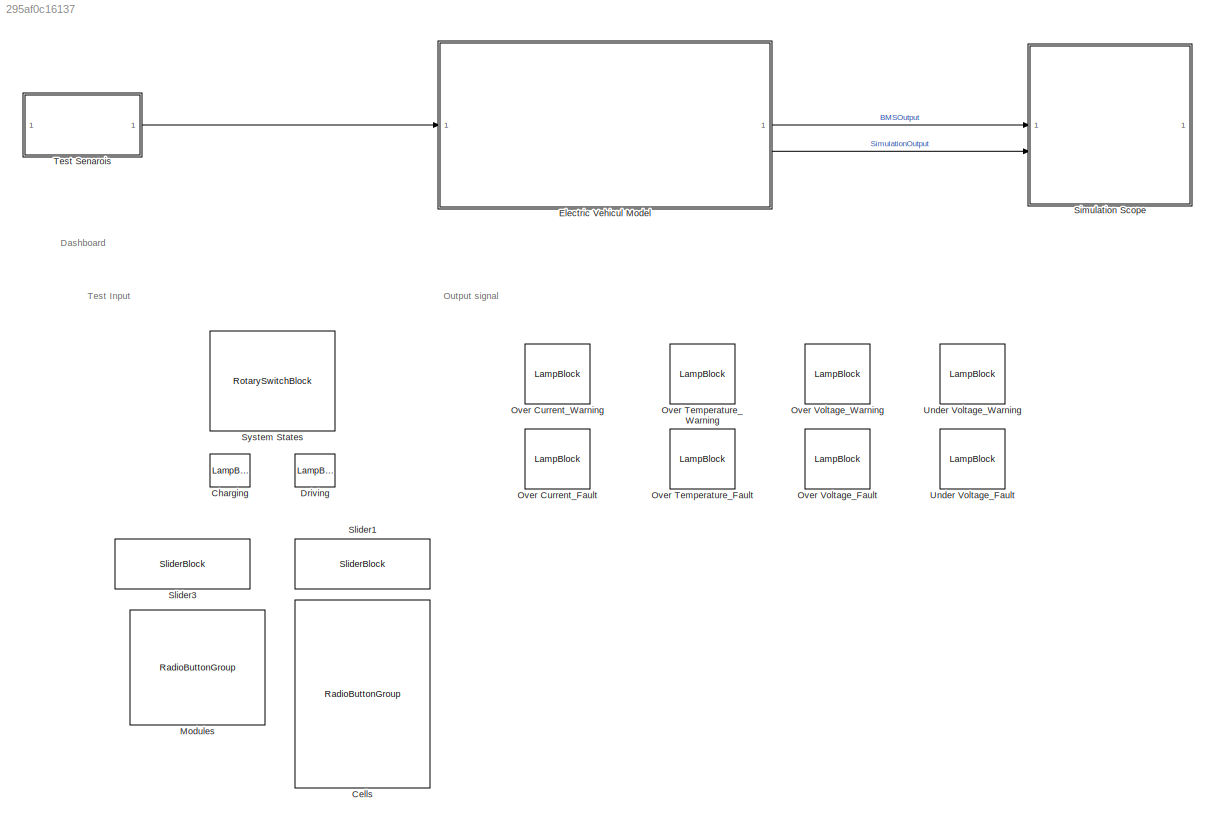
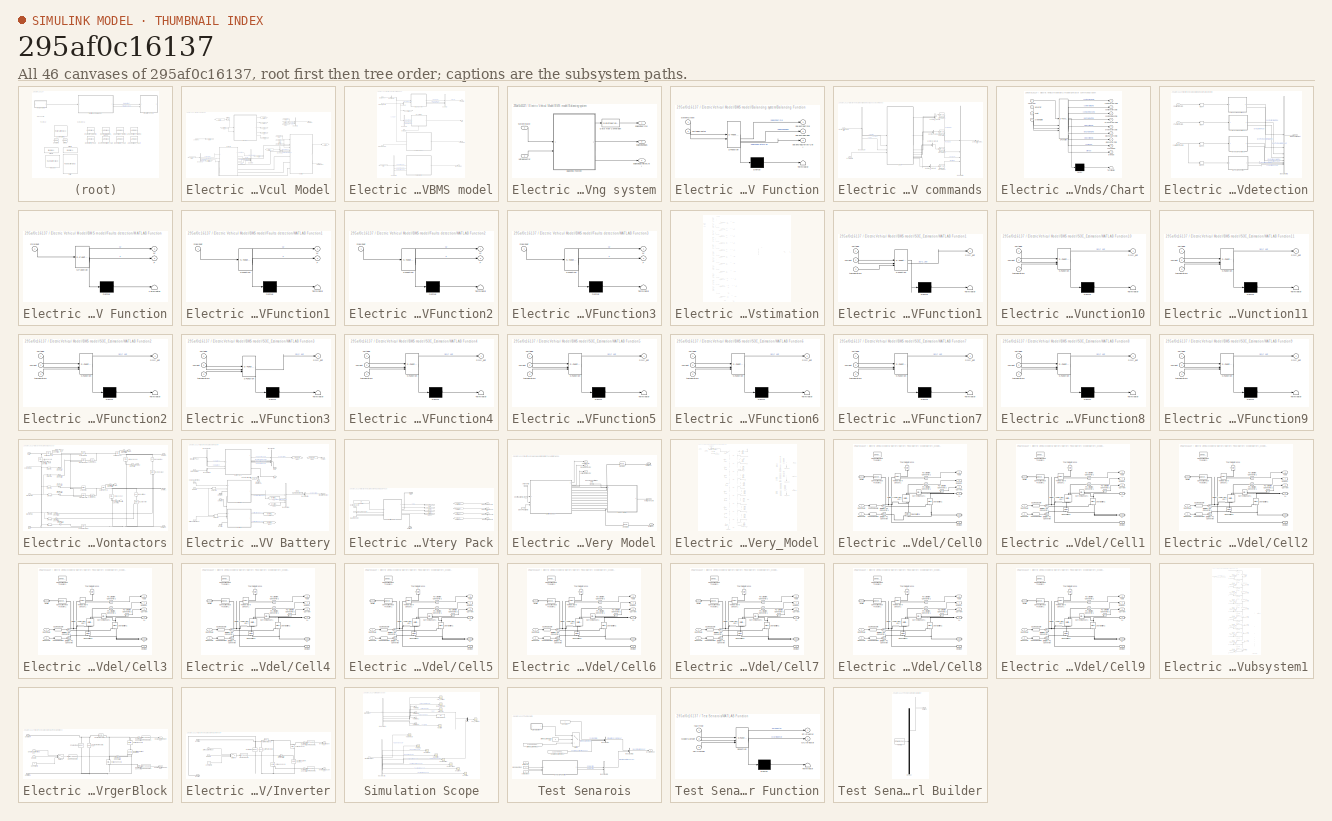
[diagram: thumbnail index - all 46 canvases of the model, root first then tree order]
MODEL slx_295af0c16137
KIND model
CONFIG AbsTol = auto
CONFIG EnableMultiTasking = off
CONFIG FixedStep = auto
CONFIG MaxStep = auto
CONFIG MinStep = auto
CONFIG RelTol = 1e-3
CONFIG SampleTimeConstraint = Unconstrained
CONFIG SolverName = VariableStepAuto
CONFIG StartTime = 0.0
CONFIG StopTime = 120
BLOCK [RadioButtonGroup] Cells
  ButtonGroupName = Cells
  SelectedLabel = Cell3
BLOCK [LampBlock] Charging
  LabelPosition = Hide
BLOCK [LampBlock] Driving
  LabelPosition = Hide
BLOCK [SubSystem] Electric Vehicul Model
BLOCK [SubSystem] Electric Vehicul Model/BMS model
  PortSchema = {"entries":[{"content":{"sides":[{"content":{"connectorIds":["In1","In2","In3"]},"type":"ConnectorPlacement.EquallySpacedRectSide","uuid":"2c589a25-f261-4fce-a2ec-292fd7546e04"},{"content":{"connectorIds":["Out1","Out2","Out3","Out4","In4"],"side":"RIGHT"},"type":"ConnectorPlacement.EquallySpacedRectSide","uuid":"636110e9-c19f-45ef-a995-7063c21b24c5"},{"content":{"side":"TOP"},"type":"ConnectorPla...<+261ch>
BLOCK [Outport] Electric Vehicul Model/BMS model/BMSFaultOutput
  Port = 4
BLOCK [SubSystem] Electric Vehicul Model/BMS model/Balancing system
BLOCK [SubSystem] Electric Vehicul Model/BMS model/Balancing system/Balancing Function
  ErrorFcn = Stateflow.Translate.translate
  MinAlgLoopOccurrences = on
  PermitHierarchicalResolution = ExplicitOnly
  SFBlockType = MATLAB Function
BLOCK [Demux] Electric Vehicul Model/BMS model/Balancing system/Balancing Function/ Demux 
  Outputs = 1
BLOCK [S-Function] Electric Vehicul Model/BMS model/Balancing system/Balancing Function/ SFunction 
  EnableBusSupport = on
  FunctionName = sf_sfun
  PortCounts = [2 4]
  SFcnIsStateOwnerBlock = off
  SFunctionDeploymentMode = off
  Tag = Stateflow S-Function 22
BLOCK [Terminator] Electric Vehicul Model/BMS model/Balancing system/Balancing Function/ Terminator 
BLOCK [Outport] Electric Vehicul Model/BMS model/Balancing system/Balancing Function/balancingCmd
BLOCK [Outport] Electric Vehicul Model/BMS model/Balancing system/Balancing Function/balancingDeltaVCell
  Port = 3
BLOCK [Outport] Electric Vehicul Model/BMS model/Balancing system/Balancing Function/balancingFlags
  Port = 2
BLOCK [Inport] Electric Vehicul Model/BMS model/Balancing system/Balancing Function/systemState
BLOCK [Inport] Electric Vehicul Model/BMS model/Balancing system/Balancing Function/voltageVector
  Port = 2
BLOCK [DataTypeConversion] Electric Vehicul Model/BMS model/Balancing system/Data Type Conversion
  OutDataTypeStr = boolean
  RndMeth = Floor
  SaturateOnIntegerOverflow = off
BLOCK [Inport] Electric Vehicul Model/BMS model/Balancing system/SystemState
BLOCK [Inport] Electric Vehicul Model/BMS model/Balancing system/VoltageVector
  Port = 2
BLOCK [Outport] Electric Vehicul Model/BMS model/Balancing system/balancingCmd
BLOCK [Outport] Electric Vehicul Model/BMS model/Balancing system/balancingDeltaVCell
  Port = 2
BLOCK [Outport] Electric Vehicul Model/BMS model/Balancing system/balancingFlags
  Port = 3
BLOCK [BusCreator] Electric Vehicul Model/BMS model/Bus Creator
  DisplayOption = bar
  InheritFromInputs = on
  Inputs = 3
BLOCK [BusSelector] Electric Vehicul Model/BMS model/Bus Selector
  OutputSignals = ModelVoltageVector
BLOCK [BusSelector] Electric Vehicul Model/BMS model/Bus Selector1
  OutputSignals = SimulationSystemInput.SystemState
BLOCK [BusSelector] Electric Vehicul Model/BMS model/Bus Selector2
  OutputSignals = ModelCurrentVector,ModelTempVector,ModelVoltageVector
BLOCK [BusSelector] Electric Vehicul Model/BMS model/Bus Selector3
  OutputSignals = ModelCurrentVector,ModelTempVector,ModelVoltageVector
BLOCK [SubSystem] Electric Vehicul Model/BMS model/Contactor commands
BLOCK [BusCreator] Electric Vehicul Model/BMS model/Contactor commands/Bus Creator1
  DisplayOption = bar
  InheritFromInputs = on
  Inputs = ContactorCmd,PreChrgCmd,DisChrgCmd,DrivetrainEn
BLOCK [BusSelector] Electric Vehicul Model/BMS model/Contactor commands/Bus Selector
  OutputSignals = VCharger,VInverter,VBatt
BLOCK [SubSystem] Electric Vehicul Model/BMS model/Contactor commands/Chart
  ErrorFcn = Stateflow.Translate.translate
  PermitHierarchicalResolution = ExplicitOnly
  SFBlockType = Chart
  TreatAsAtomicUnit = on
BLOCK [Demux] Electric Vehicul Model/BMS model/Contactor commands/Chart/ Demux 
  Outputs = 1
BLOCK [S-Function] Electric Vehicul Model/BMS model/Contactor commands/Chart/ SFunction 
  EnableBusSupport = on
  FunctionName = sf_sfun
  Parameters = DrivetrainEnDelay,VbattMin,VbattThersholdChrg,VbattThresholdDis
  PortCounts = [4 10]
  SFcnIsStateOwnerBlock = off
  SFunctionDeploymentMode = off
  Tag = Stateflow S-Function 23
BLOCK [Terminator] Electric Vehicul Model/BMS model/Contactor commands/Chart/ Terminator 
BLOCK [Inport] Electric Vehicul Model/BMS model/Contactor commands/Chart/VCharger
BLOCK [Inport] Electric Vehicul Model/BMS model/Contactor commands/Chart/VInverter
  Port = 2
BLOCK [Inport] Electric Vehicul Model/BMS model/Contactor commands/Chart/Vbatt
  Port = 3
BLOCK [Outport] Electric Vehicul Model/BMS model/Contactor commands/Chart/chargeEn
  Port = 8
BLOCK [Outport] Electric Vehicul Model/BMS model/Contactor commands/Chart/contChargerCmd
BLOCK [Outport] Electric Vehicul Model/BMS model/Contactor commands/Chart/contCommonCmd
  Port = 3
BLOCK [Outport] Electric Vehicul Model/BMS model/Contactor commands/Chart/contInverterCmd
  Port = 2
BLOCK [Outport] Electric Vehicul Model/BMS model/Contactor commands/Chart/disChargerCmd
  Port = 6
BLOCK [Outport] Electric Vehicul Model/BMS model/Contactor commands/Chart/disInverterCmd
  Port = 7
BLOCK [Outport] Electric Vehicul Model/BMS model/Contactor commands/Chart/driveEn
  Port = 9
BLOCK [Outport] Electric Vehicul Model/BMS model/Contactor commands/Chart/preChargerCmd
  Port = 4
BLOCK [Outport] Electric Vehicul Model/BMS model/Contactor commands/Chart/preInverterCmd
  Port = 5
BLOCK [Inport] Electric Vehicul Model/BMS model/Contactor commands/Chart/systemState
  Port = 4
BLOCK [Outport] Electric Vehicul Model/BMS model/Contactor commands/ContactorModuleCmd
BLOCK [Inport] Electric Vehicul Model/BMS model/Contactor commands/ContactorModuleData
  Port = 2
BLOCK [DataTypeConversion] Electric Vehicul Model/BMS model/Contactor commands/Data Type Conversion
  OutDataTypeStr = double
  RndMeth = Floor
  SaturateOnIntegerOverflow = off
BLOCK [DataTypeConversion] Electric Vehicul Model/BMS model/Contactor commands/Data Type Conversion1
  OutDataTypeStr = double
  RndMeth = Floor
  SaturateOnIntegerOverflow = off
BLOCK [DataTypeConversion] Electric Vehicul Model/BMS model/Contactor commands/Data Type Conversion2
  OutDataTypeStr = double
  RndMeth = Floor
  SaturateOnIntegerOverflow = off
BLOCK [DataTypeConversion] Electric Vehicul Model/BMS model/Contactor commands/Data Type Conversion3
  OutDataTypeStr = double
  RndMeth = Floor
  SaturateOnIntegerOverflow = off
BLOCK [Inport] Electric Vehicul Model/BMS model/Contactor commands/SystemState
BLOCK [Concatenate] Electric Vehicul Model/BMS model/Contactor commands/Vector Concatenate
BLOCK [Concatenate] Electric Vehicul Model/BMS model/Contactor commands/Vector Concatenate1
  NumInputs = 3
BLOCK [Concatenate] Electric Vehicul Model/BMS model/Contactor commands/Vector Concatenate2
BLOCK [Concatenate] Electric Vehicul Model/BMS model/Contactor commands/Vector Concatenate3
BLOCK [Inport] Electric Vehicul Model/BMS model/DataFromContactor
  Port = 4
BLOCK [Inport] Electric Vehicul Model/BMS model/DataFromHVBattery
BLOCK [SubSystem] Electric Vehicul Model/BMS model/Faults detection
BLOCK [Inport] Electric Vehicul Model/BMS model/Faults detection/<CurrentVector>
BLOCK [Inport] Electric Vehicul Model/BMS model/Faults detection/<TempVector>
  Port = 2
BLOCK [Inport] Electric Vehicul Model/BMS model/Faults detection/<VoltageVector>
  Port = 3
BLOCK [Outport] Electric Vehicul Model/BMS model/Faults detection/BMSFaultOutput
BLOCK [BusCreator] Electric Vehicul Model/BMS model/Faults detection/Bus Creator2
  DisplayOption = bar
  InheritFromInputs = on
  Inputs = 8
BLOCK [SubSystem] Electric Vehicul Model/BMS model/Faults detection/MATLAB Function
  ErrorFcn = Stateflow.Translate.translate
  PermitHierarchicalResolution = ExplicitOnly
  SFBlockType = MATLAB Function
  TreatAsAtomicUnit = on
BLOCK [Demux] Electric Vehicul Model/BMS model/Faults detection/MATLAB Function/ Demux 
  Outputs = 1
BLOCK [S-Function] Electric Vehicul Model/BMS model/Faults detection/MATLAB Function/ SFunction 
  EnableBusSupport = on
  FunctionName = sf_sfun
  Parameters = CellVoltageLimitLow_Fault,CellVoltageLimitLow_Warning
  PortCounts = [1 3]
  SFcnIsStateOwnerBlock = off
  SFunctionDeploymentMode = off
  Tag = Stateflow S-Function 17
BLOCK [Terminator] Electric Vehicul Model/BMS model/Faults detection/MATLAB Function/ Terminator 
BLOCK [Outport] Electric Vehicul Model/BMS model/Faults detection/MATLAB Function/F
  Port = 2
BLOCK [Outport] Electric Vehicul Model/BMS model/Faults detection/MATLAB Function/W
BLOCK [Inport] Electric Vehicul Model/BMS model/Faults detection/MATLAB Function/minInput
BLOCK [SubSystem] Electric Vehicul Model/BMS model/Faults detection/MATLAB Function1
  ErrorFcn = Stateflow.Translate.translate
  PermitHierarchicalResolution = ExplicitOnly
  SFBlockType = MATLAB Function
  TreatAsAtomicUnit = on
BLOCK [Demux] Electric Vehicul Model/BMS model/Faults detection/MATLAB Function1/ Demux 
  Outputs = 1
BLOCK [S-Function] Electric Vehicul Model/BMS model/Faults detection/MATLAB Function1/ SFunction 
  EnableBusSupport = on
  FunctionName = sf_sfun
  Parameters = CellVoltageLimitHigh_Fault,CellVoltageLimitHigh_Warning
  PortCounts = [1 3]
  SFcnIsStateOwnerBlock = off
  SFunctionDeploymentMode = off
  Tag = Stateflow S-Function 18
BLOCK [Terminator] Electric Vehicul Model/BMS model/Faults detection/MATLAB Function1/ Terminator 
BLOCK [Outport] Electric Vehicul Model/BMS model/Faults detection/MATLAB Function1/F
  Port = 2
BLOCK [Outport] Electric Vehicul Model/BMS model/Faults detection/MATLAB Function1/W
BLOCK [Inport] Electric Vehicul Model/BMS model/Faults detection/MATLAB Function1/maxInput
BLOCK [SubSystem] Electric Vehicul Model/BMS model/Faults detection/MATLAB Function2
  ErrorFcn = Stateflow.Translate.translate
  PermitHierarchicalResolution = ExplicitOnly
  SFBlockType = MATLAB Function
  TreatAsAtomicUnit = on
BLOCK [Demux] Electric Vehicul Model/BMS model/Faults detection/MATLAB Function2/ Demux 
  Outputs = 1
BLOCK [S-Function] Electric Vehicul Model/BMS model/Faults detection/MATLAB Function2/ SFunction 
  EnableBusSupport = on
  FunctionName = sf_sfun
  Parameters = CellTemperatureLimitThreshold_Fault,CellTemperatureLimitThreshold_Warning
  PortCounts = [1 3]
  SFcnIsStateOwnerBlock = off
  SFunctionDeploymentMode = off
  Tag = Stateflow S-Function 19
BLOCK [Terminator] Electric Vehicul Model/BMS model/Faults detection/MATLAB Function2/ Terminator 
BLOCK [Outport] Electric Vehicul Model/BMS model/Faults detection/MATLAB Function2/F
  Port = 2
BLOCK [Outport] Electric Vehicul Model/BMS model/Faults detection/MATLAB Function2/W
BLOCK [Inport] Electric Vehicul Model/BMS model/Faults detection/MATLAB Function2/maxInput
BLOCK [SubSystem] Electric Vehicul Model/BMS model/Faults detection/MATLAB Function3
  ErrorFcn = Stateflow.Translate.translate
  PermitHierarchicalResolution = ExplicitOnly
  SFBlockType = MATLAB Function
  TreatAsAtomicUnit = on
BLOCK [Demux] Electric Vehicul Model/BMS model/Faults detection/MATLAB Function3/ Demux 
  Outputs = 1
BLOCK [S-Function] Electric Vehicul Model/BMS model/Faults detection/MATLAB Function3/ SFunction 
  EnableBusSupport = on
  FunctionName = sf_sfun
  Parameters = CellCurrentLimitThreshold_Fault,CellCurrentLimitThreshold_Warning
  PortCounts = [1 3]
  SFcnIsStateOwnerBlock = off
  SFunctionDeploymentMode = off
  Tag = Stateflow S-Function 20
BLOCK [Terminator] Electric Vehicul Model/BMS model/Faults detection/MATLAB Function3/ Terminator 
BLOCK [Outport] Electric Vehicul Model/BMS model/Faults detection/MATLAB Function3/F
  Port = 2
BLOCK [Outport] Electric Vehicul Model/BMS model/Faults detection/MATLAB Function3/W
BLOCK [Inport] Electric Vehicul Model/BMS model/Faults detection/MATLAB Function3/maxInput
BLOCK [MinMax] Electric Vehicul Model/BMS model/Faults detection/Max10
  Function = max
BLOCK [MinMax] Electric Vehicul Model/BMS model/Faults detection/Max13
BLOCK [MinMax] Electric Vehicul Model/BMS model/Faults detection/Max4
  Function = max
BLOCK [MinMax] Electric Vehicul Model/BMS model/Faults detection/Max7
  Function = max
BLOCK [From] Electric Vehicul Model/BMS model/From
  GotoTag = ToFaul
BLOCK [Goto] Electric Vehicul Model/BMS model/Goto
  GotoTag = ToFaul
BLOCK [Inport] Electric Vehicul Model/BMS model/RealSOC10
  Port = 3
BLOCK [Outport] Electric Vehicul Model/BMS model/SOC
  Port = 3
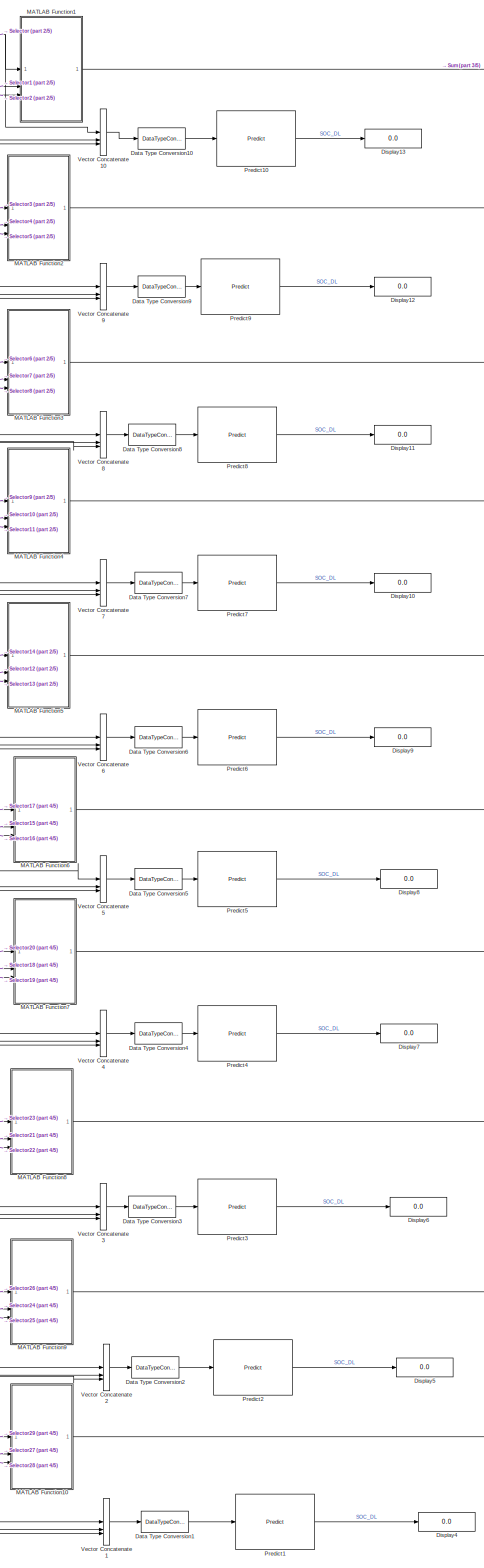
[diagram: Electric Vehicul Model/BMS model/SOC_Estimation - part 1/5, left side, full height]
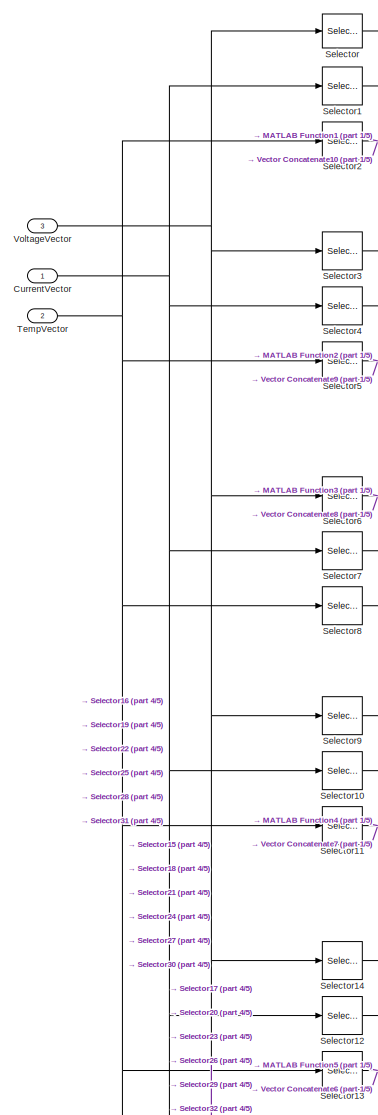
[diagram: Electric Vehicul Model/BMS model/SOC_Estimation - part 2/5, top left region]
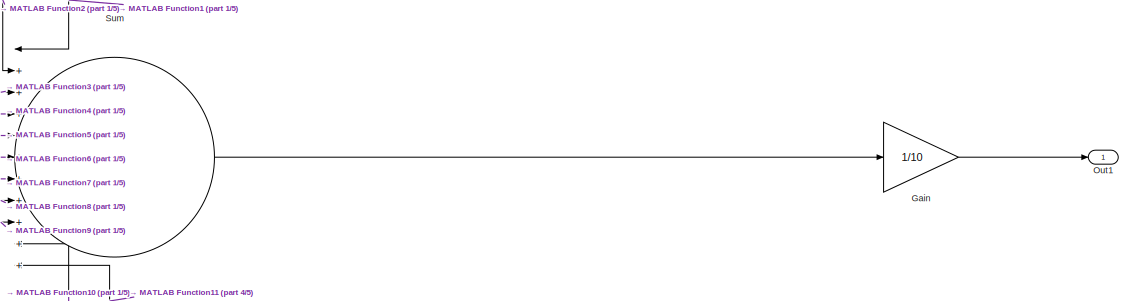
[diagram: Electric Vehicul Model/BMS model/SOC_Estimation - part 3/5, middle right region]
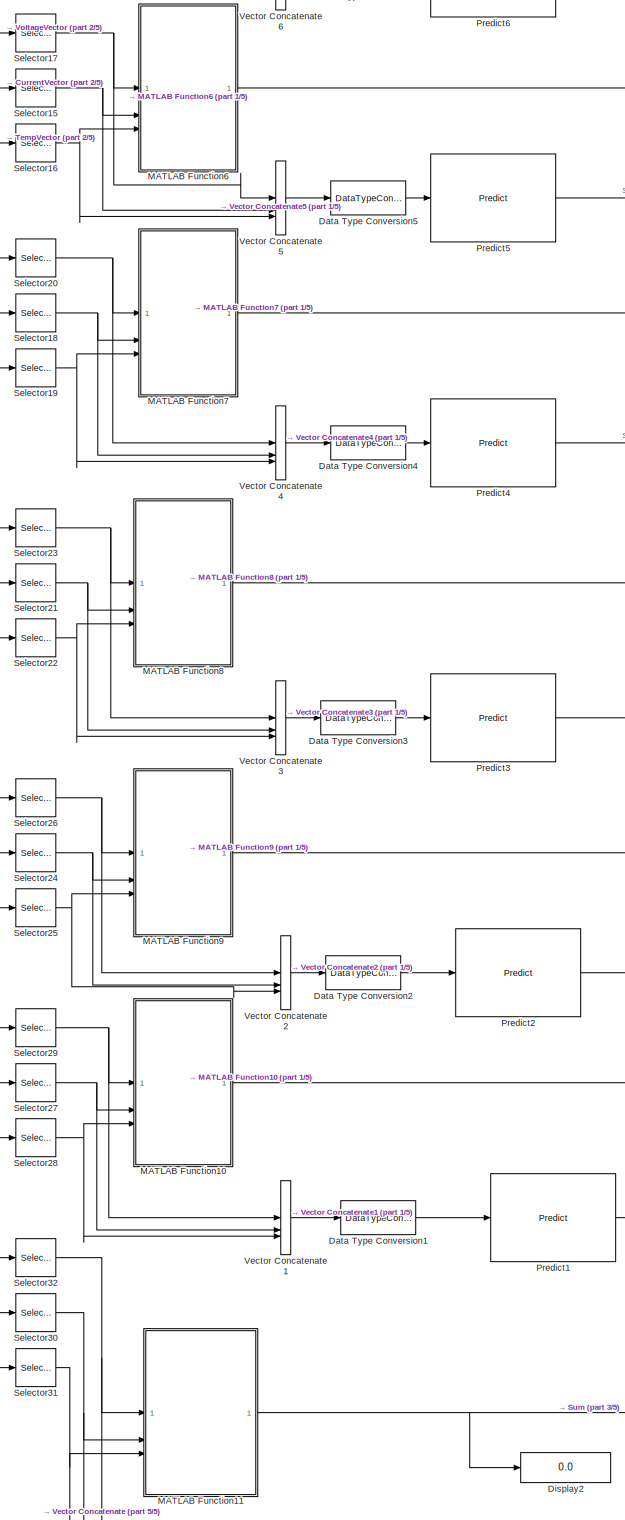
[diagram: Electric Vehicul Model/BMS model/SOC_Estimation - part 4/5, middle left region]
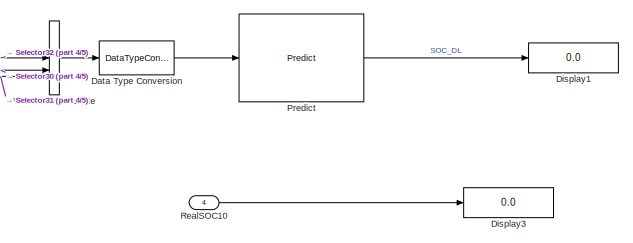
[diagram: Electric Vehicul Model/BMS model/SOC_Estimation - part 5/5, bottom left region]
BLOCK [SubSystem] Electric Vehicul Model/BMS model/SOC_Estimation
  PortSchema = {"entries":[{"content":{"sides":[{"content":{"connectorIds":["In1","In2","In3"]},"type":"ConnectorPlacement.EquallySpacedRectSide","uuid":"876fcd95-3065-43cb-b3a9-db79c29902f5"},{"content":{"connectorIds":["Out1"],"side":"RIGHT"},"type":"ConnectorPlacement.EquallySpacedRectSide","uuid":"b84fbb32-82b4-42f9-ac0b-0590da1d8a8e"},{"content":{"side":"TOP"},"type":"ConnectorPlacement.EquallySpacedRectSid...<+383ch>
BLOCK [Inport] Electric Vehicul Model/BMS model/SOC_Estimation/CurrentVector
BLOCK [DataTypeConversion] Electric Vehicul Model/BMS model/SOC_Estimation/Data Type Conversion
  OutDataTypeStr = double
  RndMeth = Floor
  SaturateOnIntegerOverflow = off
BLOCK [DataTypeConversion] Electric Vehicul Model/BMS model/SOC_Estimation/Data Type Conversion1
  OutDataTypeStr = double
  RndMeth = Floor
  SaturateOnIntegerOverflow = off
BLOCK [DataTypeConversion] Electric Vehicul Model/BMS model/SOC_Estimation/Data Type Conversion10
  OutDataTypeStr = double
  RndMeth = Floor
  SaturateOnIntegerOverflow = off
BLOCK [DataTypeConversion] Electric Vehicul Model/BMS model/SOC_Estimation/Data Type Conversion2
  OutDataTypeStr = double
  RndMeth = Floor
  SaturateOnIntegerOverflow = off
BLOCK [DataTypeConversion] Electric Vehicul Model/BMS model/SOC_Estimation/Data Type Conversion3
  OutDataTypeStr = double
  RndMeth = Floor
  SaturateOnIntegerOverflow = off
BLOCK [DataTypeConversion] Electric Vehicul Model/BMS model/SOC_Estimation/Data Type Conversion4
  OutDataTypeStr = double
  RndMeth = Floor
  SaturateOnIntegerOverflow = off
BLOCK [DataTypeConversion] Electric Vehicul Model/BMS model/SOC_Estimation/Data Type Conversion5
  OutDataTypeStr = double
  RndMeth = Floor
  SaturateOnIntegerOverflow = off
BLOCK [DataTypeConversion] Electric Vehicul Model/BMS model/SOC_Estimation/Data Type Conversion6
  OutDataTypeStr = double
  RndMeth = Floor
  SaturateOnIntegerOverflow = off
BLOCK [DataTypeConversion] Electric Vehicul Model/BMS model/SOC_Estimation/Data Type Conversion7
  OutDataTypeStr = double
  RndMeth = Floor
  SaturateOnIntegerOverflow = off
BLOCK [DataTypeConversion] Electric Vehicul Model/BMS model/SOC_Estimation/Data Type Conversion8
  OutDataTypeStr = double
  RndMeth = Floor
  SaturateOnIntegerOverflow = off
BLOCK [DataTypeConversion] Electric Vehicul Model/BMS model/SOC_Estimation/Data Type Conversion9
  OutDataTypeStr = double
  RndMeth = Floor
  SaturateOnIntegerOverflow = off
BLOCK [Display] Electric Vehicul Model/BMS model/SOC_Estimation/Display1
  Decimation = 1
BLOCK [Display] Electric Vehicul Model/BMS model/SOC_Estimation/Display10
  Decimation = 1
BLOCK [Display] Electric Vehicul Model/BMS model/SOC_Estimation/Display11
  Decimation = 1
BLOCK [Display] Electric Vehicul Model/BMS model/SOC_Estimation/Display12
  Decimation = 1
BLOCK [Display] Electric Vehicul Model/BMS model/SOC_Estimation/Display13
  Decimation = 1
BLOCK [Display] Electric Vehicul Model/BMS model/SOC_Estimation/Display2
  Decimation = 1
BLOCK [Display] Electric Vehicul Model/BMS model/SOC_Estimation/Display3
  Decimation = 1
BLOCK [Display] Electric Vehicul Model/BMS model/SOC_Estimation/Display4
  Decimation = 1
BLOCK [Display] Electric Vehicul Model/BMS model/SOC_Estimation/Display5
  Decimation = 1
BLOCK [Display] Electric Vehicul Model/BMS model/SOC_Estimation/Display6
  Decimation = 1
BLOCK [Display] Electric Vehicul Model/BMS model/SOC_Estimation/Display7
  Decimation = 1
BLOCK [Display] Electric Vehicul Model/BMS model/SOC_Estimation/Display8
  Decimation = 1
BLOCK [Display] Electric Vehicul Model/BMS model/SOC_Estimation/Display9
  Decimation = 1
BLOCK [Gain] Electric Vehicul Model/BMS model/SOC_Estimation/Gain
  Gain = 1/10
BLOCK [SubSystem] Electric Vehicul Model/BMS model/SOC_Estimation/MATLAB Function1
  ErrorFcn = Stateflow.Translate.translate
  PermitHierarchicalResolution = ExplicitOnly
  SFBlockType = MATLAB Function
  TreatAsAtomicUnit = on
BLOCK [Demux] Electric Vehicul Model/BMS model/SOC_Estimation/MATLAB Function1/ Demux 
  Outputs = 1
BLOCK [S-Function] Electric Vehicul Model/BMS model/SOC_Estimation/MATLAB Function1/ SFunction 
  EnableBusSupport = on
  FunctionName = sf_sfun
  PortCounts = [3 2]
  SFcnIsStateOwnerBlock = off
  SFunctionDeploymentMode = off
  Tag = Stateflow S-Function 29
BLOCK [Terminator] Electric Vehicul Model/BMS model/SOC_Estimation/MATLAB Function1/ Terminator 
BLOCK [Outport] Electric Vehicul Model/BMS model/SOC_Estimation/MATLAB Function1/SOC_est
BLOCK [Inport] Electric Vehicul Model/BMS model/SOC_Estimation/MATLAB Function1/current
  Port = 2
BLOCK [Inport] Electric Vehicul Model/BMS model/SOC_Estimation/MATLAB Function1/temperature
  Port = 3
BLOCK [Inport] Electric Vehicul Model/BMS model/SOC_Estimation/MATLAB Function1/voltage
BLOCK [SubSystem] Electric Vehicul Model/BMS model/SOC_Estimation/MATLAB Function10
  ErrorFcn = Stateflow.Translate.translate
  PermitHierarchicalResolution = ExplicitOnly
  SFBlockType = MATLAB Function
  TreatAsAtomicUnit = on
BLOCK [Demux] Electric Vehicul Model/BMS model/SOC_Estimation/MATLAB Function10/ Demux 
  Outputs = 1
BLOCK [S-Function] Electric Vehicul Model/BMS model/SOC_Estimation/MATLAB Function10/ SFunction 
  EnableBusSupport = on
  FunctionName = sf_sfun
  PortCounts = [3 2]
  SFcnIsStateOwnerBlock = off
  SFunctionDeploymentMode = off
  Tag = Stateflow S-Function 30
BLOCK [Terminator] Electric Vehicul Model/BMS model/SOC_Estimation/MATLAB Function10/ Terminator 
BLOCK [Outport] Electric Vehicul Model/BMS model/SOC_Estimation/MATLAB Function10/SOC_est
BLOCK [Inport] Electric Vehicul Model/BMS model/SOC_Estimation/MATLAB Function10/current
  Port = 2
BLOCK [Inport] Electric Vehicul Model/BMS model/SOC_Estimation/MATLAB Function10/temperature
  Port = 3
BLOCK [Inport] Electric Vehicul Model/BMS model/SOC_Estimation/MATLAB Function10/voltage
BLOCK [SubSystem] Electric Vehicul Model/BMS model/SOC_Estimation/MATLAB Function11
  ErrorFcn = Stateflow.Translate.translate
  PermitHierarchicalResolution = ExplicitOnly
  SFBlockType = MATLAB Function
  TreatAsAtomicUnit = on
BLOCK [Demux] Electric Vehicul Model/BMS model/SOC_Estimation/MATLAB Function11/ Demux 
  Outputs = 1
BLOCK [S-Function] Electric Vehicul Model/BMS model/SOC_Estimation/MATLAB Function11/ SFunction 
  EnableBusSupport = on
  FunctionName = sf_sfun
  PortCounts = [3 2]
  SFcnIsStateOwnerBlock = off
  SFunctionDeploymentMode = off
  Tag = Stateflow S-Function 31
BLOCK [Terminator] Electric Vehicul Model/BMS model/SOC_Estimation/MATLAB Function11/ Terminator 
BLOCK [Outport] Electric Vehicul Model/BMS model/SOC_Estimation/MATLAB Function11/SOC_est
BLOCK [Inport] Electric Vehicul Model/BMS model/SOC_Estimation/MATLAB Function11/current
  Port = 2
BLOCK [Inport] Electric Vehicul Model/BMS model/SOC_Estimation/MATLAB Function11/temperature
  Port = 3
BLOCK [Inport] Electric Vehicul Model/BMS model/SOC_Estimation/MATLAB Function11/voltage
BLOCK [SubSystem] Electric Vehicul Model/BMS model/SOC_Estimation/MATLAB Function2
  ErrorFcn = Stateflow.Translate.translate
  PermitHierarchicalResolution = ExplicitOnly
  SFBlockType = MATLAB Function
  TreatAsAtomicUnit = on
BLOCK [Demux] Electric Vehicul Model/BMS model/SOC_Estimation/MATLAB Function2/ Demux 
  Outputs = 1
BLOCK [S-Function] Electric Vehicul Model/BMS model/SOC_Estimation/MATLAB Function2/ SFunction 
  EnableBusSupport = on
  FunctionName = sf_sfun
  PortCounts = [3 2]
  SFcnIsStateOwnerBlock = off
  SFunctionDeploymentMode = off
  Tag = Stateflow S-Function 32
BLOCK [Terminator] Electric Vehicul Model/BMS model/SOC_Estimation/MATLAB Function2/ Terminator 
BLOCK [Outport] Electric Vehicul Model/BMS model/SOC_Estimation/MATLAB Function2/SOC_est
BLOCK [Inport] Electric Vehicul Model/BMS model/SOC_Estimation/MATLAB Function2/current
  Port = 2
BLOCK [Inport] Electric Vehicul Model/BMS model/SOC_Estimation/MATLAB Function2/temperature
  Port = 3
BLOCK [Inport] Electric Vehicul Model/BMS model/SOC_Estimation/MATLAB Function2/voltage
BLOCK [SubSystem] Electric Vehicul Model/BMS model/SOC_Estimation/MATLAB Function3
  ErrorFcn = Stateflow.Translate.translate
  PermitHierarchicalResolution = ExplicitOnly
  SFBlockType = MATLAB Function
  TreatAsAtomicUnit = on
BLOCK [Demux] Electric Vehicul Model/BMS model/SOC_Estimation/MATLAB Function3/ Demux 
  Outputs = 1
BLOCK [S-Function] Electric Vehicul Model/BMS model/SOC_Estimation/MATLAB Function3/ SFunction 
  EnableBusSupport = on
  FunctionName = sf_sfun
  PortCounts = [3 2]
  SFcnIsStateOwnerBlock = off
  SFunctionDeploymentMode = off
  Tag = Stateflow S-Function 33
BLOCK [Terminator] Electric Vehicul Model/BMS model/SOC_Estimation/MATLAB Function3/ Terminator 
BLOCK [Outport] Electric Vehicul Model/BMS model/SOC_Estimation/MATLAB Function3/SOC_est
BLOCK [Inport] Electric Vehicul Model/BMS model/SOC_Estimation/MATLAB Function3/current
  Port = 2
BLOCK [Inport] Electric Vehicul Model/BMS model/SOC_Estimation/MATLAB Function3/temperature
  Port = 3
BLOCK [Inport] Electric Vehicul Model/BMS model/SOC_Estimation/MATLAB Function3/voltage
BLOCK [SubSystem] Electric Vehicul Model/BMS model/SOC_Estimation/MATLAB Function4
  ErrorFcn = Stateflow.Translate.translate
  PermitHierarchicalResolution = ExplicitOnly
  SFBlockType = MATLAB Function
  TreatAsAtomicUnit = on
BLOCK [Demux] Electric Vehicul Model/BMS model/SOC_Estimation/MATLAB Function4/ Demux 
  Outputs = 1
BLOCK [S-Function] Electric Vehicul Model/BMS model/SOC_Estimation/MATLAB Function4/ SFunction 
  EnableBusSupport = on
  FunctionName = sf_sfun
  PortCounts = [3 2]
  SFcnIsStateOwnerBlock = off
  SFunctionDeploymentMode = off
  Tag = Stateflow S-Function 34
BLOCK [Terminator] Electric Vehicul Model/BMS model/SOC_Estimation/MATLAB Function4/ Terminator 
BLOCK [Outport] Electric Vehicul Model/BMS model/SOC_Estimation/MATLAB Function4/SOC_est
BLOCK [Inport] Electric Vehicul Model/BMS model/SOC_Estimation/MATLAB Function4/current
  Port = 2
BLOCK [Inport] Electric Vehicul Model/BMS model/SOC_Estimation/MATLAB Function4/temperature
  Port = 3
BLOCK [Inport] Electric Vehicul Model/BMS model/SOC_Estimation/MATLAB Function4/voltage
BLOCK [SubSystem] Electric Vehicul Model/BMS model/SOC_Estimation/MATLAB Function5
  ErrorFcn = Stateflow.Translate.translate
  PermitHierarchicalResolution = ExplicitOnly
  SFBlockType = MATLAB Function
  TreatAsAtomicUnit = on
BLOCK [Demux] Electric Vehicul Model/BMS model/SOC_Estimation/MATLAB Function5/ Demux 
  Outputs = 1
BLOCK [S-Function] Electric Vehicul Model/BMS model/SOC_Estimation/MATLAB Function5/ SFunction 
  EnableBusSupport = on
  FunctionName = sf_sfun
  PortCounts = [3 2]
  SFcnIsStateOwnerBlock = off
  SFunctionDeploymentMode = off
  Tag = Stateflow S-Function 35
BLOCK [Terminator] Electric Vehicul Model/BMS model/SOC_Estimation/MATLAB Function5/ Terminator 
BLOCK [Outport] Electric Vehicul Model/BMS model/SOC_Estimation/MATLAB Function5/SOC_est
BLOCK [Inport] Electric Vehicul Model/BMS model/SOC_Estimation/MATLAB Function5/current
  Port = 2
BLOCK [Inport] Electric Vehicul Model/BMS model/SOC_Estimation/MATLAB Function5/temperature
  Port = 3
BLOCK [Inport] Electric Vehicul Model/BMS model/SOC_Estimation/MATLAB Function5/voltage
BLOCK [SubSystem] Electric Vehicul Model/BMS model/SOC_Estimation/MATLAB Function6
  ErrorFcn = Stateflow.Translate.translate
  PermitHierarchicalResolution = ExplicitOnly
  SFBlockType = MATLAB Function
  TreatAsAtomicUnit = on
BLOCK [Demux] Electric Vehicul Model/BMS model/SOC_Estimation/MATLAB Function6/ Demux 
  Outputs = 1
BLOCK [S-Function] Electric Vehicul Model/BMS model/SOC_Estimation/MATLAB Function6/ SFunction 
  EnableBusSupport = on
  FunctionName = sf_sfun
  PortCounts = [3 2]
  SFcnIsStateOwnerBlock = off
  SFunctionDeploymentMode = off
  Tag = Stateflow S-Function 36
BLOCK [Terminator] Electric Vehicul Model/BMS model/SOC_Estimation/MATLAB Function6/ Terminator 
BLOCK [Outport] Electric Vehicul Model/BMS model/SOC_Estimation/MATLAB Function6/SOC_est
BLOCK [Inport] Electric Vehicul Model/BMS model/SOC_Estimation/MATLAB Function6/current
  Port = 2
BLOCK [Inport] Electric Vehicul Model/BMS model/SOC_Estimation/MATLAB Function6/temperature
  Port = 3
BLOCK [Inport] Electric Vehicul Model/BMS model/SOC_Estimation/MATLAB Function6/voltage
BLOCK [SubSystem] Electric Vehicul Model/BMS model/SOC_Estimation/MATLAB Function7
  ErrorFcn = Stateflow.Translate.translate
  PermitHierarchicalResolution = ExplicitOnly
  SFBlockType = MATLAB Function
  TreatAsAtomicUnit = on
BLOCK [Demux] Electric Vehicul Model/BMS model/SOC_Estimation/MATLAB Function7/ Demux 
  Outputs = 1
BLOCK [S-Function] Electric Vehicul Model/BMS model/SOC_Estimation/MATLAB Function7/ SFunction 
  EnableBusSupport = on
  FunctionName = sf_sfun
  PortCounts = [3 2]
  SFcnIsStateOwnerBlock = off
  SFunctionDeploymentMode = off
  Tag = Stateflow S-Function 37
BLOCK [Terminator] Electric Vehicul Model/BMS model/SOC_Estimation/MATLAB Function7/ Terminator 
BLOCK [Outport] Electric Vehicul Model/BMS model/SOC_Estimation/MATLAB Function7/SOC_est
BLOCK [Inport] Electric Vehicul Model/BMS model/SOC_Estimation/MATLAB Function7/current
  Port = 2
BLOCK [Inport] Electric Vehicul Model/BMS model/SOC_Estimation/MATLAB Function7/temperature
  Port = 3
BLOCK [Inport] Electric Vehicul Model/BMS model/SOC_Estimation/MATLAB Function7/voltage
BLOCK [SubSystem] Electric Vehicul Model/BMS model/SOC_Estimation/MATLAB Function8
  ErrorFcn = Stateflow.Translate.translate
  PermitHierarchicalResolution = ExplicitOnly
  SFBlockType = MATLAB Function
  TreatAsAtomicUnit = on
BLOCK [Demux] Electric Vehicul Model/BMS model/SOC_Estimation/MATLAB Function8/ Demux 
  Outputs = 1
BLOCK [S-Function] Electric Vehicul Model/BMS model/SOC_Estimation/MATLAB Function8/ SFunction 
  EnableBusSupport = on
  FunctionName = sf_sfun
  PortCounts = [3 2]
  SFcnIsStateOwnerBlock = off
  SFunctionDeploymentMode = off
  Tag = Stateflow S-Function 38
BLOCK [Terminator] Electric Vehicul Model/BMS model/SOC_Estimation/MATLAB Function8/ Terminator 
BLOCK [Outport] Electric Vehicul Model/BMS model/SOC_Estimation/MATLAB Function8/SOC_est
BLOCK [Inport] Electric Vehicul Model/BMS model/SOC_Estimation/MATLAB Function8/current
  Port = 2
BLOCK [Inport] Electric Vehicul Model/BMS model/SOC_Estimation/MATLAB Function8/temperature
  Port = 3
BLOCK [Inport] Electric Vehicul Model/BMS model/SOC_Estimation/MATLAB Function8/voltage
BLOCK [SubSystem] Electric Vehicul Model/BMS model/SOC_Estimation/MATLAB Function9
  ErrorFcn = Stateflow.Translate.translate
  PermitHierarchicalResolution = ExplicitOnly
  SFBlockType = MATLAB Function
  TreatAsAtomicUnit = on
BLOCK [Demux] Electric Vehicul Model/BMS model/SOC_Estimation/MATLAB Function9/ Demux 
  Outputs = 1
BLOCK [S-Function] Electric Vehicul Model/BMS model/SOC_Estimation/MATLAB Function9/ SFunction 
  EnableBusSupport = on
  FunctionName = sf_sfun
  PortCounts = [3 2]
  SFcnIsStateOwnerBlock = off
  SFunctionDeploymentMode = off
  Tag = Stateflow S-Function 39
BLOCK [Terminator] Electric Vehicul Model/BMS model/SOC_Estimation/MATLAB Function9/ Terminator 
BLOCK [Outport] Electric Vehicul Model/BMS model/SOC_Estimation/MATLAB Function9/SOC_est
BLOCK [Inport] Electric Vehicul Model/BMS model/SOC_Estimation/MATLAB Function9/current
  Port = 2
BLOCK [Inport] Electric Vehicul Model/BMS model/SOC_Estimation/MATLAB Function9/temperature
  Port = 3
BLOCK [Inport] Electric Vehicul Model/BMS model/SOC_Estimation/MATLAB Function9/voltage
BLOCK [Outport] Electric Vehicul Model/BMS model/SOC_Estimation/Out1
BLOCK [Reference] Electric Vehicul Model/BMS model/SOC_Estimation/Predict  REF=deeplib/Predict
  SourceBlock = deeplib/Predict
  SourceType = Predict
BLOCK [Reference] Electric Vehicul Model/BMS model/SOC_Estimation/Predict1  REF=deeplib/Predict
  SourceBlock = deeplib/Predict
  SourceType = Predict
BLOCK [Reference] Electric Vehicul Model/BMS model/SOC_Estimation/Predict10  REF=deeplib/Predict
  SourceBlock = deeplib/Predict
  SourceType = Predict
BLOCK [Reference] Electric Vehicul Model/BMS model/SOC_Estimation/Predict2  REF=deeplib/Predict
  SourceBlock = deeplib/Predict
  SourceType = Predict
BLOCK [Reference] Electric Vehicul Model/BMS model/SOC_Estimation/Predict3  REF=deeplib/Predict
  SourceBlock = deeplib/Predict
  SourceType = Predict
BLOCK [Reference] Electric Vehicul Model/BMS model/SOC_Estimation/Predict4  REF=deeplib/Predict
  SourceBlock = deeplib/Predict
  SourceType = Predict
BLOCK [Reference] Electric Vehicul Model/BMS model/SOC_Estimation/Predict5  REF=deeplib/Predict
  SourceBlock = deeplib/Predict
  SourceType = Predict
BLOCK [Reference] Electric Vehicul Model/BMS model/SOC_Estimation/Predict6  REF=deeplib/Predict
  SourceBlock = deeplib/Predict
  SourceType = Predict
BLOCK [Reference] Electric Vehicul Model/BMS model/SOC_Estimation/Predict7  REF=deeplib/Predict
  SourceBlock = deeplib/Predict
  SourceType = Predict
BLOCK [Reference] Electric Vehicul Model/BMS model/SOC_Estimation/Predict8  REF=deeplib/Predict
  SourceBlock = deeplib/Predict
  SourceType = Predict
BLOCK [Reference] Electric Vehicul Model/BMS model/SOC_Estimation/Predict9  REF=deeplib/Predict
  SourceBlock = deeplib/Predict
  SourceType = Predict
BLOCK [Inport] Electric Vehicul Model/BMS model/SOC_Estimation/RealSOC10
  Port = 4
BLOCK [Selector] Electric Vehicul Model/BMS model/SOC_Estimation/Selector
  IndexOptions = Index vector (dialog)
  Indices = 1
  InputPortWidth = 10
  OutputSizes = 1
  RuntimeRangeChecks = on
BLOCK [Selector] Electric Vehicul Model/BMS model/SOC_Estimation/Selector1
  IndexOptions = Index vector (dialog)
  Indices = 1
  InputPortWidth = 10
  OutputSizes = 1
  RuntimeRangeChecks = on
BLOCK [Selector] Electric Vehicul Model/BMS model/SOC_Estimation/Selector10
  IndexOptions = Index vector (dialog)
  Indices = 3
  InputPortWidth = 10
  OutputSizes = 1
  RuntimeRangeChecks = on
BLOCK [Selector] Electric Vehicul Model/BMS model/SOC_Estimation/Selector11
  IndexOptions = Index vector (dialog)
  Indices = 3
  InputPortWidth = 10
  OutputSizes = 1
  RuntimeRangeChecks = on
BLOCK [Selector] Electric Vehicul Model/BMS model/SOC_Estimation/Selector12
  IndexOptions = Index vector (dialog)
  Indices = 4
  InputPortWidth = 10
  OutputSizes = 1
  RuntimeRangeChecks = on
BLOCK [Selector] Electric Vehicul Model/BMS model/SOC_Estimation/Selector13
  IndexOptions = Index vector (dialog)
  Indices = 4
  InputPortWidth = 10
  OutputSizes = 1
  RuntimeRangeChecks = on
BLOCK [Selector] Electric Vehicul Model/BMS model/SOC_Estimation/Selector14
  IndexOptions = Index vector (dialog)
  Indices = 4
  InputPortWidth = 10
  OutputSizes = 1
  RuntimeRangeChecks = on
BLOCK [Selector] Electric Vehicul Model/BMS model/SOC_Estimation/Selector15
  IndexOptions = Index vector (dialog)
  Indices = 5
  InputPortWidth = 10
  OutputSizes = 1
  RuntimeRangeChecks = on
BLOCK [Selector] Electric Vehicul Model/BMS model/SOC_Estimation/Selector16
  IndexOptions = Index vector (dialog)
  Indices = 5
  InputPortWidth = 10
  OutputSizes = 1
  RuntimeRangeChecks = on
BLOCK [Selector] Electric Vehicul Model/BMS model/SOC_Estimation/Selector17
  IndexOptions = Index vector (dialog)
  Indices = 5
  InputPortWidth = 10
  OutputSizes = 1
  RuntimeRangeChecks = on
BLOCK [Selector] Electric Vehicul Model/BMS model/SOC_Estimation/Selector18
  IndexOptions = Index vector (dialog)
  Indices = 6
  InputPortWidth = 10
  OutputSizes = 1
  RuntimeRangeChecks = on
BLOCK [Selector] Electric Vehicul Model/BMS model/SOC_Estimation/Selector19
  IndexOptions = Index vector (dialog)
  Indices = 6
  InputPortWidth = 10
  OutputSizes = 1
  RuntimeRangeChecks = on
BLOCK [Selector] Electric Vehicul Model/BMS model/SOC_Estimation/Selector2
  IndexOptions = Index vector (dialog)
  Indices = 1
  InputPortWidth = 10
  OutputSizes = 1
  RuntimeRangeChecks = on
BLOCK [Selector] Electric Vehicul Model/BMS model/SOC_Estimation/Selector20
  IndexOptions = Index vector (dialog)
  Indices = 6
  InputPortWidth = 10
  OutputSizes = 1
  RuntimeRangeChecks = on
BLOCK [Selector] Electric Vehicul Model/BMS model/SOC_Estimation/Selector21
  IndexOptions = Index vector (dialog)
  Indices = 7
  InputPortWidth = 10
  OutputSizes = 1
  RuntimeRangeChecks = on
BLOCK [Selector] Electric Vehicul Model/BMS model/SOC_Estimation/Selector22
  IndexOptions = Index vector (dialog)
  Indices = 7
  InputPortWidth = 10
  OutputSizes = 1
  RuntimeRangeChecks = on
BLOCK [Selector] Electric Vehicul Model/BMS model/SOC_Estimation/Selector23
  IndexOptions = Index vector (dialog)
  Indices = 7
  InputPortWidth = 10
  OutputSizes = 1
  RuntimeRangeChecks = on
BLOCK [Selector] Electric Vehicul Model/BMS model/SOC_Estimation/Selector24
  IndexOptions = Index vector (dialog)
  Indices = 8
  InputPortWidth = 10
  OutputSizes = 1
  RuntimeRangeChecks = on
BLOCK [Selector] Electric Vehicul Model/BMS model/SOC_Estimation/Selector25
  IndexOptions = Index vector (dialog)
  Indices = 8
  InputPortWidth = 10
  OutputSizes = 1
  RuntimeRangeChecks = on
BLOCK [Selector] Electric Vehicul Model/BMS model/SOC_Estimation/Selector26
  IndexOptions = Index vector (dialog)
  Indices = 8
  InputPortWidth = 10
  OutputSizes = 1
  RuntimeRangeChecks = on
BLOCK [Selector] Electric Vehicul Model/BMS model/SOC_Estimation/Selector27
  IndexOptions = Index vector (dialog)
  Indices = 9
  InputPortWidth = 10
  OutputSizes = 1
  RuntimeRangeChecks = on
BLOCK [Selector] Electric Vehicul Model/BMS model/SOC_Estimation/Selector28
  IndexOptions = Index vector (dialog)
  Indices = 9
  InputPortWidth = 10
  OutputSizes = 1
  RuntimeRangeChecks = on
BLOCK [Selector] Electric Vehicul Model/BMS model/SOC_Estimation/Selector29
  IndexOptions = Index vector (dialog)
  Indices = 9
  InputPortWidth = 10
  OutputSizes = 1
  RuntimeRangeChecks = on
BLOCK [Selector] Electric Vehicul Model/BMS model/SOC_Estimation/Selector3
  IndexOptions = Index vector (dialog)
  Indices = 2
  InputPortWidth = 10
  OutputSizes = 1
  RuntimeRangeChecks = on
BLOCK [Selector] Electric Vehicul Model/BMS model/SOC_Estimation/Selector30
  IndexOptions = Index vector (dialog)
  Indices = 10
  InputPortWidth = 10
  OutputSizes = 1
  RuntimeRangeChecks = on
BLOCK [Selector] Electric Vehicul Model/BMS model/SOC_Estimation/Selector31
  IndexOptions = Index vector (dialog)
  Indices = 10
  InputPortWidth = 10
  OutputSizes = 1
  RuntimeRangeChecks = on
BLOCK [Selector] Electric Vehicul Model/BMS model/SOC_Estimation/Selector32
  IndexOptions = Index vector (dialog)
  Indices = 10
  InputPortWidth = 10
  OutputSizes = 1
  RuntimeRangeChecks = on
BLOCK [Selector] Electric Vehicul Model/BMS model/SOC_Estimation/Selector4
  IndexOptions = Index vector (dialog)
  Indices = 2
  InputPortWidth = 10
  OutputSizes = 1
  RuntimeRangeChecks = on
BLOCK [Selector] Electric Vehicul Model/BMS model/SOC_Estimation/Selector5
  IndexOptions = Index vector (dialog)
  Indices = 2
  InputPortWidth = 10
  OutputSizes = 1
  RuntimeRangeChecks = on
BLOCK [Selector] Electric Vehicul Model/BMS model/SOC_Estimation/Selector6
  IndexOptions = Index vector (dialog)
  Indices = 3
  InputPortWidth = 10
  OutputSizes = 1
  RuntimeRangeChecks = on
BLOCK [Selector] Electric Vehicul Model/BMS model/SOC_Estimation/Selector7
  IndexOptions = Index vector (dialog)
  Indices = 3
  InputPortWidth = 10
  OutputSizes = 1
  RuntimeRangeChecks = on
BLOCK [Selector] Electric Vehicul Model/BMS model/SOC_Estimation/Selector8
  IndexOptions = Index vector (dialog)
  Indices = 3
  InputPortWidth = 10
  OutputSizes = 1
  RuntimeRangeChecks = on
BLOCK [Selector] Electric Vehicul Model/BMS model/SOC_Estimation/Selector9
  IndexOptions = Index vector (dialog)
  Indices = 3
  InputPortWidth = 10
  OutputSizes = 1
  RuntimeRangeChecks = on
BLOCK [Sum] Electric Vehicul Model/BMS model/SOC_Estimation/Sum
  Inputs = |+++++++++++
BLOCK [Inport] Electric Vehicul Model/BMS model/SOC_Estimation/TempVector
  Port = 2
BLOCK [Concatenate] Electric Vehicul Model/BMS model/SOC_Estimation/Vector Concatenate
  NumInputs = 3
BLOCK [Concatenate] Electric Vehicul Model/BMS model/SOC_Estimation/Vector Concatenate1
  NumInputs = 3
BLOCK [Concatenate] Electric Vehicul Model/BMS model/SOC_Estimation/Vector Concatenate10
  NumInputs = 3
BLOCK [Concatenate] Electric Vehicul Model/BMS model/SOC_Estimation/Vector Concatenate2
  NumInputs = 3
BLOCK [Concatenate] Electric Vehicul Model/BMS model/SOC_Estimation/Vector Concatenate3
  NumInputs = 3
BLOCK [Concatenate] Electric Vehicul Model/BMS model/SOC_Estimation/Vector Concatenate4
  NumInputs = 3
BLOCK [Concatenate] Electric Vehicul Model/BMS model/SOC_Estimation/Vector Concatenate5
  NumInputs = 3
BLOCK [Concatenate] Electric Vehicul Model/BMS model/SOC_Estimation/Vector Concatenate6
  NumInputs = 3
BLOCK [Concatenate] Electric Vehicul Model/BMS model/SOC_Estimation/Vector Concatenate7
  NumInputs = 3
BLOCK [Concatenate] Electric Vehicul Model/BMS model/SOC_Estimation/Vector Concatenate8
  NumInputs = 3
BLOCK [Concatenate] Electric Vehicul Model/BMS model/SOC_Estimation/Vector Concatenate9
  NumInputs = 3
BLOCK [Inport] Electric Vehicul Model/BMS model/SOC_Estimation/VoltageVector
  Port = 3
BLOCK [Inport] Electric Vehicul Model/BMS model/SimulationTest
  Port = 2
BLOCK [Outport] Electric Vehicul Model/BMS model/ToContactors
  Port = 2
BLOCK [Outport] Electric Vehicul Model/BMS model/ToHVBattery
BLOCK [Outport] Electric Vehicul Model/BMSOutput
BLOCK [BusCreator] Electric Vehicul Model/Bus Creator
  DisplayOption = bar
  InheritFromInputs = on
  Inputs = 6
BLOCK [BusCreator] Electric Vehicul Model/Bus Creator1
  DisplayOption = bar
  InheritFromInputs = on
  Inputs = 3
BLOCK [BusSelector] Electric Vehicul Model/Bus Selector
  OutputSignals = ContactorCmd,PreChrgCmd,DisChrgCmd,DrivetrainEn
BLOCK [BusSelector] Electric Vehicul Model/Bus Selector1
  OutputSignals = SimulationSystemInput.DrivingCurrentRqst,SimulationSystemInput.ChargingCurrentRequest
BLOCK [SubSystem] Electric Vehicul Model/Contactors
BLOCK [PMIOPort] Electric Vehicul Model/Contactors/Batt+
  Side = Left
BLOCK [PMIOPort] Electric Vehicul Model/Contactors/Batt-
  Port = 2
  Side = Left
BLOCK [PMIOPort] Electric Vehicul Model/Contactors/Charger+
  Port = 4
  Side = Right
BLOCK [Reference] Electric Vehicul Model/Contactors/ChargerPreRes  REF=fl_lib/Electrical/Electrical Elements/Resistor
  SourceBlock = fl_lib/Electrical/Electrical Elements/Resistor
  SourceType = Resistor
BLOCK [PMIOPort] Electric Vehicul Model/Contactors/Common-
  Port = 3
  Side = Right
BLOCK [Reference] Electric Vehicul Model/Contactors/ContactorChrg  REF=fl_lib/Electrical/Electrical Elements/Switch
  SourceBlock = fl_lib/Electrical/Electrical Elements/Switch
  SourceType = Switch
BLOCK [Inport] Electric Vehicul Model/Contactors/ContactorCmd
BLOCK [Reference] Electric Vehicul Model/Contactors/ContactorCommon  REF=fl_lib/Electrical/Electrical Elements/Switch
  SourceBlock = fl_lib/Electrical/Electrical Elements/Switch
  SourceType = Switch
BLOCK [Reference] Electric Vehicul Model/Contactors/ContactorInv  REF=fl_lib/Electrical/Electrical Elements/Switch
  SourceBlock = fl_lib/Electrical/Electrical Elements/Switch
  SourceType = Switch
BLOCK [Reference] Electric Vehicul Model/Contactors/Current Sensor  REF=fl_lib/Electrical/Electrical Sensors/Current Sensor
  SourceBlock = fl_lib/Electrical/Electrical Sensors/Current Sensor
  SourceType = Current Sensor
BLOCK [Reference] Electric Vehicul Model/Contactors/Current Sensor1  REF=fl_lib/Electrical/Electrical Sensors/Current Sensor
  SourceBlock = fl_lib/Electrical/Electrical Sensors/Current Sensor
  SourceType = Current Sensor
BLOCK [Reference] Electric Vehicul Model/Contactors/Current Sensor2  REF=fl_lib/Electrical/Electrical Sensors/Current Sensor
  SourceBlock = fl_lib/Electrical/Electrical Sensors/Current Sensor
  SourceType = Current Sensor
BLOCK [Reference] Electric Vehicul Model/Contactors/DisChargerRes  REF=fl_lib/Electrical/Electrical Elements/Resistor
  NameLocation = left
  SourceBlock = fl_lib/Electrical/Electrical Elements/Resistor
  SourceType = Resistor
BLOCK [Reference] Electric Vehicul Model/Contactors/DisChrgCharger  REF=fl_lib/Electrical/Electrical Elements/Switch
  NameLocation = right
  SourceBlock = fl_lib/Electrical/Electrical Elements/Switch
  SourceType = Switch
BLOCK [Inport] Electric Vehicul Model/Contactors/DisChrgCmd
  Port = 3
BLOCK [Reference] Electric Vehicul Model/Contactors/DisChrgInverter  REF=fl_lib/Electrical/Electrical Elements/Switch
  NameLocation = right
  SourceBlock = fl_lib/Electrical/Electrical Elements/Switch
  SourceType = Switch
BLOCK [Reference] Electric Vehicul Model/Contactors/DisInverterRes  REF=fl_lib/Electrical/Electrical Elements/Resistor
  NameLocation = left
  SourceBlock = fl_lib/Electrical/Electrical Elements/Resistor
  SourceType = Resistor
BLOCK [Outport] Electric Vehicul Model/Contactors/IBatt
  Port = 5
BLOCK [Outport] Electric Vehicul Model/Contactors/ICharger
  Port = 3
BLOCK [Outport] Electric Vehicul Model/Contactors/IInverter
  Port = 4
BLOCK [PMIOPort] Electric Vehicul Model/Contactors/Inverter+1
  Port = 5
  Side = Right
BLOCK [Reference] Electric Vehicul Model/Contactors/InverterPreRes  REF=fl_lib/Electrical/Electrical Elements/Resistor
  SourceBlock = fl_lib/Electrical/Electrical Elements/Resistor
  SourceType = Resistor
BLOCK [Reference] Electric Vehicul Model/Contactors/PS-Simulink Converter  REF=nesl_utility/PS-Simulink
Converter
  SourceBlock = nesl_utility/PS-Simulink\nConverter
  SourceType = PS-Simulink\nConverter
BLOCK [Reference] Electric Vehicul Model/Contactors/PS-Simulink Converter1  REF=nesl_utility/PS-Simulink
Converter
  SourceBlock = nesl_utility/PS-Simulink\nConverter
  SourceType = PS-Simulink\nConverter
BLOCK [Reference] Electric Vehicul Model/Contactors/PS-Simulink Converter2  REF=nesl_utility/PS-Simulink
Converter
  SourceBlock = nesl_utility/PS-Simulink\nConverter
  SourceType = PS-Simulink\nConverter
BLOCK [Reference] Electric Vehicul Model/Contactors/PS-Simulink Converter3  REF=nesl_utility/PS-Simulink
Converter
  SourceBlock = nesl_utility/PS-Simulink\nConverter
  SourceType = PS-Simulink\nConverter
BLOCK [Reference] Electric Vehicul Model/Contactors/PS-Simulink Converter4  REF=nesl_utility/PS-Simulink
Converter
  SourceBlock = nesl_utility/PS-Simulink\nConverter
  SourceType = PS-Simulink\nConverter
BLOCK [Reference] Electric Vehicul Model/Contactors/PS-Simulink Converter5  REF=nesl_utility/PS-Simulink
Converter
  SourceBlock = nesl_utility/PS-Simulink\nConverter
  SourceType = PS-Simulink\nConverter
BLOCK [Reference] Electric Vehicul Model/Contactors/PreChrgCharger  REF=fl_lib/Electrical/Electrical Elements/Switch
  SourceBlock = fl_lib/Electrical/Electrical Elements/Switch
  SourceType = Switch
BLOCK [Inport] Electric Vehicul Model/Contactors/PreChrgCmd
  Port = 2
BLOCK [Reference] Electric Vehicul Model/Contactors/PreChrgInverter  REF=fl_lib/Electrical/Electrical Elements/Switch
  SourceBlock = fl_lib/Electrical/Electrical Elements/Switch
  SourceType = Switch
BLOCK [Selector] Electric Vehicul Model/Contactors/Selector
  IndexOptions = Index vector (dialog)
  Indices = 1
  InputPortWidth = 3
  OutputSizes = 1
BLOCK [Selector] Electric Vehicul Model/Contactors/Selector1
  IndexOptions = Index vector (dialog)
  Indices = 2
  InputPortWidth = 3
  OutputSizes = 1
BLOCK [Selector] Electric Vehicul Model/Contactors/Selector2
  IndexOptions = Index vector (dialog)
  Indices = 3
  InputPortWidth = 3
  OutputSizes = 1
BLOCK [Selector] Electric Vehicul Model/Contactors/Selector3
  IndexOptions = Index vector (dialog)
  Indices = 1
  InputPortWidth = 2
  OutputSizes = 1
BLOCK [Selector] Electric Vehicul Model/Contactors/Selector4
  IndexOptions = Index vector (dialog)
  Indices = 2
  InputPortWidth = 2
  OutputSizes = 1
BLOCK [Selector] Electric Vehicul Model/Contactors/Selector5
  IndexOptions = Index vector (dialog)
  Indices = 1
  InputPortWidth = 2
  OutputSizes = 1
BLOCK [Selector] Electric Vehicul Model/Contactors/Selector6
  IndexOptions = Index vector (dialog)
  Indices = 2
  InputPortWidth = 2
  OutputSizes = 1
BLOCK [Reference] Electric Vehicul Model/Contactors/Simulink-PS Converter  REF=nesl_utility/Simulink-PS
Converter
  SourceBlock = nesl_utility/Simulink-PS\nConverter
  SourceType = Simulink-PS\nConverter
BLOCK [Reference] Electric Vehicul Model/Contactors/Simulink-PS Converter1  REF=nesl_utility/Simulink-PS
Converter
  SourceBlock = nesl_utility/Simulink-PS\nConverter
  SourceType = Simulink-PS\nConverter
BLOCK [Reference] Electric Vehicul Model/Contactors/Simulink-PS Converter2  REF=nesl_utility/Simulink-PS
Converter
  SourceBlock = nesl_utility/Simulink-PS\nConverter
  SourceType = Simulink-PS\nConverter
BLOCK [Reference] Electric Vehicul Model/Contactors/Simulink-PS Converter3  REF=nesl_utility/Simulink-PS
Converter
  SourceBlock = nesl_utility/Simulink-PS\nConverter
  SourceType = Simulink-PS\nConverter
BLOCK [Reference] Electric Vehicul Model/Contactors/Simulink-PS Converter4  REF=nesl_utility/Simulink-PS
Converter
  SourceBlock = nesl_utility/Simulink-PS\nConverter
  SourceType = Simulink-PS\nConverter
BLOCK [Reference] Electric Vehicul Model/Contactors/Simulink-PS Converter5  REF=nesl_utility/Simulink-PS
Converter
  SourceBlock = nesl_utility/Simulink-PS\nConverter
  SourceType = Simulink-PS\nConverter
BLOCK [Reference] Electric Vehicul Model/Contactors/Simulink-PS Converter6  REF=nesl_utility/Simulink-PS
Converter
  SourceBlock = nesl_utility/Simulink-PS\nConverter
  SourceType = Simulink-PS\nConverter
BLOCK [Outport] Electric Vehicul Model/Contactors/VBatt
  Port = 6
BLOCK [Outport] Electric Vehicul Model/Contactors/VCharger
BLOCK [Outport] Electric Vehicul Model/Contactors/VInverter
  Port = 2
BLOCK [Reference] Electric Vehicul Model/Contactors/Voltage Sensor  REF=fl_lib/Electrical/Electrical Sensors/Voltage Sensor
  NameLocation = right
  SourceBlock = fl_lib/Electrical/Electrical Sensors/Voltage Sensor
  SourceType = Voltage Sensor
BLOCK [Reference] Electric Vehicul Model/Contactors/Voltage Sensor1  REF=fl_lib/Electrical/Electrical Sensors/Voltage Sensor
  NameLocation = right
  SourceBlock = fl_lib/Electrical/Electrical Sensors/Voltage Sensor
  SourceType = Voltage Sensor
BLOCK [Reference] Electric Vehicul Model/Contactors/Voltage Sensor2  REF=fl_lib/Electrical/Electrical Sensors/Voltage Sensor
  NameLocation = right
  SourceBlock = fl_lib/Electrical/Electrical Sensors/Voltage Sensor
  SourceType = Voltage Sensor
BLOCK [From] Electric Vehicul Model/From
  GotoTag = DataFromContactor
BLOCK [From] Electric Vehicul Model/From1
  GotoTag = ToBMS
BLOCK [From] Electric Vehicul Model/From10
  GotoTag = FaultOutput
BLOCK [From] Electric Vehicul Model/From2
  GotoTag = ToContactors
BLOCK [From] Electric Vehicul Model/From3
  GotoTag = DrivetrainEn
BLOCK [From] Electric Vehicul Model/From4
  GotoTag = SimulationTest
BLOCK [From] Electric Vehicul Model/From5
  GotoTag = SimulationTest
BLOCK [From] Electric Vehicul Model/From6
  GotoTag = SimulationTest
BLOCK [From] Electric Vehicul Model/From7
  GotoTag = SOC
BLOCK [From] Electric Vehicul Model/From8
  GotoTag = ToHVBatttery
BLOCK [From] Electric Vehicul Model/From9
  GotoTag = ToHVBatttery
BLOCK [Goto] Electric Vehicul Model/Goto
  GotoTag = DataFromContactor
BLOCK [Goto] Electric Vehicul Model/Goto1
  GotoTag = ToBMS
BLOCK [Goto] Electric Vehicul Model/Goto2
  GotoTag = ToContactors
BLOCK [Goto] Electric Vehicul Model/Goto3
  GotoTag = DrivetrainEn
BLOCK [Goto] Electric Vehicul Model/Goto4
  GotoTag = SimulationTest
BLOCK [Goto] Electric Vehicul Model/Goto5
  GotoTag = SOC
BLOCK [Goto] Electric Vehicul Model/Goto6
  GotoTag = ToHVBatttery
BLOCK [Goto] Electric Vehicul Model/Goto7
  GotoTag = FaultOutput
BLOCK [SubSystem] Electric Vehicul Model/HV Battery
BLOCK [PMIOPort] Electric Vehicul Model/HV Battery/Bat+
  Port = 5
  Side = Left
BLOCK [PMIOPort] Electric Vehicul Model/HV Battery/Bat-
  Port = 4
  Side = Left
BLOCK [SubSystem] Electric Vehicul Model/HV Battery/Battery Pack
BLOCK [Inport] Electric Vehicul Model/HV Battery/Battery Pack/BalCmdVector
  Port = 3
BLOCK [PMIOPort] Electric Vehicul Model/HV Battery/Battery Pack/Bat+
  Side = Right
BLOCK [PMIOPort] Electric Vehicul Model/HV Battery/Battery Pack/BattMod-
  NameLocation = top
  Port = 2
  Side = Right
BLOCK [SubSystem] Electric Vehicul Model/HV Battery/Battery Pack/Battery Model
  PortSchema = {"entries":[{"content":{"sides":[{"content":{"connectorIds":["In1","In2","In3","In4"]},"type":"ConnectorPlacement.EquallySpacedRectSide","uuid":"339fc2dc-73de-410a-a97e-1fe159b417b4"},{"content":{"connectorIds":["RConn1","Out1","Out2","Out3","Out4","RConn2"],"side":"RIGHT"},"type":"ConnectorPlacement.EquallySpacedRectSide","uuid":"1ff17677-7e7c-48aa-9b47-364d19db4b22"},{"content":{"side":"TOP"},"t...<+279ch>
BLOCK [Inport] Electric Vehicul Model/HV Battery/Battery Pack/Battery Model/AmbTemp
BLOCK [PMIOPort] Electric Vehicul Model/HV Battery/Battery Pack/Battery Model/BattMod+
  Side = Right
BLOCK [PMIOPort] Electric Vehicul Model/HV Battery/Battery Pack/Battery Model/BattMod-
  Port = 2
  Side = Right
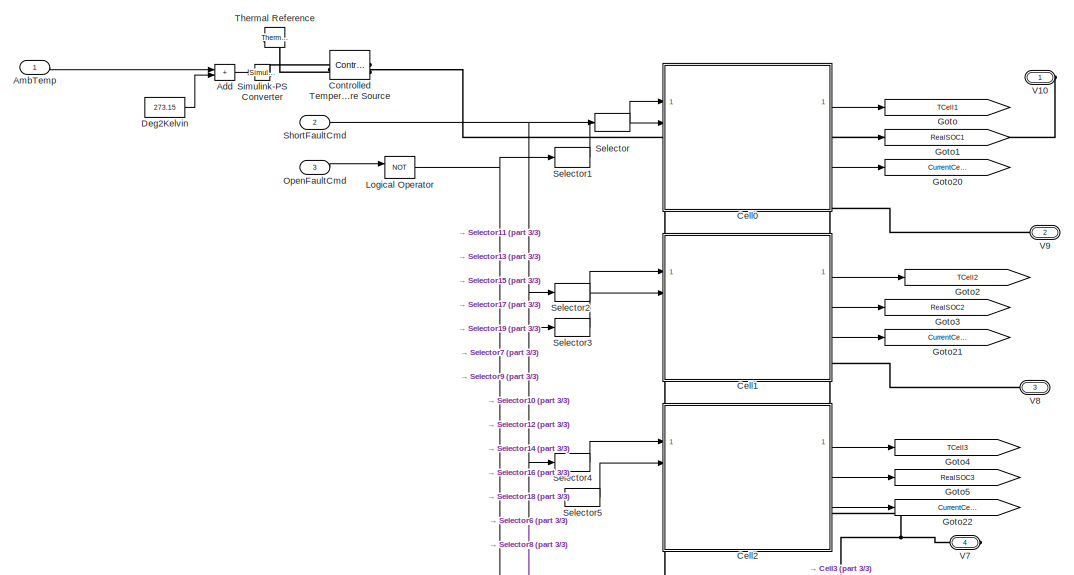
[diagram: Electric Vehicul Model/HV Battery/Battery Pack/Battery Model/Battery_Model - part 1/3, top left region]
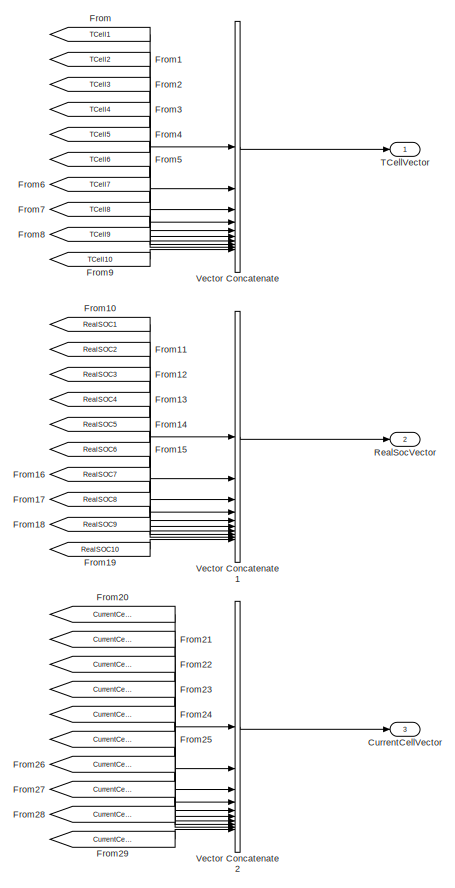
[diagram: Electric Vehicul Model/HV Battery/Battery Pack/Battery Model/Battery_Model - part 2/3, middle right region]
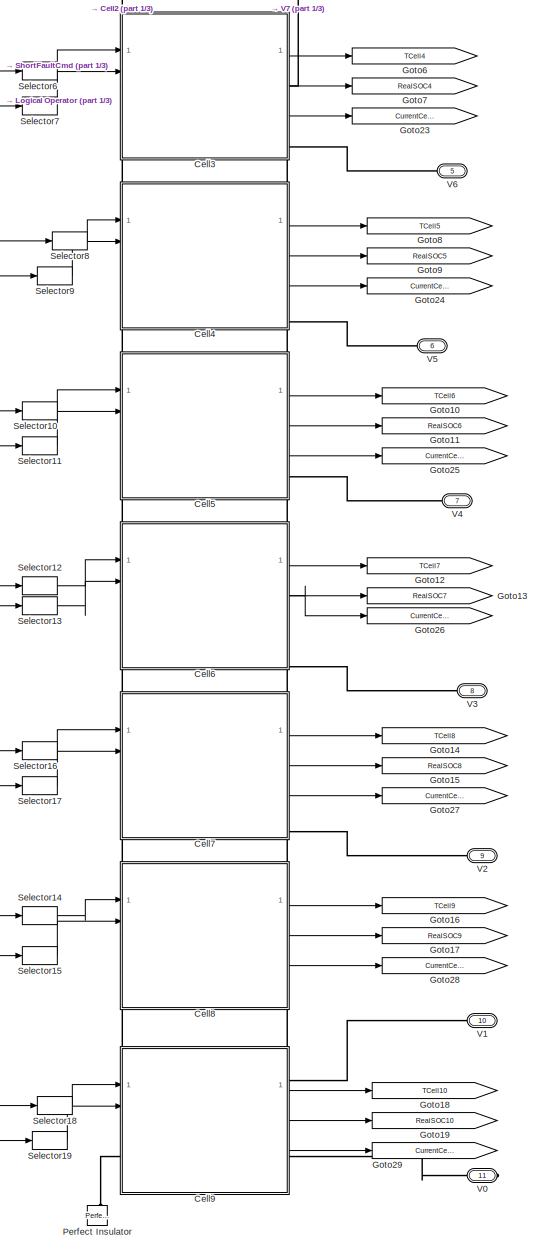
[diagram: Electric Vehicul Model/HV Battery/Battery Pack/Battery Model/Battery_Model - part 3/3, central region]
BLOCK [SubSystem] Electric Vehicul Model/HV Battery/Battery Pack/Battery Model/Battery_Model
BLOCK [Sum] Electric Vehicul Model/HV Battery/Battery Pack/Battery Model/Battery_Model/Add
  IconShape = rectangular
BLOCK [Inport] Electric Vehicul Model/HV Battery/Battery Pack/Battery Model/Battery_Model/AmbTemp
BLOCK [SubSystem] Electric Vehicul Model/HV Battery/Battery Pack/Battery Model/Battery_Model/Cell0
  PortSchema = {"entries":[{"content":{"sides":[{"content":{"connectorIds":["LConn1","In1","In2","LConn2"]},"type":"ConnectorPlacement.EquallySpacedRectSide","uuid":"beb41537-88d3-447c-be57-cb35454cee64"},{"content":{"connectorIds":["RConn1","Out1","Out2","Out3","RConn2"],"side":"RIGHT"},"type":"ConnectorPlacement.EquallySpacedRectSide","uuid":"6a20e019-ad86-49c6-8fd8-d46a955d3cd5"},{"content":{"side":"TOP"},"ty...<+278ch>  <repeated x10 — deduplicated; at blocks: Cell0, Cell1, Cell2, Cell3, Cell4, Cell5, Cell6, Cell7, Cell8, Cell9>
BLOCK [Reference] Electric Vehicul Model/HV Battery/Battery Pack/Battery Model/Battery_Model/Cell0/Battery (Table-Based)7  REF=batteryecm_lib/Battery
(Table-Based)
  AttributesFormatString = Panasonic:NCR18650BD
  LibrarySourceBlock = ee_lib/Sources/Battery\n(Table-Based)
  NameLocation = right
  SourceBlock = batteryecm_lib/Battery\n(Table-Based)
  SourceType = Battery\n(Table-Based)
BLOCK [DataTypeConversion] Electric Vehicul Model/HV Battery/Battery Pack/Battery Model/Battery_Model/Cell0/Cast To Double
  OutDataTypeStr = double
  RndMeth = Floor
  SaturateOnIntegerOverflow = off
BLOCK [DataTypeConversion] Electric Vehicul Model/HV Battery/Battery Pack/Battery Model/Battery_Model/Cell0/Cast To Double1
  OutDataTypeStr = double
  RndMeth = Floor
  SaturateOnIntegerOverflow = off
BLOCK [Reference] Electric Vehicul Model/HV Battery/Battery Pack/Battery Model/Battery_Model/Cell0/Conductive Heat Transfer1  REF=fl_lib/Thermal/Thermal Elements/Conductive Heat
Transfer
  SourceBlock = fl_lib/Thermal/Thermal Elements/Conductive Heat\nTransfer
  SourceType = Conductive Heat\nTransfer
BLOCK [Reference] Electric Vehicul Model/HV Battery/Battery Pack/Battery Model/Battery_Model/Cell0/Convective Heat Transfer1  REF=fl_lib/Thermal/Thermal Elements/Convective Heat
Transfer
  SourceBlock = fl_lib/Thermal/Thermal Elements/Convective Heat\nTransfer
  SourceType = Convective Heat\nTransfer
BLOCK [Outport] Electric Vehicul Model/HV Battery/Battery Pack/Battery Model/Battery_Model/Cell0/Current
  Port = 3
BLOCK [Reference] Electric Vehicul Model/HV Battery/Battery Pack/Battery Model/Battery_Model/Cell0/Current Sensor1  REF=fl_lib/Electrical/Electrical Sensors/Current Sensor
  SourceBlock = fl_lib/Electrical/Electrical Sensors/Current Sensor
  SourceType = Current Sensor
BLOCK [PMIOPort] Electric Vehicul Model/HV Battery/Battery Pack/Battery Model/Battery_Model/Cell0/HeatIn
  Side = Left
BLOCK [PMIOPort] Electric Vehicul Model/HV Battery/Battery Pack/Battery Model/Battery_Model/Cell0/HeatOut
  Port = 2
  Side = Left
BLOCK [Inport] Electric Vehicul Model/HV Battery/Battery Pack/Battery Model/Battery_Model/Cell0/OpenFault
  OutDataTypeStr = boolean
  Port = 2
BLOCK [Reference] Electric Vehicul Model/HV Battery/Battery Pack/Battery Model/Battery_Model/Cell0/OpenSwitch1  REF=fl_lib/Electrical/Electrical Elements/Switch
  NameLocation = right
  SourceBlock = fl_lib/Electrical/Electrical Elements/Switch
  SourceType = Switch
BLOCK [Reference] Electric Vehicul Model/HV Battery/Battery Pack/Battery Model/Battery_Model/Cell0/PS-Simulink Converter1  REF=nesl_utility/PS-Simulink
Converter
  SourceBlock = nesl_utility/PS-Simulink\nConverter
  SourceType = PS-Simulink\nConverter
BLOCK [Reference] Electric Vehicul Model/HV Battery/Battery Pack/Battery Model/Battery_Model/Cell0/PS-Simulink Converter2  REF=nesl_utility/PS-Simulink
Converter
  SourceBlock = nesl_utility/PS-Simulink\nConverter
  SourceType = PS-Simulink\nConverter
BLOCK [Reference] Electric Vehicul Model/HV Battery/Battery Pack/Battery Model/Battery_Model/Cell0/PS-Simulink Converter3  REF=nesl_utility/PS-Simulink
Converter
  SourceBlock = nesl_utility/PS-Simulink\nConverter
  SourceType = PS-Simulink\nConverter
BLOCK [Outport] Electric Vehicul Model/HV Battery/Battery Pack/Battery Model/Battery_Model/Cell0/RealSOC
  Port = 2
BLOCK [Inport] Electric Vehicul Model/HV Battery/Battery Pack/Battery Model/Battery_Model/Cell0/ShortFault
  OutDataTypeStr = boolean
BLOCK [Reference] Electric Vehicul Model/HV Battery/Battery Pack/Battery Model/Battery_Model/Cell0/ShortSwitch1  REF=fl_lib/Electrical/Electrical Elements/Switch
  NameLocation = right
  SourceBlock = fl_lib/Electrical/Electrical Elements/Switch
  SourceType = Switch
BLOCK [Reference] Electric Vehicul Model/HV Battery/Battery Pack/Battery Model/Battery_Model/Cell0/Simulink-PS Converter  REF=nesl_utility/Simulink-PS
Converter
  SourceBlock = nesl_utility/Simulink-PS\nConverter
  SourceType = Simulink-PS\nConverter
BLOCK [Reference] Electric Vehicul Model/HV Battery/Battery Pack/Battery Model/Battery_Model/Cell0/Simulink-PS Converter1  REF=nesl_utility/Simulink-PS
Converter
  SourceBlock = nesl_utility/Simulink-PS\nConverter
  SourceType = Simulink-PS\nConverter
BLOCK [Outport] Electric Vehicul Model/HV Battery/Battery Pack/Battery Model/Battery_Model/Cell0/TCell
BLOCK [Reference] Electric Vehicul Model/HV Battery/Battery Pack/Battery Model/Battery_Model/Cell0/Temperature Sensor1  REF=fl_lib/Thermal/Thermal Sensors/Temperature Sensor
  SourceBlock = fl_lib/Thermal/Thermal Sensors/Temperature Sensor
  SourceType = Temperature Sensor
BLOCK [Reference] Electric Vehicul Model/HV Battery/Battery Pack/Battery Model/Battery_Model/Cell0/Thermal Reference1  REF=fl_lib/Thermal/Thermal Elements/Thermal Reference
  NameLocation = left
  SourceBlock = fl_lib/Thermal/Thermal Elements/Thermal Reference
  SourceType = Thermal Reference
BLOCK [PMIOPort] Electric Vehicul Model/HV Battery/Battery Pack/Battery Model/Battery_Model/Cell0/V+
  Port = 3
  Side = Right
BLOCK [PMIOPort] Electric Vehicul Model/HV Battery/Battery Pack/Battery Model/Battery_Model/Cell0/V-
  Port = 4
  Side = Right
BLOCK [SubSystem] Electric Vehicul Model/HV Battery/Battery Pack/Battery Model/Battery_Model/Cell1
BLOCK [Reference] Electric Vehicul Model/HV Battery/Battery Pack/Battery Model/Battery_Model/Cell1/Battery (Table-Based)7  REF=batteryecm_lib/Battery
(Table-Based)
  AttributesFormatString = Panasonic:NCR18650BD
  NameLocation = right
  SourceBlock = batteryecm_lib/Battery\n(Table-Based)
  SourceType = Battery\n(Table-Based)
BLOCK [DataTypeConversion] Electric Vehicul Model/HV Battery/Battery Pack/Battery Model/Battery_Model/Cell1/Cast To Double
  OutDataTypeStr = double
  RndMeth = Floor
  SaturateOnIntegerOverflow = off
BLOCK [DataTypeConversion] Electric Vehicul Model/HV Battery/Battery Pack/Battery Model/Battery_Model/Cell1/Cast To Double1
  OutDataTypeStr = double
  RndMeth = Floor
  SaturateOnIntegerOverflow = off
BLOCK [Reference] Electric Vehicul Model/HV Battery/Battery Pack/Battery Model/Battery_Model/Cell1/Conductive Heat Transfer1  REF=fl_lib/Thermal/Thermal Elements/Conductive Heat
Transfer
  SourceBlock = fl_lib/Thermal/Thermal Elements/Conductive Heat\nTransfer
  SourceType = Conductive Heat\nTransfer
BLOCK [Reference] Electric Vehicul Model/HV Battery/Battery Pack/Battery Model/Battery_Model/Cell1/Convective Heat Transfer1  REF=fl_lib/Thermal/Thermal Elements/Convective Heat
Transfer
  SourceBlock = fl_lib/Thermal/Thermal Elements/Convective Heat\nTransfer
  SourceType = Convective Heat\nTransfer
BLOCK [Outport] Electric Vehicul Model/HV Battery/Battery Pack/Battery Model/Battery_Model/Cell1/Current
  Port = 3
BLOCK [Reference] Electric Vehicul Model/HV Battery/Battery Pack/Battery Model/Battery_Model/Cell1/Current Sensor1  REF=fl_lib/Electrical/Electrical Sensors/Current Sensor
  SourceBlock = fl_lib/Electrical/Electrical Sensors/Current Sensor
  SourceType = Current Sensor
BLOCK [PMIOPort] Electric Vehicul Model/HV Battery/Battery Pack/Battery Model/Battery_Model/Cell1/HeatIn
  Side = Left
BLOCK [PMIOPort] Electric Vehicul Model/HV Battery/Battery Pack/Battery Model/Battery_Model/Cell1/HeatOut
  Port = 2
  Side = Left
BLOCK [Inport] Electric Vehicul Model/HV Battery/Battery Pack/Battery Model/Battery_Model/Cell1/OpenFault
  OutDataTypeStr = boolean
  Port = 2
BLOCK [Reference] Electric Vehicul Model/HV Battery/Battery Pack/Battery Model/Battery_Model/Cell1/OpenSwitch1  REF=fl_lib/Electrical/Electrical Elements/Switch
  NameLocation = right
  SourceBlock = fl_lib/Electrical/Electrical Elements/Switch
  SourceType = Switch
BLOCK [Reference] Electric Vehicul Model/HV Battery/Battery Pack/Battery Model/Battery_Model/Cell1/PS-Simulink Converter1  REF=nesl_utility/PS-Simulink
Converter
  SourceBlock = nesl_utility/PS-Simulink\nConverter
  SourceType = PS-Simulink\nConverter
BLOCK [Reference] Electric Vehicul Model/HV Battery/Battery Pack/Battery Model/Battery_Model/Cell1/PS-Simulink Converter2  REF=nesl_utility/PS-Simulink
Converter
  SourceBlock = nesl_utility/PS-Simulink\nConverter
  SourceType = PS-Simulink\nConverter
BLOCK [Reference] Electric Vehicul Model/HV Battery/Battery Pack/Battery Model/Battery_Model/Cell1/PS-Simulink Converter3  REF=nesl_utility/PS-Simulink
Converter
  SourceBlock = nesl_utility/PS-Simulink\nConverter
  SourceType = PS-Simulink\nConverter
BLOCK [Outport] Electric Vehicul Model/HV Battery/Battery Pack/Battery Model/Battery_Model/Cell1/RealSOC
  Port = 2
BLOCK [Inport] Electric Vehicul Model/HV Battery/Battery Pack/Battery Model/Battery_Model/Cell1/ShortFault
  OutDataTypeStr = boolean
BLOCK [Reference] Electric Vehicul Model/HV Battery/Battery Pack/Battery Model/Battery_Model/Cell1/ShortSwitch1  REF=fl_lib/Electrical/Electrical Elements/Switch
  NameLocation = right
  SourceBlock = fl_lib/Electrical/Electrical Elements/Switch
  SourceType = Switch
BLOCK [Reference] Electric Vehicul Model/HV Battery/Battery Pack/Battery Model/Battery_Model/Cell1/Simulink-PS Converter  REF=nesl_utility/Simulink-PS
Converter
  SourceBlock = nesl_utility/Simulink-PS\nConverter
  SourceType = Simulink-PS\nConverter
BLOCK [Reference] Electric Vehicul Model/HV Battery/Battery Pack/Battery Model/Battery_Model/Cell1/Simulink-PS Converter1  REF=nesl_utility/Simulink-PS
Converter
  SourceBlock = nesl_utility/Simulink-PS\nConverter
  SourceType = Simulink-PS\nConverter
BLOCK [Outport] Electric Vehicul Model/HV Battery/Battery Pack/Battery Model/Battery_Model/Cell1/TCell
BLOCK [Reference] Electric Vehicul Model/HV Battery/Battery Pack/Battery Model/Battery_Model/Cell1/Temperature Sensor1  REF=fl_lib/Thermal/Thermal Sensors/Temperature Sensor
  SourceBlock = fl_lib/Thermal/Thermal Sensors/Temperature Sensor
  SourceType = Temperature Sensor
BLOCK [Reference] Electric Vehicul Model/HV Battery/Battery Pack/Battery Model/Battery_Model/Cell1/Thermal Reference1  REF=fl_lib/Thermal/Thermal Elements/Thermal Reference
  NameLocation = left
  SourceBlock = fl_lib/Thermal/Thermal Elements/Thermal Reference
  SourceType = Thermal Reference
BLOCK [PMIOPort] Electric Vehicul Model/HV Battery/Battery Pack/Battery Model/Battery_Model/Cell1/V+
  Port = 3
  Side = Right
BLOCK [PMIOPort] Electric Vehicul Model/HV Battery/Battery Pack/Battery Model/Battery_Model/Cell1/V-
  Port = 4
  Side = Right
BLOCK [SubSystem] Electric Vehicul Model/HV Battery/Battery Pack/Battery Model/Battery_Model/Cell2
BLOCK [Reference] Electric Vehicul Model/HV Battery/Battery Pack/Battery Model/Battery_Model/Cell2/Battery (Table-Based)7  REF=batteryecm_lib/Battery
(Table-Based)
  AttributesFormatString = Panasonic:NCR18650BD
  NameLocation = right
  SourceBlock = batteryecm_lib/Battery\n(Table-Based)
  SourceType = Battery\n(Table-Based)
BLOCK [DataTypeConversion] Electric Vehicul Model/HV Battery/Battery Pack/Battery Model/Battery_Model/Cell2/Cast To Double
  OutDataTypeStr = double
  RndMeth = Floor
  SaturateOnIntegerOverflow = off
BLOCK [DataTypeConversion] Electric Vehicul Model/HV Battery/Battery Pack/Battery Model/Battery_Model/Cell2/Cast To Double1
  OutDataTypeStr = double
  RndMeth = Floor
  SaturateOnIntegerOverflow = off
BLOCK [Reference] Electric Vehicul Model/HV Battery/Battery Pack/Battery Model/Battery_Model/Cell2/Conductive Heat Transfer1  REF=fl_lib/Thermal/Thermal Elements/Conductive Heat
Transfer
  SourceBlock = fl_lib/Thermal/Thermal Elements/Conductive Heat\nTransfer
  SourceType = Conductive Heat\nTransfer
BLOCK [Reference] Electric Vehicul Model/HV Battery/Battery Pack/Battery Model/Battery_Model/Cell2/Convective Heat Transfer1  REF=fl_lib/Thermal/Thermal Elements/Convective Heat
Transfer
  SourceBlock = fl_lib/Thermal/Thermal Elements/Convective Heat\nTransfer
  SourceType = Convective Heat\nTransfer
BLOCK [Outport] Electric Vehicul Model/HV Battery/Battery Pack/Battery Model/Battery_Model/Cell2/Current
  Port = 3
BLOCK [Reference] Electric Vehicul Model/HV Battery/Battery Pack/Battery Model/Battery_Model/Cell2/Current Sensor1  REF=fl_lib/Electrical/Electrical Sensors/Current Sensor
  SourceBlock = fl_lib/Electrical/Electrical Sensors/Current Sensor
  SourceType = Current Sensor
BLOCK [PMIOPort] Electric Vehicul Model/HV Battery/Battery Pack/Battery Model/Battery_Model/Cell2/HeatIn
  Side = Left
BLOCK [PMIOPort] Electric Vehicul Model/HV Battery/Battery Pack/Battery Model/Battery_Model/Cell2/HeatOut
  Port = 2
  Side = Left
BLOCK [Inport] Electric Vehicul Model/HV Battery/Battery Pack/Battery Model/Battery_Model/Cell2/OpenFault
  OutDataTypeStr = boolean
  Port = 2
BLOCK [Reference] Electric Vehicul Model/HV Battery/Battery Pack/Battery Model/Battery_Model/Cell2/OpenSwitch1  REF=fl_lib/Electrical/Electrical Elements/Switch
  NameLocation = right
  SourceBlock = fl_lib/Electrical/Electrical Elements/Switch
  SourceType = Switch
BLOCK [Reference] Electric Vehicul Model/HV Battery/Battery Pack/Battery Model/Battery_Model/Cell2/PS-Simulink Converter1  REF=nesl_utility/PS-Simulink
Converter
  SourceBlock = nesl_utility/PS-Simulink\nConverter
  SourceType = PS-Simulink\nConverter
BLOCK [Reference] Electric Vehicul Model/HV Battery/Battery Pack/Battery Model/Battery_Model/Cell2/PS-Simulink Converter2  REF=nesl_utility/PS-Simulink
Converter
  SourceBlock = nesl_utility/PS-Simulink\nConverter
  SourceType = PS-Simulink\nConverter
BLOCK [Reference] Electric Vehicul Model/HV Battery/Battery Pack/Battery Model/Battery_Model/Cell2/PS-Simulink Converter3  REF=nesl_utility/PS-Simulink
Converter
  SourceBlock = nesl_utility/PS-Simulink\nConverter
  SourceType = PS-Simulink\nConverter
BLOCK [Outport] Electric Vehicul Model/HV Battery/Battery Pack/Battery Model/Battery_Model/Cell2/RealSOC
  Port = 2
BLOCK [Inport] Electric Vehicul Model/HV Battery/Battery Pack/Battery Model/Battery_Model/Cell2/ShortFault
  OutDataTypeStr = boolean
BLOCK [Reference] Electric Vehicul Model/HV Battery/Battery Pack/Battery Model/Battery_Model/Cell2/ShortSwitch1  REF=fl_lib/Electrical/Electrical Elements/Switch
  NameLocation = right
  SourceBlock = fl_lib/Electrical/Electrical Elements/Switch
  SourceType = Switch
BLOCK [Reference] Electric Vehicul Model/HV Battery/Battery Pack/Battery Model/Battery_Model/Cell2/Simulink-PS Converter  REF=nesl_utility/Simulink-PS
Converter
  SourceBlock = nesl_utility/Simulink-PS\nConverter
  SourceType = Simulink-PS\nConverter
BLOCK [Reference] Electric Vehicul Model/HV Battery/Battery Pack/Battery Model/Battery_Model/Cell2/Simulink-PS Converter1  REF=nesl_utility/Simulink-PS
Converter
  SourceBlock = nesl_utility/Simulink-PS\nConverter
  SourceType = Simulink-PS\nConverter
BLOCK [Outport] Electric Vehicul Model/HV Battery/Battery Pack/Battery Model/Battery_Model/Cell2/TCell
BLOCK [Reference] Electric Vehicul Model/HV Battery/Battery Pack/Battery Model/Battery_Model/Cell2/Temperature Sensor1  REF=fl_lib/Thermal/Thermal Sensors/Temperature Sensor
  SourceBlock = fl_lib/Thermal/Thermal Sensors/Temperature Sensor
  SourceType = Temperature Sensor
BLOCK [Reference] Electric Vehicul Model/HV Battery/Battery Pack/Battery Model/Battery_Model/Cell2/Thermal Reference1  REF=fl_lib/Thermal/Thermal Elements/Thermal Reference
  NameLocation = left
  SourceBlock = fl_lib/Thermal/Thermal Elements/Thermal Reference
  SourceType = Thermal Reference
BLOCK [PMIOPort] Electric Vehicul Model/HV Battery/Battery Pack/Battery Model/Battery_Model/Cell2/V+
  Port = 3
  Side = Right
BLOCK [PMIOPort] Electric Vehicul Model/HV Battery/Battery Pack/Battery Model/Battery_Model/Cell2/V-
  Port = 4
  Side = Right
BLOCK [SubSystem] Electric Vehicul Model/HV Battery/Battery Pack/Battery Model/Battery_Model/Cell3
BLOCK [Reference] Electric Vehicul Model/HV Battery/Battery Pack/Battery Model/Battery_Model/Cell3/Battery (Table-Based)7  REF=batteryecm_lib/Battery
(Table-Based)
  AttributesFormatString = Panasonic:NCR18650BD
  NameLocation = right
  SourceBlock = batteryecm_lib/Battery\n(Table-Based)
  SourceType = Battery\n(Table-Based)
BLOCK [DataTypeConversion] Electric Vehicul Model/HV Battery/Battery Pack/Battery Model/Battery_Model/Cell3/Cast To Double
  OutDataTypeStr = double
  RndMeth = Floor
  SaturateOnIntegerOverflow = off
BLOCK [DataTypeConversion] Electric Vehicul Model/HV Battery/Battery Pack/Battery Model/Battery_Model/Cell3/Cast To Double1
  OutDataTypeStr = double
  RndMeth = Floor
  SaturateOnIntegerOverflow = off
BLOCK [Reference] Electric Vehicul Model/HV Battery/Battery Pack/Battery Model/Battery_Model/Cell3/Conductive Heat Transfer1  REF=fl_lib/Thermal/Thermal Elements/Conductive Heat
Transfer
  SourceBlock = fl_lib/Thermal/Thermal Elements/Conductive Heat\nTransfer
  SourceType = Conductive Heat\nTransfer
BLOCK [Reference] Electric Vehicul Model/HV Battery/Battery Pack/Battery Model/Battery_Model/Cell3/Convective Heat Transfer1  REF=fl_lib/Thermal/Thermal Elements/Convective Heat
Transfer
  SourceBlock = fl_lib/Thermal/Thermal Elements/Convective Heat\nTransfer
  SourceType = Convective Heat\nTransfer
BLOCK [Outport] Electric Vehicul Model/HV Battery/Battery Pack/Battery Model/Battery_Model/Cell3/Current
  Port = 3
BLOCK [Reference] Electric Vehicul Model/HV Battery/Battery Pack/Battery Model/Battery_Model/Cell3/Current Sensor1  REF=fl_lib/Electrical/Electrical Sensors/Current Sensor
  SourceBlock = fl_lib/Electrical/Electrical Sensors/Current Sensor
  SourceType = Current Sensor
BLOCK [PMIOPort] Electric Vehicul Model/HV Battery/Battery Pack/Battery Model/Battery_Model/Cell3/HeatIn
  Side = Left
BLOCK [PMIOPort] Electric Vehicul Model/HV Battery/Battery Pack/Battery Model/Battery_Model/Cell3/HeatOut
  Port = 2
  Side = Left
BLOCK [Inport] Electric Vehicul Model/HV Battery/Battery Pack/Battery Model/Battery_Model/Cell3/OpenFault
  OutDataTypeStr = boolean
  Port = 2
BLOCK [Reference] Electric Vehicul Model/HV Battery/Battery Pack/Battery Model/Battery_Model/Cell3/OpenSwitch1  REF=fl_lib/Electrical/Electrical Elements/Switch
  NameLocation = right
  SourceBlock = fl_lib/Electrical/Electrical Elements/Switch
  SourceType = Switch
BLOCK [Reference] Electric Vehicul Model/HV Battery/Battery Pack/Battery Model/Battery_Model/Cell3/PS-Simulink Converter1  REF=nesl_utility/PS-Simulink
Converter
  SourceBlock = nesl_utility/PS-Simulink\nConverter
  SourceType = PS-Simulink\nConverter
BLOCK [Reference] Electric Vehicul Model/HV Battery/Battery Pack/Battery Model/Battery_Model/Cell3/PS-Simulink Converter2  REF=nesl_utility/PS-Simulink
Converter
  SourceBlock = nesl_utility/PS-Simulink\nConverter
  SourceType = PS-Simulink\nConverter
BLOCK [Reference] Electric Vehicul Model/HV Battery/Battery Pack/Battery Model/Battery_Model/Cell3/PS-Simulink Converter3  REF=nesl_utility/PS-Simulink
Converter
  SourceBlock = nesl_utility/PS-Simulink\nConverter
  SourceType = PS-Simulink\nConverter
BLOCK [Outport] Electric Vehicul Model/HV Battery/Battery Pack/Battery Model/Battery_Model/Cell3/RealSOC
  Port = 2
BLOCK [Inport] Electric Vehicul Model/HV Battery/Battery Pack/Battery Model/Battery_Model/Cell3/ShortFault
  OutDataTypeStr = boolean
BLOCK [Reference] Electric Vehicul Model/HV Battery/Battery Pack/Battery Model/Battery_Model/Cell3/ShortSwitch1  REF=fl_lib/Electrical/Electrical Elements/Switch
  NameLocation = right
  SourceBlock = fl_lib/Electrical/Electrical Elements/Switch
  SourceType = Switch
BLOCK [Reference] Electric Vehicul Model/HV Battery/Battery Pack/Battery Model/Battery_Model/Cell3/Simulink-PS Converter  REF=nesl_utility/Simulink-PS
Converter
  SourceBlock = nesl_utility/Simulink-PS\nConverter
  SourceType = Simulink-PS\nConverter
BLOCK [Reference] Electric Vehicul Model/HV Battery/Battery Pack/Battery Model/Battery_Model/Cell3/Simulink-PS Converter1  REF=nesl_utility/Simulink-PS
Converter
  SourceBlock = nesl_utility/Simulink-PS\nConverter
  SourceType = Simulink-PS\nConverter
BLOCK [Outport] Electric Vehicul Model/HV Battery/Battery Pack/Battery Model/Battery_Model/Cell3/TCell
BLOCK [Reference] Electric Vehicul Model/HV Battery/Battery Pack/Battery Model/Battery_Model/Cell3/Temperature Sensor1  REF=fl_lib/Thermal/Thermal Sensors/Temperature Sensor
  SourceBlock = fl_lib/Thermal/Thermal Sensors/Temperature Sensor
  SourceType = Temperature Sensor
BLOCK [Reference] Electric Vehicul Model/HV Battery/Battery Pack/Battery Model/Battery_Model/Cell3/Thermal Reference1  REF=fl_lib/Thermal/Thermal Elements/Thermal Reference
  NameLocation = left
  SourceBlock = fl_lib/Thermal/Thermal Elements/Thermal Reference
  SourceType = Thermal Reference
BLOCK [PMIOPort] Electric Vehicul Model/HV Battery/Battery Pack/Battery Model/Battery_Model/Cell3/V+
  Port = 3
  Side = Right
BLOCK [PMIOPort] Electric Vehicul Model/HV Battery/Battery Pack/Battery Model/Battery_Model/Cell3/V-
  Port = 4
  Side = Right
BLOCK [SubSystem] Electric Vehicul Model/HV Battery/Battery Pack/Battery Model/Battery_Model/Cell4
BLOCK [Reference] Electric Vehicul Model/HV Battery/Battery Pack/Battery Model/Battery_Model/Cell4/Battery (Table-Based)7  REF=batteryecm_lib/Battery
(Table-Based)
  AttributesFormatString = Panasonic:NCR18650BD
  NameLocation = right
  SourceBlock = batteryecm_lib/Battery\n(Table-Based)
  SourceType = Battery\n(Table-Based)
BLOCK [DataTypeConversion] Electric Vehicul Model/HV Battery/Battery Pack/Battery Model/Battery_Model/Cell4/Cast To Double
  OutDataTypeStr = double
  RndMeth = Floor
  SaturateOnIntegerOverflow = off
BLOCK [DataTypeConversion] Electric Vehicul Model/HV Battery/Battery Pack/Battery Model/Battery_Model/Cell4/Cast To Double1
  OutDataTypeStr = double
  RndMeth = Floor
  SaturateOnIntegerOverflow = off
BLOCK [Reference] Electric Vehicul Model/HV Battery/Battery Pack/Battery Model/Battery_Model/Cell4/Conductive Heat Transfer1  REF=fl_lib/Thermal/Thermal Elements/Conductive Heat
Transfer
  SourceBlock = fl_lib/Thermal/Thermal Elements/Conductive Heat\nTransfer
  SourceType = Conductive Heat\nTransfer
BLOCK [Reference] Electric Vehicul Model/HV Battery/Battery Pack/Battery Model/Battery_Model/Cell4/Convective Heat Transfer1  REF=fl_lib/Thermal/Thermal Elements/Convective Heat
Transfer
  SourceBlock = fl_lib/Thermal/Thermal Elements/Convective Heat\nTransfer
  SourceType = Convective Heat\nTransfer
BLOCK [Outport] Electric Vehicul Model/HV Battery/Battery Pack/Battery Model/Battery_Model/Cell4/Current
  Port = 3
BLOCK [Reference] Electric Vehicul Model/HV Battery/Battery Pack/Battery Model/Battery_Model/Cell4/Current Sensor1  REF=fl_lib/Electrical/Electrical Sensors/Current Sensor
  SourceBlock = fl_lib/Electrical/Electrical Sensors/Current Sensor
  SourceType = Current Sensor
BLOCK [PMIOPort] Electric Vehicul Model/HV Battery/Battery Pack/Battery Model/Battery_Model/Cell4/HeatIn
  Side = Left
BLOCK [PMIOPort] Electric Vehicul Model/HV Battery/Battery Pack/Battery Model/Battery_Model/Cell4/HeatOut
  Port = 2
  Side = Left
BLOCK [Inport] Electric Vehicul Model/HV Battery/Battery Pack/Battery Model/Battery_Model/Cell4/OpenFault
  OutDataTypeStr = boolean
  Port = 2
BLOCK [Reference] Electric Vehicul Model/HV Battery/Battery Pack/Battery Model/Battery_Model/Cell4/OpenSwitch1  REF=fl_lib/Electrical/Electrical Elements/Switch
  NameLocation = right
  SourceBlock = fl_lib/Electrical/Electrical Elements/Switch
  SourceType = Switch
BLOCK [Reference] Electric Vehicul Model/HV Battery/Battery Pack/Battery Model/Battery_Model/Cell4/PS-Simulink Converter1  REF=nesl_utility/PS-Simulink
Converter
  SourceBlock = nesl_utility/PS-Simulink\nConverter
  SourceType = PS-Simulink\nConverter
BLOCK [Reference] Electric Vehicul Model/HV Battery/Battery Pack/Battery Model/Battery_Model/Cell4/PS-Simulink Converter2  REF=nesl_utility/PS-Simulink
Converter
  SourceBlock = nesl_utility/PS-Simulink\nConverter
  SourceType = PS-Simulink\nConverter
BLOCK [Reference] Electric Vehicul Model/HV Battery/Battery Pack/Battery Model/Battery_Model/Cell4/PS-Simulink Converter3  REF=nesl_utility/PS-Simulink
Converter
  SourceBlock = nesl_utility/PS-Simulink\nConverter
  SourceType = PS-Simulink\nConverter
BLOCK [Outport] Electric Vehicul Model/HV Battery/Battery Pack/Battery Model/Battery_Model/Cell4/RealSOC
  Port = 2
BLOCK [Inport] Electric Vehicul Model/HV Battery/Battery Pack/Battery Model/Battery_Model/Cell4/ShortFault
  OutDataTypeStr = boolean
BLOCK [Reference] Electric Vehicul Model/HV Battery/Battery Pack/Battery Model/Battery_Model/Cell4/ShortSwitch1  REF=fl_lib/Electrical/Electrical Elements/Switch
  NameLocation = right
  SourceBlock = fl_lib/Electrical/Electrical Elements/Switch
  SourceType = Switch
BLOCK [Reference] Electric Vehicul Model/HV Battery/Battery Pack/Battery Model/Battery_Model/Cell4/Simulink-PS Converter  REF=nesl_utility/Simulink-PS
Converter
  SourceBlock = nesl_utility/Simulink-PS\nConverter
  SourceType = Simulink-PS\nConverter
BLOCK [Reference] Electric Vehicul Model/HV Battery/Battery Pack/Battery Model/Battery_Model/Cell4/Simulink-PS Converter1  REF=nesl_utility/Simulink-PS
Converter
  SourceBlock = nesl_utility/Simulink-PS\nConverter
  SourceType = Simulink-PS\nConverter
BLOCK [Outport] Electric Vehicul Model/HV Battery/Battery Pack/Battery Model/Battery_Model/Cell4/TCell
BLOCK [Reference] Electric Vehicul Model/HV Battery/Battery Pack/Battery Model/Battery_Model/Cell4/Temperature Sensor1  REF=fl_lib/Thermal/Thermal Sensors/Temperature Sensor
  SourceBlock = fl_lib/Thermal/Thermal Sensors/Temperature Sensor
  SourceType = Temperature Sensor
BLOCK [Reference] Electric Vehicul Model/HV Battery/Battery Pack/Battery Model/Battery_Model/Cell4/Thermal Reference1  REF=fl_lib/Thermal/Thermal Elements/Thermal Reference
  NameLocation = left
  SourceBlock = fl_lib/Thermal/Thermal Elements/Thermal Reference
  SourceType = Thermal Reference
BLOCK [PMIOPort] Electric Vehicul Model/HV Battery/Battery Pack/Battery Model/Battery_Model/Cell4/V+
  Port = 3
  Side = Right
BLOCK [PMIOPort] Electric Vehicul Model/HV Battery/Battery Pack/Battery Model/Battery_Model/Cell4/V-
  Port = 4
  Side = Right
BLOCK [SubSystem] Electric Vehicul Model/HV Battery/Battery Pack/Battery Model/Battery_Model/Cell5
BLOCK [Reference] Electric Vehicul Model/HV Battery/Battery Pack/Battery Model/Battery_Model/Cell5/Battery (Table-Based)7  REF=batteryecm_lib/Battery
(Table-Based)
  AttributesFormatString = Panasonic:NCR18650BD
  NameLocation = right
  SourceBlock = batteryecm_lib/Battery\n(Table-Based)
  SourceType = Battery\n(Table-Based)
BLOCK [DataTypeConversion] Electric Vehicul Model/HV Battery/Battery Pack/Battery Model/Battery_Model/Cell5/Cast To Double
  OutDataTypeStr = double
  RndMeth = Floor
  SaturateOnIntegerOverflow = off
BLOCK [DataTypeConversion] Electric Vehicul Model/HV Battery/Battery Pack/Battery Model/Battery_Model/Cell5/Cast To Double1
  OutDataTypeStr = double
  RndMeth = Floor
  SaturateOnIntegerOverflow = off
BLOCK [Reference] Electric Vehicul Model/HV Battery/Battery Pack/Battery Model/Battery_Model/Cell5/Conductive Heat Transfer1  REF=fl_lib/Thermal/Thermal Elements/Conductive Heat
Transfer
  SourceBlock = fl_lib/Thermal/Thermal Elements/Conductive Heat\nTransfer
  SourceType = Conductive Heat\nTransfer
BLOCK [Reference] Electric Vehicul Model/HV Battery/Battery Pack/Battery Model/Battery_Model/Cell5/Convective Heat Transfer1  REF=fl_lib/Thermal/Thermal Elements/Convective Heat
Transfer
  SourceBlock = fl_lib/Thermal/Thermal Elements/Convective Heat\nTransfer
  SourceType = Convective Heat\nTransfer
BLOCK [Outport] Electric Vehicul Model/HV Battery/Battery Pack/Battery Model/Battery_Model/Cell5/Current
  Port = 3
BLOCK [Reference] Electric Vehicul Model/HV Battery/Battery Pack/Battery Model/Battery_Model/Cell5/Current Sensor1  REF=fl_lib/Electrical/Electrical Sensors/Current Sensor
  SourceBlock = fl_lib/Electrical/Electrical Sensors/Current Sensor
  SourceType = Current Sensor
BLOCK [PMIOPort] Electric Vehicul Model/HV Battery/Battery Pack/Battery Model/Battery_Model/Cell5/HeatIn
  Side = Left
BLOCK [PMIOPort] Electric Vehicul Model/HV Battery/Battery Pack/Battery Model/Battery_Model/Cell5/HeatOut
  Port = 2
  Side = Left
BLOCK [Inport] Electric Vehicul Model/HV Battery/Battery Pack/Battery Model/Battery_Model/Cell5/OpenFault
  OutDataTypeStr = boolean
  Port = 2
BLOCK [Reference] Electric Vehicul Model/HV Battery/Battery Pack/Battery Model/Battery_Model/Cell5/OpenSwitch1  REF=fl_lib/Electrical/Electrical Elements/Switch
  NameLocation = right
  SourceBlock = fl_lib/Electrical/Electrical Elements/Switch
  SourceType = Switch
BLOCK [Reference] Electric Vehicul Model/HV Battery/Battery Pack/Battery Model/Battery_Model/Cell5/PS-Simulink Converter1  REF=nesl_utility/PS-Simulink
Converter
  SourceBlock = nesl_utility/PS-Simulink\nConverter
  SourceType = PS-Simulink\nConverter
BLOCK [Reference] Electric Vehicul Model/HV Battery/Battery Pack/Battery Model/Battery_Model/Cell5/PS-Simulink Converter2  REF=nesl_utility/PS-Simulink
Converter
  SourceBlock = nesl_utility/PS-Simulink\nConverter
  SourceType = PS-Simulink\nConverter
BLOCK [Reference] Electric Vehicul Model/HV Battery/Battery Pack/Battery Model/Battery_Model/Cell5/PS-Simulink Converter3  REF=nesl_utility/PS-Simulink
Converter
  SourceBlock = nesl_utility/PS-Simulink\nConverter
  SourceType = PS-Simulink\nConverter
BLOCK [Outport] Electric Vehicul Model/HV Battery/Battery Pack/Battery Model/Battery_Model/Cell5/RealSOC
  Port = 2
BLOCK [Inport] Electric Vehicul Model/HV Battery/Battery Pack/Battery Model/Battery_Model/Cell5/ShortFault
  OutDataTypeStr = boolean
BLOCK [Reference] Electric Vehicul Model/HV Battery/Battery Pack/Battery Model/Battery_Model/Cell5/ShortSwitch1  REF=fl_lib/Electrical/Electrical Elements/Switch
  NameLocation = right
  SourceBlock = fl_lib/Electrical/Electrical Elements/Switch
  SourceType = Switch
BLOCK [Reference] Electric Vehicul Model/HV Battery/Battery Pack/Battery Model/Battery_Model/Cell5/Simulink-PS Converter  REF=nesl_utility/Simulink-PS
Converter
  SourceBlock = nesl_utility/Simulink-PS\nConverter
  SourceType = Simulink-PS\nConverter
BLOCK [Reference] Electric Vehicul Model/HV Battery/Battery Pack/Battery Model/Battery_Model/Cell5/Simulink-PS Converter1  REF=nesl_utility/Simulink-PS
Converter
  SourceBlock = nesl_utility/Simulink-PS\nConverter
  SourceType = Simulink-PS\nConverter
BLOCK [Outport] Electric Vehicul Model/HV Battery/Battery Pack/Battery Model/Battery_Model/Cell5/TCell
BLOCK [Reference] Electric Vehicul Model/HV Battery/Battery Pack/Battery Model/Battery_Model/Cell5/Temperature Sensor1  REF=fl_lib/Thermal/Thermal Sensors/Temperature Sensor
  SourceBlock = fl_lib/Thermal/Thermal Sensors/Temperature Sensor
  SourceType = Temperature Sensor
BLOCK [Reference] Electric Vehicul Model/HV Battery/Battery Pack/Battery Model/Battery_Model/Cell5/Thermal Reference1  REF=fl_lib/Thermal/Thermal Elements/Thermal Reference
  NameLocation = left
  SourceBlock = fl_lib/Thermal/Thermal Elements/Thermal Reference
  SourceType = Thermal Reference
BLOCK [PMIOPort] Electric Vehicul Model/HV Battery/Battery Pack/Battery Model/Battery_Model/Cell5/V+
  Port = 3
  Side = Right
BLOCK [PMIOPort] Electric Vehicul Model/HV Battery/Battery Pack/Battery Model/Battery_Model/Cell5/V-
  Port = 4
  Side = Right
BLOCK [SubSystem] Electric Vehicul Model/HV Battery/Battery Pack/Battery Model/Battery_Model/Cell6
BLOCK [Reference] Electric Vehicul Model/HV Battery/Battery Pack/Battery Model/Battery_Model/Cell6/Battery (Table-Based)7  REF=batteryecm_lib/Battery
(Table-Based)
  AttributesFormatString = Panasonic:NCR18650BD
  NameLocation = right
  SourceBlock = batteryecm_lib/Battery\n(Table-Based)
  SourceType = Battery\n(Table-Based)
BLOCK [DataTypeConversion] Electric Vehicul Model/HV Battery/Battery Pack/Battery Model/Battery_Model/Cell6/Cast To Double
  OutDataTypeStr = double
  RndMeth = Floor
  SaturateOnIntegerOverflow = off
BLOCK [DataTypeConversion] Electric Vehicul Model/HV Battery/Battery Pack/Battery Model/Battery_Model/Cell6/Cast To Double1
  OutDataTypeStr = double
  RndMeth = Floor
  SaturateOnIntegerOverflow = off
BLOCK [Reference] Electric Vehicul Model/HV Battery/Battery Pack/Battery Model/Battery_Model/Cell6/Conductive Heat Transfer1  REF=fl_lib/Thermal/Thermal Elements/Conductive Heat
Transfer
  SourceBlock = fl_lib/Thermal/Thermal Elements/Conductive Heat\nTransfer
  SourceType = Conductive Heat\nTransfer
BLOCK [Reference] Electric Vehicul Model/HV Battery/Battery Pack/Battery Model/Battery_Model/Cell6/Convective Heat Transfer1  REF=fl_lib/Thermal/Thermal Elements/Convective Heat
Transfer
  SourceBlock = fl_lib/Thermal/Thermal Elements/Convective Heat\nTransfer
  SourceType = Convective Heat\nTransfer
BLOCK [Outport] Electric Vehicul Model/HV Battery/Battery Pack/Battery Model/Battery_Model/Cell6/Current
  Port = 3
BLOCK [Reference] Electric Vehicul Model/HV Battery/Battery Pack/Battery Model/Battery_Model/Cell6/Current Sensor1  REF=fl_lib/Electrical/Electrical Sensors/Current Sensor
  SourceBlock = fl_lib/Electrical/Electrical Sensors/Current Sensor
  SourceType = Current Sensor
BLOCK [PMIOPort] Electric Vehicul Model/HV Battery/Battery Pack/Battery Model/Battery_Model/Cell6/HeatIn
  Side = Left
BLOCK [PMIOPort] Electric Vehicul Model/HV Battery/Battery Pack/Battery Model/Battery_Model/Cell6/HeatOut
  Port = 2
  Side = Left
BLOCK [Inport] Electric Vehicul Model/HV Battery/Battery Pack/Battery Model/Battery_Model/Cell6/OpenFault
  OutDataTypeStr = boolean
  Port = 2
BLOCK [Reference] Electric Vehicul Model/HV Battery/Battery Pack/Battery Model/Battery_Model/Cell6/OpenSwitch1  REF=fl_lib/Electrical/Electrical Elements/Switch
  NameLocation = right
  SourceBlock = fl_lib/Electrical/Electrical Elements/Switch
  SourceType = Switch
BLOCK [Reference] Electric Vehicul Model/HV Battery/Battery Pack/Battery Model/Battery_Model/Cell6/PS-Simulink Converter1  REF=nesl_utility/PS-Simulink
Converter
  SourceBlock = nesl_utility/PS-Simulink\nConverter
  SourceType = PS-Simulink\nConverter
BLOCK [Reference] Electric Vehicul Model/HV Battery/Battery Pack/Battery Model/Battery_Model/Cell6/PS-Simulink Converter2  REF=nesl_utility/PS-Simulink
Converter
  SourceBlock = nesl_utility/PS-Simulink\nConverter
  SourceType = PS-Simulink\nConverter
BLOCK [Reference] Electric Vehicul Model/HV Battery/Battery Pack/Battery Model/Battery_Model/Cell6/PS-Simulink Converter3  REF=nesl_utility/PS-Simulink
Converter
  SourceBlock = nesl_utility/PS-Simulink\nConverter
  SourceType = PS-Simulink\nConverter
BLOCK [Outport] Electric Vehicul Model/HV Battery/Battery Pack/Battery Model/Battery_Model/Cell6/RealSOC
  Port = 2
BLOCK [Inport] Electric Vehicul Model/HV Battery/Battery Pack/Battery Model/Battery_Model/Cell6/ShortFault
  OutDataTypeStr = boolean
BLOCK [Reference] Electric Vehicul Model/HV Battery/Battery Pack/Battery Model/Battery_Model/Cell6/ShortSwitch1  REF=fl_lib/Electrical/Electrical Elements/Switch
  NameLocation = right
  SourceBlock = fl_lib/Electrical/Electrical Elements/Switch
  SourceType = Switch
BLOCK [Reference] Electric Vehicul Model/HV Battery/Battery Pack/Battery Model/Battery_Model/Cell6/Simulink-PS Converter  REF=nesl_utility/Simulink-PS
Converter
  SourceBlock = nesl_utility/Simulink-PS\nConverter
  SourceType = Simulink-PS\nConverter
BLOCK [Reference] Electric Vehicul Model/HV Battery/Battery Pack/Battery Model/Battery_Model/Cell6/Simulink-PS Converter1  REF=nesl_utility/Simulink-PS
Converter
  SourceBlock = nesl_utility/Simulink-PS\nConverter
  SourceType = Simulink-PS\nConverter
BLOCK [Outport] Electric Vehicul Model/HV Battery/Battery Pack/Battery Model/Battery_Model/Cell6/TCell
BLOCK [Reference] Electric Vehicul Model/HV Battery/Battery Pack/Battery Model/Battery_Model/Cell6/Temperature Sensor1  REF=fl_lib/Thermal/Thermal Sensors/Temperature Sensor
  SourceBlock = fl_lib/Thermal/Thermal Sensors/Temperature Sensor
  SourceType = Temperature Sensor
BLOCK [Reference] Electric Vehicul Model/HV Battery/Battery Pack/Battery Model/Battery_Model/Cell6/Thermal Reference1  REF=fl_lib/Thermal/Thermal Elements/Thermal Reference
  NameLocation = left
  SourceBlock = fl_lib/Thermal/Thermal Elements/Thermal Reference
  SourceType = Thermal Reference
BLOCK [PMIOPort] Electric Vehicul Model/HV Battery/Battery Pack/Battery Model/Battery_Model/Cell6/V+
  Port = 3
  Side = Right
BLOCK [PMIOPort] Electric Vehicul Model/HV Battery/Battery Pack/Battery Model/Battery_Model/Cell6/V-
  Port = 4
  Side = Right
BLOCK [SubSystem] Electric Vehicul Model/HV Battery/Battery Pack/Battery Model/Battery_Model/Cell7
BLOCK [Reference] Electric Vehicul Model/HV Battery/Battery Pack/Battery Model/Battery_Model/Cell7/Battery (Table-Based)7  REF=batteryecm_lib/Battery
(Table-Based)
  AttributesFormatString = Panasonic:NCR18650BD
  NameLocation = right
  SourceBlock = batteryecm_lib/Battery\n(Table-Based)
  SourceType = Battery\n(Table-Based)
BLOCK [DataTypeConversion] Electric Vehicul Model/HV Battery/Battery Pack/Battery Model/Battery_Model/Cell7/Cast To Double
  OutDataTypeStr = double
  RndMeth = Floor
  SaturateOnIntegerOverflow = off
BLOCK [DataTypeConversion] Electric Vehicul Model/HV Battery/Battery Pack/Battery Model/Battery_Model/Cell7/Cast To Double1
  OutDataTypeStr = double
  RndMeth = Floor
  SaturateOnIntegerOverflow = off
BLOCK [Reference] Electric Vehicul Model/HV Battery/Battery Pack/Battery Model/Battery_Model/Cell7/Conductive Heat Transfer1  REF=fl_lib/Thermal/Thermal Elements/Conductive Heat
Transfer
  SourceBlock = fl_lib/Thermal/Thermal Elements/Conductive Heat\nTransfer
  SourceType = Conductive Heat\nTransfer
BLOCK [Reference] Electric Vehicul Model/HV Battery/Battery Pack/Battery Model/Battery_Model/Cell7/Convective Heat Transfer1  REF=fl_lib/Thermal/Thermal Elements/Convective Heat
Transfer
  SourceBlock = fl_lib/Thermal/Thermal Elements/Convective Heat\nTransfer
  SourceType = Convective Heat\nTransfer
BLOCK [Outport] Electric Vehicul Model/HV Battery/Battery Pack/Battery Model/Battery_Model/Cell7/Current
  Port = 3
BLOCK [Reference] Electric Vehicul Model/HV Battery/Battery Pack/Battery Model/Battery_Model/Cell7/Current Sensor1  REF=fl_lib/Electrical/Electrical Sensors/Current Sensor
  SourceBlock = fl_lib/Electrical/Electrical Sensors/Current Sensor
  SourceType = Current Sensor
BLOCK [PMIOPort] Electric Vehicul Model/HV Battery/Battery Pack/Battery Model/Battery_Model/Cell7/HeatIn
  Side = Left
BLOCK [PMIOPort] Electric Vehicul Model/HV Battery/Battery Pack/Battery Model/Battery_Model/Cell7/HeatOut
  Port = 2
  Side = Left
BLOCK [Inport] Electric Vehicul Model/HV Battery/Battery Pack/Battery Model/Battery_Model/Cell7/OpenFault
  OutDataTypeStr = boolean
  Port = 2
BLOCK [Reference] Electric Vehicul Model/HV Battery/Battery Pack/Battery Model/Battery_Model/Cell7/OpenSwitch1  REF=fl_lib/Electrical/Electrical Elements/Switch
  NameLocation = right
  SourceBlock = fl_lib/Electrical/Electrical Elements/Switch
  SourceType = Switch
BLOCK [Reference] Electric Vehicul Model/HV Battery/Battery Pack/Battery Model/Battery_Model/Cell7/PS-Simulink Converter1  REF=nesl_utility/PS-Simulink
Converter
  SourceBlock = nesl_utility/PS-Simulink\nConverter
  SourceType = PS-Simulink\nConverter
BLOCK [Reference] Electric Vehicul Model/HV Battery/Battery Pack/Battery Model/Battery_Model/Cell7/PS-Simulink Converter2  REF=nesl_utility/PS-Simulink
Converter
  SourceBlock = nesl_utility/PS-Simulink\nConverter
  SourceType = PS-Simulink\nConverter
BLOCK [Reference] Electric Vehicul Model/HV Battery/Battery Pack/Battery Model/Battery_Model/Cell7/PS-Simulink Converter3  REF=nesl_utility/PS-Simulink
Converter
  SourceBlock = nesl_utility/PS-Simulink\nConverter
  SourceType = PS-Simulink\nConverter
BLOCK [Outport] Electric Vehicul Model/HV Battery/Battery Pack/Battery Model/Battery_Model/Cell7/RealSOC
  Port = 2
BLOCK [Inport] Electric Vehicul Model/HV Battery/Battery Pack/Battery Model/Battery_Model/Cell7/ShortFault
  OutDataTypeStr = boolean
BLOCK [Reference] Electric Vehicul Model/HV Battery/Battery Pack/Battery Model/Battery_Model/Cell7/ShortSwitch1  REF=fl_lib/Electrical/Electrical Elements/Switch
  NameLocation = right
  SourceBlock = fl_lib/Electrical/Electrical Elements/Switch
  SourceType = Switch
BLOCK [Reference] Electric Vehicul Model/HV Battery/Battery Pack/Battery Model/Battery_Model/Cell7/Simulink-PS Converter  REF=nesl_utility/Simulink-PS
Converter
  SourceBlock = nesl_utility/Simulink-PS\nConverter
  SourceType = Simulink-PS\nConverter
BLOCK [Reference] Electric Vehicul Model/HV Battery/Battery Pack/Battery Model/Battery_Model/Cell7/Simulink-PS Converter1  REF=nesl_utility/Simulink-PS
Converter
  SourceBlock = nesl_utility/Simulink-PS\nConverter
  SourceType = Simulink-PS\nConverter
BLOCK [Outport] Electric Vehicul Model/HV Battery/Battery Pack/Battery Model/Battery_Model/Cell7/TCell
BLOCK [Reference] Electric Vehicul Model/HV Battery/Battery Pack/Battery Model/Battery_Model/Cell7/Temperature Sensor1  REF=fl_lib/Thermal/Thermal Sensors/Temperature Sensor
  SourceBlock = fl_lib/Thermal/Thermal Sensors/Temperature Sensor
  SourceType = Temperature Sensor
BLOCK [Reference] Electric Vehicul Model/HV Battery/Battery Pack/Battery Model/Battery_Model/Cell7/Thermal Reference1  REF=fl_lib/Thermal/Thermal Elements/Thermal Reference
  NameLocation = left
  SourceBlock = fl_lib/Thermal/Thermal Elements/Thermal Reference
  SourceType = Thermal Reference
BLOCK [PMIOPort] Electric Vehicul Model/HV Battery/Battery Pack/Battery Model/Battery_Model/Cell7/V+
  Port = 3
  Side = Right
BLOCK [PMIOPort] Electric Vehicul Model/HV Battery/Battery Pack/Battery Model/Battery_Model/Cell7/V-
  Port = 4
  Side = Right
BLOCK [SubSystem] Electric Vehicul Model/HV Battery/Battery Pack/Battery Model/Battery_Model/Cell8
BLOCK [Reference] Electric Vehicul Model/HV Battery/Battery Pack/Battery Model/Battery_Model/Cell8/Battery (Table-Based)7  REF=batteryecm_lib/Battery
(Table-Based)
  AttributesFormatString = Panasonic:NCR18650BD
  NameLocation = right
  SourceBlock = batteryecm_lib/Battery\n(Table-Based)
  SourceType = Battery\n(Table-Based)
BLOCK [DataTypeConversion] Electric Vehicul Model/HV Battery/Battery Pack/Battery Model/Battery_Model/Cell8/Cast To Double
  OutDataTypeStr = double
  RndMeth = Floor
  SaturateOnIntegerOverflow = off
BLOCK [DataTypeConversion] Electric Vehicul Model/HV Battery/Battery Pack/Battery Model/Battery_Model/Cell8/Cast To Double1
  OutDataTypeStr = double
  RndMeth = Floor
  SaturateOnIntegerOverflow = off
BLOCK [Reference] Electric Vehicul Model/HV Battery/Battery Pack/Battery Model/Battery_Model/Cell8/Conductive Heat Transfer1  REF=fl_lib/Thermal/Thermal Elements/Conductive Heat
Transfer
  SourceBlock = fl_lib/Thermal/Thermal Elements/Conductive Heat\nTransfer
  SourceType = Conductive Heat\nTransfer
BLOCK [Reference] Electric Vehicul Model/HV Battery/Battery Pack/Battery Model/Battery_Model/Cell8/Convective Heat Transfer1  REF=fl_lib/Thermal/Thermal Elements/Convective Heat
Transfer
  SourceBlock = fl_lib/Thermal/Thermal Elements/Convective Heat\nTransfer
  SourceType = Convective Heat\nTransfer
BLOCK [Outport] Electric Vehicul Model/HV Battery/Battery Pack/Battery Model/Battery_Model/Cell8/Current
  Port = 3
BLOCK [Reference] Electric Vehicul Model/HV Battery/Battery Pack/Battery Model/Battery_Model/Cell8/Current Sensor1  REF=fl_lib/Electrical/Electrical Sensors/Current Sensor
  SourceBlock = fl_lib/Electrical/Electrical Sensors/Current Sensor
  SourceType = Current Sensor
BLOCK [PMIOPort] Electric Vehicul Model/HV Battery/Battery Pack/Battery Model/Battery_Model/Cell8/HeatIn
  Side = Left
BLOCK [PMIOPort] Electric Vehicul Model/HV Battery/Battery Pack/Battery Model/Battery_Model/Cell8/HeatOut
  Port = 2
  Side = Left
BLOCK [Inport] Electric Vehicul Model/HV Battery/Battery Pack/Battery Model/Battery_Model/Cell8/OpenFault
  OutDataTypeStr = boolean
  Port = 2
BLOCK [Reference] Electric Vehicul Model/HV Battery/Battery Pack/Battery Model/Battery_Model/Cell8/OpenSwitch1  REF=fl_lib/Electrical/Electrical Elements/Switch
  NameLocation = right
  SourceBlock = fl_lib/Electrical/Electrical Elements/Switch
  SourceType = Switch
BLOCK [Reference] Electric Vehicul Model/HV Battery/Battery Pack/Battery Model/Battery_Model/Cell8/PS-Simulink Converter1  REF=nesl_utility/PS-Simulink
Converter
  SourceBlock = nesl_utility/PS-Simulink\nConverter
  SourceType = PS-Simulink\nConverter
BLOCK [Reference] Electric Vehicul Model/HV Battery/Battery Pack/Battery Model/Battery_Model/Cell8/PS-Simulink Converter2  REF=nesl_utility/PS-Simulink
Converter
  SourceBlock = nesl_utility/PS-Simulink\nConverter
  SourceType = PS-Simulink\nConverter
BLOCK [Reference] Electric Vehicul Model/HV Battery/Battery Pack/Battery Model/Battery_Model/Cell8/PS-Simulink Converter3  REF=nesl_utility/PS-Simulink
Converter
  SourceBlock = nesl_utility/PS-Simulink\nConverter
  SourceType = PS-Simulink\nConverter
BLOCK [Outport] Electric Vehicul Model/HV Battery/Battery Pack/Battery Model/Battery_Model/Cell8/RealSOC
  Port = 2
BLOCK [Inport] Electric Vehicul Model/HV Battery/Battery Pack/Battery Model/Battery_Model/Cell8/ShortFault
  OutDataTypeStr = boolean
BLOCK [Reference] Electric Vehicul Model/HV Battery/Battery Pack/Battery Model/Battery_Model/Cell8/ShortSwitch1  REF=fl_lib/Electrical/Electrical Elements/Switch
  NameLocation = right
  SourceBlock = fl_lib/Electrical/Electrical Elements/Switch
  SourceType = Switch
BLOCK [Reference] Electric Vehicul Model/HV Battery/Battery Pack/Battery Model/Battery_Model/Cell8/Simulink-PS Converter  REF=nesl_utility/Simulink-PS
Converter
  SourceBlock = nesl_utility/Simulink-PS\nConverter
  SourceType = Simulink-PS\nConverter
BLOCK [Reference] Electric Vehicul Model/HV Battery/Battery Pack/Battery Model/Battery_Model/Cell8/Simulink-PS Converter1  REF=nesl_utility/Simulink-PS
Converter
  SourceBlock = nesl_utility/Simulink-PS\nConverter
  SourceType = Simulink-PS\nConverter
BLOCK [Outport] Electric Vehicul Model/HV Battery/Battery Pack/Battery Model/Battery_Model/Cell8/TCell
BLOCK [Reference] Electric Vehicul Model/HV Battery/Battery Pack/Battery Model/Battery_Model/Cell8/Temperature Sensor1  REF=fl_lib/Thermal/Thermal Sensors/Temperature Sensor
  SourceBlock = fl_lib/Thermal/Thermal Sensors/Temperature Sensor
  SourceType = Temperature Sensor
BLOCK [Reference] Electric Vehicul Model/HV Battery/Battery Pack/Battery Model/Battery_Model/Cell8/Thermal Reference1  REF=fl_lib/Thermal/Thermal Elements/Thermal Reference
  NameLocation = left
  SourceBlock = fl_lib/Thermal/Thermal Elements/Thermal Reference
  SourceType = Thermal Reference
BLOCK [PMIOPort] Electric Vehicul Model/HV Battery/Battery Pack/Battery Model/Battery_Model/Cell8/V+
  Port = 3
  Side = Right
BLOCK [PMIOPort] Electric Vehicul Model/HV Battery/Battery Pack/Battery Model/Battery_Model/Cell8/V-
  Port = 4
  Side = Right
BLOCK [SubSystem] Electric Vehicul Model/HV Battery/Battery Pack/Battery Model/Battery_Model/Cell9
BLOCK [Reference] Electric Vehicul Model/HV Battery/Battery Pack/Battery Model/Battery_Model/Cell9/Battery (Table-Based)7  REF=batteryecm_lib/Battery
(Table-Based)
  AttributesFormatString = Panasonic:NCR18650BD
  NameLocation = right
  SourceBlock = batteryecm_lib/Battery\n(Table-Based)
  SourceType = Battery\n(Table-Based)
BLOCK [DataTypeConversion] Electric Vehicul Model/HV Battery/Battery Pack/Battery Model/Battery_Model/Cell9/Cast To Double
  OutDataTypeStr = double
  RndMeth = Floor
  SaturateOnIntegerOverflow = off
BLOCK [DataTypeConversion] Electric Vehicul Model/HV Battery/Battery Pack/Battery Model/Battery_Model/Cell9/Cast To Double1
  OutDataTypeStr = double
  RndMeth = Floor
  SaturateOnIntegerOverflow = off
BLOCK [Reference] Electric Vehicul Model/HV Battery/Battery Pack/Battery Model/Battery_Model/Cell9/Conductive Heat Transfer1  REF=fl_lib/Thermal/Thermal Elements/Conductive Heat
Transfer
  SourceBlock = fl_lib/Thermal/Thermal Elements/Conductive Heat\nTransfer
  SourceType = Conductive Heat\nTransfer
BLOCK [Reference] Electric Vehicul Model/HV Battery/Battery Pack/Battery Model/Battery_Model/Cell9/Convective Heat Transfer1  REF=fl_lib/Thermal/Thermal Elements/Convective Heat
Transfer
  SourceBlock = fl_lib/Thermal/Thermal Elements/Convective Heat\nTransfer
  SourceType = Convective Heat\nTransfer
BLOCK [Outport] Electric Vehicul Model/HV Battery/Battery Pack/Battery Model/Battery_Model/Cell9/Current
  Port = 3
BLOCK [Reference] Electric Vehicul Model/HV Battery/Battery Pack/Battery Model/Battery_Model/Cell9/Current Sensor1  REF=fl_lib/Electrical/Electrical Sensors/Current Sensor
  SourceBlock = fl_lib/Electrical/Electrical Sensors/Current Sensor
  SourceType = Current Sensor
BLOCK [PMIOPort] Electric Vehicul Model/HV Battery/Battery Pack/Battery Model/Battery_Model/Cell9/HeatIn
  Side = Left
BLOCK [PMIOPort] Electric Vehicul Model/HV Battery/Battery Pack/Battery Model/Battery_Model/Cell9/HeatOut
  Port = 2
  Side = Left
BLOCK [Inport] Electric Vehicul Model/HV Battery/Battery Pack/Battery Model/Battery_Model/Cell9/OpenFault
  OutDataTypeStr = boolean
  Port = 2
BLOCK [Reference] Electric Vehicul Model/HV Battery/Battery Pack/Battery Model/Battery_Model/Cell9/OpenSwitch1  REF=fl_lib/Electrical/Electrical Elements/Switch
  NameLocation = right
  SourceBlock = fl_lib/Electrical/Electrical Elements/Switch
  SourceType = Switch
BLOCK [Reference] Electric Vehicul Model/HV Battery/Battery Pack/Battery Model/Battery_Model/Cell9/PS-Simulink Converter1  REF=nesl_utility/PS-Simulink
Converter
  SourceBlock = nesl_utility/PS-Simulink\nConverter
  SourceType = PS-Simulink\nConverter
BLOCK [Reference] Electric Vehicul Model/HV Battery/Battery Pack/Battery Model/Battery_Model/Cell9/PS-Simulink Converter2  REF=nesl_utility/PS-Simulink
Converter
  SourceBlock = nesl_utility/PS-Simulink\nConverter
  SourceType = PS-Simulink\nConverter
BLOCK [Reference] Electric Vehicul Model/HV Battery/Battery Pack/Battery Model/Battery_Model/Cell9/PS-Simulink Converter3  REF=nesl_utility/PS-Simulink
Converter
  SourceBlock = nesl_utility/PS-Simulink\nConverter
  SourceType = PS-Simulink\nConverter
BLOCK [Outport] Electric Vehicul Model/HV Battery/Battery Pack/Battery Model/Battery_Model/Cell9/RealSOC
  Port = 2
BLOCK [Inport] Electric Vehicul Model/HV Battery/Battery Pack/Battery Model/Battery_Model/Cell9/ShortFault
  OutDataTypeStr = boolean
BLOCK [Reference] Electric Vehicul Model/HV Battery/Battery Pack/Battery Model/Battery_Model/Cell9/ShortSwitch1  REF=fl_lib/Electrical/Electrical Elements/Switch
  NameLocation = right
  SourceBlock = fl_lib/Electrical/Electrical Elements/Switch
  SourceType = Switch
BLOCK [Reference] Electric Vehicul Model/HV Battery/Battery Pack/Battery Model/Battery_Model/Cell9/Simulink-PS Converter  REF=nesl_utility/Simulink-PS
Converter
  SourceBlock = nesl_utility/Simulink-PS\nConverter
  SourceType = Simulink-PS\nConverter
BLOCK [Reference] Electric Vehicul Model/HV Battery/Battery Pack/Battery Model/Battery_Model/Cell9/Simulink-PS Converter1  REF=nesl_utility/Simulink-PS
Converter
  SourceBlock = nesl_utility/Simulink-PS\nConverter
  SourceType = Simulink-PS\nConverter
BLOCK [Outport] Electric Vehicul Model/HV Battery/Battery Pack/Battery Model/Battery_Model/Cell9/TCell
BLOCK [Reference] Electric Vehicul Model/HV Battery/Battery Pack/Battery Model/Battery_Model/Cell9/Temperature Sensor1  REF=fl_lib/Thermal/Thermal Sensors/Temperature Sensor
  SourceBlock = fl_lib/Thermal/Thermal Sensors/Temperature Sensor
  SourceType = Temperature Sensor
BLOCK [Reference] Electric Vehicul Model/HV Battery/Battery Pack/Battery Model/Battery_Model/Cell9/Thermal Reference1  REF=fl_lib/Thermal/Thermal Elements/Thermal Reference
  NameLocation = left
  SourceBlock = fl_lib/Thermal/Thermal Elements/Thermal Reference
  SourceType = Thermal Reference
BLOCK [PMIOPort] Electric Vehicul Model/HV Battery/Battery Pack/Battery Model/Battery_Model/Cell9/V+
  Port = 3
  Side = Right
BLOCK [PMIOPort] Electric Vehicul Model/HV Battery/Battery Pack/Battery Model/Battery_Model/Cell9/V-
  Port = 4
  Side = Right
BLOCK [Reference] Electric Vehicul Model/HV Battery/Battery Pack/Battery Model/Battery_Model/Controlled Temperature Source  REF=fl_lib/Thermal/Thermal Sources/Controlled
Temperature Source
  SourceBlock = fl_lib/Thermal/Thermal Sources/Controlled\nTemperature Source
  SourceType = Controlled\nTemperature Source
BLOCK [Outport] Electric Vehicul Model/HV Battery/Battery Pack/Battery Model/Battery_Model/CurrentCellVector
  Port = 3
BLOCK [Constant] Electric Vehicul Model/HV Battery/Battery Pack/Battery Model/Battery_Model/Deg2Kelvin
  Value = 273.15
BLOCK [From] Electric Vehicul Model/HV Battery/Battery Pack/Battery Model/Battery_Model/From
  GotoTag = TCell1
BLOCK [From] Electric Vehicul Model/HV Battery/Battery Pack/Battery Model/Battery_Model/From1
  GotoTag = TCell2
BLOCK [From] Electric Vehicul Model/HV Battery/Battery Pack/Battery Model/Battery_Model/From10
  GotoTag = RealSOC1
BLOCK [From] Electric Vehicul Model/HV Battery/Battery Pack/Battery Model/Battery_Model/From11
  GotoTag = RealSOC2
BLOCK [From] Electric Vehicul Model/HV Battery/Battery Pack/Battery Model/Battery_Model/From12
  GotoTag = RealSOC3
BLOCK [From] Electric Vehicul Model/HV Battery/Battery Pack/Battery Model/Battery_Model/From13
  GotoTag = RealSOC4
BLOCK [From] Electric Vehicul Model/HV Battery/Battery Pack/Battery Model/Battery_Model/From14
  GotoTag = RealSOC5
BLOCK [From] Electric Vehicul Model/HV Battery/Battery Pack/Battery Model/Battery_Model/From15
  GotoTag = RealSOC6
BLOCK [From] Electric Vehicul Model/HV Battery/Battery Pack/Battery Model/Battery_Model/From16
  GotoTag = RealSOC7
BLOCK [From] Electric Vehicul Model/HV Battery/Battery Pack/Battery Model/Battery_Model/From17
  GotoTag = RealSOC8
BLOCK [From] Electric Vehicul Model/HV Battery/Battery Pack/Battery Model/Battery_Model/From18
  GotoTag = RealSOC9
BLOCK [From] Electric Vehicul Model/HV Battery/Battery Pack/Battery Model/Battery_Model/From19
  GotoTag = RealSOC10
BLOCK [From] Electric Vehicul Model/HV Battery/Battery Pack/Battery Model/Battery_Model/From2
  GotoTag = TCell3
BLOCK [From] Electric Vehicul Model/HV Battery/Battery Pack/Battery Model/Battery_Model/From20
  GotoTag = CurrentCell1
BLOCK [From] Electric Vehicul Model/HV Battery/Battery Pack/Battery Model/Battery_Model/From21
  GotoTag = CurrentCell2
BLOCK [From] Electric Vehicul Model/HV Battery/Battery Pack/Battery Model/Battery_Model/From22
  GotoTag = CurrentCell3
BLOCK [From] Electric Vehicul Model/HV Battery/Battery Pack/Battery Model/Battery_Model/From23
  GotoTag = CurrentCell4
BLOCK [From] Electric Vehicul Model/HV Battery/Battery Pack/Battery Model/Battery_Model/From24
  GotoTag = CurrentCell5
BLOCK [From] Electric Vehicul Model/HV Battery/Battery Pack/Battery Model/Battery_Model/From25
  GotoTag = CurrentCell6
BLOCK [From] Electric Vehicul Model/HV Battery/Battery Pack/Battery Model/Battery_Model/From26
  GotoTag = CurrentCell7
BLOCK [From] Electric Vehicul Model/HV Battery/Battery Pack/Battery Model/Battery_Model/From27
  GotoTag = CurrentCell8
BLOCK [From] Electric Vehicul Model/HV Battery/Battery Pack/Battery Model/Battery_Model/From28
  GotoTag = CurrentCell9
BLOCK [From] Electric Vehicul Model/HV Battery/Battery Pack/Battery Model/Battery_Model/From29
  GotoTag = CurrentCell10
BLOCK [From] Electric Vehicul Model/HV Battery/Battery Pack/Battery Model/Battery_Model/From3
  GotoTag = TCell4
BLOCK [From] Electric Vehicul Model/HV Battery/Battery Pack/Battery Model/Battery_Model/From4
  GotoTag = TCell5
BLOCK [From] Electric Vehicul Model/HV Battery/Battery Pack/Battery Model/Battery_Model/From5
  GotoTag = TCell6
BLOCK [From] Electric Vehicul Model/HV Battery/Battery Pack/Battery Model/Battery_Model/From6
  GotoTag = TCell7
BLOCK [From] Electric Vehicul Model/HV Battery/Battery Pack/Battery Model/Battery_Model/From7
  GotoTag = TCell8
BLOCK [From] Electric Vehicul Model/HV Battery/Battery Pack/Battery Model/Battery_Model/From8
  GotoTag = TCell9
BLOCK [From] Electric Vehicul Model/HV Battery/Battery Pack/Battery Model/Battery_Model/From9
  GotoTag = TCell10
BLOCK [Goto] Electric Vehicul Model/HV Battery/Battery Pack/Battery Model/Battery_Model/Goto
  GotoTag = TCell1
BLOCK [Goto] Electric Vehicul Model/HV Battery/Battery Pack/Battery Model/Battery_Model/Goto1
  GotoTag = RealSOC1
BLOCK [Goto] Electric Vehicul Model/HV Battery/Battery Pack/Battery Model/Battery_Model/Goto10
  GotoTag = TCell6
BLOCK [Goto] Electric Vehicul Model/HV Battery/Battery Pack/Battery Model/Battery_Model/Goto11
  GotoTag = RealSOC6
BLOCK [Goto] Electric Vehicul Model/HV Battery/Battery Pack/Battery Model/Battery_Model/Goto12
  GotoTag = TCell7
BLOCK [Goto] Electric Vehicul Model/HV Battery/Battery Pack/Battery Model/Battery_Model/Goto13
  GotoTag = RealSOC7
BLOCK [Goto] Electric Vehicul Model/HV Battery/Battery Pack/Battery Model/Battery_Model/Goto14
  GotoTag = TCell8
BLOCK [Goto] Electric Vehicul Model/HV Battery/Battery Pack/Battery Model/Battery_Model/Goto15
  GotoTag = RealSOC8
BLOCK [Goto] Electric Vehicul Model/HV Battery/Battery Pack/Battery Model/Battery_Model/Goto16
  GotoTag = TCell9
BLOCK [Goto] Electric Vehicul Model/HV Battery/Battery Pack/Battery Model/Battery_Model/Goto17
  GotoTag = RealSOC9
BLOCK [Goto] Electric Vehicul Model/HV Battery/Battery Pack/Battery Model/Battery_Model/Goto18
  GotoTag = TCell10
BLOCK [Goto] Electric Vehicul Model/HV Battery/Battery Pack/Battery Model/Battery_Model/Goto19
  GotoTag = RealSOC10
BLOCK [Goto] Electric Vehicul Model/HV Battery/Battery Pack/Battery Model/Battery_Model/Goto2
  GotoTag = TCell2
BLOCK [Goto] Electric Vehicul Model/HV Battery/Battery Pack/Battery Model/Battery_Model/Goto20
  GotoTag = CurrentCell1
BLOCK [Goto] Electric Vehicul Model/HV Battery/Battery Pack/Battery Model/Battery_Model/Goto21
  GotoTag = CurrentCell2
BLOCK [Goto] Electric Vehicul Model/HV Battery/Battery Pack/Battery Model/Battery_Model/Goto22
  GotoTag = CurrentCell3
BLOCK [Goto] Electric Vehicul Model/HV Battery/Battery Pack/Battery Model/Battery_Model/Goto23
  GotoTag = CurrentCell4
BLOCK [Goto] Electric Vehicul Model/HV Battery/Battery Pack/Battery Model/Battery_Model/Goto24
  GotoTag = CurrentCell5
BLOCK [Goto] Electric Vehicul Model/HV Battery/Battery Pack/Battery Model/Battery_Model/Goto25
  GotoTag = CurrentCell6
BLOCK [Goto] Electric Vehicul Model/HV Battery/Battery Pack/Battery Model/Battery_Model/Goto26
  GotoTag = CurrentCell7
BLOCK [Goto] Electric Vehicul Model/HV Battery/Battery Pack/Battery Model/Battery_Model/Goto27
  GotoTag = CurrentCell8
BLOCK [Goto] Electric Vehicul Model/HV Battery/Battery Pack/Battery Model/Battery_Model/Goto28
  GotoTag = CurrentCell9
BLOCK [Goto] Electric Vehicul Model/HV Battery/Battery Pack/Battery Model/Battery_Model/Goto29
  GotoTag = CurrentCell10
BLOCK [Goto] Electric Vehicul Model/HV Battery/Battery Pack/Battery Model/Battery_Model/Goto3
  GotoTag = RealSOC2
BLOCK [Goto] Electric Vehicul Model/HV Battery/Battery Pack/Battery Model/Battery_Model/Goto4
  GotoTag = TCell3
BLOCK [Goto] Electric Vehicul Model/HV Battery/Battery Pack/Battery Model/Battery_Model/Goto5
  GotoTag = RealSOC3
BLOCK [Goto] Electric Vehicul Model/HV Battery/Battery Pack/Battery Model/Battery_Model/Goto6
  GotoTag = TCell4
BLOCK [Goto] Electric Vehicul Model/HV Battery/Battery Pack/Battery Model/Battery_Model/Goto7
  GotoTag = RealSOC4
BLOCK [Goto] Electric Vehicul Model/HV Battery/Battery Pack/Battery Model/Battery_Model/Goto8
  GotoTag = TCell5
BLOCK [Goto] Electric Vehicul Model/HV Battery/Battery Pack/Battery Model/Battery_Model/Goto9
  GotoTag = RealSOC5
BLOCK [Logic] Electric Vehicul Model/HV Battery/Battery Pack/Battery Model/Battery_Model/Logical Operator
  AllPortsSameDT = off
  Operator = NOT
  OutDataTypeStr = boolean
BLOCK [Inport] Electric Vehicul Model/HV Battery/Battery Pack/Battery Model/Battery_Model/OpenFaultCmd
  OutDataTypeStr = boolean
  Port = 3
BLOCK [Reference] Electric Vehicul Model/HV Battery/Battery Pack/Battery Model/Battery_Model/Perfect Insulator  REF=fl_lib/Thermal/Thermal Elements/Perfect Insulator
  NameLocation = right
  SourceBlock = fl_lib/Thermal/Thermal Elements/Perfect Insulator
  SourceType = Perfect Insulator
BLOCK [Outport] Electric Vehicul Model/HV Battery/Battery Pack/Battery Model/Battery_Model/RealSocVector
  Port = 2
BLOCK [Selector] Electric Vehicul Model/HV Battery/Battery Pack/Battery Model/Battery_Model/Selector
  IndexOptions = Index vector (dialog)
  Indices = 1
  InputPortWidth = 10
  OutputSizes = 1
BLOCK [Selector] Electric Vehicul Model/HV Battery/Battery Pack/Battery Model/Battery_Model/Selector1
  IndexOptions = Index vector (dialog)
  Indices = 1
  InputPortWidth = 10
  OutputSizes = 1
BLOCK [Selector] Electric Vehicul Model/HV Battery/Battery Pack/Battery Model/Battery_Model/Selector10
  IndexOptions = Index vector (dialog)
  Indices = 6
  InputPortWidth = 10
  OutputSizes = 1
BLOCK [Selector] Electric Vehicul Model/HV Battery/Battery Pack/Battery Model/Battery_Model/Selector11
  IndexOptions = Index vector (dialog)
  Indices = 6
  InputPortWidth = 10
  OutputSizes = 1
BLOCK [Selector] Electric Vehicul Model/HV Battery/Battery Pack/Battery Model/Battery_Model/Selector12
  IndexOptions = Index vector (dialog)
  Indices = 7
  InputPortWidth = 10
  OutputSizes = 1
BLOCK [Selector] Electric Vehicul Model/HV Battery/Battery Pack/Battery Model/Battery_Model/Selector13
  IndexOptions = Index vector (dialog)
  Indices = 7
  InputPortWidth = 10
  OutputSizes = 1
BLOCK [Selector] Electric Vehicul Model/HV Battery/Battery Pack/Battery Model/Battery_Model/Selector14
  IndexOptions = Index vector (dialog)
  Indices = 9
  InputPortWidth = 10
  OutputSizes = 1
BLOCK [Selector] Electric Vehicul Model/HV Battery/Battery Pack/Battery Model/Battery_Model/Selector15
  IndexOptions = Index vector (dialog)
  Indices = 9
  InputPortWidth = 10
  OutputSizes = 1
BLOCK [Selector] Electric Vehicul Model/HV Battery/Battery Pack/Battery Model/Battery_Model/Selector16
  IndexOptions = Index vector (dialog)
  Indices = 8
  InputPortWidth = 10
  OutputSizes = 1
BLOCK [Selector] Electric Vehicul Model/HV Battery/Battery Pack/Battery Model/Battery_Model/Selector17
  IndexOptions = Index vector (dialog)
  Indices = 8
  InputPortWidth = 10
  OutputSizes = 1
BLOCK [Selector] Electric Vehicul Model/HV Battery/Battery Pack/Battery Model/Battery_Model/Selector18
  IndexOptions = Index vector (dialog)
  Indices = 10
  InputPortWidth = 10
  OutputSizes = 1
BLOCK [Selector] Electric Vehicul Model/HV Battery/Battery Pack/Battery Model/Battery_Model/Selector19
  IndexOptions = Index vector (dialog)
  Indices = 10
  InputPortWidth = 10
  OutputSizes = 1
BLOCK [Selector] Electric Vehicul Model/HV Battery/Battery Pack/Battery Model/Battery_Model/Selector2
  IndexOptions = Index vector (dialog)
  Indices = 2
  InputPortWidth = 10
  OutputSizes = 1
BLOCK [Selector] Electric Vehicul Model/HV Battery/Battery Pack/Battery Model/Battery_Model/Selector3
  IndexOptions = Index vector (dialog)
  Indices = 2
  InputPortWidth = 10
  OutputSizes = 1
BLOCK [Selector] Electric Vehicul Model/HV Battery/Battery Pack/Battery Model/Battery_Model/Selector4
  IndexOptions = Index vector (dialog)
  Indices = 3
  InputPortWidth = 10
  OutputSizes = 1
BLOCK [Selector] Electric Vehicul Model/HV Battery/Battery Pack/Battery Model/Battery_Model/Selector5
  IndexOptions = Index vector (dialog)
  Indices = 3
  InputPortWidth = 10
  OutputSizes = 1
BLOCK [Selector] Electric Vehicul Model/HV Battery/Battery Pack/Battery Model/Battery_Model/Selector6
  IndexOptions = Index vector (dialog)
  Indices = 4
  InputPortWidth = 10
  OutputSizes = 1
BLOCK [Selector] Electric Vehicul Model/HV Battery/Battery Pack/Battery Model/Battery_Model/Selector7
  IndexOptions = Index vector (dialog)
  Indices = 4
  InputPortWidth = 10
  OutputSizes = 1
BLOCK [Selector] Electric Vehicul Model/HV Battery/Battery Pack/Battery Model/Battery_Model/Selector8
  IndexOptions = Index vector (dialog)
  Indices = 5
  InputPortWidth = 10
  OutputSizes = 1
BLOCK [Selector] Electric Vehicul Model/HV Battery/Battery Pack/Battery Model/Battery_Model/Selector9
  IndexOptions = Index vector (dialog)
  Indices = 5
  InputPortWidth = 10
  OutputSizes = 1
BLOCK [Inport] Electric Vehicul Model/HV Battery/Battery Pack/Battery Model/Battery_Model/ShortFaultCmd
  Port = 2
BLOCK [Reference] Electric Vehicul Model/HV Battery/Battery Pack/Battery Model/Battery_Model/Simulink-PS Converter  REF=nesl_utility/Simulink-PS
Converter
  SourceBlock = nesl_utility/Simulink-PS\nConverter
  SourceType = Simulink-PS\nConverter
BLOCK [Outport] Electric Vehicul Model/HV Battery/Battery Pack/Battery Model/Battery_Model/TCellVector
BLOCK [Reference] Electric Vehicul Model/HV Battery/Battery Pack/Battery Model/Battery_Model/Thermal Reference  REF=fl_lib/Thermal/Thermal Elements/Thermal Reference
  SourceBlock = fl_lib/Thermal/Thermal Elements/Thermal Reference
  SourceType = Thermal Reference
BLOCK [PMIOPort] Electric Vehicul Model/HV Battery/Battery Pack/Battery Model/Battery_Model/V0
  Port = 11
  Side = Right
BLOCK [PMIOPort] Electric Vehicul Model/HV Battery/Battery Pack/Battery Model/Battery_Model/V1
  Port = 10
  Side = Right
BLOCK [PMIOPort] Electric Vehicul Model/HV Battery/Battery Pack/Battery Model/Battery_Model/V10
  Side = Right
BLOCK [PMIOPort] Electric Vehicul Model/HV Battery/Battery Pack/Battery Model/Battery_Model/V2
  NameLocation = left
  Port = 9
  Side = Right
BLOCK [PMIOPort] Electric Vehicul Model/HV Battery/Battery Pack/Battery Model/Battery_Model/V3
  Port = 8
  Side = Right
BLOCK [PMIOPort] Electric Vehicul Model/HV Battery/Battery Pack/Battery Model/Battery_Model/V4
  Port = 7
  Side = Right
BLOCK [PMIOPort] Electric Vehicul Model/HV Battery/Battery Pack/Battery Model/Battery_Model/V5
  Port = 6
  Side = Right
BLOCK [PMIOPort] Electric Vehicul Model/HV Battery/Battery Pack/Battery Model/Battery_Model/V6
  Port = 5
  Side = Right
BLOCK [PMIOPort] Electric Vehicul Model/HV Battery/Battery Pack/Battery Model/Battery_Model/V7
  Port = 4
  Side = Right
BLOCK [PMIOPort] Electric Vehicul Model/HV Battery/Battery Pack/Battery Model/Battery_Model/V8
  Port = 3
  Side = Right
BLOCK [PMIOPort] Electric Vehicul Model/HV Battery/Battery Pack/Battery Model/Battery_Model/V9
  Port = 2
  Side = Right
BLOCK [Concatenate] Electric Vehicul Model/HV Battery/Battery Pack/Battery Model/Battery_Model/Vector Concatenate
  NumInputs = 10
BLOCK [Concatenate] Electric Vehicul Model/HV Battery/Battery Pack/Battery Model/Battery_Model/Vector Concatenate1
  NumInputs = 10
BLOCK [Concatenate] Electric Vehicul Model/HV Battery/Battery Pack/Battery Model/Battery_Model/Vector Concatenate2
  NumInputs = 10
BLOCK [Outport] Electric Vehicul Model/HV Battery/Battery Pack/Battery Model/CurrentCellVector
  Port = 4
BLOCK [Inport] Electric Vehicul Model/HV Battery/Battery Pack/Battery Model/OpenFaultCmd
  Port = 3
BLOCK [Inport] Electric Vehicul Model/HV Battery/Battery Pack/Battery Model/PassiveControlBalCmd
  Port = 4
BLOCK [Outport] Electric Vehicul Model/HV Battery/Battery Pack/Battery Model/RealSOCVector
  Port = 2
BLOCK [Reference] Electric Vehicul Model/HV Battery/Battery Pack/Battery Model/Resistor  REF=fl_lib/Electrical/Electrical Elements/Resistor
  SourceBlock = fl_lib/Electrical/Electrical Elements/Resistor
  SourceType = Resistor
BLOCK [Reference] Electric Vehicul Model/HV Battery/Battery Pack/Battery Model/Resistor1  REF=fl_lib/Electrical/Electrical Elements/Resistor
  SourceBlock = fl_lib/Electrical/Electrical Elements/Resistor
  SourceType = Resistor
BLOCK [Inport] Electric Vehicul Model/HV Battery/Battery Pack/Battery Model/ShortFaultCmd
  Port = 2
BLOCK [SubSystem] Electric Vehicul Model/HV Battery/Battery Pack/Battery Model/Subsystem1
BLOCK [BusSelector] Electric Vehicul Model/HV Battery/Battery Pack/Battery Model/Subsystem1/Bus Selector
  OutputSignals = Balancing.balancingCmd
BLOCK [DataTypeConversion] Electric Vehicul Model/HV Battery/Battery Pack/Battery Model/Subsystem1/Data Type Conversion
  OutDataTypeStr = double
  RndMeth = Floor
  SaturateOnIntegerOverflow = off
BLOCK [Reference] Electric Vehicul Model/HV Battery/Battery Pack/Battery Model/Subsystem1/Diode  REF=ee_lib/Semiconductors &
Converters/Diode
  NameLocation = left
  SourceBlock = ee_lib/Semiconductors &\nConverters/Diode
  SourceType = Diode
BLOCK [Reference] Electric Vehicul Model/HV Battery/Battery Pack/Battery Model/Subsystem1/Diode1  REF=ee_lib/Semiconductors &
Converters/Diode
  NameLocation = left
  SourceBlock = ee_lib/Semiconductors &\nConverters/Diode
  SourceType = Diode
BLOCK [Reference] Electric Vehicul Model/HV Battery/Battery Pack/Battery Model/Subsystem1/Diode2  REF=ee_lib/Semiconductors &
Converters/Diode
  NameLocation = left
  SourceBlock = ee_lib/Semiconductors &\nConverters/Diode
  SourceType = Diode
BLOCK [Reference] Electric Vehicul Model/HV Battery/Battery Pack/Battery Model/Subsystem1/Diode3  REF=ee_lib/Semiconductors &
Converters/Diode
  NameLocation = left
  SourceBlock = ee_lib/Semiconductors &\nConverters/Diode
  SourceType = Diode
BLOCK [Reference] Electric Vehicul Model/HV Battery/Battery Pack/Battery Model/Subsystem1/Diode4  REF=ee_lib/Semiconductors &
Converters/Diode
  NameLocation = left
  SourceBlock = ee_lib/Semiconductors &\nConverters/Diode
  SourceType = Diode
BLOCK [Reference] Electric Vehicul Model/HV Battery/Battery Pack/Battery Model/Subsystem1/Diode5  REF=ee_lib/Semiconductors &
Converters/Diode
  NameLocation = left
  SourceBlock = ee_lib/Semiconductors &\nConverters/Diode
  SourceType = Diode
BLOCK [Reference] Electric Vehicul Model/HV Battery/Battery Pack/Battery Model/Subsystem1/Diode6  REF=ee_lib/Semiconductors &
Converters/Diode
  NameLocation = left
  SourceBlock = ee_lib/Semiconductors &\nConverters/Diode
  SourceType = Diode
BLOCK [Reference] Electric Vehicul Model/HV Battery/Battery Pack/Battery Model/Subsystem1/Diode7  REF=ee_lib/Semiconductors &
Converters/Diode
  NameLocation = left
  SourceBlock = ee_lib/Semiconductors &\nConverters/Diode
  SourceType = Diode
BLOCK [Reference] Electric Vehicul Model/HV Battery/Battery Pack/Battery Model/Subsystem1/Diode8  REF=ee_lib/Semiconductors &
Converters/Diode
  NameLocation = left
  SourceBlock = ee_lib/Semiconductors &\nConverters/Diode
  SourceType = Diode
BLOCK [Reference] Electric Vehicul Model/HV Battery/Battery Pack/Battery Model/Subsystem1/Diode9  REF=ee_lib/Semiconductors &
Converters/Diode
  NameLocation = left
  SourceBlock = ee_lib/Semiconductors &\nConverters/Diode
  SourceType = Diode
BLOCK [Reference] Electric Vehicul Model/HV Battery/Battery Pack/Battery Model/Subsystem1/PS-Simulink Converter  REF=nesl_utility/PS-Simulink
Converter
  SourceBlock = nesl_utility/PS-Simulink\nConverter
  SourceType = PS-Simulink\nConverter
BLOCK [Reference] Electric Vehicul Model/HV Battery/Battery Pack/Battery Model/Subsystem1/PS-Simulink Converter1  REF=nesl_utility/PS-Simulink
Converter
  SourceBlock = nesl_utility/PS-Simulink\nConverter
  SourceType = PS-Simulink\nConverter
BLOCK [Reference] Electric Vehicul Model/HV Battery/Battery Pack/Battery Model/Subsystem1/PS-Simulink Converter2  REF=nesl_utility/PS-Simulink
Converter
  SourceBlock = nesl_utility/PS-Simulink\nConverter
  SourceType = PS-Simulink\nConverter
BLOCK [Reference] Electric Vehicul Model/HV Battery/Battery Pack/Battery Model/Subsystem1/PS-Simulink Converter3  REF=nesl_utility/PS-Simulink
Converter
  SourceBlock = nesl_utility/PS-Simulink\nConverter
  SourceType = PS-Simulink\nConverter
BLOCK [Reference] Electric Vehicul Model/HV Battery/Battery Pack/Battery Model/Subsystem1/PS-Simulink Converter4  REF=nesl_utility/PS-Simulink
Converter
  SourceBlock = nesl_utility/PS-Simulink\nConverter
  SourceType = PS-Simulink\nConverter
BLOCK [Reference] Electric Vehicul Model/HV Battery/Battery Pack/Battery Model/Subsystem1/PS-Simulink Converter5  REF=nesl_utility/PS-Simulink
Converter
  SourceBlock = nesl_utility/PS-Simulink\nConverter
  SourceType = PS-Simulink\nConverter
BLOCK [Reference] Electric Vehicul Model/HV Battery/Battery Pack/Battery Model/Subsystem1/PS-Simulink Converter6  REF=nesl_utility/PS-Simulink
Converter
  SourceBlock = nesl_utility/PS-Simulink\nConverter
  SourceType = PS-Simulink\nConverter
BLOCK [Reference] Electric Vehicul Model/HV Battery/Battery Pack/Battery Model/Subsystem1/PS-Simulink Converter7  REF=nesl_utility/PS-Simulink
Converter
  SourceBlock = nesl_utility/PS-Simulink\nConverter
  SourceType = PS-Simulink\nConverter
BLOCK [Reference] Electric Vehicul Model/HV Battery/Battery Pack/Battery Model/Subsystem1/PS-Simulink Converter8  REF=nesl_utility/PS-Simulink
Converter
  SourceBlock = nesl_utility/PS-Simulink\nConverter
  SourceType = PS-Simulink\nConverter
BLOCK [Reference] Electric Vehicul Model/HV Battery/Battery Pack/Battery Model/Subsystem1/PS-Simulink Converter9  REF=nesl_utility/PS-Simulink
Converter
  SourceBlock = nesl_utility/PS-Simulink\nConverter
  SourceType = PS-Simulink\nConverter
BLOCK [Inport] Electric Vehicul Model/HV Battery/Battery Pack/Battery Model/Subsystem1/PassiveControlBalCmd1
  OutDataTypeStr = boolean
BLOCK [Reference] Electric Vehicul Model/HV Battery/Battery Pack/Battery Model/Subsystem1/Resistor  REF=fl_lib/Electrical/Electrical Elements/Resistor
  NameLocation = left
  SourceBlock = fl_lib/Electrical/Electrical Elements/Resistor
  SourceType = Resistor
BLOCK [Reference] Electric Vehicul Model/HV Battery/Battery Pack/Battery Model/Subsystem1/Resistor1  REF=fl_lib/Electrical/Electrical Elements/Resistor
  NameLocation = left
  SourceBlock = fl_lib/Electrical/Electrical Elements/Resistor
  SourceType = Resistor
BLOCK [Reference] Electric Vehicul Model/HV Battery/Battery Pack/Battery Model/Subsystem1/Resistor2  REF=fl_lib/Electrical/Electrical Elements/Resistor
  NameLocation = left
  SourceBlock = fl_lib/Electrical/Electrical Elements/Resistor
  SourceType = Resistor
BLOCK [Reference] Electric Vehicul Model/HV Battery/Battery Pack/Battery Model/Subsystem1/Resistor3  REF=fl_lib/Electrical/Electrical Elements/Resistor
  NameLocation = left
  SourceBlock = fl_lib/Electrical/Electrical Elements/Resistor
  SourceType = Resistor
BLOCK [Reference] Electric Vehicul Model/HV Battery/Battery Pack/Battery Model/Subsystem1/Resistor4  REF=fl_lib/Electrical/Electrical Elements/Resistor
  NameLocation = left
  SourceBlock = fl_lib/Electrical/Electrical Elements/Resistor
  SourceType = Resistor
BLOCK [Reference] Electric Vehicul Model/HV Battery/Battery Pack/Battery Model/Subsystem1/Resistor5  REF=fl_lib/Electrical/Electrical Elements/Resistor
  NameLocation = left
  SourceBlock = fl_lib/Electrical/Electrical Elements/Resistor
  SourceType = Resistor
BLOCK [Reference] Electric Vehicul Model/HV Battery/Battery Pack/Battery Model/Subsystem1/Resistor6  REF=fl_lib/Electrical/Electrical Elements/Resistor
  NameLocation = left
  SourceBlock = fl_lib/Electrical/Electrical Elements/Resistor
  SourceType = Resistor
BLOCK [Reference] Electric Vehicul Model/HV Battery/Battery Pack/Battery Model/Subsystem1/Resistor7  REF=fl_lib/Electrical/Electrical Elements/Resistor
  NameLocation = left
  SourceBlock = fl_lib/Electrical/Electrical Elements/Resistor
  SourceType = Resistor
BLOCK [Reference] Electric Vehicul Model/HV Battery/Battery Pack/Battery Model/Subsystem1/Resistor8  REF=fl_lib/Electrical/Electrical Elements/Resistor
  NameLocation = left
  SourceBlock = fl_lib/Electrical/Electrical Elements/Resistor
  SourceType = Resistor
BLOCK [Reference] Electric Vehicul Model/HV Battery/Battery Pack/Battery Model/Subsystem1/Resistor9  REF=fl_lib/Electrical/Electrical Elements/Resistor
  NameLocation = left
  SourceBlock = fl_lib/Electrical/Electrical Elements/Resistor
  SourceType = Resistor
BLOCK [Selector] Electric Vehicul Model/HV Battery/Battery Pack/Battery Model/Subsystem1/Selector
  IndexOptions = Index vector (dialog)
  Indices = 1
  InputPortWidth = 10
  OutputSizes = 1
BLOCK [Selector] Electric Vehicul Model/HV Battery/Battery Pack/Battery Model/Subsystem1/Selector1
  IndexOptions = Index vector (dialog)
  Indices = 2
  InputPortWidth = 10
  OutputSizes = 1
BLOCK [Selector] Electric Vehicul Model/HV Battery/Battery Pack/Battery Model/Subsystem1/Selector2
  IndexOptions = Index vector (dialog)
  Indices = 3
  InputPortWidth = 10
  OutputSizes = 1
BLOCK [Selector] Electric Vehicul Model/HV Battery/Battery Pack/Battery Model/Subsystem1/Selector3
  IndexOptions = Index vector (dialog)
  Indices = 4
  InputPortWidth = 10
  OutputSizes = 1
BLOCK [Selector] Electric Vehicul Model/HV Battery/Battery Pack/Battery Model/Subsystem1/Selector4
  IndexOptions = Index vector (dialog)
  Indices = 5
  InputPortWidth = 10
  OutputSizes = 1
BLOCK [Selector] Electric Vehicul Model/HV Battery/Battery Pack/Battery Model/Subsystem1/Selector5
  IndexOptions = Index vector (dialog)
  Indices = 6
  InputPortWidth = 10
  OutputSizes = 1
BLOCK [Selector] Electric Vehicul Model/HV Battery/Battery Pack/Battery Model/Subsystem1/Selector6
  IndexOptions = Index vector (dialog)
  Indices = 7
  InputPortWidth = 10
  OutputSizes = 1
BLOCK [Selector] Electric Vehicul Model/HV Battery/Battery Pack/Battery Model/Subsystem1/Selector7
  IndexOptions = Index vector (dialog)
  Indices = 8
  InputPortWidth = 10
  OutputSizes = 1
BLOCK [Selector] Electric Vehicul Model/HV Battery/Battery Pack/Battery Model/Subsystem1/Selector8
  IndexOptions = Index vector (dialog)
  Indices = 9
  InputPortWidth = 10
  OutputSizes = 1
BLOCK [Selector] Electric Vehicul Model/HV Battery/Battery Pack/Battery Model/Subsystem1/Selector9
  IndexOptions = Index vector (dialog)
  Indices = 10
  InputPortWidth = 10
  OutputSizes = 1
BLOCK [Reference] Electric Vehicul Model/HV Battery/Battery Pack/Battery Model/Subsystem1/Simulink-PS Converter  REF=nesl_utility/Simulink-PS
Converter
  SourceBlock = nesl_utility/Simulink-PS\nConverter
  SourceType = Simulink-PS\nConverter
BLOCK [Reference] Electric Vehicul Model/HV Battery/Battery Pack/Battery Model/Subsystem1/Simulink-PS Converter1  REF=nesl_utility/Simulink-PS
Converter
  SourceBlock = nesl_utility/Simulink-PS\nConverter
  SourceType = Simulink-PS\nConverter
BLOCK [Reference] Electric Vehicul Model/HV Battery/Battery Pack/Battery Model/Subsystem1/Simulink-PS Converter2  REF=nesl_utility/Simulink-PS
Converter
  SourceBlock = nesl_utility/Simulink-PS\nConverter
  SourceType = Simulink-PS\nConverter
BLOCK [Reference] Electric Vehicul Model/HV Battery/Battery Pack/Battery Model/Subsystem1/Simulink-PS Converter3  REF=nesl_utility/Simulink-PS
Converter
  SourceBlock = nesl_utility/Simulink-PS\nConverter
  SourceType = Simulink-PS\nConverter
BLOCK [Reference] Electric Vehicul Model/HV Battery/Battery Pack/Battery Model/Subsystem1/Simulink-PS Converter4  REF=nesl_utility/Simulink-PS
Converter
  SourceBlock = nesl_utility/Simulink-PS\nConverter
  SourceType = Simulink-PS\nConverter
BLOCK [Reference] Electric Vehicul Model/HV Battery/Battery Pack/Battery Model/Subsystem1/Simulink-PS Converter5  REF=nesl_utility/Simulink-PS
Converter
  SourceBlock = nesl_utility/Simulink-PS\nConverter
  SourceType = Simulink-PS\nConverter
BLOCK [Reference] Electric Vehicul Model/HV Battery/Battery Pack/Battery Model/Subsystem1/Simulink-PS Converter6  REF=nesl_utility/Simulink-PS
Converter
  SourceBlock = nesl_utility/Simulink-PS\nConverter
  SourceType = Simulink-PS\nConverter
BLOCK [Reference] Electric Vehicul Model/HV Battery/Battery Pack/Battery Model/Subsystem1/Simulink-PS Converter7  REF=nesl_utility/Simulink-PS
Converter
  SourceBlock = nesl_utility/Simulink-PS\nConverter
  SourceType = Simulink-PS\nConverter
BLOCK [Reference] Electric Vehicul Model/HV Battery/Battery Pack/Battery Model/Subsystem1/Simulink-PS Converter8  REF=nesl_utility/Simulink-PS
Converter
  SourceBlock = nesl_utility/Simulink-PS\nConverter
  SourceType = Simulink-PS\nConverter
BLOCK [Reference] Electric Vehicul Model/HV Battery/Battery Pack/Battery Model/Subsystem1/Simulink-PS Converter9  REF=nesl_utility/Simulink-PS
Converter
  SourceBlock = nesl_utility/Simulink-PS\nConverter
  SourceType = Simulink-PS\nConverter
BLOCK [Reference] Electric Vehicul Model/HV Battery/Battery Pack/Battery Model/Subsystem1/Switch  REF=fl_lib/Electrical/Electrical Elements/Switch
  SourceBlock = fl_lib/Electrical/Electrical Elements/Switch
  SourceType = Switch
BLOCK [Reference] Electric Vehicul Model/HV Battery/Battery Pack/Battery Model/Subsystem1/Switch1  REF=fl_lib/Electrical/Electrical Elements/Switch
  SourceBlock = fl_lib/Electrical/Electrical Elements/Switch
  SourceType = Switch
BLOCK [Reference] Electric Vehicul Model/HV Battery/Battery Pack/Battery Model/Subsystem1/Switch2  REF=fl_lib/Electrical/Electrical Elements/Switch
  SourceBlock = fl_lib/Electrical/Electrical Elements/Switch
  SourceType = Switch
BLOCK [Reference] Electric Vehicul Model/HV Battery/Battery Pack/Battery Model/Subsystem1/Switch3  REF=fl_lib/Electrical/Electrical Elements/Switch
  SourceBlock = fl_lib/Electrical/Electrical Elements/Switch
  SourceType = Switch
BLOCK [Reference] Electric Vehicul Model/HV Battery/Battery Pack/Battery Model/Subsystem1/Switch4  REF=fl_lib/Electrical/Electrical Elements/Switch
  SourceBlock = fl_lib/Electrical/Electrical Elements/Switch
  SourceType = Switch
BLOCK [Reference] Electric Vehicul Model/HV Battery/Battery Pack/Battery Model/Subsystem1/Switch5  REF=fl_lib/Electrical/Electrical Elements/Switch
  SourceBlock = fl_lib/Electrical/Electrical Elements/Switch
  SourceType = Switch
BLOCK [Reference] Electric Vehicul Model/HV Battery/Battery Pack/Battery Model/Subsystem1/Switch6  REF=fl_lib/Electrical/Electrical Elements/Switch
  SourceBlock = fl_lib/Electrical/Electrical Elements/Switch
  SourceType = Switch
BLOCK [Reference] Electric Vehicul Model/HV Battery/Battery Pack/Battery Model/Subsystem1/Switch7  REF=fl_lib/Electrical/Electrical Elements/Switch
  SourceBlock = fl_lib/Electrical/Electrical Elements/Switch
  SourceType = Switch
BLOCK [Reference] Electric Vehicul Model/HV Battery/Battery Pack/Battery Model/Subsystem1/Switch8  REF=fl_lib/Electrical/Electrical Elements/Switch
  SourceBlock = fl_lib/Electrical/Electrical Elements/Switch
  SourceType = Switch
BLOCK [Reference] Electric Vehicul Model/HV Battery/Battery Pack/Battery Model/Subsystem1/Switch9  REF=fl_lib/Electrical/Electrical Elements/Switch
  SourceBlock = fl_lib/Electrical/Electrical Elements/Switch
  SourceType = Switch
BLOCK [PMIOPort] Electric Vehicul Model/HV Battery/Battery Pack/Battery Model/Subsystem1/V0
  Port = 11
  Side = Left
BLOCK [PMIOPort] Electric Vehicul Model/HV Battery/Battery Pack/Battery Model/Subsystem1/V1
  Port = 10
  Side = Left
BLOCK [PMIOPort] Electric Vehicul Model/HV Battery/Battery Pack/Battery Model/Subsystem1/V10
  Side = Left
BLOCK [PMIOPort] Electric Vehicul Model/HV Battery/Battery Pack/Battery Model/Subsystem1/V2
  Port = 9
  Side = Left
BLOCK [PMIOPort] Electric Vehicul Model/HV Battery/Battery Pack/Battery Model/Subsystem1/V3
  Port = 8
  Side = Left
BLOCK [PMIOPort] Electric Vehicul Model/HV Battery/Battery Pack/Battery Model/Subsystem1/V4
  Port = 7
  Side = Left
BLOCK [PMIOPort] Electric Vehicul Model/HV Battery/Battery Pack/Battery Model/Subsystem1/V5
  Port = 6
  Side = Left
BLOCK [PMIOPort] Electric Vehicul Model/HV Battery/Battery Pack/Battery Model/Subsystem1/V6
  Port = 5
  Side = Left
BLOCK [PMIOPort] Electric Vehicul Model/HV Battery/Battery Pack/Battery Model/Subsystem1/V7
  Port = 4
  Side = Left
BLOCK [PMIOPort] Electric Vehicul Model/HV Battery/Battery Pack/Battery Model/Subsystem1/V8
  Port = 3
  Side = Left
BLOCK [PMIOPort] Electric Vehicul Model/HV Battery/Battery Pack/Battery Model/Subsystem1/V9
  Port = 2
  Side = Left
BLOCK [Concatenate] Electric Vehicul Model/HV Battery/Battery Pack/Battery Model/Subsystem1/Vector Concatenate
  NumInputs = 10
BLOCK [Reference] Electric Vehicul Model/HV Battery/Battery Pack/Battery Model/Subsystem1/Voltage Sensor  REF=fl_lib/Electrical/Electrical Sensors/Voltage Sensor
  NameLocation = right
  SourceBlock = fl_lib/Electrical/Electrical Sensors/Voltage Sensor
  SourceType = Voltage Sensor
BLOCK [Reference] Electric Vehicul Model/HV Battery/Battery Pack/Battery Model/Subsystem1/Voltage Sensor1  REF=fl_lib/Electrical/Electrical Sensors/Voltage Sensor
  NameLocation = right
  SourceBlock = fl_lib/Electrical/Electrical Sensors/Voltage Sensor
  SourceType = Voltage Sensor
BLOCK [Reference] Electric Vehicul Model/HV Battery/Battery Pack/Battery Model/Subsystem1/Voltage Sensor2  REF=fl_lib/Electrical/Electrical Sensors/Voltage Sensor
  NameLocation = right
  SourceBlock = fl_lib/Electrical/Electrical Sensors/Voltage Sensor
  SourceType = Voltage Sensor
BLOCK [Reference] Electric Vehicul Model/HV Battery/Battery Pack/Battery Model/Subsystem1/Voltage Sensor3  REF=fl_lib/Electrical/Electrical Sensors/Voltage Sensor
  NameLocation = right
  SourceBlock = fl_lib/Electrical/Electrical Sensors/Voltage Sensor
  SourceType = Voltage Sensor
BLOCK [Reference] Electric Vehicul Model/HV Battery/Battery Pack/Battery Model/Subsystem1/Voltage Sensor4  REF=fl_lib/Electrical/Electrical Sensors/Voltage Sensor
  NameLocation = right
  SourceBlock = fl_lib/Electrical/Electrical Sensors/Voltage Sensor
  SourceType = Voltage Sensor
BLOCK [Reference] Electric Vehicul Model/HV Battery/Battery Pack/Battery Model/Subsystem1/Voltage Sensor5  REF=fl_lib/Electrical/Electrical Sensors/Voltage Sensor
  NameLocation = right
  SourceBlock = fl_lib/Electrical/Electrical Sensors/Voltage Sensor
  SourceType = Voltage Sensor
BLOCK [Reference] Electric Vehicul Model/HV Battery/Battery Pack/Battery Model/Subsystem1/Voltage Sensor6  REF=fl_lib/Electrical/Electrical Sensors/Voltage Sensor
  NameLocation = right
  SourceBlock = fl_lib/Electrical/Electrical Sensors/Voltage Sensor
  SourceType = Voltage Sensor
BLOCK [Reference] Electric Vehicul Model/HV Battery/Battery Pack/Battery Model/Subsystem1/Voltage Sensor7  REF=fl_lib/Electrical/Electrical Sensors/Voltage Sensor
  NameLocation = right
  SourceBlock = fl_lib/Electrical/Electrical Sensors/Voltage Sensor
  SourceType = Voltage Sensor
BLOCK [Reference] Electric Vehicul Model/HV Battery/Battery Pack/Battery Model/Subsystem1/Voltage Sensor8  REF=fl_lib/Electrical/Electrical Sensors/Voltage Sensor
  NameLocation = right
  SourceBlock = fl_lib/Electrical/Electrical Sensors/Voltage Sensor
  SourceType = Voltage Sensor
BLOCK [Reference] Electric Vehicul Model/HV Battery/Battery Pack/Battery Model/Subsystem1/Voltage Sensor9  REF=fl_lib/Electrical/Electrical Sensors/Voltage Sensor
  NameLocation = right
  SourceBlock = fl_lib/Electrical/Electrical Sensors/Voltage Sensor
  SourceType = Voltage Sensor
BLOCK [Outport] Electric Vehicul Model/HV Battery/Battery Pack/Battery Model/Subsystem1/VoltageVector
BLOCK [Outport] Electric Vehicul Model/HV Battery/Battery Pack/Battery Model/TCellVector
  NameLocation = top
BLOCK [Outport] Electric Vehicul Model/HV Battery/Battery Pack/Battery Model/VoltageVector
  Port = 3
BLOCK [Constant] Electric Vehicul Model/HV Battery/Battery Pack/Constant
  Value = 25
BLOCK [From] Electric Vehicul Model/HV Battery/Battery Pack/From
  GotoTag = TCellVector1
BLOCK [From] Electric Vehicul Model/HV Battery/Battery Pack/From1
  GotoTag = RealSOCVector1
BLOCK [From] Electric Vehicul Model/HV Battery/Battery Pack/From2
  GotoTag = VoltageVector1
BLOCK [From] Electric Vehicul Model/HV Battery/Battery Pack/From30
  GotoTag = CurrentVector1
BLOCK [Goto] Electric Vehicul Model/HV Battery/Battery Pack/Goto
  GotoTag = TCellVector1
BLOCK [Goto] Electric Vehicul Model/HV Battery/Battery Pack/Goto1
  GotoTag = RealSOCVector1
BLOCK [Goto] Electric Vehicul Model/HV Battery/Battery Pack/Goto2
  GotoTag = VoltageVector1
BLOCK [Goto] Electric Vehicul Model/HV Battery/Battery Pack/Goto30
  GotoTag = CurrentVector1
BLOCK [Outport] Electric Vehicul Model/HV Battery/Battery Pack/ModelCurrentVector
  Port = 4
BLOCK [Outport] Electric Vehicul Model/HV Battery/Battery Pack/ModelRealSOCVector
  Port = 2
BLOCK [Outport] Electric Vehicul Model/HV Battery/Battery Pack/ModelTempVector
BLOCK [Outport] Electric Vehicul Model/HV Battery/Battery Pack/ModelVoltageVector
  Port = 3
BLOCK [Inport] Electric Vehicul Model/HV Battery/Battery Pack/OpenCmdVector
  Port = 2
BLOCK [Inport] Electric Vehicul Model/HV Battery/Battery Pack/ShortCmdVector
BLOCK [BusCreator] Electric Vehicul Model/HV Battery/Bus Creator
  DisplayOption = bar
  InheritFromInputs = on
  Inputs = 4
BLOCK [BusCreator] Electric Vehicul Model/HV Battery/Bus Creator1
  DisplayOption = bar
  InheritFromInputs = on
  Inputs = 2
BLOCK [BusCreator] Electric Vehicul Model/HV Battery/Bus Creator3
  DisplayOption = bar
  InheritFromInputs = on
  Inputs = 1
BLOCK [BusCreator] Electric Vehicul Model/HV Battery/Bus Creator4
  DisplayOption = bar
  InheritFromInputs = on
  Inputs = 4
BLOCK [BusSelector] Electric Vehicul Model/HV Battery/Bus Selector
  OutputSignals = SimulationBatteryPackInput.SCInjection,SimulationBatteryPackInput.OCInjection
BLOCK [Inport] Electric Vehicul Model/HV Battery/ChargeCurrentrequest
  Port = 4
BLOCK [PMIOPort] Electric Vehicul Model/HV Battery/Charger
  Port = 2
  Side = Left
BLOCK [SubSystem] Electric Vehicul Model/HV Battery/ChargerBlock
BLOCK [DataTypeConversion] Electric Vehicul Model/HV Battery/ChargerBlock/Cast To Double
  OutDataTypeStr = double
  RndMeth = Floor
  SaturateOnIntegerOverflow = off
BLOCK [DataTypeConversion] Electric Vehicul Model/HV Battery/ChargerBlock/Cast To Double1
  OutDataTypeStr = double
  RndMeth = Floor
  SaturateOnIntegerOverflow = off
BLOCK [DataTypeConversion] Electric Vehicul Model/HV Battery/ChargerBlock/Cast To Double2
  OutDataTypeStr = double
  RndMeth = Floor
  SaturateOnIntegerOverflow = off
BLOCK [Inport] Electric Vehicul Model/HV Battery/ChargerBlock/ChargeCurrentrequest
BLOCK [PMIOPort] Electric Vehicul Model/HV Battery/ChargerBlock/Charger+
  Side = Left
BLOCK [PMIOPort] Electric Vehicul Model/HV Battery/ChargerBlock/Charger-
  Port = 2
  Side = Left
BLOCK [Reference] Electric Vehicul Model/HV Battery/ChargerBlock/ChargerCap  REF=fl_lib/Electrical/Electrical Elements/Capacitor
  NameLocation = left
  SourceBlock = fl_lib/Electrical/Electrical Elements/Capacitor
  SourceType = Capacitor
BLOCK [Outport] Electric Vehicul Model/HV Battery/ChargerBlock/ChargerCurrentSensor
BLOCK [Reference] Electric Vehicul Model/HV Battery/ChargerBlock/ChargerParResistance  REF=fl_lib/Electrical/Electrical Elements/Resistor
  NameLocation = right
  SourceBlock = fl_lib/Electrical/Electrical Elements/Resistor
  SourceType = Resistor
BLOCK [Reference] Electric Vehicul Model/HV Battery/ChargerBlock/ChargerResistance  REF=fl_lib/Electrical/Electrical Elements/Resistor
  SourceBlock = fl_lib/Electrical/Electrical Elements/Resistor
  SourceType = Resistor
BLOCK [Outport] Electric Vehicul Model/HV Battery/ChargerBlock/ChargerVoltageSensor
  Port = 2
BLOCK [Constant] Electric Vehicul Model/HV Battery/ChargerBlock/Constant3
  Value = 0
BLOCK [Reference] Electric Vehicul Model/HV Battery/ChargerBlock/Controlled Current Source1  REF=fl_lib/Electrical/Electrical Sources/Controlled Current
Source
  NameLocation = right
  SourceBlock = fl_lib/Electrical/Electrical Sources/Controlled Current\nSource
  SourceType = Controlled Current\nSource
BLOCK [Reference] Electric Vehicul Model/HV Battery/ChargerBlock/Current Sensor1  REF=fl_lib/Electrical/Electrical Sensors/Current Sensor
  NameLocation = left
  SourceBlock = fl_lib/Electrical/Electrical Sensors/Current Sensor
  SourceType = Current Sensor
BLOCK [Inport] Electric Vehicul Model/HV Battery/ChargerBlock/Enable
  Port = 2
BLOCK [Reference] Electric Vehicul Model/HV Battery/ChargerBlock/PS-Simulink Converter  REF=nesl_utility/PS-Simulink
Converter
  SourceBlock = nesl_utility/PS-Simulink\nConverter
  SourceType = PS-Simulink\nConverter
BLOCK [Reference] Electric Vehicul Model/HV Battery/ChargerBlock/PS-Simulink Converter1  REF=nesl_utility/PS-Simulink
Converter
  SourceBlock = nesl_utility/PS-Simulink\nConverter
  SourceType = PS-Simulink\nConverter
BLOCK [Reference] Electric Vehicul Model/HV Battery/ChargerBlock/Simulink-PS Converter1  REF=nesl_utility/Simulink-PS
Converter
  SourceBlock = nesl_utility/Simulink-PS\nConverter
  SourceType = Simulink-PS\nConverter
BLOCK [Switch] Electric Vehicul Model/HV Battery/ChargerBlock/Switch1
  Criteria = u2 > Threshold
  InputSameDT = off
  SaturateOnIntegerOverflow = off
BLOCK [Reference] Electric Vehicul Model/HV Battery/ChargerBlock/Voltage Sensor1  REF=fl_lib/Electrical/Electrical Sensors/Voltage Sensor
  NameLocation = right
  SourceBlock = fl_lib/Electrical/Electrical Sensors/Voltage Sensor
  SourceType = Voltage Sensor
BLOCK [Inport] Electric Vehicul Model/HV Battery/DataFromBMS
BLOCK [Inport] Electric Vehicul Model/HV Battery/DrivingCurrentRqst
  Port = 5
BLOCK [Reference] Electric Vehicul Model/HV Battery/Electrical Reference  REF=fl_lib/Electrical/Electrical Elements/Electrical Reference
  NameLocation = right
  SourceBlock = fl_lib/Electrical/Electrical Elements/Electrical Reference
  SourceType = Electrical Reference
BLOCK [Inport] Electric Vehicul Model/HV Battery/Enable
  Port = 3
BLOCK [From] Electric Vehicul Model/HV Battery/From
  GotoTag = InverterCurrentSensor
BLOCK [From] Electric Vehicul Model/HV Battery/From1
  GotoTag = InverterVoltageSensor
BLOCK [From] Electric Vehicul Model/HV Battery/From2
  GotoTag = BusInputBMS
BLOCK [From] Electric Vehicul Model/HV Battery/From3
  GotoTag = BusInputBMS
BLOCK [Goto] Electric Vehicul Model/HV Battery/Goto
  GotoTag = InverterCurrentSensor
BLOCK [Goto] Electric Vehicul Model/HV Battery/Goto1
  GotoTag = InverterVoltageSensor
BLOCK [Goto] Electric Vehicul Model/HV Battery/Goto2
  GotoTag = BusInputBMS
BLOCK [SubSystem] Electric Vehicul Model/HV Battery/Inverter
  PortSchema = {"entries":[{"content":{"sides":[{"content":{"connectorIds":["LConn1","In1","In2","LConn2"]},"type":"ConnectorPlacement.EquallySpacedRectSide","uuid":"3d4faee9-a6b8-4949-a26b-5ad71604b134"},{"content":{"connectorIds":["Out1","Out2"],"side":"RIGHT"},"type":"ConnectorPlacement.EquallySpacedRectSide","uuid":"3f236c3c-2e31-4720-8762-4bdcf15f44c6"},{"content":{"side":"TOP"},"type":"ConnectorPlacement.E...<+253ch>
BLOCK [PMIOPort] Electric Vehicul Model/HV Battery/Inverter+
  Port = 3
  Side = Left
BLOCK [DataTypeConversion] Electric Vehicul Model/HV Battery/Inverter/Cast To Double
  OutDataTypeStr = double
  RndMeth = Floor
  SaturateOnIntegerOverflow = off
BLOCK [DataTypeConversion] Electric Vehicul Model/HV Battery/Inverter/Cast To Double1
  OutDataTypeStr = double
  RndMeth = Floor
  SaturateOnIntegerOverflow = off
BLOCK [DataTypeConversion] Electric Vehicul Model/HV Battery/Inverter/Cast To Double2
  OutDataTypeStr = double
  RndMeth = Floor
  SaturateOnIntegerOverflow = off
BLOCK [Constant] Electric Vehicul Model/HV Battery/Inverter/Constant3
  Value = 0
BLOCK [Reference] Electric Vehicul Model/HV Battery/Inverter/Controlled Current Source1  REF=fl_lib/Electrical/Electrical Sources/Controlled Current
Source
  NameLocation = left
  SourceBlock = fl_lib/Electrical/Electrical Sources/Controlled Current\nSource
  SourceType = Controlled Current\nSource
BLOCK [Reference] Electric Vehicul Model/HV Battery/Inverter/Current Sensor1  REF=fl_lib/Electrical/Electrical Sensors/Current Sensor
  NameLocation = left
  SourceBlock = fl_lib/Electrical/Electrical Sensors/Current Sensor
  SourceType = Current Sensor
BLOCK [Inport] Electric Vehicul Model/HV Battery/Inverter/DrivingCurrentRqst
  Port = 2
BLOCK [Inport] Electric Vehicul Model/HV Battery/Inverter/Enable
BLOCK [PMIOPort] Electric Vehicul Model/HV Battery/Inverter/Inverter+
  Port = 2
  Side = Left
BLOCK [PMIOPort] Electric Vehicul Model/HV Battery/Inverter/Inverter-
  Side = Left
BLOCK [Reference] Electric Vehicul Model/HV Battery/Inverter/InverterCap  REF=fl_lib/Electrical/Electrical Elements/Capacitor
  NameLocation = left
  SourceBlock = fl_lib/Electrical/Electrical Elements/Capacitor
  SourceType = Capacitor
BLOCK [Outport] Electric Vehicul Model/HV Battery/Inverter/InverterCurrentSensor
BLOCK [Reference] Electric Vehicul Model/HV Battery/Inverter/InverterParResistance  REF=fl_lib/Electrical/Electrical Elements/Resistor
  NameLocation = right
  SourceBlock = fl_lib/Electrical/Electrical Elements/Resistor
  SourceType = Resistor
BLOCK [Reference] Electric Vehicul Model/HV Battery/Inverter/InverterResistance  REF=fl_lib/Electrical/Electrical Elements/Resistor
  SourceBlock = fl_lib/Electrical/Electrical Elements/Resistor
  SourceType = Resistor
BLOCK [Outport] Electric Vehicul Model/HV Battery/Inverter/InverterVoltageSensor
  Port = 2
BLOCK [Reference] Electric Vehicul Model/HV Battery/Inverter/PS-Simulink Converter  REF=nesl_utility/PS-Simulink
Converter
  SourceBlock = nesl_utility/PS-Simulink\nConverter
  SourceType = PS-Simulink\nConverter
BLOCK [Reference] Electric Vehicul Model/HV Battery/Inverter/PS-Simulink Converter1  REF=nesl_utility/PS-Simulink
Converter
  SourceBlock = nesl_utility/PS-Simulink\nConverter
  SourceType = PS-Simulink\nConverter
BLOCK [Reference] Electric Vehicul Model/HV Battery/Inverter/Simulink-PS Converter1  REF=nesl_utility/Simulink-PS
Converter
  SourceBlock = nesl_utility/Simulink-PS\nConverter
  SourceType = Simulink-PS\nConverter
BLOCK [Switch] Electric Vehicul Model/HV Battery/Inverter/Switch1
  Criteria = u2 > Threshold
  InputSameDT = off
  SaturateOnIntegerOverflow = off
BLOCK [Reference] Electric Vehicul Model/HV Battery/Inverter/Voltage Sensor1  REF=fl_lib/Electrical/Electrical Sensors/Voltage Sensor
  NameLocation = right
  SourceBlock = fl_lib/Electrical/Electrical Sensors/Voltage Sensor
  SourceType = Voltage Sensor
BLOCK [Selector] Electric Vehicul Model/HV Battery/Selector
  IndexOptions = Index vector (dialog)
  Indices = 2
  InputPortWidth = 2
  OutputSizes = 1
BLOCK [Selector] Electric Vehicul Model/HV Battery/Selector1
  IndexOptions = Index vector (dialog)
  Indices = 1
  InputPortWidth = 2
  OutputSizes = 1
BLOCK [Outport] Electric Vehicul Model/HV Battery/SimulationOutput
  Port = 2
BLOCK [Inport] Electric Vehicul Model/HV Battery/SimulationTest
  Port = 2
BLOCK [Reference] Electric Vehicul Model/HV Battery/Solver Configuration  REF=nesl_utility/Solver
Configuration
  SourceBlock = nesl_utility/Solver\nConfiguration
  SourceType = Solver\nConfiguration
BLOCK [Outport] Electric Vehicul Model/HV Battery/ToBMS
BLOCK [PMIOPort] Electric Vehicul Model/HV Battery/common
  Side = Left
BLOCK [Outport] Electric Vehicul Model/SimulationOutput
  Port = 2
BLOCK [Inport] Electric Vehicul Model/SystemTest
BLOCK [UnitDelay] Electric Vehicul Model/Unit Delay
  HasFrameUpgradeWarning = on
  SampleTime = -1
BLOCK [RadioButtonGroup] Modules
  ButtonGroupName = Fault Type
  SelectedLabel = No Fault
BLOCK [LampBlock] Over Current_Fault
  LabelPosition = Hide
BLOCK [LampBlock] Over Current_Warning
  LabelPosition = Hide
BLOCK [LampBlock] Over Temperature_Fault
  LabelPosition = Hide
BLOCK [LampBlock] Over Temperature_Warning
  LabelPosition = Hide
BLOCK [LampBlock] Over Voltage_Fault
  LabelPosition = Hide
BLOCK [LampBlock] Over Voltage_Warning
  LabelPosition = Hide
BLOCK [SubSystem] Simulation Scope
BLOCK [Inport] Simulation Scope/BMSOutput
BLOCK [Scope] Simulation Scope/Balancing DeltaV Cell
  Floating = off
  NumInputPorts = 1
  ScopeSpecificationString = Simulink.scopes.TimeScopeBlockCfg('CurrentConfiguration', extmgr.ConfigurationSet(extmgr.Configuration('Core','General UI',true),extmgr.Configuration('Core','Source UI',true),extmgr.Configuration('Sources','WiredSimulink',true,'DataLoggingVariableName','ScopeData1'),extmgr.Configuration('Visuals','Time Domain',true),extmgr.Configuration('Tools','Plot Navigation',true),extmgr.Configuration('Tools',...<+40ch>
BLOCK [Display] Simulation Scope/Balancing Flags
  Decimation = 1
BLOCK [Scope] Simulation Scope/Ballancing
  Floating = off
  NumInputPorts = 1
  ScopeSpecificationString = Simulink.scopes.TimeScopeBlockCfg('CurrentConfiguration', extmgr.ConfigurationSet(extmgr.Configuration('Core','General UI',true),extmgr.Configuration('Core','Source UI',true),extmgr.Configuration('Sources','WiredSimulink',true,'DataLoggingVariableName','ScopeData2'),extmgr.Configuration('Visuals','Time Domain',true),extmgr.Configuration('Tools','Plot Navigation',true),extmgr.Configuration('Tools',...<+40ch>
BLOCK [BusSelector] Simulation Scope/Bus Selector
  OutputSignals = SOC,Balancing.balancingDeltaVCell,Balancing.balancingCmd,Balancing.balancingFlags,Fault alert
BLOCK [BusSelector] Simulation Scope/Bus Selector1
  OutputSignals = BusInputBMS.ModelTempVector,BusInputBMS.ModelRealSOCVector,BusInputBMS.ModelVoltageVector,BusInputBMS.ModelCurrentVector,signal2.ChargerCurrentSensor,signal2.ChargingVoltageSensor,signal2.InverterCurrentSensor,signal2.InverterVoltageSensor
BLOCK [Scope] Simulation Scope/Charge Currrent
  Floating = off
  NumInputPorts = 1
  ScopeSpecificationString = Simulink.scopes.TimeScopeBlockCfg('CurrentConfiguration', extmgr.ConfigurationSet(extmgr.Configuration('Core','General UI',true),extmgr.Configuration('Core','Source UI',true),extmgr.Configuration('Sources','WiredSimulink',true,'DataLoggingVariableName','ScopeData9'),extmgr.Configuration('Visuals','Time Domain',true),extmgr.Configuration('Tools','Plot Navigation',true),extmgr.Configuration('Tools',...<+40ch>
BLOCK [Scope] Simulation Scope/Charge Voltage
  Floating = off
  NumInputPorts = 1
  ScopeSpecificationString = Simulink.scopes.TimeScopeBlockCfg('CurrentConfiguration', extmgr.ConfigurationSet(extmgr.Configuration('Core','General UI',true),extmgr.Configuration('Core','Source UI',true),extmgr.Configuration('Sources','WiredSimulink',true,'DataLoggingVariableName','ScopeData10'),extmgr.Configuration('Visuals','Time Domain',true),extmgr.Configuration('Tools','Plot Navigation',true),extmgr.Configuration('Tools'...<+41ch>
BLOCK [Scope] Simulation Scope/Fault alert
  Floating = off
  NumInputPorts = 1
  ScopeSpecificationString = Simulink.scopes.TimeScopeBlockCfg('CurrentConfiguration', extmgr.ConfigurationSet(extmgr.Configuration('Core','General UI',true),extmgr.Configuration('Core','Source UI',true),extmgr.Configuration('Sources','WiredSimulink',true,'DataLoggingVariableName','ScopeData3'),extmgr.Configuration('Visuals','Time Domain',true),extmgr.Configuration('Tools','Plot Navigation',true),extmgr.Configuration('Tools',...<+40ch>
BLOCK [Scope] Simulation Scope/Inv Current
  Floating = off
  NumInputPorts = 1
  ScopeSpecificationString = Simulink.scopes.TimeScopeBlockCfg('CurrentConfiguration', extmgr.ConfigurationSet(extmgr.Configuration('Core','General UI',true),extmgr.Configuration('Core','Source UI',true),extmgr.Configuration('Sources','WiredSimulink',true,'DataLoggingVariableName','ScopeData11'),extmgr.Configuration('Visuals','Time Domain',true),extmgr.Configuration('Tools','Plot Navigation',true),extmgr.Configuration('Tools'...<+41ch>
BLOCK [Scope] Simulation Scope/Inv Voltage
  Floating = off
  NumInputPorts = 1
  ScopeSpecificationString = Simulink.scopes.TimeScopeBlockCfg('CurrentConfiguration', extmgr.ConfigurationSet(extmgr.Configuration('Core','General UI',true),extmgr.Configuration('Core','Source UI',true),extmgr.Configuration('Sources','WiredSimulink',true,'DataLoggingVariableName','ScopeData12'),extmgr.Configuration('Visuals','Time Domain',true),extmgr.Configuration('Tools','Plot Navigation',true),extmgr.Configuration('Tools'...<+41ch>
BLOCK [Mux] Simulation Scope/Mux
  DisplayOption = bar
  Inputs = 2
BLOCK [Scope] Simulation Scope/Real Currrent
  Floating = off
  NumInputPorts = 1
  ScopeSpecificationString = Simulink.scopes.TimeScopeBlockCfg('CurrentConfiguration', extmgr.ConfigurationSet(extmgr.Configuration('Core','General UI',true),extmgr.Configuration('Core','Source UI',true),extmgr.Configuration('Sources','WiredSimulink',true,'DataLoggingVariableName','ScopeData8'),extmgr.Configuration('Visuals','Time Domain',true),extmgr.Configuration('Tools','Plot Navigation',true),extmgr.Configuration('Tools',...<+40ch>
BLOCK [Scope] Simulation Scope/Real SOC
  Floating = off
  NumInputPorts = 1
  ScopeSpecificationString = Simulink.scopes.TimeScopeBlockCfg('CurrentConfiguration', extmgr.ConfigurationSet(extmgr.Configuration('Core','General UI',true),extmgr.Configuration('Core','Source UI',true),extmgr.Configuration('Sources','WiredSimulink',true,'DataLoggingVariableName','ScopeData5'),extmgr.Configuration('Visuals','Time Domain',true,'SerializedDisplays',{struct('MinYLimReal','0.93178','MaxYLimReal','1.00758','YLabe...<+1975ch>
BLOCK [Scope] Simulation Scope/Real Voltage
  Floating = off
  NumInputPorts = 1
  ScopeSpecificationString = Simulink.scopes.TimeScopeBlockCfg('CurrentConfiguration', extmgr.ConfigurationSet(extmgr.Configuration('Core','General UI',true),extmgr.Configuration('Core','Source UI',true),extmgr.Configuration('Sources','WiredSimulink',true,'DataLoggingVariableName','ScopeData6'),extmgr.Configuration('Visuals','Time Domain',true,'SerializedDisplays',{struct('MinYLimReal','-16633.47262','MaxYLimReal','1852.70142...<+1776ch>
BLOCK [Scope] Simulation Scope/SOC_Estimate
  Floating = off
  NumInputPorts = 1
  ScopeSpecificationString = Simulink.scopes.TimeScopeBlockCfg('CurrentConfiguration', extmgr.ConfigurationSet(extmgr.Configuration('Core','General UI',true),extmgr.Configuration('Core','Source UI',true),extmgr.Configuration('Sources','WiredSimulink',true),extmgr.Configuration('Visuals','Time Domain',true,'SerializedDisplays',{struct('MinYLimReal','0.54666','MaxYLimReal','0.55037','YLabelReal','','MinYLimMag','0.54666','MaxYL...<+1412ch>
BLOCK [Scope] Simulation Scope/SOC_Estimate1
  Floating = off
  NumInputPorts = 1
  ScopeSpecificationString = Simulink.scopes.TimeScopeBlockCfg('CurrentConfiguration', extmgr.ConfigurationSet(extmgr.Configuration('Core','General UI',true),extmgr.Configuration('Core','Source UI',true),extmgr.Configuration('Sources','WiredSimulink',true,'DataLoggingVariableName','ScopeData7'),extmgr.Configuration('Visuals','Time Domain',true),extmgr.Configuration('Tools','Plot Navigation',true),extmgr.Configuration('Tools',...<+40ch>
BLOCK [Inport] Simulation Scope/SimulationOutput
  Port = 2
BLOCK [Scope] Simulation Scope/TempVector
  Floating = off
  NumInputPorts = 1
  ScopeSpecificationString = Simulink.scopes.TimeScopeBlockCfg('CurrentConfiguration', extmgr.ConfigurationSet(extmgr.Configuration('Core','General UI',true),extmgr.Configuration('Core','Source UI',true),extmgr.Configuration('Sources','WiredSimulink',true,'DataLoggingVariableName','ScopeData4'),extmgr.Configuration('Visuals','Time Domain',true,'SerializedDisplays',{struct('MinYLimReal','298.07757','MaxYLimReal','298.8019','YL...<+1730ch>
BLOCK [Terminator] Simulation Scope/Terminator1
BLOCK [Terminator] Simulation Scope/Terminator10
BLOCK [Terminator] Simulation Scope/Terminator11
BLOCK [Terminator] Simulation Scope/Terminator12
BLOCK [SliderBlock] Slider1
BLOCK [SliderBlock] Slider3
BLOCK [RotarySwitchBlock] System States
  LabelPosition = Bottom
BLOCK [SubSystem] Test Senarois
BLOCK [BusCreator] Test Senarois/Bus Creator
  DisplayOption = bar
  InheritFromInputs = on
  Inputs = 3
BLOCK [BusCreator] Test Senarois/Bus Creator1
  DisplayOption = bar
  InheritFromInputs = on
  Inputs = 2
BLOCK [BusCreator] Test Senarois/Bus Creator2
  DisplayOption = bar
  InheritFromInputs = on
  Inputs = 2
BLOCK [Constant] Test Senarois/ChargingCurrentRqst
  Value = 11.02756892230576
BLOCK [Constant] Test Senarois/Constant
BLOCK [Constant] Test Senarois/DrivingCurrentRqst
  Value = 17.04260651629072
BLOCK [Constant] Test Senarois/DrivingCurrentSelector
BLOCK [SubSystem] Test Senarois/MATLAB Function
  ErrorFcn = Stateflow.Translate.translate
  PermitHierarchicalResolution = ExplicitOnly
  SFBlockType = MATLAB Function
  TreatAsAtomicUnit = on
BLOCK [Demux] Test Senarois/MATLAB Function/ Demux 
  Outputs = 1
BLOCK [S-Function] Test Senarois/MATLAB Function/ SFunction 
  EnableBusSupport = on
  FunctionName = sf_sfun
  PortCounts = [3 3]
  SFcnIsStateOwnerBlock = off
  SFunctionDeploymentMode = off
  Tag = Stateflow S-Function 1
BLOCK [Terminator] Test Senarois/MATLAB Function/ Terminator 
BLOCK [Inport] Test Senarois/MATLAB Function/ModelNumber
  Port = 2
BLOCK [Outport] Test Senarois/MATLAB Function/OCInjVector
  Port = 2
BLOCK [Outport] Test Senarois/MATLAB Function/SCInjVector
BLOCK [Inport] Test Senarois/MATLAB Function/cellNumber
  Port = 3
BLOCK [Inport] Test Senarois/MATLAB Function/faultType
BLOCK [Constant] Test Senarois/ModelNumber
BLOCK [SubSystem] Test Senarois/Signal Builder
  ClipboardFcn = sigbuilder_block('clipboard');
  CloseFcn = sigbuilder_block('close');
  ContinueFcn = sigbuilder_block('continue');
  CopyFcn = sigbuilder_block('copy');
  DeleteFcn = sigbuilder_block('delete');
  LoadFcn = sigbuilder_block('load');
  MaskHideContents = on
  ModelCloseFcn = sigbuilder_block('modelClose');
  NameChangeFcn = sigbuilder_block('namechange');
  OpenFcn = sigbuilder_block('open',[5.4 5.4 1141.2 580.8 ]);
  PauseFcn = sigbuilder_block('pause');
  PreSaveFcn = sigbuilder_block('preSave');
  StartFcn = sigbuilder_block('start');
  StopFcn = sigbuilder_block('stop');
  Tag = STV Subsys
BLOCK [Outport] Test Senarois/Signal Builder/Current
  Tag = STV Outport
BLOCK [Demux] Test Senarois/Signal Builder/Demux
  DisplayOption = none
  Outputs = 1
  Tag = STV Demux
BLOCK [FromWorkspace] Test Senarois/Signal Builder/FromWs
  Tag = STV FromWs
  VariableName = tuvar
BLOCK [Switch] Test Senarois/Switch
  InputSameDT = off
  SaturateOnIntegerOverflow = off
  Threshold = 2
BLOCK [Outport] Test Senarois/SystemTest
BLOCK [Constant] Test Senarois/cellNumber
  Value = 2
BLOCK [Constant] Test Senarois/faultType
  Value = 0
BLOCK [LampBlock] Under Voltage_Fault
  LabelPosition = Hide
BLOCK [LampBlock] Under Voltage_Warning
  LabelPosition = Hide
ANNOTATION (root): Dashboard
ANNOTATION (root): Output signal
ANNOTATION (root): Test Input
LINE Electric Vehicul Model/BMS model/Balancing system/Balancing Function:1 -> Electric Vehicul Model/BMS model/Balancing system/Data Type Conversion:1
LINE Electric Vehicul Model/BMS model/Balancing system/Balancing Function:2 -> Electric Vehicul Model/BMS model/Balancing system/balancingFlags:1
LINE Electric Vehicul Model/BMS model/Balancing system/Balancing Function:3 -> Electric Vehicul Model/BMS model/Balancing system/balancingDeltaVCell:1
LINE Electric Vehicul Model/BMS model/Balancing system/Data Type Conversion:1 -> Electric Vehicul Model/BMS model/Balancing system/balancingCmd:1
LINE Electric Vehicul Model/BMS model/Balancing system/SystemState:1 -> Electric Vehicul Model/BMS model/Balancing system/Balancing Function:1
LINE Electric Vehicul Model/BMS model/Balancing system/VoltageVector:1 -> Electric Vehicul Model/BMS model/Balancing system/Balancing Function:2
LINE Electric Vehicul Model/BMS model/Balancing system:1 -> Electric Vehicul Model/BMS model/Bus Creator:1
LINE Electric Vehicul Model/BMS model/Balancing system:2 -> Electric Vehicul Model/BMS model/Bus Creator:2
LINE Electric Vehicul Model/BMS model/Balancing system:3 -> Electric Vehicul Model/BMS model/Bus Creator:3
LINE Electric Vehicul Model/BMS model/Bus Creator:1 -> Electric Vehicul Model/BMS model/ToHVBattery:1
NET Electric Vehicul Model/BMS model/Bus Selector1:1 -> Electric Vehicul Model/BMS model/Balancing system:1, Electric Vehicul Model/BMS model/Contactor commands:1
LINE Electric Vehicul Model/BMS model/Bus Selector2:1 -> Electric Vehicul Model/BMS model/SOC_Estimation:1
LINE Electric Vehicul Model/BMS model/Bus Selector2:2 -> Electric Vehicul Model/BMS model/SOC_Estimation:2
LINE Electric Vehicul Model/BMS model/Bus Selector2:3 -> Electric Vehicul Model/BMS model/SOC_Estimation:3
LINE Electric Vehicul Model/BMS model/Bus Selector3:1 -> Electric Vehicul Model/BMS model/Faults detection:1
LINE Electric Vehicul Model/BMS model/Bus Selector3:2 -> Electric Vehicul Model/BMS model/Faults detection:2
LINE Electric Vehicul Model/BMS model/Bus Selector3:3 -> Electric Vehicul Model/BMS model/Faults detection:3
LINE Electric Vehicul Model/BMS model/Bus Selector:1 -> Electric Vehicul Model/BMS model/Balancing system:2
LINE Electric Vehicul Model/BMS model/Contactor commands/Bus Creator1:1 -> Electric Vehicul Model/BMS model/Contactor commands/ContactorModuleCmd:1
LINE Electric Vehicul Model/BMS model/Contactor commands/Bus Selector:1 -> Electric Vehicul Model/BMS model/Contactor commands/Chart:1
LINE Electric Vehicul Model/BMS model/Contactor commands/Bus Selector:2 -> Electric Vehicul Model/BMS model/Contactor commands/Chart:2
LINE Electric Vehicul Model/BMS model/Contactor commands/Bus Selector:3 -> Electric Vehicul Model/BMS model/Contactor commands/Chart:3
LINE Electric Vehicul Model/BMS model/Contactor commands/Chart:1 -> Electric Vehicul Model/BMS model/Contactor commands/Vector Concatenate1:1
LINE Electric Vehicul Model/BMS model/Contactor commands/Chart:2 -> Electric Vehicul Model/BMS model/Contactor commands/Vector Concatenate1:2
LINE Electric Vehicul Model/BMS model/Contactor commands/Chart:3 -> Electric Vehicul Model/BMS model/Contactor commands/Vector Concatenate1:3
LINE Electric Vehicul Model/BMS model/Contactor commands/Chart:4 -> Electric Vehicul Model/BMS model/Contactor commands/Vector Concatenate:1
LINE Electric Vehicul Model/BMS model/Contactor commands/Chart:5 -> Electric Vehicul Model/BMS model/Contactor commands/Vector Concatenate:2
LINE Electric Vehicul Model/BMS model/Contactor commands/Chart:6 -> Electric Vehicul Model/BMS model/Contactor commands/Vector Concatenate2:1
LINE Electric Vehicul Model/BMS model/Contactor commands/Chart:7 -> Electric Vehicul Model/BMS model/Contactor commands/Vector Concatenate2:2
LINE Electric Vehicul Model/BMS model/Contactor commands/Chart:8 -> Electric Vehicul Model/BMS model/Contactor commands/Vector Concatenate3:1
LINE Electric Vehicul Model/BMS model/Contactor commands/Chart:9 -> Electric Vehicul Model/BMS model/Contactor commands/Vector Concatenate3:2
LINE Electric Vehicul Model/BMS model/Contactor commands/ContactorModuleData:1 -> Electric Vehicul Model/BMS model/Contactor commands/Bus Selector:1
LINE Electric Vehicul Model/BMS model/Contactor commands/Data Type Conversion1:1 -> Electric Vehicul Model/BMS model/Contactor commands/Bus Creator1:1
LINE Electric Vehicul Model/BMS model/Contactor commands/Data Type Conversion2:1 -> Electric Vehicul Model/BMS model/Contactor commands/Bus Creator1:3
LINE Electric Vehicul Model/BMS model/Contactor commands/Data Type Conversion3:1 -> Electric Vehicul Model/BMS model/Contactor commands/Bus Creator1:4
LINE Electric Vehicul Model/BMS model/Contactor commands/Data Type Conversion:1 -> Electric Vehicul Model/BMS model/Contactor commands/Bus Creator1:2
LINE Electric Vehicul Model/BMS model/Contactor commands/SystemState:1 -> Electric Vehicul Model/BMS model/Contactor commands/Chart:4
LINE Electric Vehicul Model/BMS model/Contactor commands/Vector Concatenate1:1 -> Electric Vehicul Model/BMS model/Contactor commands/Data Type Conversion1:1
LINE Electric Vehicul Model/BMS model/Contactor commands/Vector Concatenate2:1 -> Electric Vehicul Model/BMS model/Contactor commands/Data Type Conversion2:1
LINE Electric Vehicul Model/BMS model/Contactor commands/Vector Concatenate3:1 -> Electric Vehicul Model/BMS model/Contactor commands/Data Type Conversion3:1
LINE Electric Vehicul Model/BMS model/Contactor commands/Vector Concatenate:1 -> Electric Vehicul Model/BMS model/Contactor commands/Data Type Conversion:1
LINE Electric Vehicul Model/BMS model/Contactor commands:1 -> Electric Vehicul Model/BMS model/ToContactors:1
LINE Electric Vehicul Model/BMS model/DataFromContactor:1 -> Electric Vehicul Model/BMS model/Contactor commands:2
NET Electric Vehicul Model/BMS model/DataFromHVBattery:1 -> Electric Vehicul Model/BMS model/Bus Selector2:1, Electric Vehicul Model/BMS model/Bus Selector:1, Electric Vehicul Model/BMS model/Goto:1
LINE Electric Vehicul Model/BMS model/Faults detection/<CurrentVector>:1 -> Electric Vehicul Model/BMS model/Faults detection/Max4:1
LINE Electric Vehicul Model/BMS model/Faults detection/<TempVector>:1 -> Electric Vehicul Model/BMS model/Faults detection/Max7:1
NET Electric Vehicul Model/BMS model/Faults detection/<VoltageVector>:1 -> Electric Vehicul Model/BMS model/Faults detection/Max10:1, Electric Vehicul Model/BMS model/Faults detection/Max13:1
LINE Electric Vehicul Model/BMS model/Faults detection/Bus Creator2:1 -> Electric Vehicul Model/BMS model/Faults detection/BMSFaultOutput:1
LINE Electric Vehicul Model/BMS model/Faults detection/MATLAB Function1:1 -> Electric Vehicul Model/BMS model/Faults detection/Bus Creator2:5
LINE Electric Vehicul Model/BMS model/Faults detection/MATLAB Function1:2 -> Electric Vehicul Model/BMS model/Faults detection/Bus Creator2:6
LINE Electric Vehicul Model/BMS model/Faults detection/MATLAB Function2:1 -> Electric Vehicul Model/BMS model/Faults detection/Bus Creator2:3
LINE Electric Vehicul Model/BMS model/Faults detection/MATLAB Function2:2 -> Electric Vehicul Model/BMS model/Faults detection/Bus Creator2:4
LINE Electric Vehicul Model/BMS model/Faults detection/MATLAB Function3:1 -> Electric Vehicul Model/BMS model/Faults detection/Bus Creator2:1
LINE Electric Vehicul Model/BMS model/Faults detection/MATLAB Function3:2 -> Electric Vehicul Model/BMS model/Faults detection/Bus Creator2:2
LINE Electric Vehicul Model/BMS model/Faults detection/MATLAB Function:1 -> Electric Vehicul Model/BMS model/Faults detection/Bus Creator2:7
LINE Electric Vehicul Model/BMS model/Faults detection/MATLAB Function:2 -> Electric Vehicul Model/BMS model/Faults detection/Bus Creator2:8
LINE Electric Vehicul Model/BMS model/Faults detection/Max10:1 -> Electric Vehicul Model/BMS model/Faults detection/MATLAB Function1:1
LINE Electric Vehicul Model/BMS model/Faults detection/Max13:1 -> Electric Vehicul Model/BMS model/Faults detection/MATLAB Function:1
LINE Electric Vehicul Model/BMS model/Faults detection/Max4:1 -> Electric Vehicul Model/BMS model/Faults detection/MATLAB Function3:1
LINE Electric Vehicul Model/BMS model/Faults detection/Max7:1 -> Electric Vehicul Model/BMS model/Faults detection/MATLAB Function2:1
LINE Electric Vehicul Model/BMS model/Faults detection:1 -> Electric Vehicul Model/BMS model/BMSFaultOutput:1
LINE Electric Vehicul Model/BMS model/From:1 -> Electric Vehicul Model/BMS model/Bus Selector3:1
LINE Electric Vehicul Model/BMS model/RealSOC10:1 -> Electric Vehicul Model/BMS model/SOC_Estimation:4
NET Electric Vehicul Model/BMS model/SOC_Estimation/CurrentVector:1 -> Electric Vehicul Model/BMS model/SOC_Estimation/Selector10:1, Electric Vehicul Model/BMS model/SOC_Estimation/Selector12:1, Electric Vehicul Model/BMS model/SOC_Estimation/Selector15:1, Electric Vehicul Model/BMS model/SOC_Estimation/Selector18:1, Electric Vehicul Model/BMS model/SOC_Estimation/Selector1:1, Electric Vehicul Model/BMS model/SOC_Estimation/Selector21:1, Electric Vehicul Model/BMS model/SOC_Estimation/Selector24:1, Electric Vehicul Model/BMS model/SOC_Estimation/Selector27:1, Electric Vehicul Model/BMS model/SOC_Estimation/Selector30:1, Electric Vehicul Model/BMS model/SOC_Estimation/Selector4:1, Electric Vehicul Model/BMS model/SOC_Estimation/Selector7:1
LINE Electric Vehicul Model/BMS model/SOC_Estimation/Data Type Conversion10:1 -> Electric Vehicul Model/BMS model/SOC_Estimation/Predict10:1
LINE Electric Vehicul Model/BMS model/SOC_Estimation/Data Type Conversion1:1 -> Electric Vehicul Model/BMS model/SOC_Estimation/Predict1:1
LINE Electric Vehicul Model/BMS model/SOC_Estimation/Data Type Conversion2:1 -> Electric Vehicul Model/BMS model/SOC_Estimation/Predict2:1
LINE Electric Vehicul Model/BMS model/SOC_Estimation/Data Type Conversion3:1 -> Electric Vehicul Model/BMS model/SOC_Estimation/Predict3:1
LINE Electric Vehicul Model/BMS model/SOC_Estimation/Data Type Conversion4:1 -> Electric Vehicul Model/BMS model/SOC_Estimation/Predict4:1
LINE Electric Vehicul Model/BMS model/SOC_Estimation/Data Type Conversion5:1 -> Electric Vehicul Model/BMS model/SOC_Estimation/Predict5:1
LINE Electric Vehicul Model/BMS model/SOC_Estimation/Data Type Conversion6:1 -> Electric Vehicul Model/BMS model/SOC_Estimation/Predict6:1
LINE Electric Vehicul Model/BMS model/SOC_Estimation/Data Type Conversion7:1 -> Electric Vehicul Model/BMS model/SOC_Estimation/Predict7:1
LINE Electric Vehicul Model/BMS model/SOC_Estimation/Data Type Conversion8:1 -> Electric Vehicul Model/BMS model/SOC_Estimation/Predict8:1
LINE Electric Vehicul Model/BMS model/SOC_Estimation/Data Type Conversion9:1 -> Electric Vehicul Model/BMS model/SOC_Estimation/Predict9:1
LINE Electric Vehicul Model/BMS model/SOC_Estimation/Data Type Conversion:1 -> Electric Vehicul Model/BMS model/SOC_Estimation/Predict:1
LINE Electric Vehicul Model/BMS model/SOC_Estimation/Gain:1 -> Electric Vehicul Model/BMS model/SOC_Estimation/Out1:1
LINE Electric Vehicul Model/BMS model/SOC_Estimation/MATLAB Function10:1 -> Electric Vehicul Model/BMS model/SOC_Estimation/Sum:10
NET Electric Vehicul Model/BMS model/SOC_Estimation/MATLAB Function11:1 -> Electric Vehicul Model/BMS model/SOC_Estimation/Display2:1, Electric Vehicul Model/BMS model/SOC_Estimation/Sum:11
LINE Electric Vehicul Model/BMS model/SOC_Estimation/MATLAB Function1:1 -> Electric Vehicul Model/BMS model/SOC_Estimation/Sum:1
LINE Electric Vehicul Model/BMS model/SOC_Estimation/MATLAB Function2:1 -> Electric Vehicul Model/BMS model/SOC_Estimation/Sum:2
LINE Electric Vehicul Model/BMS model/SOC_Estimation/MATLAB Function3:1 -> Electric Vehicul Model/BMS model/SOC_Estimation/Sum:3
LINE Electric Vehicul Model/BMS model/SOC_Estimation/MATLAB Function4:1 -> Electric Vehicul Model/BMS model/SOC_Estimation/Sum:4
LINE Electric Vehicul Model/BMS model/SOC_Estimation/MATLAB Function5:1 -> Electric Vehicul Model/BMS model/SOC_Estimation/Sum:5
LINE Electric Vehicul Model/BMS model/SOC_Estimation/MATLAB Function6:1 -> Electric Vehicul Model/BMS model/SOC_Estimation/Sum:6
LINE Electric Vehicul Model/BMS model/SOC_Estimation/MATLAB Function7:1 -> Electric Vehicul Model/BMS model/SOC_Estimation/Sum:7
LINE Electric Vehicul Model/BMS model/SOC_Estimation/MATLAB Function8:1 -> Electric Vehicul Model/BMS model/SOC_Estimation/Sum:8
LINE Electric Vehicul Model/BMS model/SOC_Estimation/MATLAB Function9:1 -> Electric Vehicul Model/BMS model/SOC_Estimation/Sum:9
LINE Electric Vehicul Model/BMS model/SOC_Estimation/Predict10:1 -> Electric Vehicul Model/BMS model/SOC_Estimation/Display13:1
LINE Electric Vehicul Model/BMS model/SOC_Estimation/Predict1:1 -> Electric Vehicul Model/BMS model/SOC_Estimation/Display4:1
LINE Electric Vehicul Model/BMS model/SOC_Estimation/Predict2:1 -> Electric Vehicul Model/BMS model/SOC_Estimation/Display5:1
LINE Electric Vehicul Model/BMS model/SOC_Estimation/Predict3:1 -> Electric Vehicul Model/BMS model/SOC_Estimation/Display6:1
LINE Electric Vehicul Model/BMS model/SOC_Estimation/Predict4:1 -> Electric Vehicul Model/BMS model/SOC_Estimation/Display7:1
LINE Electric Vehicul Model/BMS model/SOC_Estimation/Predict5:1 -> Electric Vehicul Model/BMS model/SOC_Estimation/Display8:1
LINE Electric Vehicul Model/BMS model/SOC_Estimation/Predict6:1 -> Electric Vehicul Model/BMS model/SOC_Estimation/Display9:1
LINE Electric Vehicul Model/BMS model/SOC_Estimation/Predict7:1 -> Electric Vehicul Model/BMS model/SOC_Estimation/Display10:1
LINE Electric Vehicul Model/BMS model/SOC_Estimation/Predict8:1 -> Electric Vehicul Model/BMS model/SOC_Estimation/Display11:1
LINE Electric Vehicul Model/BMS model/SOC_Estimation/Predict9:1 -> Electric Vehicul Model/BMS model/SOC_Estimation/Display12:1
LINE Electric Vehicul Model/BMS model/SOC_Estimation/Predict:1 -> Electric Vehicul Model/BMS model/SOC_Estimation/Display1:1
LINE Electric Vehicul Model/BMS model/SOC_Estimation/RealSOC10:1 -> Electric Vehicul Model/BMS model/SOC_Estimation/Display3:1
NET Electric Vehicul Model/BMS model/SOC_Estimation/Selector10:1 -> Electric Vehicul Model/BMS model/SOC_Estimation/MATLAB Function4:2, Electric Vehicul Model/BMS model/SOC_Estimation/Vector Concatenate7:2
NET Electric Vehicul Model/BMS model/SOC_Estimation/Selector11:1 -> Electric Vehicul Model/BMS model/SOC_Estimation/MATLAB Function4:3, Electric Vehicul Model/BMS model/SOC_Estimation/Vector Concatenate7:3
NET Electric Vehicul Model/BMS model/SOC_Estimation/Selector12:1 -> Electric Vehicul Model/BMS model/SOC_Estimation/MATLAB Function5:2, Electric Vehicul Model/BMS model/SOC_Estimation/Vector Concatenate6:2
NET Electric Vehicul Model/BMS model/SOC_Estimation/Selector13:1 -> Electric Vehicul Model/BMS model/SOC_Estimation/MATLAB Function5:3, Electric Vehicul Model/BMS model/SOC_Estimation/Vector Concatenate6:3
NET Electric Vehicul Model/BMS model/SOC_Estimation/Selector14:1 -> Electric Vehicul Model/BMS model/SOC_Estimation/MATLAB Function5:1, Electric Vehicul Model/BMS model/SOC_Estimation/Vector Concatenate6:1
NET Electric Vehicul Model/BMS model/SOC_Estimation/Selector15:1 -> Electric Vehicul Model/BMS model/SOC_Estimation/MATLAB Function6:2, Electric Vehicul Model/BMS model/SOC_Estimation/Vector Concatenate5:2
NET Electric Vehicul Model/BMS model/SOC_Estimation/Selector16:1 -> Electric Vehicul Model/BMS model/SOC_Estimation/MATLAB Function6:3, Electric Vehicul Model/BMS model/SOC_Estimation/Vector Concatenate5:3
NET Electric Vehicul Model/BMS model/SOC_Estimation/Selector17:1 -> Electric Vehicul Model/BMS model/SOC_Estimation/MATLAB Function6:1, Electric Vehicul Model/BMS model/SOC_Estimation/Vector Concatenate5:1
NET Electric Vehicul Model/BMS model/SOC_Estimation/Selector18:1 -> Electric Vehicul Model/BMS model/SOC_Estimation/MATLAB Function7:2, Electric Vehicul Model/BMS model/SOC_Estimation/Vector Concatenate4:2
NET Electric Vehicul Model/BMS model/SOC_Estimation/Selector19:1 -> Electric Vehicul Model/BMS model/SOC_Estimation/MATLAB Function7:3, Electric Vehicul Model/BMS model/SOC_Estimation/Vector Concatenate4:3
NET Electric Vehicul Model/BMS model/SOC_Estimation/Selector1:1 -> Electric Vehicul Model/BMS model/SOC_Estimation/MATLAB Function1:2, Electric Vehicul Model/BMS model/SOC_Estimation/Vector Concatenate10:2
NET Electric Vehicul Model/BMS model/SOC_Estimation/Selector20:1 -> Electric Vehicul Model/BMS model/SOC_Estimation/MATLAB Function7:1, Electric Vehicul Model/BMS model/SOC_Estimation/Vector Concatenate4:1
NET Electric Vehicul Model/BMS model/SOC_Estimation/Selector21:1 -> Electric Vehicul Model/BMS model/SOC_Estimation/MATLAB Function8:2, Electric Vehicul Model/BMS model/SOC_Estimation/Vector Concatenate3:2
NET Electric Vehicul Model/BMS model/SOC_Estimation/Selector22:1 -> Electric Vehicul Model/BMS model/SOC_Estimation/MATLAB Function8:3, Electric Vehicul Model/BMS model/SOC_Estimation/Vector Concatenate3:3
NET Electric Vehicul Model/BMS model/SOC_Estimation/Selector23:1 -> Electric Vehicul Model/BMS model/SOC_Estimation/MATLAB Function8:1, Electric Vehicul Model/BMS model/SOC_Estimation/Vector Concatenate3:1
NET Electric Vehicul Model/BMS model/SOC_Estimation/Selector24:1 -> Electric Vehicul Model/BMS model/SOC_Estimation/MATLAB Function9:2, Electric Vehicul Model/BMS model/SOC_Estimation/Vector Concatenate2:2
NET Electric Vehicul Model/BMS model/SOC_Estimation/Selector25:1 -> Electric Vehicul Model/BMS model/SOC_Estimation/MATLAB Function9:3, Electric Vehicul Model/BMS model/SOC_Estimation/Vector Concatenate2:3
NET Electric Vehicul Model/BMS model/SOC_Estimation/Selector26:1 -> Electric Vehicul Model/BMS model/SOC_Estimation/MATLAB Function9:1, Electric Vehicul Model/BMS model/SOC_Estimation/Vector Concatenate2:1
NET Electric Vehicul Model/BMS model/SOC_Estimation/Selector27:1 -> Electric Vehicul Model/BMS model/SOC_Estimation/MATLAB Function10:2, Electric Vehicul Model/BMS model/SOC_Estimation/Vector Concatenate1:2
NET Electric Vehicul Model/BMS model/SOC_Estimation/Selector28:1 -> Electric Vehicul Model/BMS model/SOC_Estimation/MATLAB Function10:3, Electric Vehicul Model/BMS model/SOC_Estimation/Vector Concatenate1:3
NET Electric Vehicul Model/BMS model/SOC_Estimation/Selector29:1 -> Electric Vehicul Model/BMS model/SOC_Estimation/MATLAB Function10:1, Electric Vehicul Model/BMS model/SOC_Estimation/Vector Concatenate1:1
NET Electric Vehicul Model/BMS model/SOC_Estimation/Selector2:1 -> Electric Vehicul Model/BMS model/SOC_Estimation/MATLAB Function1:3, Electric Vehicul Model/BMS model/SOC_Estimation/Vector Concatenate10:3
NET Electric Vehicul Model/BMS model/SOC_Estimation/Selector30:1 -> Electric Vehicul Model/BMS model/SOC_Estimation/MATLAB Function11:2, Electric Vehicul Model/BMS model/SOC_Estimation/Vector Concatenate:2
NET Electric Vehicul Model/BMS model/SOC_Estimation/Selector31:1 -> Electric Vehicul Model/BMS model/SOC_Estimation/MATLAB Function11:3, Electric Vehicul Model/BMS model/SOC_Estimation/Vector Concatenate:3
NET Electric Vehicul Model/BMS model/SOC_Estimation/Selector32:1 -> Electric Vehicul Model/BMS model/SOC_Estimation/MATLAB Function11:1, Electric Vehicul Model/BMS model/SOC_Estimation/Vector Concatenate:1
NET Electric Vehicul Model/BMS model/SOC_Estimation/Selector3:1 -> Electric Vehicul Model/BMS model/SOC_Estimation/MATLAB Function2:1, Electric Vehicul Model/BMS model/SOC_Estimation/Vector Concatenate9:1
NET Electric Vehicul Model/BMS model/SOC_Estimation/Selector4:1 -> Electric Vehicul Model/BMS model/SOC_Estimation/MATLAB Function2:2, Electric Vehicul Model/BMS model/SOC_Estimation/Vector Concatenate9:2
NET Electric Vehicul Model/BMS model/SOC_Estimation/Selector5:1 -> Electric Vehicul Model/BMS model/SOC_Estimation/MATLAB Function2:3, Electric Vehicul Model/BMS model/SOC_Estimation/Vector Concatenate9:3
NET Electric Vehicul Model/BMS model/SOC_Estimation/Selector6:1 -> Electric Vehicul Model/BMS model/SOC_Estimation/MATLAB Function3:1, Electric Vehicul Model/BMS model/SOC_Estimation/Vector Concatenate8:1
NET Electric Vehicul Model/BMS model/SOC_Estimation/Selector7:1 -> Electric Vehicul Model/BMS model/SOC_Estimation/MATLAB Function3:2, Electric Vehicul Model/BMS model/SOC_Estimation/Vector Concatenate8:2
NET Electric Vehicul Model/BMS model/SOC_Estimation/Selector8:1 -> Electric Vehicul Model/BMS model/SOC_Estimation/MATLAB Function3:3, Electric Vehicul Model/BMS model/SOC_Estimation/Vector Concatenate8:3
NET Electric Vehicul Model/BMS model/SOC_Estimation/Selector9:1 -> Electric Vehicul Model/BMS model/SOC_Estimation/MATLAB Function4:1, Electric Vehicul Model/BMS model/SOC_Estimation/Vector Concatenate7:1
NET Electric Vehicul Model/BMS model/SOC_Estimation/Selector:1 -> Electric Vehicul Model/BMS model/SOC_Estimation/MATLAB Function1:1, Electric Vehicul Model/BMS model/SOC_Estimation/Vector Concatenate10:1
LINE Electric Vehicul Model/BMS model/SOC_Estimation/Sum:1 -> Electric Vehicul Model/BMS model/SOC_Estimation/Gain:1
NET Electric Vehicul Model/BMS model/SOC_Estimation/TempVector:1 -> Electric Vehicul Model/BMS model/SOC_Estimation/Selector11:1, Electric Vehicul Model/BMS model/SOC_Estimation/Selector13:1, Electric Vehicul Model/BMS model/SOC_Estimation/Selector16:1, Electric Vehicul Model/BMS model/SOC_Estimation/Selector19:1, Electric Vehicul Model/BMS model/SOC_Estimation/Selector22:1, Electric Vehicul Model/BMS model/SOC_Estimation/Selector25:1, Electric Vehicul Model/BMS model/SOC_Estimation/Selector28:1, Electric Vehicul Model/BMS model/SOC_Estimation/Selector2:1, Electric Vehicul Model/BMS model/SOC_Estimation/Selector31:1, Electric Vehicul Model/BMS model/SOC_Estimation/Selector5:1, Electric Vehicul Model/BMS model/SOC_Estimation/Selector8:1
LINE Electric Vehicul Model/BMS model/SOC_Estimation/Vector Concatenate10:1 -> Electric Vehicul Model/BMS model/SOC_Estimation/Data Type Conversion10:1
LINE Electric Vehicul Model/BMS model/SOC_Estimation/Vector Concatenate1:1 -> Electric Vehicul Model/BMS model/SOC_Estimation/Data Type Conversion1:1
LINE Electric Vehicul Model/BMS model/SOC_Estimation/Vector Concatenate2:1 -> Electric Vehicul Model/BMS model/SOC_Estimation/Data Type Conversion2:1
LINE Electric Vehicul Model/BMS model/SOC_Estimation/Vector Concatenate3:1 -> Electric Vehicul Model/BMS model/SOC_Estimation/Data Type Conversion3:1
LINE Electric Vehicul Model/BMS model/SOC_Estimation/Vector Concatenate4:1 -> Electric Vehicul Model/BMS model/SOC_Estimation/Data Type Conversion4:1
LINE Electric Vehicul Model/BMS model/SOC_Estimation/Vector Concatenate5:1 -> Electric Vehicul Model/BMS model/SOC_Estimation/Data Type Conversion5:1
LINE Electric Vehicul Model/BMS model/SOC_Estimation/Vector Concatenate6:1 -> Electric Vehicul Model/BMS model/SOC_Estimation/Data Type Conversion6:1
LINE Electric Vehicul Model/BMS model/SOC_Estimation/Vector Concatenate7:1 -> Electric Vehicul Model/BMS model/SOC_Estimation/Data Type Conversion7:1
LINE Electric Vehicul Model/BMS model/SOC_Estimation/Vector Concatenate8:1 -> Electric Vehicul Model/BMS model/SOC_Estimation/Data Type Conversion8:1
LINE Electric Vehicul Model/BMS model/SOC_Estimation/Vector Concatenate9:1 -> Electric Vehicul Model/BMS model/SOC_Estimation/Data Type Conversion9:1
LINE Electric Vehicul Model/BMS model/SOC_Estimation/Vector Concatenate:1 -> Electric Vehicul Model/BMS model/SOC_Estimation/Data Type Conversion:1
NET Electric Vehicul Model/BMS model/SOC_Estimation/VoltageVector:1 -> Electric Vehicul Model/BMS model/SOC_Estimation/Selector14:1, Electric Vehicul Model/BMS model/SOC_Estimation/Selector17:1, Electric Vehicul Model/BMS model/SOC_Estimation/Selector20:1, Electric Vehicul Model/BMS model/SOC_Estimation/Selector23:1, Electric Vehicul Model/BMS model/SOC_Estimation/Selector26:1, Electric Vehicul Model/BMS model/SOC_Estimation/Selector29:1, Electric Vehicul Model/BMS model/SOC_Estimation/Selector32:1, Electric Vehicul Model/BMS model/SOC_Estimation/Selector3:1, Electric Vehicul Model/BMS model/SOC_Estimation/Selector6:1, Electric Vehicul Model/BMS model/SOC_Estimation/Selector9:1, Electric Vehicul Model/BMS model/SOC_Estimation/Selector:1
LINE Electric Vehicul Model/BMS model/SOC_Estimation:1 -> Electric Vehicul Model/BMS model/SOC:1
LINE Electric Vehicul Model/BMS model/SimulationTest:1 -> Electric Vehicul Model/BMS model/Bus Selector1:1
LINE Electric Vehicul Model/BMS model:1 -> Electric Vehicul Model/Goto6:1
LINE Electric Vehicul Model/BMS model:2 -> Electric Vehicul Model/Goto2:1
LINE Electric Vehicul Model/BMS model:3 -> Electric Vehicul Model/Goto5:1
LINE Electric Vehicul Model/BMS model:4 -> Electric Vehicul Model/Goto7:1
LINE Electric Vehicul Model/Bus Creator1:1 -> Electric Vehicul Model/BMSOutput:1
LINE Electric Vehicul Model/Bus Creator:1 -> Electric Vehicul Model/Goto:1
LINE Electric Vehicul Model/Bus Selector1:1 -> Electric Vehicul Model/HV Battery:4
LINE Electric Vehicul Model/Bus Selector1:2 -> Electric Vehicul Model/HV Battery:5
LINE Electric Vehicul Model/Bus Selector:1 -> Electric Vehicul Model/Contactors:1
LINE Electric Vehicul Model/Bus Selector:2 -> Electric Vehicul Model/Contactors:2
LINE Electric Vehicul Model/Bus Selector:3 -> Electric Vehicul Model/Contactors:3
LINE Electric Vehicul Model/Bus Selector:4 -> Electric Vehicul Model/Goto3:1
NET Electric Vehicul Model/Contactors/ContactorCmd:1 -> Electric Vehicul Model/Contactors/Selector1:1, Electric Vehicul Model/Contactors/Selector2:1, Electric Vehicul Model/Contactors/Selector:1
NET Electric Vehicul Model/Contactors/DisChrgCmd:1 -> Electric Vehicul Model/Contactors/Selector5:1, Electric Vehicul Model/Contactors/Selector6:1
LINE Electric Vehicul Model/Contactors/PS-Simulink Converter1:1 -> Electric Vehicul Model/Contactors/VInverter:1
LINE Electric Vehicul Model/Contactors/PS-Simulink Converter2:1 -> Electric Vehicul Model/Contactors/ICharger:1
LINE Electric Vehicul Model/Contactors/PS-Simulink Converter3:1 -> Electric Vehicul Model/Contactors/IInverter:1
LINE Electric Vehicul Model/Contactors/PS-Simulink Converter4:1 -> Electric Vehicul Model/Contactors/IBatt:1
LINE Electric Vehicul Model/Contactors/PS-Simulink Converter5:1 -> Electric Vehicul Model/Contactors/VBatt:1
LINE Electric Vehicul Model/Contactors/PS-Simulink Converter:1 -> Electric Vehicul Model/Contactors/VCharger:1
NET Electric Vehicul Model/Contactors/PreChrgCmd:1 -> Electric Vehicul Model/Contactors/Selector3:1, Electric Vehicul Model/Contactors/Selector4:1
LINE Electric Vehicul Model/Contactors/Selector1:1 -> Electric Vehicul Model/Contactors/Simulink-PS Converter1:1
LINE Electric Vehicul Model/Contactors/Selector2:1 -> Electric Vehicul Model/Contactors/Simulink-PS Converter4:1
LINE Electric Vehicul Model/Contactors/Selector3:1 -> Electric Vehicul Model/Contactors/Simulink-PS Converter2:1
LINE Electric Vehicul Model/Contactors/Selector4:1 -> Electric Vehicul Model/Contactors/Simulink-PS Converter3:1
LINE Electric Vehicul Model/Contactors/Selector5:1 -> Electric Vehicul Model/Contactors/Simulink-PS Converter5:1
LINE Electric Vehicul Model/Contactors/Selector6:1 -> Electric Vehicul Model/Contactors/Simulink-PS Converter6:1
LINE Electric Vehicul Model/Contactors/Selector:1 -> Electric Vehicul Model/Contactors/Simulink-PS Converter:1
LINE Electric Vehicul Model/Contactors:1 -> Electric Vehicul Model/Bus Creator:1
LINE Electric Vehicul Model/Contactors:2 -> Electric Vehicul Model/Bus Creator:2
LINE Electric Vehicul Model/Contactors:3 -> Electric Vehicul Model/Bus Creator:3
LINE Electric Vehicul Model/Contactors:4 -> Electric Vehicul Model/Bus Creator:4
LINE Electric Vehicul Model/Contactors:5 -> Electric Vehicul Model/Bus Creator:5
LINE Electric Vehicul Model/Contactors:6 -> Electric Vehicul Model/Bus Creator:6
LINE Electric Vehicul Model/From10:1 -> Electric Vehicul Model/Bus Creator1:3
LINE Electric Vehicul Model/From1:1 -> Electric Vehicul Model/Unit Delay:1
LINE Electric Vehicul Model/From2:1 -> Electric Vehicul Model/Bus Selector:1
LINE Electric Vehicul Model/From3:1 -> Electric Vehicul Model/HV Battery:3
LINE Electric Vehicul Model/From4:1 -> Electric Vehicul Model/BMS model:2
LINE Electric Vehicul Model/From5:1 -> Electric Vehicul Model/HV Battery:2
LINE Electric Vehicul Model/From6:1 -> Electric Vehicul Model/Bus Selector1:1
LINE Electric Vehicul Model/From7:1 -> Electric Vehicul Model/Bus Creator1:2
LINE Electric Vehicul Model/From8:1 -> Electric Vehicul Model/Bus Creator1:1
LINE Electric Vehicul Model/From9:1 -> Electric Vehicul Model/HV Battery:1
LINE Electric Vehicul Model/From:1 -> Electric Vehicul Model/BMS model:4
LINE Electric Vehicul Model/HV Battery/Battery Pack/BalCmdVector:1 -> Electric Vehicul Model/HV Battery/Battery Pack/Battery Model:4
LINE Electric Vehicul Model/HV Battery/Battery Pack/Battery Model/AmbTemp:1 -> Electric Vehicul Model/HV Battery/Battery Pack/Battery Model/Battery_Model:1
LINE Electric Vehicul Model/HV Battery/Battery Pack/Battery Model/Battery_Model/Add:1 -> Electric Vehicul Model/HV Battery/Battery Pack/Battery Model/Battery_Model/Simulink-PS Converter:1
LINE Electric Vehicul Model/HV Battery/Battery Pack/Battery Model/Battery_Model/AmbTemp:1 -> Electric Vehicul Model/HV Battery/Battery Pack/Battery Model/Battery_Model/Add:1
LINE Electric Vehicul Model/HV Battery/Battery Pack/Battery Model/Battery_Model/Cell0/Cast To Double1:1 -> Electric Vehicul Model/HV Battery/Battery Pack/Battery Model/Battery_Model/Cell0/Simulink-PS Converter:1
LINE Electric Vehicul Model/HV Battery/Battery Pack/Battery Model/Battery_Model/Cell0/Cast To Double:1 -> Electric Vehicul Model/HV Battery/Battery Pack/Battery Model/Battery_Model/Cell0/Simulink-PS Converter1:1
LINE Electric Vehicul Model/HV Battery/Battery Pack/Battery Model/Battery_Model/Cell0/OpenFault:1 -> Electric Vehicul Model/HV Battery/Battery Pack/Battery Model/Battery_Model/Cell0/Cast To Double1:1
LINE Electric Vehicul Model/HV Battery/Battery Pack/Battery Model/Battery_Model/Cell0/PS-Simulink Converter1:1 -> Electric Vehicul Model/HV Battery/Battery Pack/Battery Model/Battery_Model/Cell0/RealSOC:1
LINE Electric Vehicul Model/HV Battery/Battery Pack/Battery Model/Battery_Model/Cell0/PS-Simulink Converter2:1 -> Electric Vehicul Model/HV Battery/Battery Pack/Battery Model/Battery_Model/Cell0/TCell:1
LINE Electric Vehicul Model/HV Battery/Battery Pack/Battery Model/Battery_Model/Cell0/PS-Simulink Converter3:1 -> Electric Vehicul Model/HV Battery/Battery Pack/Battery Model/Battery_Model/Cell0/Current:1
LINE Electric Vehicul Model/HV Battery/Battery Pack/Battery Model/Battery_Model/Cell0/ShortFault:1 -> Electric Vehicul Model/HV Battery/Battery Pack/Battery Model/Battery_Model/Cell0/Cast To Double:1
LINE Electric Vehicul Model/HV Battery/Battery Pack/Battery Model/Battery_Model/Cell0:1 -> Electric Vehicul Model/HV Battery/Battery Pack/Battery Model/Battery_Model/Goto:1
LINE Electric Vehicul Model/HV Battery/Battery Pack/Battery Model/Battery_Model/Cell0:2 -> Electric Vehicul Model/HV Battery/Battery Pack/Battery Model/Battery_Model/Goto1:1
LINE Electric Vehicul Model/HV Battery/Battery Pack/Battery Model/Battery_Model/Cell0:3 -> Electric Vehicul Model/HV Battery/Battery Pack/Battery Model/Battery_Model/Goto20:1
LINE Electric Vehicul Model/HV Battery/Battery Pack/Battery Model/Battery_Model/Cell1/Cast To Double1:1 -> Electric Vehicul Model/HV Battery/Battery Pack/Battery Model/Battery_Model/Cell1/Simulink-PS Converter:1
LINE Electric Vehicul Model/HV Battery/Battery Pack/Battery Model/Battery_Model/Cell1/Cast To Double:1 -> Electric Vehicul Model/HV Battery/Battery Pack/Battery Model/Battery_Model/Cell1/Simulink-PS Converter1:1
LINE Electric Vehicul Model/HV Battery/Battery Pack/Battery Model/Battery_Model/Cell1/OpenFault:1 -> Electric Vehicul Model/HV Battery/Battery Pack/Battery Model/Battery_Model/Cell1/Cast To Double1:1
LINE Electric Vehicul Model/HV Battery/Battery Pack/Battery Model/Battery_Model/Cell1/PS-Simulink Converter1:1 -> Electric Vehicul Model/HV Battery/Battery Pack/Battery Model/Battery_Model/Cell1/RealSOC:1
LINE Electric Vehicul Model/HV Battery/Battery Pack/Battery Model/Battery_Model/Cell1/PS-Simulink Converter2:1 -> Electric Vehicul Model/HV Battery/Battery Pack/Battery Model/Battery_Model/Cell1/TCell:1
LINE Electric Vehicul Model/HV Battery/Battery Pack/Battery Model/Battery_Model/Cell1/PS-Simulink Converter3:1 -> Electric Vehicul Model/HV Battery/Battery Pack/Battery Model/Battery_Model/Cell1/Current:1
LINE Electric Vehicul Model/HV Battery/Battery Pack/Battery Model/Battery_Model/Cell1/ShortFault:1 -> Electric Vehicul Model/HV Battery/Battery Pack/Battery Model/Battery_Model/Cell1/Cast To Double:1
LINE Electric Vehicul Model/HV Battery/Battery Pack/Battery Model/Battery_Model/Cell1:1 -> Electric Vehicul Model/HV Battery/Battery Pack/Battery Model/Battery_Model/Goto2:1
LINE Electric Vehicul Model/HV Battery/Battery Pack/Battery Model/Battery_Model/Cell1:2 -> Electric Vehicul Model/HV Battery/Battery Pack/Battery Model/Battery_Model/Goto3:1
LINE Electric Vehicul Model/HV Battery/Battery Pack/Battery Model/Battery_Model/Cell1:3 -> Electric Vehicul Model/HV Battery/Battery Pack/Battery Model/Battery_Model/Goto21:1
LINE Electric Vehicul Model/HV Battery/Battery Pack/Battery Model/Battery_Model/Cell2/Cast To Double1:1 -> Electric Vehicul Model/HV Battery/Battery Pack/Battery Model/Battery_Model/Cell2/Simulink-PS Converter:1
LINE Electric Vehicul Model/HV Battery/Battery Pack/Battery Model/Battery_Model/Cell2/Cast To Double:1 -> Electric Vehicul Model/HV Battery/Battery Pack/Battery Model/Battery_Model/Cell2/Simulink-PS Converter1:1
LINE Electric Vehicul Model/HV Battery/Battery Pack/Battery Model/Battery_Model/Cell2/OpenFault:1 -> Electric Vehicul Model/HV Battery/Battery Pack/Battery Model/Battery_Model/Cell2/Cast To Double1:1
LINE Electric Vehicul Model/HV Battery/Battery Pack/Battery Model/Battery_Model/Cell2/PS-Simulink Converter1:1 -> Electric Vehicul Model/HV Battery/Battery Pack/Battery Model/Battery_Model/Cell2/RealSOC:1
LINE Electric Vehicul Model/HV Battery/Battery Pack/Battery Model/Battery_Model/Cell2/PS-Simulink Converter2:1 -> Electric Vehicul Model/HV Battery/Battery Pack/Battery Model/Battery_Model/Cell2/TCell:1
LINE Electric Vehicul Model/HV Battery/Battery Pack/Battery Model/Battery_Model/Cell2/PS-Simulink Converter3:1 -> Electric Vehicul Model/HV Battery/Battery Pack/Battery Model/Battery_Model/Cell2/Current:1
LINE Electric Vehicul Model/HV Battery/Battery Pack/Battery Model/Battery_Model/Cell2/ShortFault:1 -> Electric Vehicul Model/HV Battery/Battery Pack/Battery Model/Battery_Model/Cell2/Cast To Double:1
LINE Electric Vehicul Model/HV Battery/Battery Pack/Battery Model/Battery_Model/Cell2:1 -> Electric Vehicul Model/HV Battery/Battery Pack/Battery Model/Battery_Model/Goto4:1
LINE Electric Vehicul Model/HV Battery/Battery Pack/Battery Model/Battery_Model/Cell2:2 -> Electric Vehicul Model/HV Battery/Battery Pack/Battery Model/Battery_Model/Goto5:1
LINE Electric Vehicul Model/HV Battery/Battery Pack/Battery Model/Battery_Model/Cell2:3 -> Electric Vehicul Model/HV Battery/Battery Pack/Battery Model/Battery_Model/Goto22:1
LINE Electric Vehicul Model/HV Battery/Battery Pack/Battery Model/Battery_Model/Cell3/Cast To Double1:1 -> Electric Vehicul Model/HV Battery/Battery Pack/Battery Model/Battery_Model/Cell3/Simulink-PS Converter:1
LINE Electric Vehicul Model/HV Battery/Battery Pack/Battery Model/Battery_Model/Cell3/Cast To Double:1 -> Electric Vehicul Model/HV Battery/Battery Pack/Battery Model/Battery_Model/Cell3/Simulink-PS Converter1:1
LINE Electric Vehicul Model/HV Battery/Battery Pack/Battery Model/Battery_Model/Cell3/OpenFault:1 -> Electric Vehicul Model/HV Battery/Battery Pack/Battery Model/Battery_Model/Cell3/Cast To Double1:1
LINE Electric Vehicul Model/HV Battery/Battery Pack/Battery Model/Battery_Model/Cell3/PS-Simulink Converter1:1 -> Electric Vehicul Model/HV Battery/Battery Pack/Battery Model/Battery_Model/Cell3/RealSOC:1
LINE Electric Vehicul Model/HV Battery/Battery Pack/Battery Model/Battery_Model/Cell3/PS-Simulink Converter2:1 -> Electric Vehicul Model/HV Battery/Battery Pack/Battery Model/Battery_Model/Cell3/TCell:1
LINE Electric Vehicul Model/HV Battery/Battery Pack/Battery Model/Battery_Model/Cell3/PS-Simulink Converter3:1 -> Electric Vehicul Model/HV Battery/Battery Pack/Battery Model/Battery_Model/Cell3/Current:1
LINE Electric Vehicul Model/HV Battery/Battery Pack/Battery Model/Battery_Model/Cell3/ShortFault:1 -> Electric Vehicul Model/HV Battery/Battery Pack/Battery Model/Battery_Model/Cell3/Cast To Double:1
LINE Electric Vehicul Model/HV Battery/Battery Pack/Battery Model/Battery_Model/Cell3:1 -> Electric Vehicul Model/HV Battery/Battery Pack/Battery Model/Battery_Model/Goto6:1
LINE Electric Vehicul Model/HV Battery/Battery Pack/Battery Model/Battery_Model/Cell3:2 -> Electric Vehicul Model/HV Battery/Battery Pack/Battery Model/Battery_Model/Goto7:1
LINE Electric Vehicul Model/HV Battery/Battery Pack/Battery Model/Battery_Model/Cell3:3 -> Electric Vehicul Model/HV Battery/Battery Pack/Battery Model/Battery_Model/Goto23:1
LINE Electric Vehicul Model/HV Battery/Battery Pack/Battery Model/Battery_Model/Cell4/Cast To Double1:1 -> Electric Vehicul Model/HV Battery/Battery Pack/Battery Model/Battery_Model/Cell4/Simulink-PS Converter:1
LINE Electric Vehicul Model/HV Battery/Battery Pack/Battery Model/Battery_Model/Cell4/Cast To Double:1 -> Electric Vehicul Model/HV Battery/Battery Pack/Battery Model/Battery_Model/Cell4/Simulink-PS Converter1:1
LINE Electric Vehicul Model/HV Battery/Battery Pack/Battery Model/Battery_Model/Cell4/OpenFault:1 -> Electric Vehicul Model/HV Battery/Battery Pack/Battery Model/Battery_Model/Cell4/Cast To Double1:1
LINE Electric Vehicul Model/HV Battery/Battery Pack/Battery Model/Battery_Model/Cell4/PS-Simulink Converter1:1 -> Electric Vehicul Model/HV Battery/Battery Pack/Battery Model/Battery_Model/Cell4/RealSOC:1
LINE Electric Vehicul Model/HV Battery/Battery Pack/Battery Model/Battery_Model/Cell4/PS-Simulink Converter2:1 -> Electric Vehicul Model/HV Battery/Battery Pack/Battery Model/Battery_Model/Cell4/TCell:1
LINE Electric Vehicul Model/HV Battery/Battery Pack/Battery Model/Battery_Model/Cell4/PS-Simulink Converter3:1 -> Electric Vehicul Model/HV Battery/Battery Pack/Battery Model/Battery_Model/Cell4/Current:1
LINE Electric Vehicul Model/HV Battery/Battery Pack/Battery Model/Battery_Model/Cell4/ShortFault:1 -> Electric Vehicul Model/HV Battery/Battery Pack/Battery Model/Battery_Model/Cell4/Cast To Double:1
LINE Electric Vehicul Model/HV Battery/Battery Pack/Battery Model/Battery_Model/Cell4:1 -> Electric Vehicul Model/HV Battery/Battery Pack/Battery Model/Battery_Model/Goto8:1
LINE Electric Vehicul Model/HV Battery/Battery Pack/Battery Model/Battery_Model/Cell4:2 -> Electric Vehicul Model/HV Battery/Battery Pack/Battery Model/Battery_Model/Goto9:1
LINE Electric Vehicul Model/HV Battery/Battery Pack/Battery Model/Battery_Model/Cell4:3 -> Electric Vehicul Model/HV Battery/Battery Pack/Battery Model/Battery_Model/Goto24:1
LINE Electric Vehicul Model/HV Battery/Battery Pack/Battery Model/Battery_Model/Cell5/Cast To Double1:1 -> Electric Vehicul Model/HV Battery/Battery Pack/Battery Model/Battery_Model/Cell5/Simulink-PS Converter:1
LINE Electric Vehicul Model/HV Battery/Battery Pack/Battery Model/Battery_Model/Cell5/Cast To Double:1 -> Electric Vehicul Model/HV Battery/Battery Pack/Battery Model/Battery_Model/Cell5/Simulink-PS Converter1:1
LINE Electric Vehicul Model/HV Battery/Battery Pack/Battery Model/Battery_Model/Cell5/OpenFault:1 -> Electric Vehicul Model/HV Battery/Battery Pack/Battery Model/Battery_Model/Cell5/Cast To Double1:1
LINE Electric Vehicul Model/HV Battery/Battery Pack/Battery Model/Battery_Model/Cell5/PS-Simulink Converter1:1 -> Electric Vehicul Model/HV Battery/Battery Pack/Battery Model/Battery_Model/Cell5/RealSOC:1
LINE Electric Vehicul Model/HV Battery/Battery Pack/Battery Model/Battery_Model/Cell5/PS-Simulink Converter2:1 -> Electric Vehicul Model/HV Battery/Battery Pack/Battery Model/Battery_Model/Cell5/TCell:1
LINE Electric Vehicul Model/HV Battery/Battery Pack/Battery Model/Battery_Model/Cell5/PS-Simulink Converter3:1 -> Electric Vehicul Model/HV Battery/Battery Pack/Battery Model/Battery_Model/Cell5/Current:1
LINE Electric Vehicul Model/HV Battery/Battery Pack/Battery Model/Battery_Model/Cell5/ShortFault:1 -> Electric Vehicul Model/HV Battery/Battery Pack/Battery Model/Battery_Model/Cell5/Cast To Double:1
LINE Electric Vehicul Model/HV Battery/Battery Pack/Battery Model/Battery_Model/Cell5:1 -> Electric Vehicul Model/HV Battery/Battery Pack/Battery Model/Battery_Model/Goto10:1
LINE Electric Vehicul Model/HV Battery/Battery Pack/Battery Model/Battery_Model/Cell5:2 -> Electric Vehicul Model/HV Battery/Battery Pack/Battery Model/Battery_Model/Goto11:1
LINE Electric Vehicul Model/HV Battery/Battery Pack/Battery Model/Battery_Model/Cell5:3 -> Electric Vehicul Model/HV Battery/Battery Pack/Battery Model/Battery_Model/Goto25:1
LINE Electric Vehicul Model/HV Battery/Battery Pack/Battery Model/Battery_Model/Cell6/Cast To Double1:1 -> Electric Vehicul Model/HV Battery/Battery Pack/Battery Model/Battery_Model/Cell6/Simulink-PS Converter:1
LINE Electric Vehicul Model/HV Battery/Battery Pack/Battery Model/Battery_Model/Cell6/Cast To Double:1 -> Electric Vehicul Model/HV Battery/Battery Pack/Battery Model/Battery_Model/Cell6/Simulink-PS Converter1:1
LINE Electric Vehicul Model/HV Battery/Battery Pack/Battery Model/Battery_Model/Cell6/OpenFault:1 -> Electric Vehicul Model/HV Battery/Battery Pack/Battery Model/Battery_Model/Cell6/Cast To Double1:1
LINE Electric Vehicul Model/HV Battery/Battery Pack/Battery Model/Battery_Model/Cell6/PS-Simulink Converter1:1 -> Electric Vehicul Model/HV Battery/Battery Pack/Battery Model/Battery_Model/Cell6/RealSOC:1
LINE Electric Vehicul Model/HV Battery/Battery Pack/Battery Model/Battery_Model/Cell6/PS-Simulink Converter2:1 -> Electric Vehicul Model/HV Battery/Battery Pack/Battery Model/Battery_Model/Cell6/TCell:1
LINE Electric Vehicul Model/HV Battery/Battery Pack/Battery Model/Battery_Model/Cell6/PS-Simulink Converter3:1 -> Electric Vehicul Model/HV Battery/Battery Pack/Battery Model/Battery_Model/Cell6/Current:1
LINE Electric Vehicul Model/HV Battery/Battery Pack/Battery Model/Battery_Model/Cell6/ShortFault:1 -> Electric Vehicul Model/HV Battery/Battery Pack/Battery Model/Battery_Model/Cell6/Cast To Double:1
LINE Electric Vehicul Model/HV Battery/Battery Pack/Battery Model/Battery_Model/Cell6:1 -> Electric Vehicul Model/HV Battery/Battery Pack/Battery Model/Battery_Model/Goto12:1
LINE Electric Vehicul Model/HV Battery/Battery Pack/Battery Model/Battery_Model/Cell6:2 -> Electric Vehicul Model/HV Battery/Battery Pack/Battery Model/Battery_Model/Goto13:1
LINE Electric Vehicul Model/HV Battery/Battery Pack/Battery Model/Battery_Model/Cell6:3 -> Electric Vehicul Model/HV Battery/Battery Pack/Battery Model/Battery_Model/Goto26:1
LINE Electric Vehicul Model/HV Battery/Battery Pack/Battery Model/Battery_Model/Cell7/Cast To Double1:1 -> Electric Vehicul Model/HV Battery/Battery Pack/Battery Model/Battery_Model/Cell7/Simulink-PS Converter:1
LINE Electric Vehicul Model/HV Battery/Battery Pack/Battery Model/Battery_Model/Cell7/Cast To Double:1 -> Electric Vehicul Model/HV Battery/Battery Pack/Battery Model/Battery_Model/Cell7/Simulink-PS Converter1:1
LINE Electric Vehicul Model/HV Battery/Battery Pack/Battery Model/Battery_Model/Cell7/OpenFault:1 -> Electric Vehicul Model/HV Battery/Battery Pack/Battery Model/Battery_Model/Cell7/Cast To Double1:1
LINE Electric Vehicul Model/HV Battery/Battery Pack/Battery Model/Battery_Model/Cell7/PS-Simulink Converter1:1 -> Electric Vehicul Model/HV Battery/Battery Pack/Battery Model/Battery_Model/Cell7/RealSOC:1
LINE Electric Vehicul Model/HV Battery/Battery Pack/Battery Model/Battery_Model/Cell7/PS-Simulink Converter2:1 -> Electric Vehicul Model/HV Battery/Battery Pack/Battery Model/Battery_Model/Cell7/TCell:1
LINE Electric Vehicul Model/HV Battery/Battery Pack/Battery Model/Battery_Model/Cell7/PS-Simulink Converter3:1 -> Electric Vehicul Model/HV Battery/Battery Pack/Battery Model/Battery_Model/Cell7/Current:1
LINE Electric Vehicul Model/HV Battery/Battery Pack/Battery Model/Battery_Model/Cell7/ShortFault:1 -> Electric Vehicul Model/HV Battery/Battery Pack/Battery Model/Battery_Model/Cell7/Cast To Double:1
LINE Electric Vehicul Model/HV Battery/Battery Pack/Battery Model/Battery_Model/Cell7:1 -> Electric Vehicul Model/HV Battery/Battery Pack/Battery Model/Battery_Model/Goto14:1
LINE Electric Vehicul Model/HV Battery/Battery Pack/Battery Model/Battery_Model/Cell7:2 -> Electric Vehicul Model/HV Battery/Battery Pack/Battery Model/Battery_Model/Goto15:1
LINE Electric Vehicul Model/HV Battery/Battery Pack/Battery Model/Battery_Model/Cell7:3 -> Electric Vehicul Model/HV Battery/Battery Pack/Battery Model/Battery_Model/Goto27:1
LINE Electric Vehicul Model/HV Battery/Battery Pack/Battery Model/Battery_Model/Cell8/Cast To Double1:1 -> Electric Vehicul Model/HV Battery/Battery Pack/Battery Model/Battery_Model/Cell8/Simulink-PS Converter:1
LINE Electric Vehicul Model/HV Battery/Battery Pack/Battery Model/Battery_Model/Cell8/Cast To Double:1 -> Electric Vehicul Model/HV Battery/Battery Pack/Battery Model/Battery_Model/Cell8/Simulink-PS Converter1:1
LINE Electric Vehicul Model/HV Battery/Battery Pack/Battery Model/Battery_Model/Cell8/OpenFault:1 -> Electric Vehicul Model/HV Battery/Battery Pack/Battery Model/Battery_Model/Cell8/Cast To Double1:1
LINE Electric Vehicul Model/HV Battery/Battery Pack/Battery Model/Battery_Model/Cell8/PS-Simulink Converter1:1 -> Electric Vehicul Model/HV Battery/Battery Pack/Battery Model/Battery_Model/Cell8/RealSOC:1
LINE Electric Vehicul Model/HV Battery/Battery Pack/Battery Model/Battery_Model/Cell8/PS-Simulink Converter2:1 -> Electric Vehicul Model/HV Battery/Battery Pack/Battery Model/Battery_Model/Cell8/TCell:1
LINE Electric Vehicul Model/HV Battery/Battery Pack/Battery Model/Battery_Model/Cell8/PS-Simulink Converter3:1 -> Electric Vehicul Model/HV Battery/Battery Pack/Battery Model/Battery_Model/Cell8/Current:1
LINE Electric Vehicul Model/HV Battery/Battery Pack/Battery Model/Battery_Model/Cell8/ShortFault:1 -> Electric Vehicul Model/HV Battery/Battery Pack/Battery Model/Battery_Model/Cell8/Cast To Double:1
LINE Electric Vehicul Model/HV Battery/Battery Pack/Battery Model/Battery_Model/Cell8:1 -> Electric Vehicul Model/HV Battery/Battery Pack/Battery Model/Battery_Model/Goto16:1
LINE Electric Vehicul Model/HV Battery/Battery Pack/Battery Model/Battery_Model/Cell8:2 -> Electric Vehicul Model/HV Battery/Battery Pack/Battery Model/Battery_Model/Goto17:1
LINE Electric Vehicul Model/HV Battery/Battery Pack/Battery Model/Battery_Model/Cell8:3 -> Electric Vehicul Model/HV Battery/Battery Pack/Battery Model/Battery_Model/Goto28:1
LINE Electric Vehicul Model/HV Battery/Battery Pack/Battery Model/Battery_Model/Cell9/Cast To Double1:1 -> Electric Vehicul Model/HV Battery/Battery Pack/Battery Model/Battery_Model/Cell9/Simulink-PS Converter:1
LINE Electric Vehicul Model/HV Battery/Battery Pack/Battery Model/Battery_Model/Cell9/Cast To Double:1 -> Electric Vehicul Model/HV Battery/Battery Pack/Battery Model/Battery_Model/Cell9/Simulink-PS Converter1:1
LINE Electric Vehicul Model/HV Battery/Battery Pack/Battery Model/Battery_Model/Cell9/OpenFault:1 -> Electric Vehicul Model/HV Battery/Battery Pack/Battery Model/Battery_Model/Cell9/Cast To Double1:1
LINE Electric Vehicul Model/HV Battery/Battery Pack/Battery Model/Battery_Model/Cell9/PS-Simulink Converter1:1 -> Electric Vehicul Model/HV Battery/Battery Pack/Battery Model/Battery_Model/Cell9/RealSOC:1
LINE Electric Vehicul Model/HV Battery/Battery Pack/Battery Model/Battery_Model/Cell9/PS-Simulink Converter2:1 -> Electric Vehicul Model/HV Battery/Battery Pack/Battery Model/Battery_Model/Cell9/TCell:1
LINE Electric Vehicul Model/HV Battery/Battery Pack/Battery Model/Battery_Model/Cell9/PS-Simulink Converter3:1 -> Electric Vehicul Model/HV Battery/Battery Pack/Battery Model/Battery_Model/Cell9/Current:1
LINE Electric Vehicul Model/HV Battery/Battery Pack/Battery Model/Battery_Model/Cell9/ShortFault:1 -> Electric Vehicul Model/HV Battery/Battery Pack/Battery Model/Battery_Model/Cell9/Cast To Double:1
LINE Electric Vehicul Model/HV Battery/Battery Pack/Battery Model/Battery_Model/Cell9:1 -> Electric Vehicul Model/HV Battery/Battery Pack/Battery Model/Battery_Model/Goto18:1
LINE Electric Vehicul Model/HV Battery/Battery Pack/Battery Model/Battery_Model/Cell9:2 -> Electric Vehicul Model/HV Battery/Battery Pack/Battery Model/Battery_Model/Goto19:1
LINE Electric Vehicul Model/HV Battery/Battery Pack/Battery Model/Battery_Model/Cell9:3 -> Electric Vehicul Model/HV Battery/Battery Pack/Battery Model/Battery_Model/Goto29:1
LINE Electric Vehicul Model/HV Battery/Battery Pack/Battery Model/Battery_Model/Deg2Kelvin:1 -> Electric Vehicul Model/HV Battery/Battery Pack/Battery Model/Battery_Model/Add:2
LINE Electric Vehicul Model/HV Battery/Battery Pack/Battery Model/Battery_Model/From10:1 -> Electric Vehicul Model/HV Battery/Battery Pack/Battery Model/Battery_Model/Vector Concatenate1:1
LINE Electric Vehicul Model/HV Battery/Battery Pack/Battery Model/Battery_Model/From11:1 -> Electric Vehicul Model/HV Battery/Battery Pack/Battery Model/Battery_Model/Vector Concatenate1:2
LINE Electric Vehicul Model/HV Battery/Battery Pack/Battery Model/Battery_Model/From12:1 -> Electric Vehicul Model/HV Battery/Battery Pack/Battery Model/Battery_Model/Vector Concatenate1:3
LINE Electric Vehicul Model/HV Battery/Battery Pack/Battery Model/Battery_Model/From13:1 -> Electric Vehicul Model/HV Battery/Battery Pack/Battery Model/Battery_Model/Vector Concatenate1:4
LINE Electric Vehicul Model/HV Battery/Battery Pack/Battery Model/Battery_Model/From14:1 -> Electric Vehicul Model/HV Battery/Battery Pack/Battery Model/Battery_Model/Vector Concatenate1:5
LINE Electric Vehicul Model/HV Battery/Battery Pack/Battery Model/Battery_Model/From15:1 -> Electric Vehicul Model/HV Battery/Battery Pack/Battery Model/Battery_Model/Vector Concatenate1:6
LINE Electric Vehicul Model/HV Battery/Battery Pack/Battery Model/Battery_Model/From16:1 -> Electric Vehicul Model/HV Battery/Battery Pack/Battery Model/Battery_Model/Vector Concatenate1:7
LINE Electric Vehicul Model/HV Battery/Battery Pack/Battery Model/Battery_Model/From17:1 -> Electric Vehicul Model/HV Battery/Battery Pack/Battery Model/Battery_Model/Vector Concatenate1:8
LINE Electric Vehicul Model/HV Battery/Battery Pack/Battery Model/Battery_Model/From18:1 -> Electric Vehicul Model/HV Battery/Battery Pack/Battery Model/Battery_Model/Vector Concatenate1:9
LINE Electric Vehicul Model/HV Battery/Battery Pack/Battery Model/Battery_Model/From19:1 -> Electric Vehicul Model/HV Battery/Battery Pack/Battery Model/Battery_Model/Vector Concatenate1:10
LINE Electric Vehicul Model/HV Battery/Battery Pack/Battery Model/Battery_Model/From1:1 -> Electric Vehicul Model/HV Battery/Battery Pack/Battery Model/Battery_Model/Vector Concatenate:2
LINE Electric Vehicul Model/HV Battery/Battery Pack/Battery Model/Battery_Model/From20:1 -> Electric Vehicul Model/HV Battery/Battery Pack/Battery Model/Battery_Model/Vector Concatenate2:1
LINE Electric Vehicul Model/HV Battery/Battery Pack/Battery Model/Battery_Model/From21:1 -> Electric Vehicul Model/HV Battery/Battery Pack/Battery Model/Battery_Model/Vector Concatenate2:2
LINE Electric Vehicul Model/HV Battery/Battery Pack/Battery Model/Battery_Model/From22:1 -> Electric Vehicul Model/HV Battery/Battery Pack/Battery Model/Battery_Model/Vector Concatenate2:3
LINE Electric Vehicul Model/HV Battery/Battery Pack/Battery Model/Battery_Model/From23:1 -> Electric Vehicul Model/HV Battery/Battery Pack/Battery Model/Battery_Model/Vector Concatenate2:4
LINE Electric Vehicul Model/HV Battery/Battery Pack/Battery Model/Battery_Model/From24:1 -> Electric Vehicul Model/HV Battery/Battery Pack/Battery Model/Battery_Model/Vector Concatenate2:5
LINE Electric Vehicul Model/HV Battery/Battery Pack/Battery Model/Battery_Model/From25:1 -> Electric Vehicul Model/HV Battery/Battery Pack/Battery Model/Battery_Model/Vector Concatenate2:6
LINE Electric Vehicul Model/HV Battery/Battery Pack/Battery Model/Battery_Model/From26:1 -> Electric Vehicul Model/HV Battery/Battery Pack/Battery Model/Battery_Model/Vector Concatenate2:7
LINE Electric Vehicul Model/HV Battery/Battery Pack/Battery Model/Battery_Model/From27:1 -> Electric Vehicul Model/HV Battery/Battery Pack/Battery Model/Battery_Model/Vector Concatenate2:8
LINE Electric Vehicul Model/HV Battery/Battery Pack/Battery Model/Battery_Model/From28:1 -> Electric Vehicul Model/HV Battery/Battery Pack/Battery Model/Battery_Model/Vector Concatenate2:9
LINE Electric Vehicul Model/HV Battery/Battery Pack/Battery Model/Battery_Model/From29:1 -> Electric Vehicul Model/HV Battery/Battery Pack/Battery Model/Battery_Model/Vector Concatenate2:10
LINE Electric Vehicul Model/HV Battery/Battery Pack/Battery Model/Battery_Model/From2:1 -> Electric Vehicul Model/HV Battery/Battery Pack/Battery Model/Battery_Model/Vector Concatenate:3
LINE Electric Vehicul Model/HV Battery/Battery Pack/Battery Model/Battery_Model/From3:1 -> Electric Vehicul Model/HV Battery/Battery Pack/Battery Model/Battery_Model/Vector Concatenate:4
LINE Electric Vehicul Model/HV Battery/Battery Pack/Battery Model/Battery_Model/From4:1 -> Electric Vehicul Model/HV Battery/Battery Pack/Battery Model/Battery_Model/Vector Concatenate:5
LINE Electric Vehicul Model/HV Battery/Battery Pack/Battery Model/Battery_Model/From5:1 -> Electric Vehicul Model/HV Battery/Battery Pack/Battery Model/Battery_Model/Vector Concatenate:6
LINE Electric Vehicul Model/HV Battery/Battery Pack/Battery Model/Battery_Model/From6:1 -> Electric Vehicul Model/HV Battery/Battery Pack/Battery Model/Battery_Model/Vector Concatenate:7
LINE Electric Vehicul Model/HV Battery/Battery Pack/Battery Model/Battery_Model/From7:1 -> Electric Vehicul Model/HV Battery/Battery Pack/Battery Model/Battery_Model/Vector Concatenate:8
LINE Electric Vehicul Model/HV Battery/Battery Pack/Battery Model/Battery_Model/From8:1 -> Electric Vehicul Model/HV Battery/Battery Pack/Battery Model/Battery_Model/Vector Concatenate:9
LINE Electric Vehicul Model/HV Battery/Battery Pack/Battery Model/Battery_Model/From9:1 -> Electric Vehicul Model/HV Battery/Battery Pack/Battery Model/Battery_Model/Vector Concatenate:10
LINE Electric Vehicul Model/HV Battery/Battery Pack/Battery Model/Battery_Model/From:1 -> Electric Vehicul Model/HV Battery/Battery Pack/Battery Model/Battery_Model/Vector Concatenate:1
NET Electric Vehicul Model/HV Battery/Battery Pack/Battery Model/Battery_Model/Logical Operator:1 -> Electric Vehicul Model/HV Battery/Battery Pack/Battery Model/Battery_Model/Selector11:1, Electric Vehicul Model/HV Battery/Battery Pack/Battery Model/Battery_Model/Selector13:1, Electric Vehicul Model/HV Battery/Battery Pack/Battery Model/Battery_Model/Selector15:1, Electric Vehicul Model/HV Battery/Battery Pack/Battery Model/Battery_Model/Selector17:1, Electric Vehicul Model/HV Battery/Battery Pack/Battery Model/Battery_Model/Selector19:1, Electric Vehicul Model/HV Battery/Battery Pack/Battery Model/Battery_Model/Selector1:1, Electric Vehicul Model/HV Battery/Battery Pack/Battery Model/Battery_Model/Selector3:1, Electric Vehicul Model/HV Battery/Battery Pack/Battery Model/Battery_Model/Selector5:1, Electric Vehicul Model/HV Battery/Battery Pack/Battery Model/Battery_Model/Selector7:1, Electric Vehicul Model/HV Battery/Battery Pack/Battery Model/Battery_Model/Selector9:1
LINE Electric Vehicul Model/HV Battery/Battery Pack/Battery Model/Battery_Model/OpenFaultCmd:1 -> Electric Vehicul Model/HV Battery/Battery Pack/Battery Model/Battery_Model/Logical Operator:1
LINE Electric Vehicul Model/HV Battery/Battery Pack/Battery Model/Battery_Model/Selector10:1 -> Electric Vehicul Model/HV Battery/Battery Pack/Battery Model/Battery_Model/Cell5:1
LINE Electric Vehicul Model/HV Battery/Battery Pack/Battery Model/Battery_Model/Selector11:1 -> Electric Vehicul Model/HV Battery/Battery Pack/Battery Model/Battery_Model/Cell5:2
LINE Electric Vehicul Model/HV Battery/Battery Pack/Battery Model/Battery_Model/Selector12:1 -> Electric Vehicul Model/HV Battery/Battery Pack/Battery Model/Battery_Model/Cell6:1
LINE Electric Vehicul Model/HV Battery/Battery Pack/Battery Model/Battery_Model/Selector13:1 -> Electric Vehicul Model/HV Battery/Battery Pack/Battery Model/Battery_Model/Cell6:2
LINE Electric Vehicul Model/HV Battery/Battery Pack/Battery Model/Battery_Model/Selector14:1 -> Electric Vehicul Model/HV Battery/Battery Pack/Battery Model/Battery_Model/Cell8:1
LINE Electric Vehicul Model/HV Battery/Battery Pack/Battery Model/Battery_Model/Selector15:1 -> Electric Vehicul Model/HV Battery/Battery Pack/Battery Model/Battery_Model/Cell8:2
LINE Electric Vehicul Model/HV Battery/Battery Pack/Battery Model/Battery_Model/Selector16:1 -> Electric Vehicul Model/HV Battery/Battery Pack/Battery Model/Battery_Model/Cell7:1
LINE Electric Vehicul Model/HV Battery/Battery Pack/Battery Model/Battery_Model/Selector17:1 -> Electric Vehicul Model/HV Battery/Battery Pack/Battery Model/Battery_Model/Cell7:2
LINE Electric Vehicul Model/HV Battery/Battery Pack/Battery Model/Battery_Model/Selector18:1 -> Electric Vehicul Model/HV Battery/Battery Pack/Battery Model/Battery_Model/Cell9:1
LINE Electric Vehicul Model/HV Battery/Battery Pack/Battery Model/Battery_Model/Selector19:1 -> Electric Vehicul Model/HV Battery/Battery Pack/Battery Model/Battery_Model/Cell9:2
LINE Electric Vehicul Model/HV Battery/Battery Pack/Battery Model/Battery_Model/Selector1:1 -> Electric Vehicul Model/HV Battery/Battery Pack/Battery Model/Battery_Model/Cell0:2
LINE Electric Vehicul Model/HV Battery/Battery Pack/Battery Model/Battery_Model/Selector2:1 -> Electric Vehicul Model/HV Battery/Battery Pack/Battery Model/Battery_Model/Cell1:1
LINE Electric Vehicul Model/HV Battery/Battery Pack/Battery Model/Battery_Model/Selector3:1 -> Electric Vehicul Model/HV Battery/Battery Pack/Battery Model/Battery_Model/Cell1:2
LINE Electric Vehicul Model/HV Battery/Battery Pack/Battery Model/Battery_Model/Selector4:1 -> Electric Vehicul Model/HV Battery/Battery Pack/Battery Model/Battery_Model/Cell2:1
LINE Electric Vehicul Model/HV Battery/Battery Pack/Battery Model/Battery_Model/Selector5:1 -> Electric Vehicul Model/HV Battery/Battery Pack/Battery Model/Battery_Model/Cell2:2
LINE Electric Vehicul Model/HV Battery/Battery Pack/Battery Model/Battery_Model/Selector6:1 -> Electric Vehicul Model/HV Battery/Battery Pack/Battery Model/Battery_Model/Cell3:1
LINE Electric Vehicul Model/HV Battery/Battery Pack/Battery Model/Battery_Model/Selector7:1 -> Electric Vehicul Model/HV Battery/Battery Pack/Battery Model/Battery_Model/Cell3:2
LINE Electric Vehicul Model/HV Battery/Battery Pack/Battery Model/Battery_Model/Selector8:1 -> Electric Vehicul Model/HV Battery/Battery Pack/Battery Model/Battery_Model/Cell4:1
LINE Electric Vehicul Model/HV Battery/Battery Pack/Battery Model/Battery_Model/Selector9:1 -> Electric Vehicul Model/HV Battery/Battery Pack/Battery Model/Battery_Model/Cell4:2
LINE Electric Vehicul Model/HV Battery/Battery Pack/Battery Model/Battery_Model/Selector:1 -> Electric Vehicul Model/HV Battery/Battery Pack/Battery Model/Battery_Model/Cell0:1
NET Electric Vehicul Model/HV Battery/Battery Pack/Battery Model/Battery_Model/ShortFaultCmd:1 -> Electric Vehicul Model/HV Battery/Battery Pack/Battery Model/Battery_Model/Selector10:1, Electric Vehicul Model/HV Battery/Battery Pack/Battery Model/Battery_Model/Selector12:1, Electric Vehicul Model/HV Battery/Battery Pack/Battery Model/Battery_Model/Selector14:1, Electric Vehicul Model/HV Battery/Battery Pack/Battery Model/Battery_Model/Selector16:1, Electric Vehicul Model/HV Battery/Battery Pack/Battery Model/Battery_Model/Selector18:1, Electric Vehicul Model/HV Battery/Battery Pack/Battery Model/Battery_Model/Selector2:1, Electric Vehicul Model/HV Battery/Battery Pack/Battery Model/Battery_Model/Selector4:1, Electric Vehicul Model/HV Battery/Battery Pack/Battery Model/Battery_Model/Selector6:1, Electric Vehicul Model/HV Battery/Battery Pack/Battery Model/Battery_Model/Selector8:1, Electric Vehicul Model/HV Battery/Battery Pack/Battery Model/Battery_Model/Selector:1
LINE Electric Vehicul Model/HV Battery/Battery Pack/Battery Model/Battery_Model/Vector Concatenate1:1 -> Electric Vehicul Model/HV Battery/Battery Pack/Battery Model/Battery_Model/RealSocVector:1
LINE Electric Vehicul Model/HV Battery/Battery Pack/Battery Model/Battery_Model/Vector Concatenate2:1 -> Electric Vehicul Model/HV Battery/Battery Pack/Battery Model/Battery_Model/CurrentCellVector:1
LINE Electric Vehicul Model/HV Battery/Battery Pack/Battery Model/Battery_Model/Vector Concatenate:1 -> Electric Vehicul Model/HV Battery/Battery Pack/Battery Model/Battery_Model/TCellVector:1
LINE Electric Vehicul Model/HV Battery/Battery Pack/Battery Model/Battery_Model:1 -> Electric Vehicul Model/HV Battery/Battery Pack/Battery Model/TCellVector:1
LINE Electric Vehicul Model/HV Battery/Battery Pack/Battery Model/Battery_Model:2 -> Electric Vehicul Model/HV Battery/Battery Pack/Battery Model/RealSOCVector:1
LINE Electric Vehicul Model/HV Battery/Battery Pack/Battery Model/Battery_Model:3 -> Electric Vehicul Model/HV Battery/Battery Pack/Battery Model/CurrentCellVector:1
LINE Electric Vehicul Model/HV Battery/Battery Pack/Battery Model/OpenFaultCmd:1 -> Electric Vehicul Model/HV Battery/Battery Pack/Battery Model/Battery_Model:3
LINE Electric Vehicul Model/HV Battery/Battery Pack/Battery Model/PassiveControlBalCmd:1 -> Electric Vehicul Model/HV Battery/Battery Pack/Battery Model/Subsystem1:1
LINE Electric Vehicul Model/HV Battery/Battery Pack/Battery Model/ShortFaultCmd:1 -> Electric Vehicul Model/HV Battery/Battery Pack/Battery Model/Battery_Model:2
LINE Electric Vehicul Model/HV Battery/Battery Pack/Battery Model/Subsystem1/Bus Selector:1 -> Electric Vehicul Model/HV Battery/Battery Pack/Battery Model/Subsystem1/Data Type Conversion:1
NET Electric Vehicul Model/HV Battery/Battery Pack/Battery Model/Subsystem1/Data Type Conversion:1 -> Electric Vehicul Model/HV Battery/Battery Pack/Battery Model/Subsystem1/Selector1:1, Electric Vehicul Model/HV Battery/Battery Pack/Battery Model/Subsystem1/Selector2:1, Electric Vehicul Model/HV Battery/Battery Pack/Battery Model/Subsystem1/Selector3:1, Electric Vehicul Model/HV Battery/Battery Pack/Battery Model/Subsystem1/Selector4:1, Electric Vehicul Model/HV Battery/Battery Pack/Battery Model/Subsystem1/Selector5:1, Electric Vehicul Model/HV Battery/Battery Pack/Battery Model/Subsystem1/Selector6:1, Electric Vehicul Model/HV Battery/Battery Pack/Battery Model/Subsystem1/Selector7:1, Electric Vehicul Model/HV Battery/Battery Pack/Battery Model/Subsystem1/Selector8:1, Electric Vehicul Model/HV Battery/Battery Pack/Battery Model/Subsystem1/Selector9:1, Electric Vehicul Model/HV Battery/Battery Pack/Battery Model/Subsystem1/Selector:1
LINE Electric Vehicul Model/HV Battery/Battery Pack/Battery Model/Subsystem1/PS-Simulink Converter1:1 -> Electric Vehicul Model/HV Battery/Battery Pack/Battery Model/Subsystem1/Vector Concatenate:2
LINE Electric Vehicul Model/HV Battery/Battery Pack/Battery Model/Subsystem1/PS-Simulink Converter2:1 -> Electric Vehicul Model/HV Battery/Battery Pack/Battery Model/Subsystem1/Vector Concatenate:3
LINE Electric Vehicul Model/HV Battery/Battery Pack/Battery Model/Subsystem1/PS-Simulink Converter3:1 -> Electric Vehicul Model/HV Battery/Battery Pack/Battery Model/Subsystem1/Vector Concatenate:4
LINE Electric Vehicul Model/HV Battery/Battery Pack/Battery Model/Subsystem1/PS-Simulink Converter4:1 -> Electric Vehicul Model/HV Battery/Battery Pack/Battery Model/Subsystem1/Vector Concatenate:5
LINE Electric Vehicul Model/HV Battery/Battery Pack/Battery Model/Subsystem1/PS-Simulink Converter5:1 -> Electric Vehicul Model/HV Battery/Battery Pack/Battery Model/Subsystem1/Vector Concatenate:6
LINE Electric Vehicul Model/HV Battery/Battery Pack/Battery Model/Subsystem1/PS-Simulink Converter6:1 -> Electric Vehicul Model/HV Battery/Battery Pack/Battery Model/Subsystem1/Vector Concatenate:7
LINE Electric Vehicul Model/HV Battery/Battery Pack/Battery Model/Subsystem1/PS-Simulink Converter7:1 -> Electric Vehicul Model/HV Battery/Battery Pack/Battery Model/Subsystem1/Vector Concatenate:8
LINE Electric Vehicul Model/HV Battery/Battery Pack/Battery Model/Subsystem1/PS-Simulink Converter8:1 -> Electric Vehicul Model/HV Battery/Battery Pack/Battery Model/Subsystem1/Vector Concatenate:9
LINE Electric Vehicul Model/HV Battery/Battery Pack/Battery Model/Subsystem1/PS-Simulink Converter9:1 -> Electric Vehicul Model/HV Battery/Battery Pack/Battery Model/Subsystem1/Vector Concatenate:10
LINE Electric Vehicul Model/HV Battery/Battery Pack/Battery Model/Subsystem1/PS-Simulink Converter:1 -> Electric Vehicul Model/HV Battery/Battery Pack/Battery Model/Subsystem1/Vector Concatenate:1
LINE Electric Vehicul Model/HV Battery/Battery Pack/Battery Model/Subsystem1/PassiveControlBalCmd1:1 -> Electric Vehicul Model/HV Battery/Battery Pack/Battery Model/Subsystem1/Bus Selector:1
LINE Electric Vehicul Model/HV Battery/Battery Pack/Battery Model/Subsystem1/Selector1:1 -> Electric Vehicul Model/HV Battery/Battery Pack/Battery Model/Subsystem1/Simulink-PS Converter1:1
LINE Electric Vehicul Model/HV Battery/Battery Pack/Battery Model/Subsystem1/Selector2:1 -> Electric Vehicul Model/HV Battery/Battery Pack/Battery Model/Subsystem1/Simulink-PS Converter2:1
LINE Electric Vehicul Model/HV Battery/Battery Pack/Battery Model/Subsystem1/Selector3:1 -> Electric Vehicul Model/HV Battery/Battery Pack/Battery Model/Subsystem1/Simulink-PS Converter3:1
LINE Electric Vehicul Model/HV Battery/Battery Pack/Battery Model/Subsystem1/Selector4:1 -> Electric Vehicul Model/HV Battery/Battery Pack/Battery Model/Subsystem1/Simulink-PS Converter4:1
LINE Electric Vehicul Model/HV Battery/Battery Pack/Battery Model/Subsystem1/Selector5:1 -> Electric Vehicul Model/HV Battery/Battery Pack/Battery Model/Subsystem1/Simulink-PS Converter5:1
LINE Electric Vehicul Model/HV Battery/Battery Pack/Battery Model/Subsystem1/Selector6:1 -> Electric Vehicul Model/HV Battery/Battery Pack/Battery Model/Subsystem1/Simulink-PS Converter6:1
LINE Electric Vehicul Model/HV Battery/Battery Pack/Battery Model/Subsystem1/Selector7:1 -> Electric Vehicul Model/HV Battery/Battery Pack/Battery Model/Subsystem1/Simulink-PS Converter7:1
LINE Electric Vehicul Model/HV Battery/Battery Pack/Battery Model/Subsystem1/Selector8:1 -> Electric Vehicul Model/HV Battery/Battery Pack/Battery Model/Subsystem1/Simulink-PS Converter8:1
LINE Electric Vehicul Model/HV Battery/Battery Pack/Battery Model/Subsystem1/Selector9:1 -> Electric Vehicul Model/HV Battery/Battery Pack/Battery Model/Subsystem1/Simulink-PS Converter9:1
LINE Electric Vehicul Model/HV Battery/Battery Pack/Battery Model/Subsystem1/Selector:1 -> Electric Vehicul Model/HV Battery/Battery Pack/Battery Model/Subsystem1/Simulink-PS Converter:1
LINE Electric Vehicul Model/HV Battery/Battery Pack/Battery Model/Subsystem1/Vector Concatenate:1 -> Electric Vehicul Model/HV Battery/Battery Pack/Battery Model/Subsystem1/VoltageVector:1
LINE Electric Vehicul Model/HV Battery/Battery Pack/Battery Model/Subsystem1:1 -> Electric Vehicul Model/HV Battery/Battery Pack/Battery Model/VoltageVector:1
LINE Electric Vehicul Model/HV Battery/Battery Pack/Battery Model:1 -> Electric Vehicul Model/HV Battery/Battery Pack/Goto:1
LINE Electric Vehicul Model/HV Battery/Battery Pack/Battery Model:2 -> Electric Vehicul Model/HV Battery/Battery Pack/Goto1:1
LINE Electric Vehicul Model/HV Battery/Battery Pack/Battery Model:3 -> Electric Vehicul Model/HV Battery/Battery Pack/Goto2:1
LINE Electric Vehicul Model/HV Battery/Battery Pack/Battery Model:4 -> Electric Vehicul Model/HV Battery/Battery Pack/Goto30:1
LINE Electric Vehicul Model/HV Battery/Battery Pack/Constant:1 -> Electric Vehicul Model/HV Battery/Battery Pack/Battery Model:1
LINE Electric Vehicul Model/HV Battery/Battery Pack/From1:1 -> Electric Vehicul Model/HV Battery/Battery Pack/ModelRealSOCVector:1
LINE Electric Vehicul Model/HV Battery/Battery Pack/From2:1 -> Electric Vehicul Model/HV Battery/Battery Pack/ModelVoltageVector:1
LINE Electric Vehicul Model/HV Battery/Battery Pack/From30:1 -> Electric Vehicul Model/HV Battery/Battery Pack/ModelCurrentVector:1
LINE Electric Vehicul Model/HV Battery/Battery Pack/From:1 -> Electric Vehicul Model/HV Battery/Battery Pack/ModelTempVector:1
LINE Electric Vehicul Model/HV Battery/Battery Pack/OpenCmdVector:1 -> Electric Vehicul Model/HV Battery/Battery Pack/Battery Model:3
LINE Electric Vehicul Model/HV Battery/Battery Pack/ShortCmdVector:1 -> Electric Vehicul Model/HV Battery/Battery Pack/Battery Model:2
LINE Electric Vehicul Model/HV Battery/Battery Pack:1 -> Electric Vehicul Model/HV Battery/Bus Creator:1
LINE Electric Vehicul Model/HV Battery/Battery Pack:2 -> Electric Vehicul Model/HV Battery/Bus Creator:2
LINE Electric Vehicul Model/HV Battery/Battery Pack:3 -> Electric Vehicul Model/HV Battery/Bus Creator:3
LINE Electric Vehicul Model/HV Battery/Battery Pack:4 -> Electric Vehicul Model/HV Battery/Bus Creator:4
LINE Electric Vehicul Model/HV Battery/Bus Creator1:1 -> Electric Vehicul Model/HV Battery/SimulationOutput:1
LINE Electric Vehicul Model/HV Battery/Bus Creator3:1 -> Electric Vehicul Model/HV Battery/Battery Pack:3
LINE Electric Vehicul Model/HV Battery/Bus Creator4:1 -> Electric Vehicul Model/HV Battery/Bus Creator1:2
LINE Electric Vehicul Model/HV Battery/Bus Creator:1 -> Electric Vehicul Model/HV Battery/Goto2:1
LINE Electric Vehicul Model/HV Battery/Bus Selector:1 -> Electric Vehicul Model/HV Battery/Battery Pack:1
LINE Electric Vehicul Model/HV Battery/Bus Selector:2 -> Electric Vehicul Model/HV Battery/Battery Pack:2
LINE Electric Vehicul Model/HV Battery/ChargeCurrentrequest:1 -> Electric Vehicul Model/HV Battery/ChargerBlock:1
LINE Electric Vehicul Model/HV Battery/ChargerBlock/Cast To Double1:1 -> Electric Vehicul Model/HV Battery/ChargerBlock/ChargerCurrentSensor:1
LINE Electric Vehicul Model/HV Battery/ChargerBlock/Cast To Double2:1 -> Electric Vehicul Model/HV Battery/ChargerBlock/ChargerVoltageSensor:1
LINE Electric Vehicul Model/HV Battery/ChargerBlock/Cast To Double:1 -> Electric Vehicul Model/HV Battery/ChargerBlock/Simulink-PS Converter1:1
LINE Electric Vehicul Model/HV Battery/ChargerBlock/ChargeCurrentrequest:1 -> Electric Vehicul Model/HV Battery/ChargerBlock/Switch1:1
LINE Electric Vehicul Model/HV Battery/ChargerBlock/Constant3:1 -> Electric Vehicul Model/HV Battery/ChargerBlock/Switch1:3
LINE Electric Vehicul Model/HV Battery/ChargerBlock/Enable:1 -> Electric Vehicul Model/HV Battery/ChargerBlock/Switch1:2
LINE Electric Vehicul Model/HV Battery/ChargerBlock/PS-Simulink Converter1:1 -> Electric Vehicul Model/HV Battery/ChargerBlock/Cast To Double2:1
LINE Electric Vehicul Model/HV Battery/ChargerBlock/PS-Simulink Converter:1 -> Electric Vehicul Model/HV Battery/ChargerBlock/Cast To Double1:1
LINE Electric Vehicul Model/HV Battery/ChargerBlock/Switch1:1 -> Electric Vehicul Model/HV Battery/ChargerBlock/Cast To Double:1
LINE Electric Vehicul Model/HV Battery/ChargerBlock:1 -> Electric Vehicul Model/HV Battery/Bus Creator4:1
LINE Electric Vehicul Model/HV Battery/ChargerBlock:2 -> Electric Vehicul Model/HV Battery/Bus Creator4:2
LINE Electric Vehicul Model/HV Battery/DataFromBMS:1 -> Electric Vehicul Model/HV Battery/Bus Creator3:1
LINE Electric Vehicul Model/HV Battery/DrivingCurrentRqst:1 -> Electric Vehicul Model/HV Battery/Inverter:2
NET Electric Vehicul Model/HV Battery/Enable:1 -> Electric Vehicul Model/HV Battery/Selector1:1, Electric Vehicul Model/HV Battery/Selector:1
LINE Electric Vehicul Model/HV Battery/From1:1 -> Electric Vehicul Model/HV Battery/Bus Creator4:4
LINE Electric Vehicul Model/HV Battery/From2:1 -> Electric Vehicul Model/HV Battery/Bus Creator1:1
LINE Electric Vehicul Model/HV Battery/From3:1 -> Electric Vehicul Model/HV Battery/ToBMS:1
LINE Electric Vehicul Model/HV Battery/From:1 -> Electric Vehicul Model/HV Battery/Bus Creator4:3
LINE Electric Vehicul Model/HV Battery/Inverter/Cast To Double1:1 -> Electric Vehicul Model/HV Battery/Inverter/InverterCurrentSensor:1
LINE Electric Vehicul Model/HV Battery/Inverter/Cast To Double2:1 -> Electric Vehicul Model/HV Battery/Inverter/InverterVoltageSensor:1
LINE Electric Vehicul Model/HV Battery/Inverter/Cast To Double:1 -> Electric Vehicul Model/HV Battery/Inverter/Simulink-PS Converter1:1
LINE Electric Vehicul Model/HV Battery/Inverter/Constant3:1 -> Electric Vehicul Model/HV Battery/Inverter/Switch1:3
LINE Electric Vehicul Model/HV Battery/Inverter/DrivingCurrentRqst:1 -> Electric Vehicul Model/HV Battery/Inverter/Switch1:1
LINE Electric Vehicul Model/HV Battery/Inverter/Enable:1 -> Electric Vehicul Model/HV Battery/Inverter/Switch1:2
LINE Electric Vehicul Model/HV Battery/Inverter/PS-Simulink Converter1:1 -> Electric Vehicul Model/HV Battery/Inverter/Cast To Double2:1
LINE Electric Vehicul Model/HV Battery/Inverter/PS-Simulink Converter:1 -> Electric Vehicul Model/HV Battery/Inverter/Cast To Double1:1
LINE Electric Vehicul Model/HV Battery/Inverter/Switch1:1 -> Electric Vehicul Model/HV Battery/Inverter/Cast To Double:1
LINE Electric Vehicul Model/HV Battery/Inverter:1 -> Electric Vehicul Model/HV Battery/Goto:1
LINE Electric Vehicul Model/HV Battery/Inverter:2 -> Electric Vehicul Model/HV Battery/Goto1:1
LINE Electric Vehicul Model/HV Battery/Selector1:1 -> Electric Vehicul Model/HV Battery/ChargerBlock:2
LINE Electric Vehicul Model/HV Battery/Selector:1 -> Electric Vehicul Model/HV Battery/Inverter:1
LINE Electric Vehicul Model/HV Battery/SimulationTest:1 -> Electric Vehicul Model/HV Battery/Bus Selector:1
LINE Electric Vehicul Model/HV Battery:1 -> Electric Vehicul Model/Goto1:1
LINE Electric Vehicul Model/HV Battery:2 -> Electric Vehicul Model/SimulationOutput:1
LINE Electric Vehicul Model/SystemTest:1 -> Electric Vehicul Model/Goto4:1
LINE Electric Vehicul Model/Unit Delay:1 -> Electric Vehicul Model/BMS model:1
LINE Electric Vehicul Model:1 -> Simulation Scope:1
LINE Electric Vehicul Model:2 -> Simulation Scope:2
LINE Simulation Scope/BMSOutput:1 -> Simulation Scope/Bus Selector:1
LINE Simulation Scope/Bus Selector1:1 -> Simulation Scope/TempVector:1
NET Simulation Scope/Bus Selector1:2 -> Simulation Scope/Mux:2, Simulation Scope/Real SOC:1
LINE Simulation Scope/Bus Selector1:3 -> Simulation Scope/Real Voltage:1
LINE Simulation Scope/Bus Selector1:4 -> Simulation Scope/Real Currrent:1
LINE Simulation Scope/Bus Selector1:5 -> Simulation Scope/Charge Currrent:1
LINE Simulation Scope/Bus Selector1:6 -> Simulation Scope/Charge Voltage:1
LINE Simulation Scope/Bus Selector1:7 -> Simulation Scope/Inv Current:1
LINE Simulation Scope/Bus Selector1:8 -> Simulation Scope/Inv Voltage:1
NET Simulation Scope/Bus Selector:1 -> Simulation Scope/Mux:1, Simulation Scope/SOC_Estimate:1
NET Simulation Scope/Bus Selector:2 -> Simulation Scope/Balancing DeltaV Cell:1, Simulation Scope/Terminator1:1
NET Simulation Scope/Bus Selector:3 -> Simulation Scope/Ballancing:1, Simulation Scope/Terminator10:1
NET Simulation Scope/Bus Selector:4 -> Simulation Scope/Balancing Flags:1, Simulation Scope/Terminator11:1
NET Simulation Scope/Bus Selector:5 -> Simulation Scope/Fault alert:1, Simulation Scope/Terminator12:1
LINE Simulation Scope/Mux:1 -> Simulation Scope/SOC_Estimate1:1
LINE Simulation Scope/SimulationOutput:1 -> Simulation Scope/Bus Selector1:1
LINE Test Senarois/Bus Creator1:1 -> Test Senarois/Bus Creator2:2
LINE Test Senarois/Bus Creator2:1 -> Test Senarois/SystemTest:1
LINE Test Senarois/Bus Creator:1 -> Test Senarois/Bus Creator2:1
LINE Test Senarois/ChargingCurrentRqst:1 -> Test Senarois/Bus Creator:3
LINE Test Senarois/Constant:1 -> Test Senarois/Bus Creator:1
LINE Test Senarois/DrivingCurrentRqst:1 -> Test Senarois/Switch:3
LINE Test Senarois/DrivingCurrentSelector:1 -> Test Senarois/Switch:2
LINE Test Senarois/MATLAB Function:1 -> Test Senarois/Bus Creator1:1
LINE Test Senarois/MATLAB Function:2 -> Test Senarois/Bus Creator1:2
LINE Test Senarois/ModelNumber:1 -> Test Senarois/MATLAB Function:2
LINE Test Senarois/Signal Builder:1 -> Test Senarois/Switch:1
LINE Test Senarois/Switch:1 -> Test Senarois/Bus Creator:2
LINE Test Senarois/cellNumber:1 -> Test Senarois/MATLAB Function:3
LINE Test Senarois/faultType:1 -> Test Senarois/MATLAB Function:1
LINE Test Senarois:1 -> Electric Vehicul Model:1
PNET net1: Electric Vehicul Model/Contactors/Batt+:RConn1 -- Electric Vehicul Model/Contactors/Current Sensor2:LConn1 -- Electric Vehicul Model/Contactors/Voltage Sensor2:LConn1
PNET net2: Electric Vehicul Model/Contactors/Batt-:RConn1 -- Electric Vehicul Model/Contactors/ContactorCommon:RConn2 -- Electric Vehicul Model/Contactors/Voltage Sensor2:RConn2
PNET net3: Electric Vehicul Model/Contactors/Charger+:RConn1 -- Electric Vehicul Model/Contactors/Current Sensor:RConn2 -- Electric Vehicul Model/Contactors/DisChargerRes:LConn1 -- Electric Vehicul Model/Contactors/Voltage Sensor1:LConn1
PLINE Electric Vehicul Model/Contactors/ChargerPreRes:LConn1 -- Electric Vehicul Model/Contactors/PreChrgCharger:LConn1
PNET net4: Electric Vehicul Model/Contactors/ChargerPreRes:RConn1 -- Electric Vehicul Model/Contactors/ContactorChrg:LConn1 -- Electric Vehicul Model/Contactors/Current Sensor:LConn1
PNET net5: Electric Vehicul Model/Contactors/Common-:RConn1 -- Electric Vehicul Model/Contactors/ContactorCommon:LConn1 -- Electric Vehicul Model/Contactors/DisChrgCharger:RConn2 -- Electric Vehicul Model/Contactors/DisChrgInverter:RConn2 -- Electric Vehicul Model/Contactors/Voltage Sensor1:RConn2 -- Electric Vehicul Model/Contactors/Voltage Sensor:RConn2
PLINE Electric Vehicul Model/Contactors/ContactorChrg:RConn1 -- Electric Vehicul Model/Contactors/Simulink-PS Converter:RConn1
PNET net6: Electric Vehicul Model/Contactors/ContactorChrg:RConn2 -- Electric Vehicul Model/Contactors/ContactorInv:RConn2 -- Electric Vehicul Model/Contactors/Current Sensor2:RConn2 -- Electric Vehicul Model/Contactors/PreChrgCharger:RConn2 -- Electric Vehicul Model/Contactors/PreChrgInverter:RConn2
PLINE Electric Vehicul Model/Contactors/ContactorCommon:RConn1 -- Electric Vehicul Model/Contactors/Simulink-PS Converter4:RConn1
PNET net7: Electric Vehicul Model/Contactors/ContactorInv:LConn1 -- Electric Vehicul Model/Contactors/Current Sensor1:LConn1 -- Electric Vehicul Model/Contactors/InverterPreRes:RConn1
PLINE Electric Vehicul Model/Contactors/ContactorInv:RConn1 -- Electric Vehicul Model/Contactors/Simulink-PS Converter1:RConn1
PLINE Electric Vehicul Model/Contactors/Current Sensor1:RConn1 -- Electric Vehicul Model/Contactors/PS-Simulink Converter3:LConn1
PNET net8: Electric Vehicul Model/Contactors/Current Sensor1:RConn2 -- Electric Vehicul Model/Contactors/DisInverterRes:LConn1 -- Electric Vehicul Model/Contactors/Inverter+1:RConn1 -- Electric Vehicul Model/Contactors/Voltage Sensor:LConn1
PLINE Electric Vehicul Model/Contactors/Current Sensor2:RConn1 -- Electric Vehicul Model/Contactors/PS-Simulink Converter4:LConn1
PLINE Electric Vehicul Model/Contactors/Current Sensor:RConn1 -- Electric Vehicul Model/Contactors/PS-Simulink Converter2:LConn1
PLINE Electric Vehicul Model/Contactors/DisChargerRes:RConn1 -- Electric Vehicul Model/Contactors/DisChrgCharger:LConn1
PLINE Electric Vehicul Model/Contactors/DisChrgCharger:RConn1 -- Electric Vehicul Model/Contactors/Simulink-PS Converter5:RConn1
PLINE Electric Vehicul Model/Contactors/DisChrgInverter:LConn1 -- Electric Vehicul Model/Contactors/DisInverterRes:RConn1
PLINE Electric Vehicul Model/Contactors/DisChrgInverter:RConn1 -- Electric Vehicul Model/Contactors/Simulink-PS Converter6:RConn1
PLINE Electric Vehicul Model/Contactors/InverterPreRes:LConn1 -- Electric Vehicul Model/Contactors/PreChrgInverter:LConn1
PLINE Electric Vehicul Model/Contactors/PS-Simulink Converter1:LConn1 -- Electric Vehicul Model/Contactors/Voltage Sensor:RConn1
PLINE Electric Vehicul Model/Contactors/PS-Simulink Converter5:LConn1 -- Electric Vehicul Model/Contactors/Voltage Sensor2:RConn1
PLINE Electric Vehicul Model/Contactors/PS-Simulink Converter:LConn1 -- Electric Vehicul Model/Contactors/Voltage Sensor1:RConn1
PLINE Electric Vehicul Model/Contactors/PreChrgCharger:RConn1 -- Electric Vehicul Model/Contactors/Simulink-PS Converter2:RConn1
PLINE Electric Vehicul Model/Contactors/PreChrgInverter:RConn1 -- Electric Vehicul Model/Contactors/Simulink-PS Converter3:RConn1
PLINE Electric Vehicul Model/Contactors:LConn1 -- Electric Vehicul Model/HV Battery:LConn5
PLINE Electric Vehicul Model/Contactors:LConn2 -- Electric Vehicul Model/HV Battery:LConn4
PLINE Electric Vehicul Model/Contactors:RConn1 -- Electric Vehicul Model/HV Battery:LConn1
PLINE Electric Vehicul Model/Contactors:RConn2 -- Electric Vehicul Model/HV Battery:LConn2
PLINE Electric Vehicul Model/Contactors:RConn3 -- Electric Vehicul Model/HV Battery:LConn3
PLINE Electric Vehicul Model/HV Battery/Bat+:RConn1 -- Electric Vehicul Model/HV Battery/Battery Pack:RConn1
PNET net9: Electric Vehicul Model/HV Battery/Bat-:RConn1 -- Electric Vehicul Model/HV Battery/Battery Pack:RConn2 -- Electric Vehicul Model/HV Battery/Electrical Reference:LConn1 -- Electric Vehicul Model/HV Battery/Solver Configuration:RConn1
PLINE Electric Vehicul Model/HV Battery/Battery Pack/Bat+:RConn1 -- Electric Vehicul Model/HV Battery/Battery Pack/Battery Model:RConn1
PLINE Electric Vehicul Model/HV Battery/Battery Pack/BattMod-:RConn1 -- Electric Vehicul Model/HV Battery/Battery Pack/Battery Model:RConn2
PLINE Electric Vehicul Model/HV Battery/Battery Pack/Battery Model/BattMod+:RConn1 -- Electric Vehicul Model/HV Battery/Battery Pack/Battery Model/Resistor:RConn1
PLINE Electric Vehicul Model/HV Battery/Battery Pack/Battery Model/BattMod-:RConn1 -- Electric Vehicul Model/HV Battery/Battery Pack/Battery Model/Resistor1:RConn1
PLINE Electric Vehicul Model/HV Battery/Battery Pack/Battery Model/Battery_Model/Cell0/Battery (Table-Based)7:LConn1 -- Electric Vehicul Model/HV Battery/Battery Pack/Battery Model/Battery_Model/Cell0/Current Sensor1:LConn1
PLINE Electric Vehicul Model/HV Battery/Battery Pack/Battery Model/Battery_Model/Cell0/Battery (Table-Based)7:LConn2 -- Electric Vehicul Model/HV Battery/Battery Pack/Battery Model/Battery_Model/Cell0/PS-Simulink Converter1:LConn1
PLINE Electric Vehicul Model/HV Battery/Battery Pack/Battery Model/Battery_Model/Cell0/Battery (Table-Based)7:RConn1 -- Electric Vehicul Model/HV Battery/Battery Pack/Battery Model/Battery_Model/Cell0/OpenSwitch1:LConn1
PNET net10: Electric Vehicul Model/HV Battery/Battery Pack/Battery Model/Battery_Model/Cell0/Battery (Table-Based)7:RConn2 -- Electric Vehicul Model/HV Battery/Battery Pack/Battery Model/Battery_Model/Cell0/Convective Heat Transfer1:RConn1 -- Electric Vehicul Model/HV Battery/Battery Pack/Battery Model/Battery_Model/Cell0/HeatOut:RConn1 -- Electric Vehicul Model/HV Battery/Battery Pack/Battery Model/Battery_Model/Cell0/Temperature Sensor1:LConn1
PLINE Electric Vehicul Model/HV Battery/Battery Pack/Battery Model/Battery_Model/Cell0/Convective Heat Transfer1:LConn1 -- Electric Vehicul Model/HV Battery/Battery Pack/Battery Model/Battery_Model/Cell0/HeatIn:RConn1
PLINE Electric Vehicul Model/HV Battery/Battery Pack/Battery Model/Battery_Model/Cell0/Current Sensor1:RConn1 -- Electric Vehicul Model/HV Battery/Battery Pack/Battery Model/Battery_Model/Cell0/PS-Simulink Converter3:LConn1
PNET net11: Electric Vehicul Model/HV Battery/Battery Pack/Battery Model/Battery_Model/Cell0/Current Sensor1:RConn2 -- Electric Vehicul Model/HV Battery/Battery Pack/Battery Model/Battery_Model/Cell0/ShortSwitch1:LConn1 -- Electric Vehicul Model/HV Battery/Battery Pack/Battery Model/Battery_Model/Cell0/V+:RConn1
PLINE Electric Vehicul Model/HV Battery/Battery Pack/Battery Model/Battery_Model/Cell0/OpenSwitch1:RConn1 -- Electric Vehicul Model/HV Battery/Battery Pack/Battery Model/Battery_Model/Cell0/Simulink-PS Converter:RConn1
PNET net12: Electric Vehicul Model/HV Battery/Battery Pack/Battery Model/Battery_Model/Cell0/OpenSwitch1:RConn2 -- Electric Vehicul Model/HV Battery/Battery Pack/Battery Model/Battery_Model/Cell0/ShortSwitch1:RConn2 -- Electric Vehicul Model/HV Battery/Battery Pack/Battery Model/Battery_Model/Cell0/V-:RConn1
PLINE Electric Vehicul Model/HV Battery/Battery Pack/Battery Model/Battery_Model/Cell0/PS-Simulink Converter2:LConn1 -- Electric Vehicul Model/HV Battery/Battery Pack/Battery Model/Battery_Model/Cell0/Temperature Sensor1:RConn2
PLINE Electric Vehicul Model/HV Battery/Battery Pack/Battery Model/Battery_Model/Cell0/ShortSwitch1:RConn1 -- Electric Vehicul Model/HV Battery/Battery Pack/Battery Model/Battery_Model/Cell0/Simulink-PS Converter1:RConn1
PLINE Electric Vehicul Model/HV Battery/Battery Pack/Battery Model/Battery_Model/Cell0/Temperature Sensor1:RConn1 -- Electric Vehicul Model/HV Battery/Battery Pack/Battery Model/Battery_Model/Cell0/Thermal Reference1:LConn1
PLINE Electric Vehicul Model/HV Battery/Battery Pack/Battery Model/Battery_Model/Cell0:LConn1 -- Electric Vehicul Model/HV Battery/Battery Pack/Battery Model/Battery_Model/Controlled Temperature Source:LConn1
PLINE Electric Vehicul Model/HV Battery/Battery Pack/Battery Model/Battery_Model/Cell0:LConn2 -- Electric Vehicul Model/HV Battery/Battery Pack/Battery Model/Battery_Model/Cell1:LConn1
PLINE Electric Vehicul Model/HV Battery/Battery Pack/Battery Model/Battery_Model/Cell0:RConn1 -- Electric Vehicul Model/HV Battery/Battery Pack/Battery Model/Battery_Model/V10:RConn1
PNET net13: Electric Vehicul Model/HV Battery/Battery Pack/Battery Model/Battery_Model/Cell0:RConn2 -- Electric Vehicul Model/HV Battery/Battery Pack/Battery Model/Battery_Model/Cell1:RConn1 -- Electric Vehicul Model/HV Battery/Battery Pack/Battery Model/Battery_Model/V9:RConn1
PLINE Electric Vehicul Model/HV Battery/Battery Pack/Battery Model/Battery_Model/Cell1/Battery (Table-Based)7:LConn1 -- Electric Vehicul Model/HV Battery/Battery Pack/Battery Model/Battery_Model/Cell1/Current Sensor1:LConn1
PLINE Electric Vehicul Model/HV Battery/Battery Pack/Battery Model/Battery_Model/Cell1/Battery (Table-Based)7:LConn2 -- Electric Vehicul Model/HV Battery/Battery Pack/Battery Model/Battery_Model/Cell1/PS-Simulink Converter1:LConn1
PLINE Electric Vehicul Model/HV Battery/Battery Pack/Battery Model/Battery_Model/Cell1/Battery (Table-Based)7:RConn1 -- Electric Vehicul Model/HV Battery/Battery Pack/Battery Model/Battery_Model/Cell1/OpenSwitch1:LConn1
PNET net14: Electric Vehicul Model/HV Battery/Battery Pack/Battery Model/Battery_Model/Cell1/Battery (Table-Based)7:RConn2 -- Electric Vehicul Model/HV Battery/Battery Pack/Battery Model/Battery_Model/Cell1/Convective Heat Transfer1:RConn1 -- Electric Vehicul Model/HV Battery/Battery Pack/Battery Model/Battery_Model/Cell1/HeatOut:RConn1 -- Electric Vehicul Model/HV Battery/Battery Pack/Battery Model/Battery_Model/Cell1/Temperature Sensor1:LConn1
PLINE Electric Vehicul Model/HV Battery/Battery Pack/Battery Model/Battery_Model/Cell1/Convective Heat Transfer1:LConn1 -- Electric Vehicul Model/HV Battery/Battery Pack/Battery Model/Battery_Model/Cell1/HeatIn:RConn1
PLINE Electric Vehicul Model/HV Battery/Battery Pack/Battery Model/Battery_Model/Cell1/Current Sensor1:RConn1 -- Electric Vehicul Model/HV Battery/Battery Pack/Battery Model/Battery_Model/Cell1/PS-Simulink Converter3:LConn1
PNET net15: Electric Vehicul Model/HV Battery/Battery Pack/Battery Model/Battery_Model/Cell1/Current Sensor1:RConn2 -- Electric Vehicul Model/HV Battery/Battery Pack/Battery Model/Battery_Model/Cell1/ShortSwitch1:LConn1 -- Electric Vehicul Model/HV Battery/Battery Pack/Battery Model/Battery_Model/Cell1/V+:RConn1
PLINE Electric Vehicul Model/HV Battery/Battery Pack/Battery Model/Battery_Model/Cell1/OpenSwitch1:RConn1 -- Electric Vehicul Model/HV Battery/Battery Pack/Battery Model/Battery_Model/Cell1/Simulink-PS Converter:RConn1
PNET net16: Electric Vehicul Model/HV Battery/Battery Pack/Battery Model/Battery_Model/Cell1/OpenSwitch1:RConn2 -- Electric Vehicul Model/HV Battery/Battery Pack/Battery Model/Battery_Model/Cell1/ShortSwitch1:RConn2 -- Electric Vehicul Model/HV Battery/Battery Pack/Battery Model/Battery_Model/Cell1/V-:RConn1
PLINE Electric Vehicul Model/HV Battery/Battery Pack/Battery Model/Battery_Model/Cell1/PS-Simulink Converter2:LConn1 -- Electric Vehicul Model/HV Battery/Battery Pack/Battery Model/Battery_Model/Cell1/Temperature Sensor1:RConn2
PLINE Electric Vehicul Model/HV Battery/Battery Pack/Battery Model/Battery_Model/Cell1/ShortSwitch1:RConn1 -- Electric Vehicul Model/HV Battery/Battery Pack/Battery Model/Battery_Model/Cell1/Simulink-PS Converter1:RConn1
PLINE Electric Vehicul Model/HV Battery/Battery Pack/Battery Model/Battery_Model/Cell1/Temperature Sensor1:RConn1 -- Electric Vehicul Model/HV Battery/Battery Pack/Battery Model/Battery_Model/Cell1/Thermal Reference1:LConn1
PLINE Electric Vehicul Model/HV Battery/Battery Pack/Battery Model/Battery_Model/Cell1:LConn2 -- Electric Vehicul Model/HV Battery/Battery Pack/Battery Model/Battery_Model/Cell2:LConn1
PNET net17: Electric Vehicul Model/HV Battery/Battery Pack/Battery Model/Battery_Model/Cell1:RConn2 -- Electric Vehicul Model/HV Battery/Battery Pack/Battery Model/Battery_Model/Cell2:RConn1 -- Electric Vehicul Model/HV Battery/Battery Pack/Battery Model/Battery_Model/V8:RConn1
PLINE Electric Vehicul Model/HV Battery/Battery Pack/Battery Model/Battery_Model/Cell2/Battery (Table-Based)7:LConn1 -- Electric Vehicul Model/HV Battery/Battery Pack/Battery Model/Battery_Model/Cell2/Current Sensor1:LConn1
PLINE Electric Vehicul Model/HV Battery/Battery Pack/Battery Model/Battery_Model/Cell2/Battery (Table-Based)7:LConn2 -- Electric Vehicul Model/HV Battery/Battery Pack/Battery Model/Battery_Model/Cell2/PS-Simulink Converter1:LConn1
PLINE Electric Vehicul Model/HV Battery/Battery Pack/Battery Model/Battery_Model/Cell2/Battery (Table-Based)7:RConn1 -- Electric Vehicul Model/HV Battery/Battery Pack/Battery Model/Battery_Model/Cell2/OpenSwitch1:LConn1
PNET net18: Electric Vehicul Model/HV Battery/Battery Pack/Battery Model/Battery_Model/Cell2/Battery (Table-Based)7:RConn2 -- Electric Vehicul Model/HV Battery/Battery Pack/Battery Model/Battery_Model/Cell2/Convective Heat Transfer1:RConn1 -- Electric Vehicul Model/HV Battery/Battery Pack/Battery Model/Battery_Model/Cell2/HeatOut:RConn1 -- Electric Vehicul Model/HV Battery/Battery Pack/Battery Model/Battery_Model/Cell2/Temperature Sensor1:LConn1
PLINE Electric Vehicul Model/HV Battery/Battery Pack/Battery Model/Battery_Model/Cell2/Convective Heat Transfer1:LConn1 -- Electric Vehicul Model/HV Battery/Battery Pack/Battery Model/Battery_Model/Cell2/HeatIn:RConn1
PLINE Electric Vehicul Model/HV Battery/Battery Pack/Battery Model/Battery_Model/Cell2/Current Sensor1:RConn1 -- Electric Vehicul Model/HV Battery/Battery Pack/Battery Model/Battery_Model/Cell2/PS-Simulink Converter3:LConn1
PNET net19: Electric Vehicul Model/HV Battery/Battery Pack/Battery Model/Battery_Model/Cell2/Current Sensor1:RConn2 -- Electric Vehicul Model/HV Battery/Battery Pack/Battery Model/Battery_Model/Cell2/ShortSwitch1:LConn1 -- Electric Vehicul Model/HV Battery/Battery Pack/Battery Model/Battery_Model/Cell2/V+:RConn1
PLINE Electric Vehicul Model/HV Battery/Battery Pack/Battery Model/Battery_Model/Cell2/OpenSwitch1:RConn1 -- Electric Vehicul Model/HV Battery/Battery Pack/Battery Model/Battery_Model/Cell2/Simulink-PS Converter:RConn1
PNET net20: Electric Vehicul Model/HV Battery/Battery Pack/Battery Model/Battery_Model/Cell2/OpenSwitch1:RConn2 -- Electric Vehicul Model/HV Battery/Battery Pack/Battery Model/Battery_Model/Cell2/ShortSwitch1:RConn2 -- Electric Vehicul Model/HV Battery/Battery Pack/Battery Model/Battery_Model/Cell2/V-:RConn1
PLINE Electric Vehicul Model/HV Battery/Battery Pack/Battery Model/Battery_Model/Cell2/PS-Simulink Converter2:LConn1 -- Electric Vehicul Model/HV Battery/Battery Pack/Battery Model/Battery_Model/Cell2/Temperature Sensor1:RConn2
PLINE Electric Vehicul Model/HV Battery/Battery Pack/Battery Model/Battery_Model/Cell2/ShortSwitch1:RConn1 -- Electric Vehicul Model/HV Battery/Battery Pack/Battery Model/Battery_Model/Cell2/Simulink-PS Converter1:RConn1
PLINE Electric Vehicul Model/HV Battery/Battery Pack/Battery Model/Battery_Model/Cell2/Temperature Sensor1:RConn1 -- Electric Vehicul Model/HV Battery/Battery Pack/Battery Model/Battery_Model/Cell2/Thermal Reference1:LConn1
PLINE Electric Vehicul Model/HV Battery/Battery Pack/Battery Model/Battery_Model/Cell2:LConn2 -- Electric Vehicul Model/HV Battery/Battery Pack/Battery Model/Battery_Model/Cell3:LConn1
PNET net21: Electric Vehicul Model/HV Battery/Battery Pack/Battery Model/Battery_Model/Cell2:RConn2 -- Electric Vehicul Model/HV Battery/Battery Pack/Battery Model/Battery_Model/Cell3:RConn1 -- Electric Vehicul Model/HV Battery/Battery Pack/Battery Model/Battery_Model/V7:RConn1
PLINE Electric Vehicul Model/HV Battery/Battery Pack/Battery Model/Battery_Model/Cell3/Battery (Table-Based)7:LConn1 -- Electric Vehicul Model/HV Battery/Battery Pack/Battery Model/Battery_Model/Cell3/Current Sensor1:LConn1
PLINE Electric Vehicul Model/HV Battery/Battery Pack/Battery Model/Battery_Model/Cell3/Battery (Table-Based)7:LConn2 -- Electric Vehicul Model/HV Battery/Battery Pack/Battery Model/Battery_Model/Cell3/PS-Simulink Converter1:LConn1
PLINE Electric Vehicul Model/HV Battery/Battery Pack/Battery Model/Battery_Model/Cell3/Battery (Table-Based)7:RConn1 -- Electric Vehicul Model/HV Battery/Battery Pack/Battery Model/Battery_Model/Cell3/OpenSwitch1:LConn1
PNET net22: Electric Vehicul Model/HV Battery/Battery Pack/Battery Model/Battery_Model/Cell3/Battery (Table-Based)7:RConn2 -- Electric Vehicul Model/HV Battery/Battery Pack/Battery Model/Battery_Model/Cell3/Convective Heat Transfer1:RConn1 -- Electric Vehicul Model/HV Battery/Battery Pack/Battery Model/Battery_Model/Cell3/HeatOut:RConn1 -- Electric Vehicul Model/HV Battery/Battery Pack/Battery Model/Battery_Model/Cell3/Temperature Sensor1:LConn1
PLINE Electric Vehicul Model/HV Battery/Battery Pack/Battery Model/Battery_Model/Cell3/Convective Heat Transfer1:LConn1 -- Electric Vehicul Model/HV Battery/Battery Pack/Battery Model/Battery_Model/Cell3/HeatIn:RConn1
PLINE Electric Vehicul Model/HV Battery/Battery Pack/Battery Model/Battery_Model/Cell3/Current Sensor1:RConn1 -- Electric Vehicul Model/HV Battery/Battery Pack/Battery Model/Battery_Model/Cell3/PS-Simulink Converter3:LConn1
PNET net23: Electric Vehicul Model/HV Battery/Battery Pack/Battery Model/Battery_Model/Cell3/Current Sensor1:RConn2 -- Electric Vehicul Model/HV Battery/Battery Pack/Battery Model/Battery_Model/Cell3/ShortSwitch1:LConn1 -- Electric Vehicul Model/HV Battery/Battery Pack/Battery Model/Battery_Model/Cell3/V+:RConn1
PLINE Electric Vehicul Model/HV Battery/Battery Pack/Battery Model/Battery_Model/Cell3/OpenSwitch1:RConn1 -- Electric Vehicul Model/HV Battery/Battery Pack/Battery Model/Battery_Model/Cell3/Simulink-PS Converter:RConn1
PNET net24: Electric Vehicul Model/HV Battery/Battery Pack/Battery Model/Battery_Model/Cell3/OpenSwitch1:RConn2 -- Electric Vehicul Model/HV Battery/Battery Pack/Battery Model/Battery_Model/Cell3/ShortSwitch1:RConn2 -- Electric Vehicul Model/HV Battery/Battery Pack/Battery Model/Battery_Model/Cell3/V-:RConn1
PLINE Electric Vehicul Model/HV Battery/Battery Pack/Battery Model/Battery_Model/Cell3/PS-Simulink Converter2:LConn1 -- Electric Vehicul Model/HV Battery/Battery Pack/Battery Model/Battery_Model/Cell3/Temperature Sensor1:RConn2
PLINE Electric Vehicul Model/HV Battery/Battery Pack/Battery Model/Battery_Model/Cell3/ShortSwitch1:RConn1 -- Electric Vehicul Model/HV Battery/Battery Pack/Battery Model/Battery_Model/Cell3/Simulink-PS Converter1:RConn1
PLINE Electric Vehicul Model/HV Battery/Battery Pack/Battery Model/Battery_Model/Cell3/Temperature Sensor1:RConn1 -- Electric Vehicul Model/HV Battery/Battery Pack/Battery Model/Battery_Model/Cell3/Thermal Reference1:LConn1
PLINE Electric Vehicul Model/HV Battery/Battery Pack/Battery Model/Battery_Model/Cell3:LConn2 -- Electric Vehicul Model/HV Battery/Battery Pack/Battery Model/Battery_Model/Cell4:LConn1
PNET net25: Electric Vehicul Model/HV Battery/Battery Pack/Battery Model/Battery_Model/Cell3:RConn2 -- Electric Vehicul Model/HV Battery/Battery Pack/Battery Model/Battery_Model/Cell4:RConn1 -- Electric Vehicul Model/HV Battery/Battery Pack/Battery Model/Battery_Model/V6:RConn1
PLINE Electric Vehicul Model/HV Battery/Battery Pack/Battery Model/Battery_Model/Cell4/Battery (Table-Based)7:LConn1 -- Electric Vehicul Model/HV Battery/Battery Pack/Battery Model/Battery_Model/Cell4/Current Sensor1:LConn1
PLINE Electric Vehicul Model/HV Battery/Battery Pack/Battery Model/Battery_Model/Cell4/Battery (Table-Based)7:LConn2 -- Electric Vehicul Model/HV Battery/Battery Pack/Battery Model/Battery_Model/Cell4/PS-Simulink Converter1:LConn1
PLINE Electric Vehicul Model/HV Battery/Battery Pack/Battery Model/Battery_Model/Cell4/Battery (Table-Based)7:RConn1 -- Electric Vehicul Model/HV Battery/Battery Pack/Battery Model/Battery_Model/Cell4/OpenSwitch1:LConn1
PNET net26: Electric Vehicul Model/HV Battery/Battery Pack/Battery Model/Battery_Model/Cell4/Battery (Table-Based)7:RConn2 -- Electric Vehicul Model/HV Battery/Battery Pack/Battery Model/Battery_Model/Cell4/Convective Heat Transfer1:RConn1 -- Electric Vehicul Model/HV Battery/Battery Pack/Battery Model/Battery_Model/Cell4/HeatOut:RConn1 -- Electric Vehicul Model/HV Battery/Battery Pack/Battery Model/Battery_Model/Cell4/Temperature Sensor1:LConn1
PLINE Electric Vehicul Model/HV Battery/Battery Pack/Battery Model/Battery_Model/Cell4/Convective Heat Transfer1:LConn1 -- Electric Vehicul Model/HV Battery/Battery Pack/Battery Model/Battery_Model/Cell4/HeatIn:RConn1
PLINE Electric Vehicul Model/HV Battery/Battery Pack/Battery Model/Battery_Model/Cell4/Current Sensor1:RConn1 -- Electric Vehicul Model/HV Battery/Battery Pack/Battery Model/Battery_Model/Cell4/PS-Simulink Converter3:LConn1
PNET net27: Electric Vehicul Model/HV Battery/Battery Pack/Battery Model/Battery_Model/Cell4/Current Sensor1:RConn2 -- Electric Vehicul Model/HV Battery/Battery Pack/Battery Model/Battery_Model/Cell4/ShortSwitch1:LConn1 -- Electric Vehicul Model/HV Battery/Battery Pack/Battery Model/Battery_Model/Cell4/V+:RConn1
PLINE Electric Vehicul Model/HV Battery/Battery Pack/Battery Model/Battery_Model/Cell4/OpenSwitch1:RConn1 -- Electric Vehicul Model/HV Battery/Battery Pack/Battery Model/Battery_Model/Cell4/Simulink-PS Converter:RConn1
PNET net28: Electric Vehicul Model/HV Battery/Battery Pack/Battery Model/Battery_Model/Cell4/OpenSwitch1:RConn2 -- Electric Vehicul Model/HV Battery/Battery Pack/Battery Model/Battery_Model/Cell4/ShortSwitch1:RConn2 -- Electric Vehicul Model/HV Battery/Battery Pack/Battery Model/Battery_Model/Cell4/V-:RConn1
PLINE Electric Vehicul Model/HV Battery/Battery Pack/Battery Model/Battery_Model/Cell4/PS-Simulink Converter2:LConn1 -- Electric Vehicul Model/HV Battery/Battery Pack/Battery Model/Battery_Model/Cell4/Temperature Sensor1:RConn2
PLINE Electric Vehicul Model/HV Battery/Battery Pack/Battery Model/Battery_Model/Cell4/ShortSwitch1:RConn1 -- Electric Vehicul Model/HV Battery/Battery Pack/Battery Model/Battery_Model/Cell4/Simulink-PS Converter1:RConn1
PLINE Electric Vehicul Model/HV Battery/Battery Pack/Battery Model/Battery_Model/Cell4/Temperature Sensor1:RConn1 -- Electric Vehicul Model/HV Battery/Battery Pack/Battery Model/Battery_Model/Cell4/Thermal Reference1:LConn1
PLINE Electric Vehicul Model/HV Battery/Battery Pack/Battery Model/Battery_Model/Cell4:LConn2 -- Electric Vehicul Model/HV Battery/Battery Pack/Battery Model/Battery_Model/Cell5:LConn1
PNET net29: Electric Vehicul Model/HV Battery/Battery Pack/Battery Model/Battery_Model/Cell4:RConn2 -- Electric Vehicul Model/HV Battery/Battery Pack/Battery Model/Battery_Model/Cell5:RConn1 -- Electric Vehicul Model/HV Battery/Battery Pack/Battery Model/Battery_Model/V5:RConn1
PLINE Electric Vehicul Model/HV Battery/Battery Pack/Battery Model/Battery_Model/Cell5/Battery (Table-Based)7:LConn1 -- Electric Vehicul Model/HV Battery/Battery Pack/Battery Model/Battery_Model/Cell5/Current Sensor1:LConn1
PLINE Electric Vehicul Model/HV Battery/Battery Pack/Battery Model/Battery_Model/Cell5/Battery (Table-Based)7:LConn2 -- Electric Vehicul Model/HV Battery/Battery Pack/Battery Model/Battery_Model/Cell5/PS-Simulink Converter1:LConn1
PLINE Electric Vehicul Model/HV Battery/Battery Pack/Battery Model/Battery_Model/Cell5/Battery (Table-Based)7:RConn1 -- Electric Vehicul Model/HV Battery/Battery Pack/Battery Model/Battery_Model/Cell5/OpenSwitch1:LConn1
PNET net30: Electric Vehicul Model/HV Battery/Battery Pack/Battery Model/Battery_Model/Cell5/Battery (Table-Based)7:RConn2 -- Electric Vehicul Model/HV Battery/Battery Pack/Battery Model/Battery_Model/Cell5/Convective Heat Transfer1:RConn1 -- Electric Vehicul Model/HV Battery/Battery Pack/Battery Model/Battery_Model/Cell5/HeatOut:RConn1 -- Electric Vehicul Model/HV Battery/Battery Pack/Battery Model/Battery_Model/Cell5/Temperature Sensor1:LConn1
PLINE Electric Vehicul Model/HV Battery/Battery Pack/Battery Model/Battery_Model/Cell5/Convective Heat Transfer1:LConn1 -- Electric Vehicul Model/HV Battery/Battery Pack/Battery Model/Battery_Model/Cell5/HeatIn:RConn1
PLINE Electric Vehicul Model/HV Battery/Battery Pack/Battery Model/Battery_Model/Cell5/Current Sensor1:RConn1 -- Electric Vehicul Model/HV Battery/Battery Pack/Battery Model/Battery_Model/Cell5/PS-Simulink Converter3:LConn1
PNET net31: Electric Vehicul Model/HV Battery/Battery Pack/Battery Model/Battery_Model/Cell5/Current Sensor1:RConn2 -- Electric Vehicul Model/HV Battery/Battery Pack/Battery Model/Battery_Model/Cell5/ShortSwitch1:LConn1 -- Electric Vehicul Model/HV Battery/Battery Pack/Battery Model/Battery_Model/Cell5/V+:RConn1
PLINE Electric Vehicul Model/HV Battery/Battery Pack/Battery Model/Battery_Model/Cell5/OpenSwitch1:RConn1 -- Electric Vehicul Model/HV Battery/Battery Pack/Battery Model/Battery_Model/Cell5/Simulink-PS Converter:RConn1
PNET net32: Electric Vehicul Model/HV Battery/Battery Pack/Battery Model/Battery_Model/Cell5/OpenSwitch1:RConn2 -- Electric Vehicul Model/HV Battery/Battery Pack/Battery Model/Battery_Model/Cell5/ShortSwitch1:RConn2 -- Electric Vehicul Model/HV Battery/Battery Pack/Battery Model/Battery_Model/Cell5/V-:RConn1
PLINE Electric Vehicul Model/HV Battery/Battery Pack/Battery Model/Battery_Model/Cell5/PS-Simulink Converter2:LConn1 -- Electric Vehicul Model/HV Battery/Battery Pack/Battery Model/Battery_Model/Cell5/Temperature Sensor1:RConn2
PLINE Electric Vehicul Model/HV Battery/Battery Pack/Battery Model/Battery_Model/Cell5/ShortSwitch1:RConn1 -- Electric Vehicul Model/HV Battery/Battery Pack/Battery Model/Battery_Model/Cell5/Simulink-PS Converter1:RConn1
PLINE Electric Vehicul Model/HV Battery/Battery Pack/Battery Model/Battery_Model/Cell5/Temperature Sensor1:RConn1 -- Electric Vehicul Model/HV Battery/Battery Pack/Battery Model/Battery_Model/Cell5/Thermal Reference1:LConn1
PLINE Electric Vehicul Model/HV Battery/Battery Pack/Battery Model/Battery_Model/Cell5:LConn2 -- Electric Vehicul Model/HV Battery/Battery Pack/Battery Model/Battery_Model/Cell6:LConn1
PNET net33: Electric Vehicul Model/HV Battery/Battery Pack/Battery Model/Battery_Model/Cell5:RConn2 -- Electric Vehicul Model/HV Battery/Battery Pack/Battery Model/Battery_Model/Cell6:RConn1 -- Electric Vehicul Model/HV Battery/Battery Pack/Battery Model/Battery_Model/V4:RConn1
PLINE Electric Vehicul Model/HV Battery/Battery Pack/Battery Model/Battery_Model/Cell6/Battery (Table-Based)7:LConn1 -- Electric Vehicul Model/HV Battery/Battery Pack/Battery Model/Battery_Model/Cell6/Current Sensor1:LConn1
PLINE Electric Vehicul Model/HV Battery/Battery Pack/Battery Model/Battery_Model/Cell6/Battery (Table-Based)7:LConn2 -- Electric Vehicul Model/HV Battery/Battery Pack/Battery Model/Battery_Model/Cell6/PS-Simulink Converter1:LConn1
PLINE Electric Vehicul Model/HV Battery/Battery Pack/Battery Model/Battery_Model/Cell6/Battery (Table-Based)7:RConn1 -- Electric Vehicul Model/HV Battery/Battery Pack/Battery Model/Battery_Model/Cell6/OpenSwitch1:LConn1
PNET net34: Electric Vehicul Model/HV Battery/Battery Pack/Battery Model/Battery_Model/Cell6/Battery (Table-Based)7:RConn2 -- Electric Vehicul Model/HV Battery/Battery Pack/Battery Model/Battery_Model/Cell6/Convective Heat Transfer1:RConn1 -- Electric Vehicul Model/HV Battery/Battery Pack/Battery Model/Battery_Model/Cell6/HeatOut:RConn1 -- Electric Vehicul Model/HV Battery/Battery Pack/Battery Model/Battery_Model/Cell6/Temperature Sensor1:LConn1
PLINE Electric Vehicul Model/HV Battery/Battery Pack/Battery Model/Battery_Model/Cell6/Convective Heat Transfer1:LConn1 -- Electric Vehicul Model/HV Battery/Battery Pack/Battery Model/Battery_Model/Cell6/HeatIn:RConn1
PLINE Electric Vehicul Model/HV Battery/Battery Pack/Battery Model/Battery_Model/Cell6/Current Sensor1:RConn1 -- Electric Vehicul Model/HV Battery/Battery Pack/Battery Model/Battery_Model/Cell6/PS-Simulink Converter3:LConn1
PNET net35: Electric Vehicul Model/HV Battery/Battery Pack/Battery Model/Battery_Model/Cell6/Current Sensor1:RConn2 -- Electric Vehicul Model/HV Battery/Battery Pack/Battery Model/Battery_Model/Cell6/ShortSwitch1:LConn1 -- Electric Vehicul Model/HV Battery/Battery Pack/Battery Model/Battery_Model/Cell6/V+:RConn1
PLINE Electric Vehicul Model/HV Battery/Battery Pack/Battery Model/Battery_Model/Cell6/OpenSwitch1:RConn1 -- Electric Vehicul Model/HV Battery/Battery Pack/Battery Model/Battery_Model/Cell6/Simulink-PS Converter:RConn1
PNET net36: Electric Vehicul Model/HV Battery/Battery Pack/Battery Model/Battery_Model/Cell6/OpenSwitch1:RConn2 -- Electric Vehicul Model/HV Battery/Battery Pack/Battery Model/Battery_Model/Cell6/ShortSwitch1:RConn2 -- Electric Vehicul Model/HV Battery/Battery Pack/Battery Model/Battery_Model/Cell6/V-:RConn1
PLINE Electric Vehicul Model/HV Battery/Battery Pack/Battery Model/Battery_Model/Cell6/PS-Simulink Converter2:LConn1 -- Electric Vehicul Model/HV Battery/Battery Pack/Battery Model/Battery_Model/Cell6/Temperature Sensor1:RConn2
PLINE Electric Vehicul Model/HV Battery/Battery Pack/Battery Model/Battery_Model/Cell6/ShortSwitch1:RConn1 -- Electric Vehicul Model/HV Battery/Battery Pack/Battery Model/Battery_Model/Cell6/Simulink-PS Converter1:RConn1
PLINE Electric Vehicul Model/HV Battery/Battery Pack/Battery Model/Battery_Model/Cell6/Temperature Sensor1:RConn1 -- Electric Vehicul Model/HV Battery/Battery Pack/Battery Model/Battery_Model/Cell6/Thermal Reference1:LConn1
PLINE Electric Vehicul Model/HV Battery/Battery Pack/Battery Model/Battery_Model/Cell6:LConn2 -- Electric Vehicul Model/HV Battery/Battery Pack/Battery Model/Battery_Model/Cell7:LConn1
PNET net37: Electric Vehicul Model/HV Battery/Battery Pack/Battery Model/Battery_Model/Cell6:RConn2 -- Electric Vehicul Model/HV Battery/Battery Pack/Battery Model/Battery_Model/Cell7:RConn1 -- Electric Vehicul Model/HV Battery/Battery Pack/Battery Model/Battery_Model/V3:RConn1
PLINE Electric Vehicul Model/HV Battery/Battery Pack/Battery Model/Battery_Model/Cell7/Battery (Table-Based)7:LConn1 -- Electric Vehicul Model/HV Battery/Battery Pack/Battery Model/Battery_Model/Cell7/Current Sensor1:LConn1
PLINE Electric Vehicul Model/HV Battery/Battery Pack/Battery Model/Battery_Model/Cell7/Battery (Table-Based)7:LConn2 -- Electric Vehicul Model/HV Battery/Battery Pack/Battery Model/Battery_Model/Cell7/PS-Simulink Converter1:LConn1
PLINE Electric Vehicul Model/HV Battery/Battery Pack/Battery Model/Battery_Model/Cell7/Battery (Table-Based)7:RConn1 -- Electric Vehicul Model/HV Battery/Battery Pack/Battery Model/Battery_Model/Cell7/OpenSwitch1:LConn1
PNET net38: Electric Vehicul Model/HV Battery/Battery Pack/Battery Model/Battery_Model/Cell7/Battery (Table-Based)7:RConn2 -- Electric Vehicul Model/HV Battery/Battery Pack/Battery Model/Battery_Model/Cell7/Convective Heat Transfer1:RConn1 -- Electric Vehicul Model/HV Battery/Battery Pack/Battery Model/Battery_Model/Cell7/HeatOut:RConn1 -- Electric Vehicul Model/HV Battery/Battery Pack/Battery Model/Battery_Model/Cell7/Temperature Sensor1:LConn1
PLINE Electric Vehicul Model/HV Battery/Battery Pack/Battery Model/Battery_Model/Cell7/Convective Heat Transfer1:LConn1 -- Electric Vehicul Model/HV Battery/Battery Pack/Battery Model/Battery_Model/Cell7/HeatIn:RConn1
PLINE Electric Vehicul Model/HV Battery/Battery Pack/Battery Model/Battery_Model/Cell7/Current Sensor1:RConn1 -- Electric Vehicul Model/HV Battery/Battery Pack/Battery Model/Battery_Model/Cell7/PS-Simulink Converter3:LConn1
PNET net39: Electric Vehicul Model/HV Battery/Battery Pack/Battery Model/Battery_Model/Cell7/Current Sensor1:RConn2 -- Electric Vehicul Model/HV Battery/Battery Pack/Battery Model/Battery_Model/Cell7/ShortSwitch1:LConn1 -- Electric Vehicul Model/HV Battery/Battery Pack/Battery Model/Battery_Model/Cell7/V+:RConn1
PLINE Electric Vehicul Model/HV Battery/Battery Pack/Battery Model/Battery_Model/Cell7/OpenSwitch1:RConn1 -- Electric Vehicul Model/HV Battery/Battery Pack/Battery Model/Battery_Model/Cell7/Simulink-PS Converter:RConn1
PNET net40: Electric Vehicul Model/HV Battery/Battery Pack/Battery Model/Battery_Model/Cell7/OpenSwitch1:RConn2 -- Electric Vehicul Model/HV Battery/Battery Pack/Battery Model/Battery_Model/Cell7/ShortSwitch1:RConn2 -- Electric Vehicul Model/HV Battery/Battery Pack/Battery Model/Battery_Model/Cell7/V-:RConn1
PLINE Electric Vehicul Model/HV Battery/Battery Pack/Battery Model/Battery_Model/Cell7/PS-Simulink Converter2:LConn1 -- Electric Vehicul Model/HV Battery/Battery Pack/Battery Model/Battery_Model/Cell7/Temperature Sensor1:RConn2
PLINE Electric Vehicul Model/HV Battery/Battery Pack/Battery Model/Battery_Model/Cell7/ShortSwitch1:RConn1 -- Electric Vehicul Model/HV Battery/Battery Pack/Battery Model/Battery_Model/Cell7/Simulink-PS Converter1:RConn1
PLINE Electric Vehicul Model/HV Battery/Battery Pack/Battery Model/Battery_Model/Cell7/Temperature Sensor1:RConn1 -- Electric Vehicul Model/HV Battery/Battery Pack/Battery Model/Battery_Model/Cell7/Thermal Reference1:LConn1
PLINE Electric Vehicul Model/HV Battery/Battery Pack/Battery Model/Battery_Model/Cell7:LConn2 -- Electric Vehicul Model/HV Battery/Battery Pack/Battery Model/Battery_Model/Cell8:LConn1
PNET net41: Electric Vehicul Model/HV Battery/Battery Pack/Battery Model/Battery_Model/Cell7:RConn2 -- Electric Vehicul Model/HV Battery/Battery Pack/Battery Model/Battery_Model/Cell8:RConn1 -- Electric Vehicul Model/HV Battery/Battery Pack/Battery Model/Battery_Model/V2:RConn1
PLINE Electric Vehicul Model/HV Battery/Battery Pack/Battery Model/Battery_Model/Cell8/Battery (Table-Based)7:LConn1 -- Electric Vehicul Model/HV Battery/Battery Pack/Battery Model/Battery_Model/Cell8/Current Sensor1:LConn1
PLINE Electric Vehicul Model/HV Battery/Battery Pack/Battery Model/Battery_Model/Cell8/Battery (Table-Based)7:LConn2 -- Electric Vehicul Model/HV Battery/Battery Pack/Battery Model/Battery_Model/Cell8/PS-Simulink Converter1:LConn1
PLINE Electric Vehicul Model/HV Battery/Battery Pack/Battery Model/Battery_Model/Cell8/Battery (Table-Based)7:RConn1 -- Electric Vehicul Model/HV Battery/Battery Pack/Battery Model/Battery_Model/Cell8/OpenSwitch1:LConn1
PNET net42: Electric Vehicul Model/HV Battery/Battery Pack/Battery Model/Battery_Model/Cell8/Battery (Table-Based)7:RConn2 -- Electric Vehicul Model/HV Battery/Battery Pack/Battery Model/Battery_Model/Cell8/Convective Heat Transfer1:RConn1 -- Electric Vehicul Model/HV Battery/Battery Pack/Battery Model/Battery_Model/Cell8/HeatOut:RConn1 -- Electric Vehicul Model/HV Battery/Battery Pack/Battery Model/Battery_Model/Cell8/Temperature Sensor1:LConn1
PLINE Electric Vehicul Model/HV Battery/Battery Pack/Battery Model/Battery_Model/Cell8/Convective Heat Transfer1:LConn1 -- Electric Vehicul Model/HV Battery/Battery Pack/Battery Model/Battery_Model/Cell8/HeatIn:RConn1
PLINE Electric Vehicul Model/HV Battery/Battery Pack/Battery Model/Battery_Model/Cell8/Current Sensor1:RConn1 -- Electric Vehicul Model/HV Battery/Battery Pack/Battery Model/Battery_Model/Cell8/PS-Simulink Converter3:LConn1
PNET net43: Electric Vehicul Model/HV Battery/Battery Pack/Battery Model/Battery_Model/Cell8/Current Sensor1:RConn2 -- Electric Vehicul Model/HV Battery/Battery Pack/Battery Model/Battery_Model/Cell8/ShortSwitch1:LConn1 -- Electric Vehicul Model/HV Battery/Battery Pack/Battery Model/Battery_Model/Cell8/V+:RConn1
PLINE Electric Vehicul Model/HV Battery/Battery Pack/Battery Model/Battery_Model/Cell8/OpenSwitch1:RConn1 -- Electric Vehicul Model/HV Battery/Battery Pack/Battery Model/Battery_Model/Cell8/Simulink-PS Converter:RConn1
PNET net44: Electric Vehicul Model/HV Battery/Battery Pack/Battery Model/Battery_Model/Cell8/OpenSwitch1:RConn2 -- Electric Vehicul Model/HV Battery/Battery Pack/Battery Model/Battery_Model/Cell8/ShortSwitch1:RConn2 -- Electric Vehicul Model/HV Battery/Battery Pack/Battery Model/Battery_Model/Cell8/V-:RConn1
PLINE Electric Vehicul Model/HV Battery/Battery Pack/Battery Model/Battery_Model/Cell8/PS-Simulink Converter2:LConn1 -- Electric Vehicul Model/HV Battery/Battery Pack/Battery Model/Battery_Model/Cell8/Temperature Sensor1:RConn2
PLINE Electric Vehicul Model/HV Battery/Battery Pack/Battery Model/Battery_Model/Cell8/ShortSwitch1:RConn1 -- Electric Vehicul Model/HV Battery/Battery Pack/Battery Model/Battery_Model/Cell8/Simulink-PS Converter1:RConn1
PLINE Electric Vehicul Model/HV Battery/Battery Pack/Battery Model/Battery_Model/Cell8/Temperature Sensor1:RConn1 -- Electric Vehicul Model/HV Battery/Battery Pack/Battery Model/Battery_Model/Cell8/Thermal Reference1:LConn1
PLINE Electric Vehicul Model/HV Battery/Battery Pack/Battery Model/Battery_Model/Cell8:LConn2 -- Electric Vehicul Model/HV Battery/Battery Pack/Battery Model/Battery_Model/Cell9:LConn1
PNET net45: Electric Vehicul Model/HV Battery/Battery Pack/Battery Model/Battery_Model/Cell8:RConn2 -- Electric Vehicul Model/HV Battery/Battery Pack/Battery Model/Battery_Model/Cell9:RConn1 -- Electric Vehicul Model/HV Battery/Battery Pack/Battery Model/Battery_Model/V1:RConn1
PLINE Electric Vehicul Model/HV Battery/Battery Pack/Battery Model/Battery_Model/Cell9/Battery (Table-Based)7:LConn1 -- Electric Vehicul Model/HV Battery/Battery Pack/Battery Model/Battery_Model/Cell9/Current Sensor1:LConn1
PLINE Electric Vehicul Model/HV Battery/Battery Pack/Battery Model/Battery_Model/Cell9/Battery (Table-Based)7:LConn2 -- Electric Vehicul Model/HV Battery/Battery Pack/Battery Model/Battery_Model/Cell9/PS-Simulink Converter1:LConn1
PLINE Electric Vehicul Model/HV Battery/Battery Pack/Battery Model/Battery_Model/Cell9/Battery (Table-Based)7:RConn1 -- Electric Vehicul Model/HV Battery/Battery Pack/Battery Model/Battery_Model/Cell9/OpenSwitch1:LConn1
PNET net46: Electric Vehicul Model/HV Battery/Battery Pack/Battery Model/Battery_Model/Cell9/Battery (Table-Based)7:RConn2 -- Electric Vehicul Model/HV Battery/Battery Pack/Battery Model/Battery_Model/Cell9/Convective Heat Transfer1:RConn1 -- Electric Vehicul Model/HV Battery/Battery Pack/Battery Model/Battery_Model/Cell9/HeatOut:RConn1 -- Electric Vehicul Model/HV Battery/Battery Pack/Battery Model/Battery_Model/Cell9/Temperature Sensor1:LConn1
PLINE Electric Vehicul Model/HV Battery/Battery Pack/Battery Model/Battery_Model/Cell9/Convective Heat Transfer1:LConn1 -- Electric Vehicul Model/HV Battery/Battery Pack/Battery Model/Battery_Model/Cell9/HeatIn:RConn1
PLINE Electric Vehicul Model/HV Battery/Battery Pack/Battery Model/Battery_Model/Cell9/Current Sensor1:RConn1 -- Electric Vehicul Model/HV Battery/Battery Pack/Battery Model/Battery_Model/Cell9/PS-Simulink Converter3:LConn1
PNET net47: Electric Vehicul Model/HV Battery/Battery Pack/Battery Model/Battery_Model/Cell9/Current Sensor1:RConn2 -- Electric Vehicul Model/HV Battery/Battery Pack/Battery Model/Battery_Model/Cell9/ShortSwitch1:LConn1 -- Electric Vehicul Model/HV Battery/Battery Pack/Battery Model/Battery_Model/Cell9/V+:RConn1
PLINE Electric Vehicul Model/HV Battery/Battery Pack/Battery Model/Battery_Model/Cell9/OpenSwitch1:RConn1 -- Electric Vehicul Model/HV Battery/Battery Pack/Battery Model/Battery_Model/Cell9/Simulink-PS Converter:RConn1
PNET net48: Electric Vehicul Model/HV Battery/Battery Pack/Battery Model/Battery_Model/Cell9/OpenSwitch1:RConn2 -- Electric Vehicul Model/HV Battery/Battery Pack/Battery Model/Battery_Model/Cell9/ShortSwitch1:RConn2 -- Electric Vehicul Model/HV Battery/Battery Pack/Battery Model/Battery_Model/Cell9/V-:RConn1
PLINE Electric Vehicul Model/HV Battery/Battery Pack/Battery Model/Battery_Model/Cell9/PS-Simulink Converter2:LConn1 -- Electric Vehicul Model/HV Battery/Battery Pack/Battery Model/Battery_Model/Cell9/Temperature Sensor1:RConn2
PLINE Electric Vehicul Model/HV Battery/Battery Pack/Battery Model/Battery_Model/Cell9/ShortSwitch1:RConn1 -- Electric Vehicul Model/HV Battery/Battery Pack/Battery Model/Battery_Model/Cell9/Simulink-PS Converter1:RConn1
PLINE Electric Vehicul Model/HV Battery/Battery Pack/Battery Model/Battery_Model/Cell9/Temperature Sensor1:RConn1 -- Electric Vehicul Model/HV Battery/Battery Pack/Battery Model/Battery_Model/Cell9/Thermal Reference1:LConn1
PLINE Electric Vehicul Model/HV Battery/Battery Pack/Battery Model/Battery_Model/Cell9:LConn2 -- Electric Vehicul Model/HV Battery/Battery Pack/Battery Model/Battery_Model/Perfect Insulator:LConn1
PLINE Electric Vehicul Model/HV Battery/Battery Pack/Battery Model/Battery_Model/Cell9:RConn2 -- Electric Vehicul Model/HV Battery/Battery Pack/Battery Model/Battery_Model/V0:RConn1
PLINE Electric Vehicul Model/HV Battery/Battery Pack/Battery Model/Battery_Model/Controlled Temperature Source:RConn1 -- Electric Vehicul Model/HV Battery/Battery Pack/Battery Model/Battery_Model/Simulink-PS Converter:RConn1
PLINE Electric Vehicul Model/HV Battery/Battery Pack/Battery Model/Battery_Model/Controlled Temperature Source:RConn2 -- Electric Vehicul Model/HV Battery/Battery Pack/Battery Model/Battery_Model/Thermal Reference:LConn1
PNET net49: Electric Vehicul Model/HV Battery/Battery Pack/Battery Model/Battery_Model:RConn1 -- Electric Vehicul Model/HV Battery/Battery Pack/Battery Model/Resistor:LConn1 -- Electric Vehicul Model/HV Battery/Battery Pack/Battery Model/Subsystem1:LConn1
PLINE Electric Vehicul Model/HV Battery/Battery Pack/Battery Model/Battery_Model:RConn10 -- Electric Vehicul Model/HV Battery/Battery Pack/Battery Model/Subsystem1:LConn10
PNET net50: Electric Vehicul Model/HV Battery/Battery Pack/Battery Model/Battery_Model:RConn11 -- Electric Vehicul Model/HV Battery/Battery Pack/Battery Model/Resistor1:LConn1 -- Electric Vehicul Model/HV Battery/Battery Pack/Battery Model/Subsystem1:LConn11
PLINE Electric Vehicul Model/HV Battery/Battery Pack/Battery Model/Battery_Model:RConn2 -- Electric Vehicul Model/HV Battery/Battery Pack/Battery Model/Subsystem1:LConn2
PLINE Electric Vehicul Model/HV Battery/Battery Pack/Battery Model/Battery_Model:RConn3 -- Electric Vehicul Model/HV Battery/Battery Pack/Battery Model/Subsystem1:LConn3
PLINE Electric Vehicul Model/HV Battery/Battery Pack/Battery Model/Battery_Model:RConn4 -- Electric Vehicul Model/HV Battery/Battery Pack/Battery Model/Subsystem1:LConn4
PLINE Electric Vehicul Model/HV Battery/Battery Pack/Battery Model/Battery_Model:RConn5 -- Electric Vehicul Model/HV Battery/Battery Pack/Battery Model/Subsystem1:LConn5
PLINE Electric Vehicul Model/HV Battery/Battery Pack/Battery Model/Battery_Model:RConn6 -- Electric Vehicul Model/HV Battery/Battery Pack/Battery Model/Subsystem1:LConn6
PLINE Electric Vehicul Model/HV Battery/Battery Pack/Battery Model/Battery_Model:RConn7 -- Electric Vehicul Model/HV Battery/Battery Pack/Battery Model/Subsystem1:LConn7
PLINE Electric Vehicul Model/HV Battery/Battery Pack/Battery Model/Battery_Model:RConn8 -- Electric Vehicul Model/HV Battery/Battery Pack/Battery Model/Subsystem1:LConn8
PLINE Electric Vehicul Model/HV Battery/Battery Pack/Battery Model/Battery_Model:RConn9 -- Electric Vehicul Model/HV Battery/Battery Pack/Battery Model/Subsystem1:LConn9
PLINE Electric Vehicul Model/HV Battery/Battery Pack/Battery Model/Subsystem1/Diode1:LConn1 -- Electric Vehicul Model/HV Battery/Battery Pack/Battery Model/Subsystem1/Resistor1:RConn1
PLINE Electric Vehicul Model/HV Battery/Battery Pack/Battery Model/Subsystem1/Diode1:RConn1 -- Electric Vehicul Model/HV Battery/Battery Pack/Battery Model/Subsystem1/Switch1:LConn1
PLINE Electric Vehicul Model/HV Battery/Battery Pack/Battery Model/Subsystem1/Diode2:LConn1 -- Electric Vehicul Model/HV Battery/Battery Pack/Battery Model/Subsystem1/Resistor2:RConn1
PLINE Electric Vehicul Model/HV Battery/Battery Pack/Battery Model/Subsystem1/Diode2:RConn1 -- Electric Vehicul Model/HV Battery/Battery Pack/Battery Model/Subsystem1/Switch2:LConn1
PLINE Electric Vehicul Model/HV Battery/Battery Pack/Battery Model/Subsystem1/Diode3:LConn1 -- Electric Vehicul Model/HV Battery/Battery Pack/Battery Model/Subsystem1/Resistor3:RConn1
PLINE Electric Vehicul Model/HV Battery/Battery Pack/Battery Model/Subsystem1/Diode3:RConn1 -- Electric Vehicul Model/HV Battery/Battery Pack/Battery Model/Subsystem1/Switch3:LConn1
PLINE Electric Vehicul Model/HV Battery/Battery Pack/Battery Model/Subsystem1/Diode4:LConn1 -- Electric Vehicul Model/HV Battery/Battery Pack/Battery Model/Subsystem1/Resistor4:RConn1
PLINE Electric Vehicul Model/HV Battery/Battery Pack/Battery Model/Subsystem1/Diode4:RConn1 -- Electric Vehicul Model/HV Battery/Battery Pack/Battery Model/Subsystem1/Switch4:LConn1
PLINE Electric Vehicul Model/HV Battery/Battery Pack/Battery Model/Subsystem1/Diode5:LConn1 -- Electric Vehicul Model/HV Battery/Battery Pack/Battery Model/Subsystem1/Resistor5:RConn1
PLINE Electric Vehicul Model/HV Battery/Battery Pack/Battery Model/Subsystem1/Diode5:RConn1 -- Electric Vehicul Model/HV Battery/Battery Pack/Battery Model/Subsystem1/Switch5:LConn1
PLINE Electric Vehicul Model/HV Battery/Battery Pack/Battery Model/Subsystem1/Diode6:LConn1 -- Electric Vehicul Model/HV Battery/Battery Pack/Battery Model/Subsystem1/Resistor6:RConn1
PLINE Electric Vehicul Model/HV Battery/Battery Pack/Battery Model/Subsystem1/Diode6:RConn1 -- Electric Vehicul Model/HV Battery/Battery Pack/Battery Model/Subsystem1/Switch6:LConn1
PLINE Electric Vehicul Model/HV Battery/Battery Pack/Battery Model/Subsystem1/Diode7:LConn1 -- Electric Vehicul Model/HV Battery/Battery Pack/Battery Model/Subsystem1/Resistor7:RConn1
PLINE Electric Vehicul Model/HV Battery/Battery Pack/Battery Model/Subsystem1/Diode7:RConn1 -- Electric Vehicul Model/HV Battery/Battery Pack/Battery Model/Subsystem1/Switch7:LConn1
PLINE Electric Vehicul Model/HV Battery/Battery Pack/Battery Model/Subsystem1/Diode8:LConn1 -- Electric Vehicul Model/HV Battery/Battery Pack/Battery Model/Subsystem1/Resistor8:RConn1
PLINE Electric Vehicul Model/HV Battery/Battery Pack/Battery Model/Subsystem1/Diode8:RConn1 -- Electric Vehicul Model/HV Battery/Battery Pack/Battery Model/Subsystem1/Switch8:LConn1
PLINE Electric Vehicul Model/HV Battery/Battery Pack/Battery Model/Subsystem1/Diode9:LConn1 -- Electric Vehicul Model/HV Battery/Battery Pack/Battery Model/Subsystem1/Resistor9:RConn1
PLINE Electric Vehicul Model/HV Battery/Battery Pack/Battery Model/Subsystem1/Diode9:RConn1 -- Electric Vehicul Model/HV Battery/Battery Pack/Battery Model/Subsystem1/Switch9:LConn1
PLINE Electric Vehicul Model/HV Battery/Battery Pack/Battery Model/Subsystem1/Diode:LConn1 -- Electric Vehicul Model/HV Battery/Battery Pack/Battery Model/Subsystem1/Resistor:RConn1
PLINE Electric Vehicul Model/HV Battery/Battery Pack/Battery Model/Subsystem1/Diode:RConn1 -- Electric Vehicul Model/HV Battery/Battery Pack/Battery Model/Subsystem1/Switch:LConn1
PLINE Electric Vehicul Model/HV Battery/Battery Pack/Battery Model/Subsystem1/PS-Simulink Converter1:LConn1 -- Electric Vehicul Model/HV Battery/Battery Pack/Battery Model/Subsystem1/Voltage Sensor1:RConn1
PLINE Electric Vehicul Model/HV Battery/Battery Pack/Battery Model/Subsystem1/PS-Simulink Converter2:LConn1 -- Electric Vehicul Model/HV Battery/Battery Pack/Battery Model/Subsystem1/Voltage Sensor2:RConn1
PLINE Electric Vehicul Model/HV Battery/Battery Pack/Battery Model/Subsystem1/PS-Simulink Converter3:LConn1 -- Electric Vehicul Model/HV Battery/Battery Pack/Battery Model/Subsystem1/Voltage Sensor3:RConn1
PLINE Electric Vehicul Model/HV Battery/Battery Pack/Battery Model/Subsystem1/PS-Simulink Converter4:LConn1 -- Electric Vehicul Model/HV Battery/Battery Pack/Battery Model/Subsystem1/Voltage Sensor4:RConn1
PLINE Electric Vehicul Model/HV Battery/Battery Pack/Battery Model/Subsystem1/PS-Simulink Converter5:LConn1 -- Electric Vehicul Model/HV Battery/Battery Pack/Battery Model/Subsystem1/Voltage Sensor5:RConn1
PLINE Electric Vehicul Model/HV Battery/Battery Pack/Battery Model/Subsystem1/PS-Simulink Converter6:LConn1 -- Electric Vehicul Model/HV Battery/Battery Pack/Battery Model/Subsystem1/Voltage Sensor6:RConn1
PLINE Electric Vehicul Model/HV Battery/Battery Pack/Battery Model/Subsystem1/PS-Simulink Converter7:LConn1 -- Electric Vehicul Model/HV Battery/Battery Pack/Battery Model/Subsystem1/Voltage Sensor7:RConn1
PLINE Electric Vehicul Model/HV Battery/Battery Pack/Battery Model/Subsystem1/PS-Simulink Converter8:LConn1 -- Electric Vehicul Model/HV Battery/Battery Pack/Battery Model/Subsystem1/Voltage Sensor8:RConn1
PLINE Electric Vehicul Model/HV Battery/Battery Pack/Battery Model/Subsystem1/PS-Simulink Converter9:LConn1 -- Electric Vehicul Model/HV Battery/Battery Pack/Battery Model/Subsystem1/Voltage Sensor9:RConn1
PLINE Electric Vehicul Model/HV Battery/Battery Pack/Battery Model/Subsystem1/PS-Simulink Converter:LConn1 -- Electric Vehicul Model/HV Battery/Battery Pack/Battery Model/Subsystem1/Voltage Sensor:RConn1
PNET net51: Electric Vehicul Model/HV Battery/Battery Pack/Battery Model/Subsystem1/Resistor1:LConn1 -- Electric Vehicul Model/HV Battery/Battery Pack/Battery Model/Subsystem1/Switch:RConn2 -- Electric Vehicul Model/HV Battery/Battery Pack/Battery Model/Subsystem1/V9:RConn1 -- Electric Vehicul Model/HV Battery/Battery Pack/Battery Model/Subsystem1/Voltage Sensor1:LConn1 -- Electric Vehicul Model/HV Battery/Battery Pack/Battery Model/Subsystem1/Voltage Sensor:RConn2
PNET net52: Electric Vehicul Model/HV Battery/Battery Pack/Battery Model/Subsystem1/Resistor2:LConn1 -- Electric Vehicul Model/HV Battery/Battery Pack/Battery Model/Subsystem1/Switch1:RConn2 -- Electric Vehicul Model/HV Battery/Battery Pack/Battery Model/Subsystem1/V8:RConn1 -- Electric Vehicul Model/HV Battery/Battery Pack/Battery Model/Subsystem1/Voltage Sensor1:RConn2 -- Electric Vehicul Model/HV Battery/Battery Pack/Battery Model/Subsystem1/Voltage Sensor2:LConn1
PNET net53: Electric Vehicul Model/HV Battery/Battery Pack/Battery Model/Subsystem1/Resistor3:LConn1 -- Electric Vehicul Model/HV Battery/Battery Pack/Battery Model/Subsystem1/Switch2:RConn2 -- Electric Vehicul Model/HV Battery/Battery Pack/Battery Model/Subsystem1/V7:RConn1 -- Electric Vehicul Model/HV Battery/Battery Pack/Battery Model/Subsystem1/Voltage Sensor2:RConn2 -- Electric Vehicul Model/HV Battery/Battery Pack/Battery Model/Subsystem1/Voltage Sensor3:LConn1
PNET net54: Electric Vehicul Model/HV Battery/Battery Pack/Battery Model/Subsystem1/Resistor4:LConn1 -- Electric Vehicul Model/HV Battery/Battery Pack/Battery Model/Subsystem1/Switch3:RConn2 -- Electric Vehicul Model/HV Battery/Battery Pack/Battery Model/Subsystem1/V6:RConn1 -- Electric Vehicul Model/HV Battery/Battery Pack/Battery Model/Subsystem1/Voltage Sensor3:RConn2 -- Electric Vehicul Model/HV Battery/Battery Pack/Battery Model/Subsystem1/Voltage Sensor4:LConn1
PNET net55: Electric Vehicul Model/HV Battery/Battery Pack/Battery Model/Subsystem1/Resistor5:LConn1 -- Electric Vehicul Model/HV Battery/Battery Pack/Battery Model/Subsystem1/Switch4:RConn2 -- Electric Vehicul Model/HV Battery/Battery Pack/Battery Model/Subsystem1/V5:RConn1 -- Electric Vehicul Model/HV Battery/Battery Pack/Battery Model/Subsystem1/Voltage Sensor4:RConn2 -- Electric Vehicul Model/HV Battery/Battery Pack/Battery Model/Subsystem1/Voltage Sensor5:LConn1
PNET net56: Electric Vehicul Model/HV Battery/Battery Pack/Battery Model/Subsystem1/Resistor6:LConn1 -- Electric Vehicul Model/HV Battery/Battery Pack/Battery Model/Subsystem1/Switch5:RConn2 -- Electric Vehicul Model/HV Battery/Battery Pack/Battery Model/Subsystem1/V4:RConn1 -- Electric Vehicul Model/HV Battery/Battery Pack/Battery Model/Subsystem1/Voltage Sensor5:RConn2 -- Electric Vehicul Model/HV Battery/Battery Pack/Battery Model/Subsystem1/Voltage Sensor6:LConn1
PNET net57: Electric Vehicul Model/HV Battery/Battery Pack/Battery Model/Subsystem1/Resistor7:LConn1 -- Electric Vehicul Model/HV Battery/Battery Pack/Battery Model/Subsystem1/Switch6:RConn2 -- Electric Vehicul Model/HV Battery/Battery Pack/Battery Model/Subsystem1/V3:RConn1 -- Electric Vehicul Model/HV Battery/Battery Pack/Battery Model/Subsystem1/Voltage Sensor6:RConn2 -- Electric Vehicul Model/HV Battery/Battery Pack/Battery Model/Subsystem1/Voltage Sensor7:LConn1
PNET net58: Electric Vehicul Model/HV Battery/Battery Pack/Battery Model/Subsystem1/Resistor8:LConn1 -- Electric Vehicul Model/HV Battery/Battery Pack/Battery Model/Subsystem1/Switch7:RConn2 -- Electric Vehicul Model/HV Battery/Battery Pack/Battery Model/Subsystem1/V2:RConn1 -- Electric Vehicul Model/HV Battery/Battery Pack/Battery Model/Subsystem1/Voltage Sensor7:RConn2 -- Electric Vehicul Model/HV Battery/Battery Pack/Battery Model/Subsystem1/Voltage Sensor8:LConn1
PNET net59: Electric Vehicul Model/HV Battery/Battery Pack/Battery Model/Subsystem1/Resistor9:LConn1 -- Electric Vehicul Model/HV Battery/Battery Pack/Battery Model/Subsystem1/Switch8:RConn2 -- Electric Vehicul Model/HV Battery/Battery Pack/Battery Model/Subsystem1/V1:RConn1 -- Electric Vehicul Model/HV Battery/Battery Pack/Battery Model/Subsystem1/Voltage Sensor8:RConn2 -- Electric Vehicul Model/HV Battery/Battery Pack/Battery Model/Subsystem1/Voltage Sensor9:LConn1
PNET net60: Electric Vehicul Model/HV Battery/Battery Pack/Battery Model/Subsystem1/Resistor:LConn1 -- Electric Vehicul Model/HV Battery/Battery Pack/Battery Model/Subsystem1/V10:RConn1 -- Electric Vehicul Model/HV Battery/Battery Pack/Battery Model/Subsystem1/Voltage Sensor:LConn1
PLINE Electric Vehicul Model/HV Battery/Battery Pack/Battery Model/Subsystem1/Simulink-PS Converter1:RConn1 -- Electric Vehicul Model/HV Battery/Battery Pack/Battery Model/Subsystem1/Switch1:RConn1
PLINE Electric Vehicul Model/HV Battery/Battery Pack/Battery Model/Subsystem1/Simulink-PS Converter2:RConn1 -- Electric Vehicul Model/HV Battery/Battery Pack/Battery Model/Subsystem1/Switch2:RConn1
PLINE Electric Vehicul Model/HV Battery/Battery Pack/Battery Model/Subsystem1/Simulink-PS Converter3:RConn1 -- Electric Vehicul Model/HV Battery/Battery Pack/Battery Model/Subsystem1/Switch3:RConn1
PLINE Electric Vehicul Model/HV Battery/Battery Pack/Battery Model/Subsystem1/Simulink-PS Converter4:RConn1 -- Electric Vehicul Model/HV Battery/Battery Pack/Battery Model/Subsystem1/Switch4:RConn1
PLINE Electric Vehicul Model/HV Battery/Battery Pack/Battery Model/Subsystem1/Simulink-PS Converter5:RConn1 -- Electric Vehicul Model/HV Battery/Battery Pack/Battery Model/Subsystem1/Switch5:RConn1
PLINE Electric Vehicul Model/HV Battery/Battery Pack/Battery Model/Subsystem1/Simulink-PS Converter6:RConn1 -- Electric Vehicul Model/HV Battery/Battery Pack/Battery Model/Subsystem1/Switch6:RConn1
PLINE Electric Vehicul Model/HV Battery/Battery Pack/Battery Model/Subsystem1/Simulink-PS Converter7:RConn1 -- Electric Vehicul Model/HV Battery/Battery Pack/Battery Model/Subsystem1/Switch7:RConn1
PLINE Electric Vehicul Model/HV Battery/Battery Pack/Battery Model/Subsystem1/Simulink-PS Converter8:RConn1 -- Electric Vehicul Model/HV Battery/Battery Pack/Battery Model/Subsystem1/Switch8:RConn1
PLINE Electric Vehicul Model/HV Battery/Battery Pack/Battery Model/Subsystem1/Simulink-PS Converter9:RConn1 -- Electric Vehicul Model/HV Battery/Battery Pack/Battery Model/Subsystem1/Switch9:RConn1
PLINE Electric Vehicul Model/HV Battery/Battery Pack/Battery Model/Subsystem1/Simulink-PS Converter:RConn1 -- Electric Vehicul Model/HV Battery/Battery Pack/Battery Model/Subsystem1/Switch:RConn1
PNET net61: Electric Vehicul Model/HV Battery/Battery Pack/Battery Model/Subsystem1/Switch9:RConn2 -- Electric Vehicul Model/HV Battery/Battery Pack/Battery Model/Subsystem1/V0:RConn1 -- Electric Vehicul Model/HV Battery/Battery Pack/Battery Model/Subsystem1/Voltage Sensor9:RConn2
PLINE Electric Vehicul Model/HV Battery/Charger:RConn1 -- Electric Vehicul Model/HV Battery/ChargerBlock:LConn1
PNET net62: Electric Vehicul Model/HV Battery/ChargerBlock/Charger+:RConn1 -- Electric Vehicul Model/HV Battery/ChargerBlock/ChargerCap:LConn1 -- Electric Vehicul Model/HV Battery/ChargerBlock/ChargerParResistance:LConn1 -- Electric Vehicul Model/HV Battery/ChargerBlock/ChargerResistance:LConn1
PNET net63: Electric Vehicul Model/HV Battery/ChargerBlock/Charger-:RConn1 -- Electric Vehicul Model/HV Battery/ChargerBlock/ChargerCap:RConn1 -- Electric Vehicul Model/HV Battery/ChargerBlock/ChargerParResistance:RConn1 -- Electric Vehicul Model/HV Battery/ChargerBlock/Controlled Current Source1:RConn2 -- Electric Vehicul Model/HV Battery/ChargerBlock/Voltage Sensor1:RConn2
PNET net64: Electric Vehicul Model/HV Battery/ChargerBlock/ChargerResistance:RConn1 -- Electric Vehicul Model/HV Battery/ChargerBlock/Current Sensor1:RConn2 -- Electric Vehicul Model/HV Battery/ChargerBlock/Voltage Sensor1:LConn1
PLINE Electric Vehicul Model/HV Battery/ChargerBlock/Controlled Current Source1:LConn1 -- Electric Vehicul Model/HV Battery/ChargerBlock/Current Sensor1:LConn1
PLINE Electric Vehicul Model/HV Battery/ChargerBlock/Controlled Current Source1:RConn1 -- Electric Vehicul Model/HV Battery/ChargerBlock/Simulink-PS Converter1:RConn1
PLINE Electric Vehicul Model/HV Battery/ChargerBlock/Current Sensor1:RConn1 -- Electric Vehicul Model/HV Battery/ChargerBlock/PS-Simulink Converter:LConn1
PLINE Electric Vehicul Model/HV Battery/ChargerBlock/PS-Simulink Converter1:LConn1 -- Electric Vehicul Model/HV Battery/ChargerBlock/Voltage Sensor1:RConn1
PNET net65: Electric Vehicul Model/HV Battery/ChargerBlock:LConn2 -- Electric Vehicul Model/HV Battery/Inverter:LConn1 -- Electric Vehicul Model/HV Battery/common:RConn1
PLINE Electric Vehicul Model/HV Battery/Inverter+:RConn1 -- Electric Vehicul Model/HV Battery/Inverter:LConn2
PNET net66: Electric Vehicul Model/HV Battery/Inverter/Controlled Current Source1:LConn1 -- Electric Vehicul Model/HV Battery/Inverter/Inverter-:RConn1 -- Electric Vehicul Model/HV Battery/Inverter/InverterCap:RConn1 -- Electric Vehicul Model/HV Battery/Inverter/InverterParResistance:RConn1 -- Electric Vehicul Model/HV Battery/Inverter/Voltage Sensor1:RConn2
PLINE Electric Vehicul Model/HV Battery/Inverter/Controlled Current Source1:RConn1 -- Electric Vehicul Model/HV Battery/Inverter/Simulink-PS Converter1:RConn1
PLINE Electric Vehicul Model/HV Battery/Inverter/Controlled Current Source1:RConn2 -- Electric Vehicul Model/HV Battery/Inverter/Current Sensor1:LConn1
PLINE Electric Vehicul Model/HV Battery/Inverter/Current Sensor1:RConn1 -- Electric Vehicul Model/HV Battery/Inverter/PS-Simulink Converter:LConn1
PNET net67: Electric Vehicul Model/HV Battery/Inverter/Current Sensor1:RConn2 -- Electric Vehicul Model/HV Battery/Inverter/InverterResistance:RConn1 -- Electric Vehicul Model/HV Battery/Inverter/Voltage Sensor1:LConn1
PNET net68: Electric Vehicul Model/HV Battery/Inverter/Inverter+:RConn1 -- Electric Vehicul Model/HV Battery/Inverter/InverterCap:LConn1 -- Electric Vehicul Model/HV Battery/Inverter/InverterParResistance:LConn1 -- Electric Vehicul Model/HV Battery/Inverter/InverterResistance:LConn1
PLINE Electric Vehicul Model/HV Battery/Inverter/PS-Simulink Converter1:LConn1 -- Electric Vehicul Model/HV Battery/Inverter/Voltage Sensor1:RConn1
note: NET lines group one-source signal fan-out (src -> all destinations, sorted); 1:1 wires keep LINE; PNET lines group multi-terminal physical nets as a canonical sorted terminal list (undirected conserving connections); 2-terminal nets keep the pairwise PLINE form
CHART Test Assessment Block states=12 transitions=12
  STATE_LABEL "Normal_Operation1\n% Normal Operation Test (Scenario 1)\n% Normal Operation Test (Scenario 1) - CORRECTED VERSION\nif all(VoltageVector == 3.7) && all(TempVector == 25) && all(CurrentVector == 5)\n    % Access bus signals directly without property notation\n    verify(BMSFaultOutput(1) < eps, 'Normal: No overcurrent warning expected');\n    verify(BMSFaultOutput(2) < eps, 'Normal: No overcurrent fault e...<+489ch>"
  STATE_LABEL "Voltage_High_Warning\t\nif VoltageVector(10) == 4.22 && all(VoltageVector(1:9) == 3.7) && all(TempVector == 25) && all(CurrentVector == 5)\n    verify(abs(BMSFaultOutput(5) - 1) < eps, 'Scenario 2: Overvoltage warning should be ACTIVE');\n    verify(BMSFaultOutput(6) < eps, 'Scenario 2: Overvoltage fault should be INACTIVE');\n    verify(BMSFaultOutput(7) < eps, 'Scenario 2: No low voltage warning expe...<+175ch>"
  STATE_LABEL "Voltage_High_Fault\n% Check if Cell 9 has high voltage fault level\nif VoltageVector(10) == 4.26 && all(VoltageVector(1:9) == 3.7) && all(TempVector == 25) && all(CurrentVector == 5)\n    verify(BMSFaultOutput(5) < eps, 'Scenario 3: Overvoltage warning should remain ACTIVE');\n    verify(abs(BMSFaultOutput(6) - 1) < eps, 'Scenario 3: Overvoltage fault should be ACTIVE');\n    verify(BMSFaultOutput(8) <...<+216ch>"
  STATE_LABEL "Voltage_Low_Warning\n% Check if Cell 5 (index 6) has low voltage warning level\nif VoltageVector(6) == 2.69 && all(VoltageVector([1:5,7:10]) == 3.7) && all(TempVector == 25) && all(CurrentVector == 5)\n    verify(abs(BMSFaultOutput(7) - 1) < eps, 'Scenario 4: Low voltage warning should be ACTIVE');\n    verify(BMSFaultOutput(8) < eps, 'Scenario 4: Low voltage fault should be INACTIVE');\n    verify(BMS...<+238ch>"
  STATE_LABEL "Voltage_Low_Fault\n% Check if Cell 5 has low voltage fault level\nif VoltageVector(6) == 2.64 && all(VoltageVector([1:5,7:10]) == 3.7) && all(TempVector == 25) && all(CurrentVector == 5)\n    verify(BMSFaultOutput(7) < eps, 'Scenario 5: Low voltage warning should remain ACTIVE');\n    verify(abs(BMSFaultOutput(8) - 1) < eps, 'Scenario 5: Low voltage fault should be ACTIVE');\n    verify(BMSFaultOutput(...<+219ch>"
  STATE_LABEL "Temp_Warning\n% Check if Cell 3 (index 4) has temperature warning level\nif TempVector(4) == 51 && all(TempVector([1:3,5:10]) == 25) && all(VoltageVector == 3.7) && all(CurrentVector == 5)\n    verify(abs(BMSFaultOutput(3) - 1) < eps, 'Scenario 6: Temperature warning should be ACTIVE');\n    verify(BMSFaultOutput(4)< eps, 'Scenario 6: Temperature fault should be INACTIVE');\n    verify(BMSFaultOutput(5...<+220ch>"
  STATE_LABEL "Temp_Fault\n% Check if Cell 3 has temperature fault level\nif TempVector(4) == 66 && all(TempVector([1:3,5:10]) == 25) && all(VoltageVector == 3.7) && all(CurrentVector == 5)\n    verify(BMSFaultOutput(3) < eps, 'Scenario 7: Temperature warning should remain ACTIVE');\n    verify(abs(BMSFaultOutput(4) - 1) < eps, 'Scenario 7: Temperature fault should be ACTIVE');\n    verify(BMSFaultOutput(6) < eps, 'S...<+203ch>"
  STATE_LABEL "Current_Warning\n% Check if Cell 7 (index 8) has current warning level\nif CurrentVector(8) == 22 && all(CurrentVector([1:7,9:10]) == 5) && all(VoltageVector == 3.7) && all(TempVector == 25)\n    verify(abs(BMSFaultOutput(1) - 1) < eps, 'Scenario 8: Current warning should be ACTIVE');\n    verify(BMSFaultOutput(2) < eps, 'Scenario 8: Current fault should be INACTIVE');\n    verify(BMSFaultOutput(5) < e...<+219ch>"
  STATE_LABEL "Current_Fault\nif CurrentVector(8) == 52 && all(CurrentVector([1:7,9:10]) == 5) && all(VoltageVector == 3.7) && all(TempVector == 25)\n    verify(BMSFaultOutput(1) < eps, 'Scenario 9: Current warning should remain ACTIVE');\n    verify(abs(BMSFaultOutput(2) - 1) < eps, 'Scenario 9: Current fault should be ACTIVE');\n    verify(BMSFaultOutput(6) < eps, 'Scenario 9: No voltage fault expected');\n    veri...<+159ch>"
  STATE_LABEL "Multi_Warnings\n% Multi Warning Test (Scenario 10)\n% Expected input vectors from your MATLAB function:\n% voltage_vector: Cell 0=4.22V (high warning), Cell 1=2.69V (low warning), others=3.7V\n% temp_vector: Cell 2=51°C (temp warning), others=25°C\n% current_vector: Cell 3=22A (current warning), others=5A\n\nexpected_voltage = [4.22, 2.69, 3.7, 3.7, 3.7, 3.7, 3.7, 3.7, 3.7, 3.7]';\nexpected_temp = [25, 25...<+1085ch>"
  STATE_LABEL "Multi_Faults\n% Multi Fault Test (Scenario 11)\n% Expected input vectors from your MATLAB function:\n% voltage_vector: Cell 0=4.26V (high fault), Cell 1=2.64V (low fault), others=3.7V\n% temp_vector: Cell 2=66°C (temp fault), others=25°C\n% current_vector: Cell 3=52A (current fault), others=5A\n\nexpected_voltage = [4.26, 2.64, 3.7, 3.7, 3.7, 3.7, 3.7, 3.7, 3.7, 3.7]';\nexpected_temp = [25, 25, 66, 25, 25...<+1054ch>"
  STATE_LABEL "Test_Complete\n% Test completion summary\nfprintf('BMS Fault Detection Test Sequence Complete\\n');"
CHART MATLAB Function states=1 transitions=1
  STATE_LABEL 'eML_blk_kernel()'
  STATE_LABEL 'SCRIPT:\nfunction [ current_vector, temp_vector,voltage_vector] = bmsFaultTestRealThresholds(time, scenario_type)\n%BMSFAULTTESTREALTHRESHOLDS BMS testing with actual SOA thresholds\n%\n% Uses real BMS thresholds for proper warning and fault testing\n% Temperature: Warning=50°C, Fault=65°C  \n% Current: Warning=20A, Fault=50A per cell\n% Voltage: High Warning=4.21V, High Fault=4.25V\n%          Low Warnin...<+3608ch>'
CHART Electric Vehicul Model/BMS model/Faults detection/MATLAB Function2 states=1 transitions=1
  STATE_LABEL 'eML_blk_kernel()'
  STATE_LABEL 'SCRIPT:\nfunction [W, F] = tempreture( maxInput,CellTemperatureLimitThreshold_Warning, CellTemperatureLimitThreshold_Fault)\nW=0;\nF=0;\nif maxInput >= CellTemperatureLimitThreshold_Warning && maxInput < CellTemperatureLimitThreshold_Fault\n\n    W=1;\n    F=0;\nelseif maxInput >= CellTemperatureLimitThreshold_Fault\n    W=0;\n    F=1;\nend\n\nend\n'
CHART Electric Vehicul Model/BMS model/Faults detection/MATLAB Function3 states=1 transitions=1
  STATE_LABEL 'eML_blk_kernel()'
  STATE_LABEL 'SCRIPT:\nfunction [W, F] = overCurrent( maxInput,CellCurrentLimitThreshold_Warning, CellCurrentLimitThreshold_Fault)\nW=0;\nF=0;\nif maxInput >= CellCurrentLimitThreshold_Warning && maxInput < CellCurrentLimitThreshold_Fault\n\n    W=1;\n    F=0;\nelseif maxInput >= CellCurrentLimitThreshold_Fault\n    W=0;\n    F=1;\nend\n\nend\n'
CHART Electric Vehicul Model/BMS model/Balancing system/Balancing Function states=1 transitions=1
  STATE_LABEL 'eML_blk_kernel()'
  STATE_LABEL 'SCRIPT:\nfunction [balancingCmd, balancingFlags, balancingDeltaVCell] = cellBalancing(systemState, voltageVector)\n    % CELLBALANCING - Cell balancing function for 10-cell battery pack\n    %\n    % Inputs:\n    %   systemState - double: System state (0=inactive, 1=active, 2=charging, etc.)\n    %   voltageVector - double array: Voltage of each cell [V] (10x1 or 1x10 vector)\n    %\n    % Outputs:\n    % ...<+3430ch>'
CHART Electric Vehicul Model/BMS model/Contactor commands/Chart states=9 transitions=17
  STATE_LABEL 'en_charger_prechrg\npreChargerCmd = 1;\ncontCommonCmd = 1;\n'
  STATE_LABEL 'charging\npreChargerCmd = 0;\nchargeEn = 1;\n'
  STATE_LABEL 'en_charger\ncontChargerCmd = 1;'
  STATE_LABEL 'dis_charger\ncontChargerCmd = 0;\ndisChargerCmd = 1;\nchargeEn = 0;'
  STATE_LABEL 'init\ncontCommonCmd = 0;\npreChargerCmd = 0;\npreInverterCmd = 0;\ncontChargerCmd = 0;\ncontInverterCmd = 0;\ndisChargerCmd = 0;\ndisInverterCmd = 0;\nchargeEn = 0;\ndriveEn = 0;\n'
  STATE_LABEL 'en_inverter_prechrg\npreInverterCmd = 1;\ncontCommonCmd = 1;\n'
  STATE_LABEL 'en_inverter\ncontInverterCmd = 1;'
  STATE_LABEL 'driving\npreInverterCmd = 0;\ndriveEn = 1;\n'
  STATE_LABEL 'dis_inverter\ncontInverterCmd = 0;\ndisInverterCmd = 1;\ndriveEn = 0;'
CHART Electric Vehicul Model/BMS model/SOC_Estimation/MATLAB Function1 states=1 transitions=1
  STATE_LABEL 'eML_blk_kernel()'
  STATE_LABEL 'SCRIPT:\nfunction SOC_est  = estimateSOC_EKF(voltage, current, temperature)\n% ESTIMATESOC_EKF Estimates State of Charge using Extended Kalman Filter\n% Inputs:\n%   voltage: Measured battery voltage (V)\n%   current: Measured battery current (A, positive for discharge)\n%   temperature: Measured battery temperature (°C)\n% Outputs:\n%   SOC_est: Estimated State of Charge (0 to 1)\n\n% Persistent variables ...<+1867ch>'  <repeated x11 — deduplicated; at blocks: MATLAB Function1, MATLAB Function10, MATLAB Function11, MATLAB Function2, MATLAB Function3, MATLAB Function4, MATLAB Function5, MATLAB Function6, MATLAB Function7, MATLAB Function8, MATLAB Function9>
CHART Electric Vehicul Model/BMS model/SOC_Estimation/MATLAB Function10 states=1 transitions=1
  STATE_LABEL 'eML_blk_kernel()'
CHART Electric Vehicul Model/BMS model/SOC_Estimation/MATLAB Function11 states=1 transitions=1
  STATE_LABEL 'eML_blk_kernel()'
CHART Electric Vehicul Model/BMS model/SOC_Estimation/MATLAB Function2 states=1 transitions=1
  STATE_LABEL 'eML_blk_kernel()'
CHART Electric Vehicul Model/BMS model/SOC_Estimation/MATLAB Function3 states=1 transitions=1
  STATE_LABEL 'eML_blk_kernel()'
CHART Electric Vehicul Model/BMS model/SOC_Estimation/MATLAB Function4 states=1 transitions=1
  STATE_LABEL 'eML_blk_kernel()'
CHART Electric Vehicul Model/BMS model/SOC_Estimation/MATLAB Function5 states=1 transitions=1
  STATE_LABEL 'eML_blk_kernel()'
CHART Electric Vehicul Model/BMS model/SOC_Estimation/MATLAB Function6 states=1 transitions=1
  STATE_LABEL 'eML_blk_kernel()'
CHART Electric Vehicul Model/BMS model/SOC_Estimation/MATLAB Function7 states=1 transitions=1
  STATE_LABEL 'eML_blk_kernel()'
CHART Electric Vehicul Model/BMS model/SOC_Estimation/MATLAB Function8 states=1 transitions=1
  STATE_LABEL 'eML_blk_kernel()'
CHART Electric Vehicul Model/BMS model/SOC_Estimation/MATLAB Function9 states=1 transitions=1
  STATE_LABEL 'eML_blk_kernel()'
CHART Test Senarois/MATLAB Function states=1 transitions=1
  STATE_LABEL 'eML_blk_kernel()'
  STATE_LABEL 'SCRIPT:\nfunction [SCInjVector, OCInjVector] = faultInjection(faultType, ModelNumber, cellNumber)\n\nswitch(faultType)\n    case 0\n        SCInjVector=false(1,10);\n        OCInjVector=false(1,10);\n    case 1\n        SCInjVector=false(1,10);\n        OCInjVector=false(1,10);\n        SCInjVector(ModelNumber, cellNumber)=true;\n    case 2\n        SCInjVector=false(1,10);\n        OCInjVector=false(1,10);\n  ...<+134ch>'
CHART Electric Vehicul Model/BMS model/Faults detection/MATLAB Function states=1 transitions=1
  STATE_LABEL 'eML_blk_kernel()'
  STATE_LABEL 'SCRIPT:\nfunction [W,F] = underVoltage(minInput,CellVoltageLimitLow_Warning, CellVoltageLimitLow_Fault)\nW=0;\nF=0;\nif minInput <= CellVoltageLimitLow_Warning && minInput > CellVoltageLimitLow_Fault\n    W=1;\n    F=0;\nelseif minInput <= CellVoltageLimitLow_Fault\n    W=0;\n    F=1;\nend\nend\n'
CHART Electric Vehicul Model/BMS model/Faults detection/MATLAB Function1 states=1 transitions=1
  STATE_LABEL 'eML_blk_kernel()'
  STATE_LABEL 'SCRIPT:\nfunction [W, F] = overVoltage( maxInput,CellVoltageLimitHigh_Warning, CellVoltageLimitHigh_Fault)\nW=0;\nF=0;\nif maxInput >= CellVoltageLimitHigh_Warning && maxInput < CellVoltageLimitHigh_Fault\n\n    W=1;\n    F=0;\nelseif maxInput >= CellVoltageLimitHigh_Fault\n    W=0;\n    F=1;\nend\n\nend\n'
CHART  states=0 transitions=0
CHART  states=0 transitions=0
CHART  states=0 transitions=0
CHART  states=0 transitions=0
CHART  states=0 transitions=0
CHART  states=0 transitions=0
CHART  states=0 transitions=0
CHART  states=0 transitions=0
CHART  states=0 transitions=0
CHART  states=0 transitions=0
CHART  states=0 transitions=0
CHART  states=0 transitions=0
CHART  states=0 transitions=0
CHART  states=0 transitions=0
CHART  states=0 transitions=0
CHART  states=0 transitions=0
CHART  states=0 transitions=0
CHART  states=0 transitions=0
